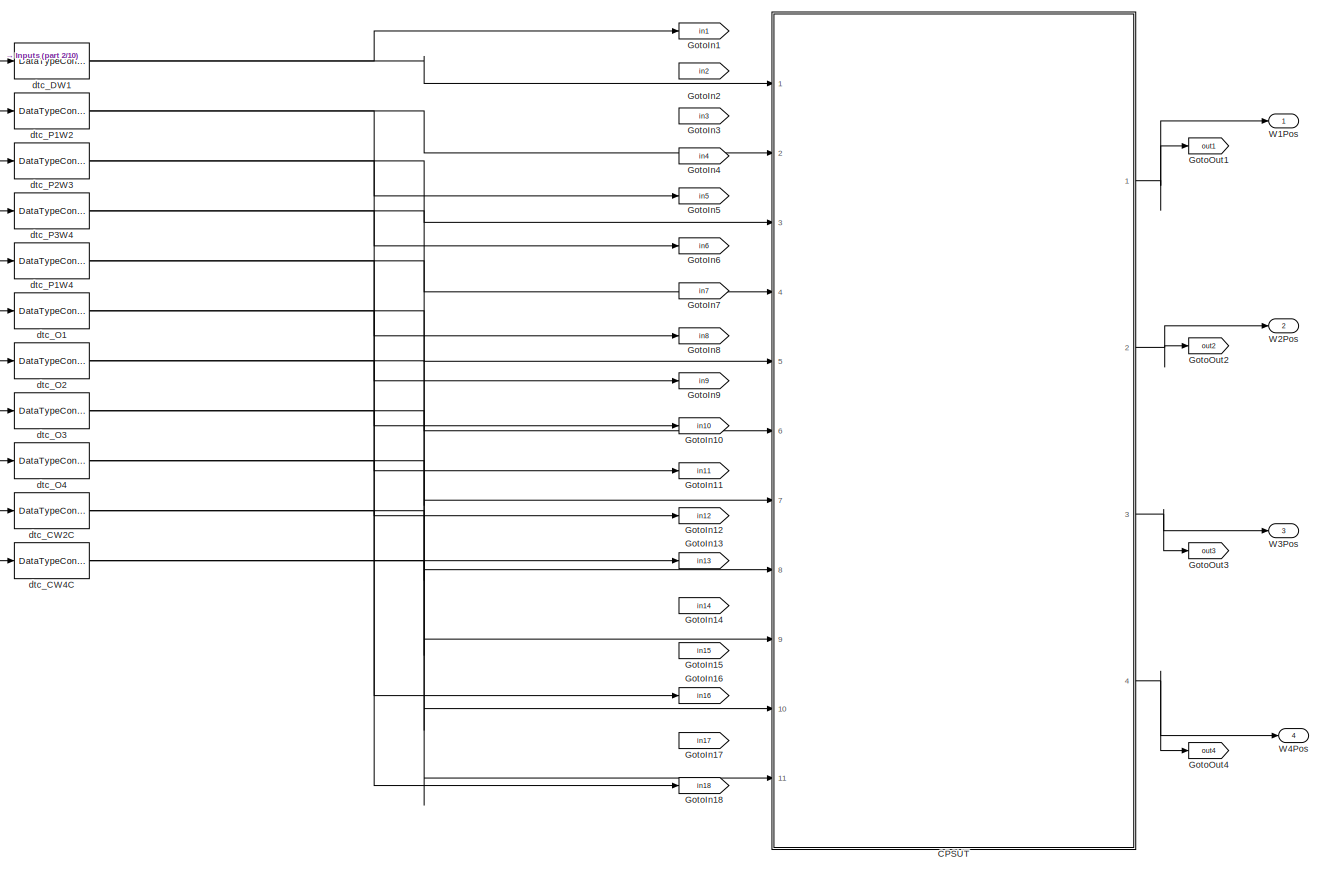
[diagram: root canvas - part 1/10, top left region]
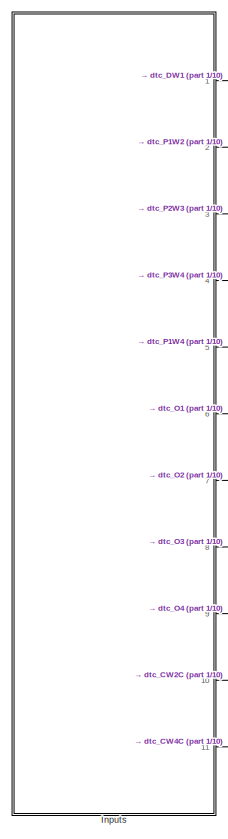
[diagram: root canvas - part 2/10, top left region]
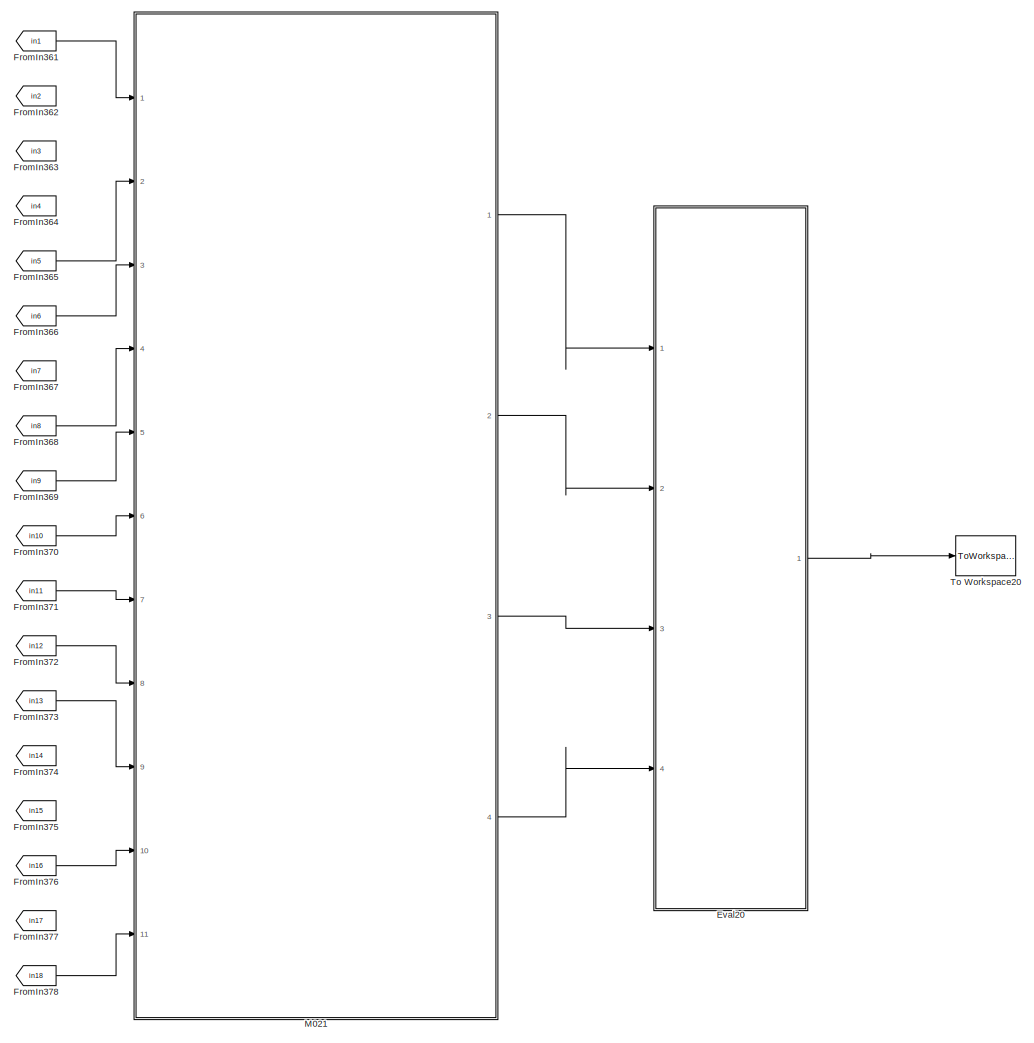
[diagram: root canvas - part 3/10, top center region]
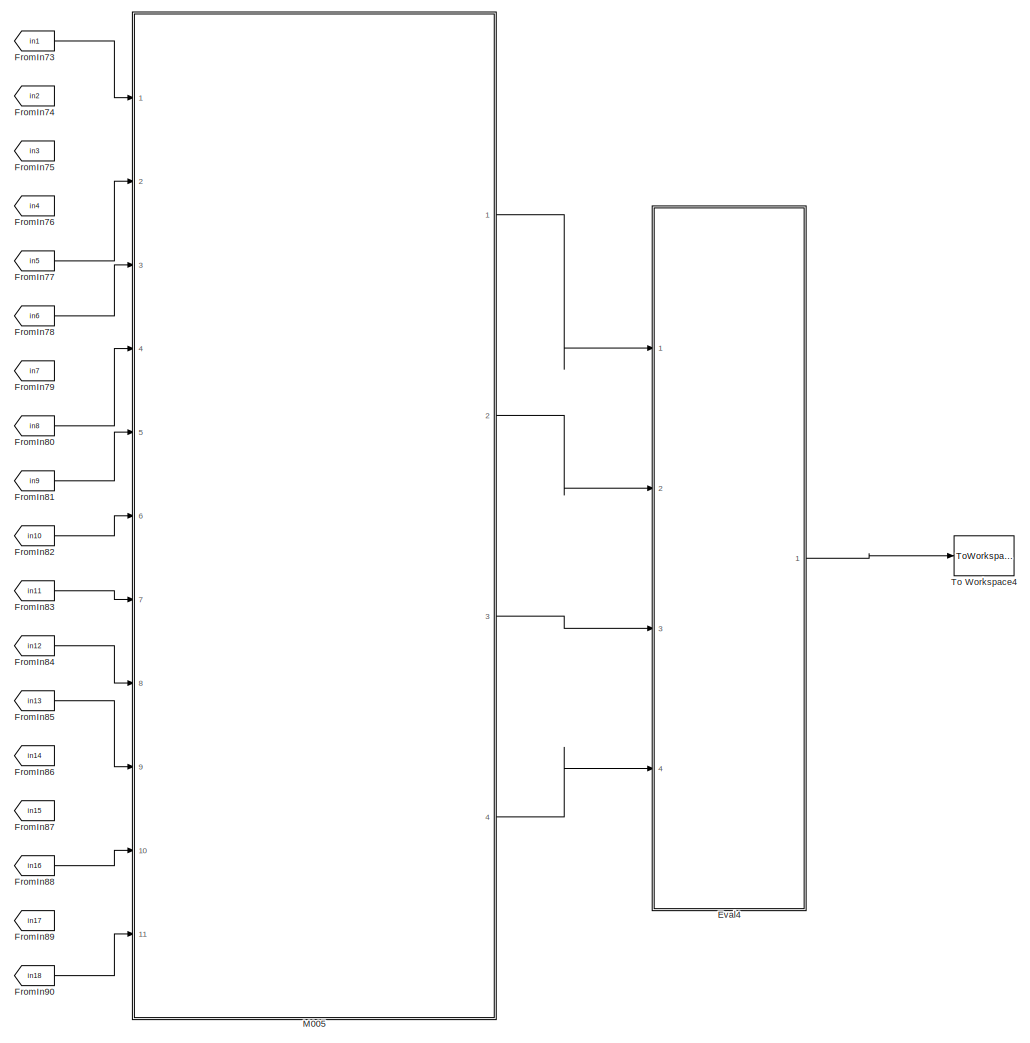
[diagram: root canvas - part 4/10, top center region]
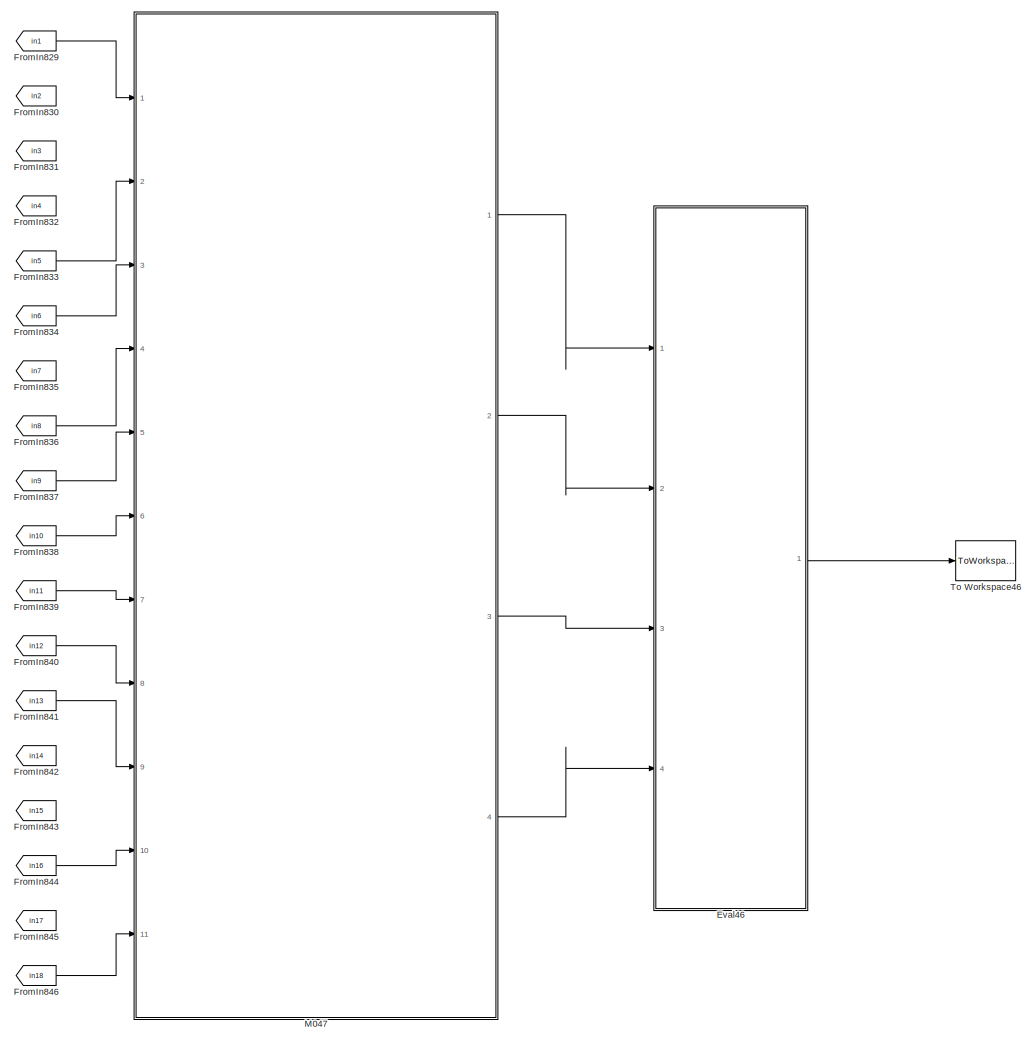
[diagram: root canvas - part 5/10, middle right region]
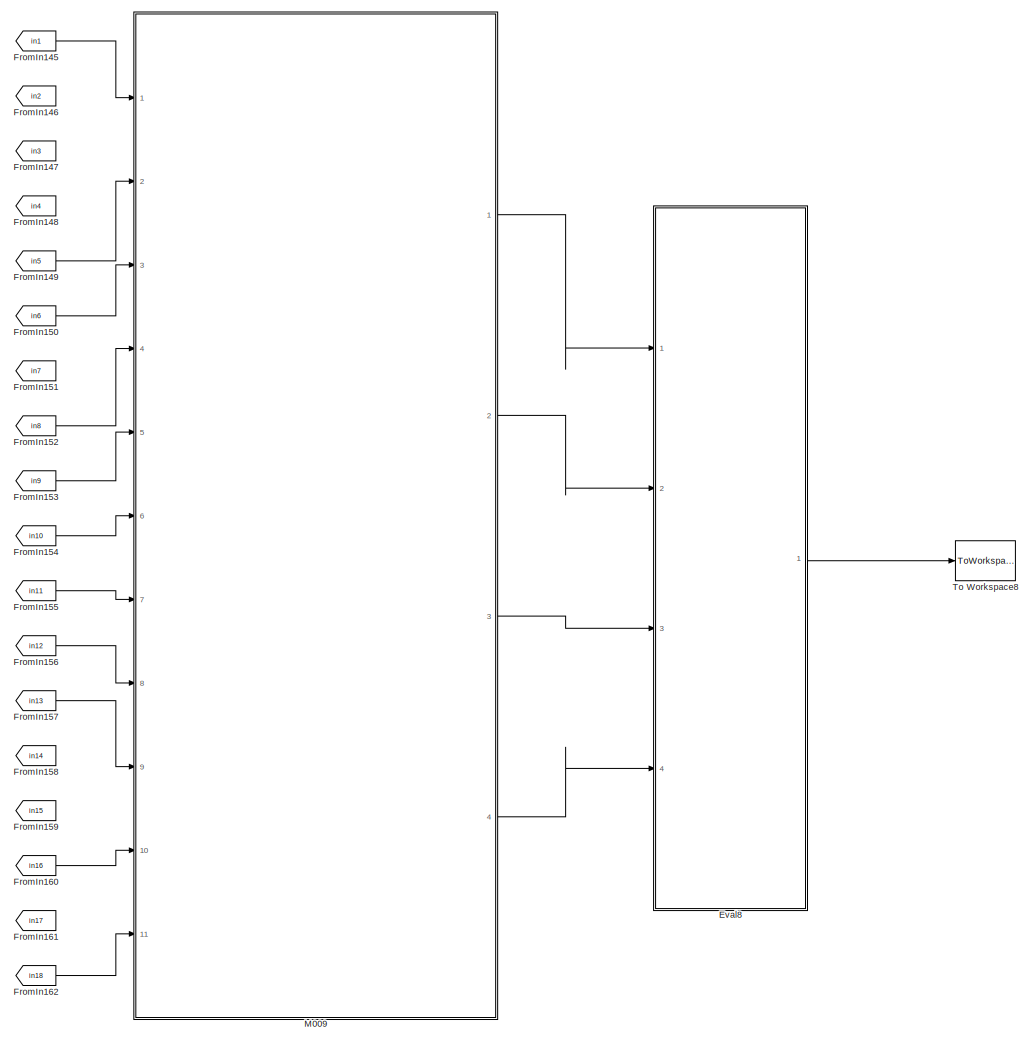
[diagram: root canvas - part 6/10, central region]
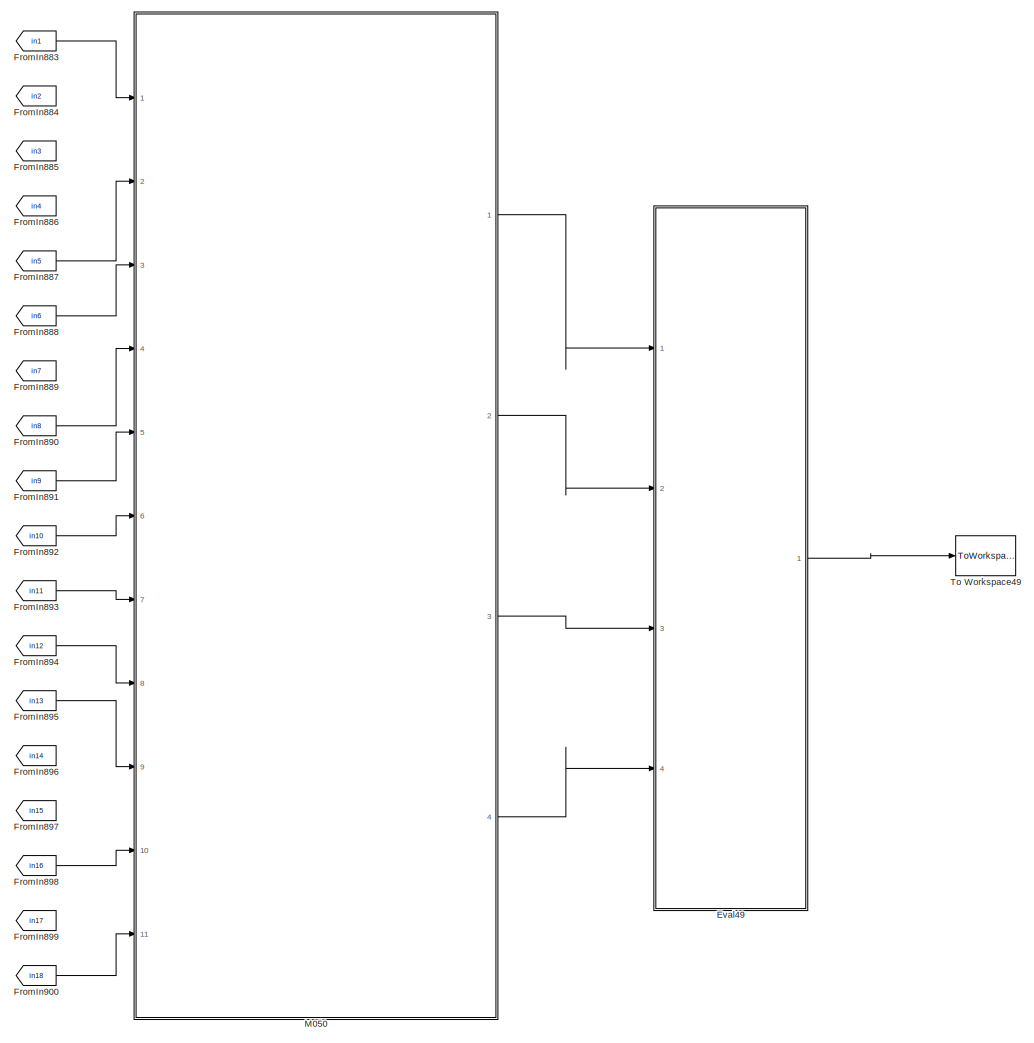
[diagram: root canvas - part 7/10, middle right region]
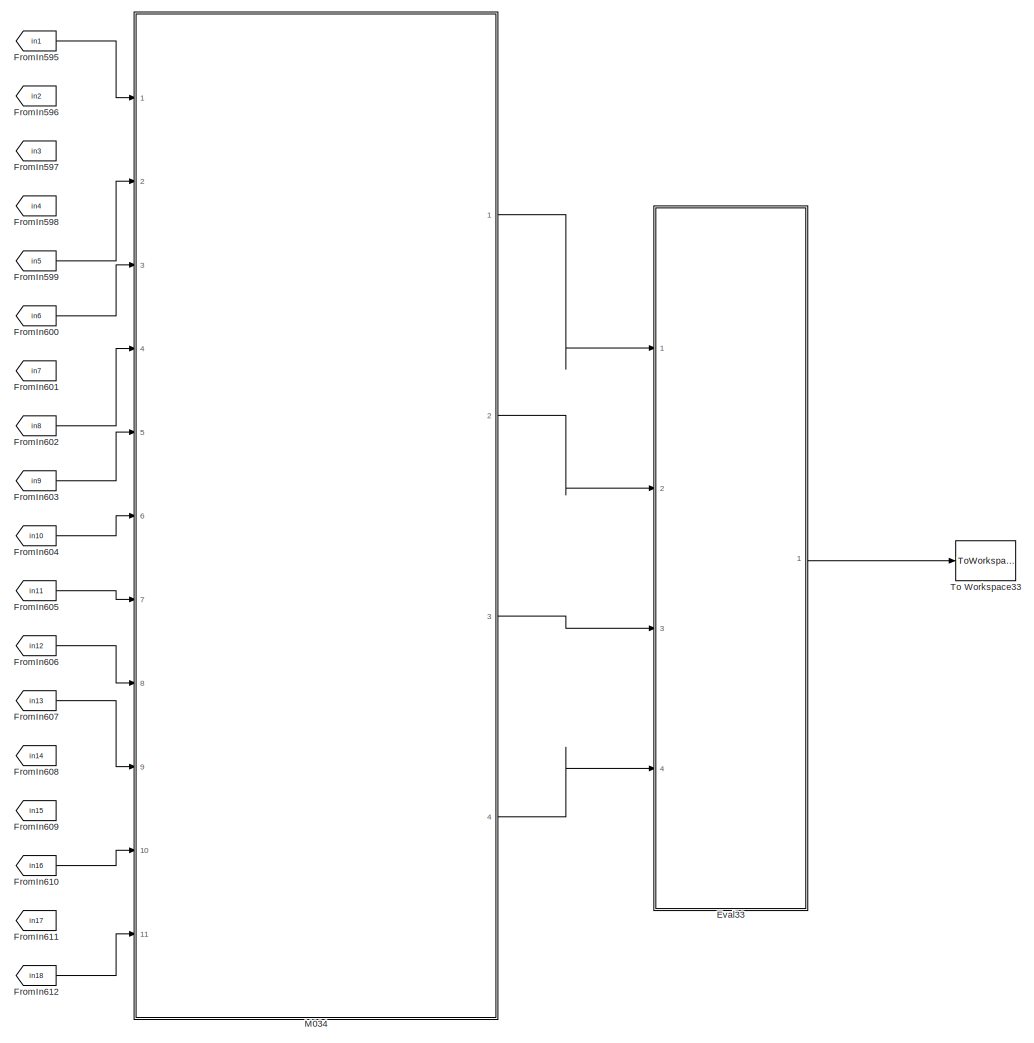
[diagram: root canvas - part 8/10, bottom center region]
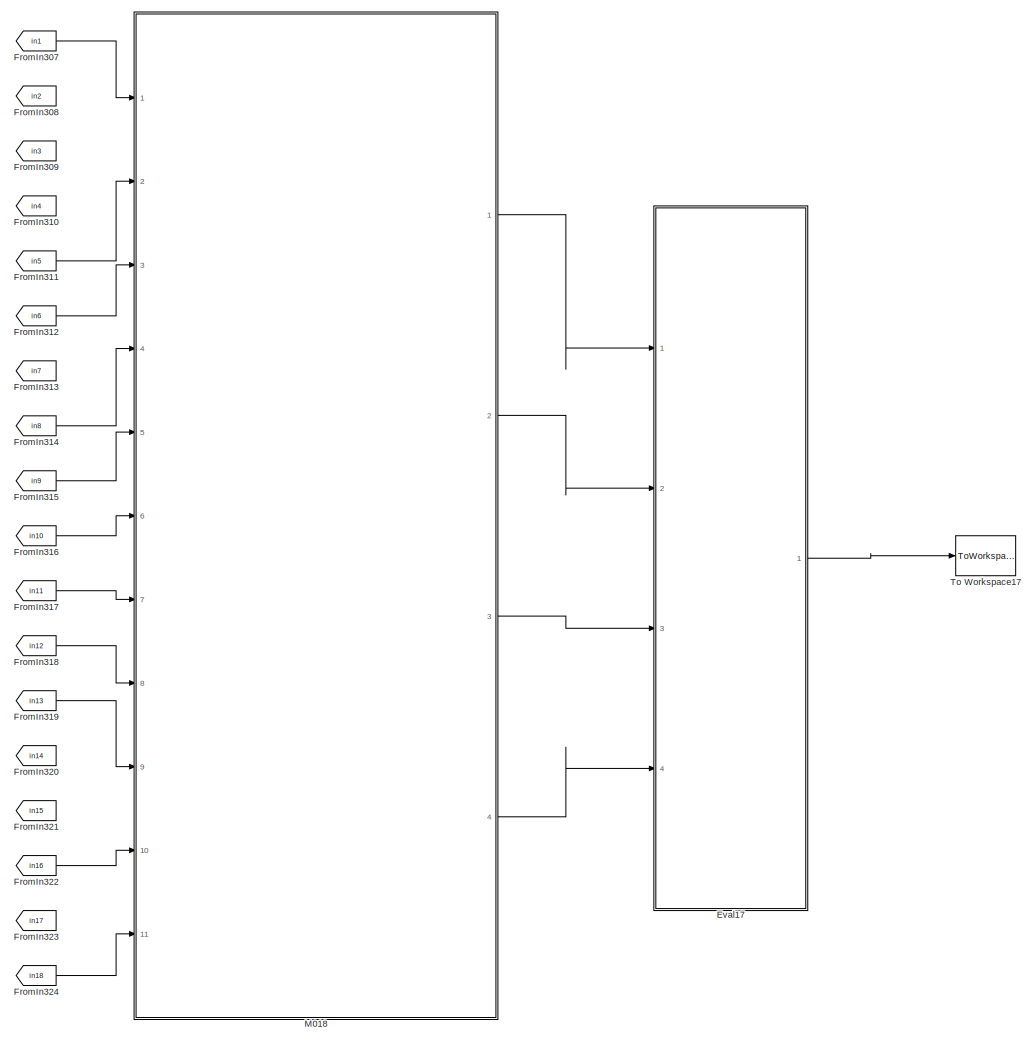
[diagram: root canvas - part 9/10, bottom center region]
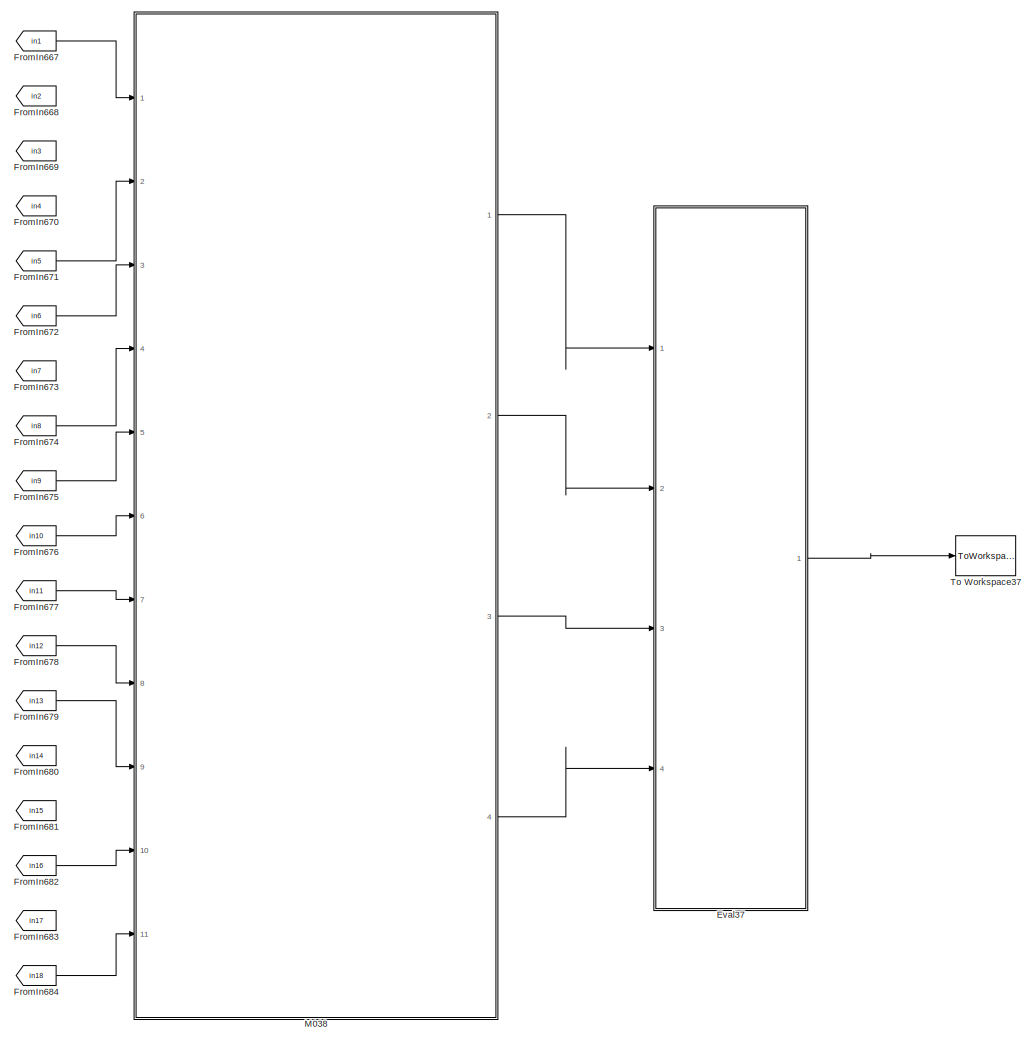
[diagram: root canvas - part 10/10, bottom center region]
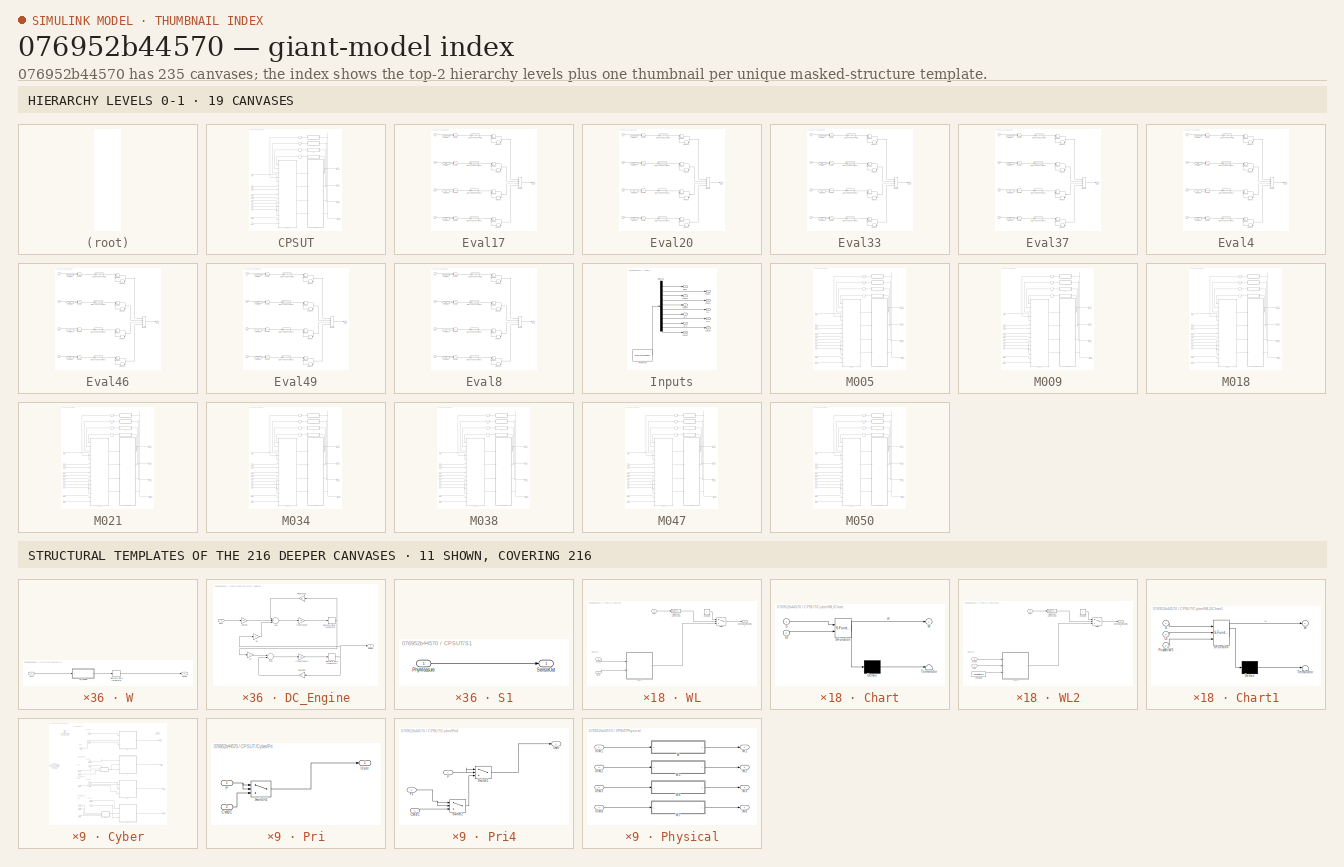
[diagram: thumbnail index - top-2 hierarchy levels (19 canvases) + 11 structural-template representatives of the remaining 216 canvases]
MODEL slx_076952b44570
KIND model
CONFIG AbsTol = auto
CONFIG EnableMultiTasking = on
CONFIG FixedStep = auto
CONFIG MaxStep = auto
CONFIG MinStep = auto
CONFIG RelTol = 1e-3
CONFIG SampleTimeConstraint = Unconstrained
CONFIG Solver = ode3
CONFIG SolverName = ode3
CONFIG StartTime = 0.0
CONFIG StopTime = 10.0
BLOCK [SubSystem] CPSUT
  Ports = [11, 4]
  RequestExecContextInheritance = off
BLOCK [Inport] CPSUT/CW2C
  IconDisplay = Port number
  OutDataTypeStr = int8
  OutMax = 4
  OutMin = 0
  Port = 10
BLOCK [Inport] CPSUT/CW4C
  IconDisplay = Port number
  OutDataTypeStr = int8
  OutMax = 4
  OutMin = 0
  Port = 11
BLOCK [SubSystem] CPSUT/Cyber
  Ports = [15, 4]
  RequestExecContextInheritance = off
BLOCK [Inport] CPSUT/Cyber/CW2C
  IconDisplay = Port number
  Port = 14
BLOCK [Inport] CPSUT/Cyber/CW4C
  IconDisplay = Port number
  Port = 15
BLOCK [Inport] CPSUT/Cyber/DW1
  IconDisplay = Port number
  Port = 5
BLOCK [Inport] CPSUT/Cyber/OW1
  IconDisplay = Port number
  Port = 10
BLOCK [Inport] CPSUT/Cyber/OW2
  IconDisplay = Port number
  Port = 11
BLOCK [Inport] CPSUT/Cyber/OW3
  IconDisplay = Port number
  Port = 12
BLOCK [Inport] CPSUT/Cyber/OW4
  IconDisplay = Port number
  Port = 13
BLOCK [Inport] CPSUT/Cyber/P1W2
  IconDisplay = Port number
  Port = 6
BLOCK [Inport] CPSUT/Cyber/P1W4
  IconDisplay = Port number
  Port = 9
BLOCK [Inport] CPSUT/Cyber/P2W3
  IconDisplay = Port number
  Port = 7
BLOCK [Inport] CPSUT/Cyber/P3W4
  IconDisplay = Port number
  Port = 8
BLOCK [Inport] CPSUT/Cyber/PosW1
  IconDisplay = Port number
BLOCK [Inport] CPSUT/Cyber/PosW2
  IconDisplay = Port number
  Port = 2
BLOCK [Inport] CPSUT/Cyber/PosW3
  IconDisplay = Port number
  Port = 3
BLOCK [Inport] CPSUT/Cyber/PosW4
  IconDisplay = Port number
  Port = 4
BLOCK [SubSystem] CPSUT/Cyber/Pri
  Ports = [2, 1]
  RequestExecContextInheritance = off
BLOCK [Inport] CPSUT/Cyber/Pri/CW2C
  IconDisplay = Port number
  Port = 2
BLOCK [Inport] CPSUT/Cyber/Pri/P
  IconDisplay = Port number
BLOCK [Switch] CPSUT/Cyber/Pri/Switch1
  Criteria = u2 ~= 0
  InputSameDT = off
  SaturateOnIntegerOverflow = off
BLOCK [Outport] CPSUT/Cyber/Pri/User
  IconDisplay = Port number
BLOCK [SubSystem] CPSUT/Cyber/Pri4
  Ports = [3, 1]
  RequestExecContextInheritance = off
BLOCK [Inport] CPSUT/Cyber/Pri4/CW4C
  IconDisplay = Port number
  Port = 3
BLOCK [Inport] CPSUT/Cyber/Pri4/P
  IconDisplay = Port number
BLOCK [Inport] CPSUT/Cyber/Pri4/P1
  IconDisplay = Port number
  Port = 2
BLOCK [Switch] CPSUT/Cyber/Pri4/Switch1
  Criteria = u2 ~= 0
  InputSameDT = off
  SaturateOnIntegerOverflow = off
BLOCK [Switch] CPSUT/Cyber/Pri4/Switch2
  Criteria = u2 ~= 0
  InputSameDT = off
  SaturateOnIntegerOverflow = off
BLOCK [Outport] CPSUT/Cyber/Pri4/User
  IconDisplay = Port number
BLOCK [Outport] CPSUT/Cyber/W1
  IconDisplay = Port number
BLOCK [Outport] CPSUT/Cyber/W2
  IconDisplay = Port number
  Port = 2
BLOCK [Outport] CPSUT/Cyber/W3
  IconDisplay = Port number
  Port = 3
BLOCK [Outport] CPSUT/Cyber/W4
  IconDisplay = Port number
  Port = 4
BLOCK [SubSystem] CPSUT/Cyber/WL
  Ports = [3, 1]
  RequestExecContextInheritance = off
BLOCK [SubSystem] CPSUT/Cyber/WL/Chart
  ErrorFcn = Stateflow.Translate.translate
  PermitHierarchicalResolution = ExplicitOnly
  Ports = [2, 1]
  RequestExecContextInheritance = off
  SFBlockType = Chart
  TreatAsAtomicUnit = on
BLOCK [Demux] CPSUT/Cyber/WL/Chart/ Demux 
  Outputs = 1
  Ports = [1, 1]
BLOCK [S-Function] CPSUT/Cyber/WL/Chart/ SFunction 
  EnableBusSupport = off
  FunctionName = sf_sfun
  PortCounts = [2 2]
  Ports = [2, 2]
  SFcnIsStateOwnerBlock = off
  SFunctionDeploymentMode = off
  Tag = Stateflow S-Function c00011M_harness 1
BLOCK [Terminator] CPSUT/Cyber/WL/Chart/ Terminator 
BLOCK [Inport] CPSUT/Cyber/WL/Chart/S
  IconDisplay = Port number
BLOCK [Inport] CPSUT/Cyber/WL/Chart/UI
  IconDisplay = Port number
  Port = 2
BLOCK [Outport] CPSUT/Cyber/WL/Chart/W
  IconDisplay = Port number
BLOCK [Constant] CPSUT/Cyber/WL/Constant
  Value = -1
BLOCK [DataTypeConversion] CPSUT/Cyber/WL/Data Type Conversion
  RndMeth = Floor
  SaturateOnIntegerOverflow = off
BLOCK [Inport] CPSUT/Cyber/WL/OW
  IconDisplay = Port number
  Port = 3
BLOCK [Switch] CPSUT/Cyber/WL/Switch
  Criteria = u2 ~= 0
  InputSameDT = off
  SaturateOnIntegerOverflow = off
  Threshold = 1
  ZeroCross = off
BLOCK [Inport] CPSUT/Cyber/WL/User
  IconDisplay = Port number
  Port = 2
BLOCK [Inport] CPSUT/Cyber/WL/WPos
  IconDisplay = Port number
BLOCK [Outport] CPSUT/Cyber/WL/WindowLogicOutput
  IconDisplay = Port number
BLOCK [SubSystem] CPSUT/Cyber/WL1
  Ports = [3, 1]
  RequestExecContextInheritance = off
BLOCK [SubSystem] CPSUT/Cyber/WL1/Chart1
  ErrorFcn = Stateflow.Translate.translate
  PermitHierarchicalResolution = ExplicitOnly
  Ports = [2, 1]
  RequestExecContextInheritance = off
  SFBlockType = Chart
  TreatAsAtomicUnit = on
BLOCK [Demux] CPSUT/Cyber/WL1/Chart1/ Demux 
  Outputs = 1
  Ports = [1, 1]
BLOCK [S-Function] CPSUT/Cyber/WL1/Chart1/ SFunction 
  EnableBusSupport = off
  FunctionName = sf_sfun
  PortCounts = [2 2]
  Ports = [2, 2]
  SFcnIsStateOwnerBlock = off
  SFunctionDeploymentMode = off
  Tag = Stateflow S-Function c00011M_harness 3
BLOCK [Terminator] CPSUT/Cyber/WL1/Chart1/ Terminator 
BLOCK [Inport] CPSUT/Cyber/WL1/Chart1/S
  IconDisplay = Port number
BLOCK [Inport] CPSUT/Cyber/WL1/Chart1/UI
  IconDisplay = Port number
  Port = 2
BLOCK [Outport] CPSUT/Cyber/WL1/Chart1/W
  IconDisplay = Port number
BLOCK [Constant] CPSUT/Cyber/WL1/Constant
  Value = -1
BLOCK [DataTypeConversion] CPSUT/Cyber/WL1/Data Type Conversion
  RndMeth = Floor
  SaturateOnIntegerOverflow = off
BLOCK [Inport] CPSUT/Cyber/WL1/OW
  IconDisplay = Port number
  Port = 3
BLOCK [Switch] CPSUT/Cyber/WL1/Switch
  Criteria = u2 ~= 0
  InputSameDT = off
  SaturateOnIntegerOverflow = off
  Threshold = 1
  ZeroCross = off
BLOCK [Inport] CPSUT/Cyber/WL1/User
  IconDisplay = Port number
  Port = 2
BLOCK [Inport] CPSUT/Cyber/WL1/WPos
  IconDisplay = Port number
BLOCK [Outport] CPSUT/Cyber/WL1/WindowLogicOutput
  IconDisplay = Port number
BLOCK [SubSystem] CPSUT/Cyber/WL2
  Ports = [3, 1]
  RequestExecContextInheritance = off
BLOCK [SubSystem] CPSUT/Cyber/WL2/Chart1
  ErrorFcn = Stateflow.Translate.translate
  PermitHierarchicalResolution = ExplicitOnly
  Ports = [3, 1]
  RequestExecContextInheritance = off
  SFBlockType = Chart
  TreatAsAtomicUnit = on
BLOCK [Demux] CPSUT/Cyber/WL2/Chart1/ Demux 
  Outputs = 1
  Ports = [1, 1]
BLOCK [S-Function] CPSUT/Cyber/WL2/Chart1/ SFunction 
  EnableBusSupport = off
  FunctionName = sf_sfun
  PortCounts = [3 2]
  Ports = [3, 2]
  SFcnIsStateOwnerBlock = off
  SFunctionDeploymentMode = off
  Tag = Stateflow S-Function c00011M_harness 2
BLOCK [Terminator] CPSUT/Cyber/WL2/Chart1/ Terminator 
BLOCK [Inport] CPSUT/Cyber/WL2/Chart1/PosMinW3
  IconDisplay = Port number
  Port = 3
BLOCK [Inport] CPSUT/Cyber/WL2/Chart1/S
  IconDisplay = Port number
BLOCK [Inport] CPSUT/Cyber/WL2/Chart1/UI
  IconDisplay = Port number
  Port = 2
BLOCK [Outport] CPSUT/Cyber/WL2/Chart1/W
  IconDisplay = Port number
BLOCK [Constant] CPSUT/Cyber/WL2/Constant
  Value = -1
BLOCK [Constant] CPSUT/Cyber/WL2/Constant2
  Value = PosMinimaW3
BLOCK [DataTypeConversion] CPSUT/Cyber/WL2/Data Type Conversion
  RndMeth = Floor
  SaturateOnIntegerOverflow = off
BLOCK [Inport] CPSUT/Cyber/WL2/OW
  IconDisplay = Port number
  Port = 3
BLOCK [Switch] CPSUT/Cyber/WL2/Switch
  Criteria = u2 ~= 0
  InputSameDT = off
  SaturateOnIntegerOverflow = off
  Threshold = 1
  ZeroCross = off
BLOCK [Inport] CPSUT/Cyber/WL2/User
  IconDisplay = Port number
  Port = 2
BLOCK [Inport] CPSUT/Cyber/WL2/WPos
  IconDisplay = Port number
BLOCK [Outport] CPSUT/Cyber/WL2/WindowLogicOutput
  IconDisplay = Port number
BLOCK [SubSystem] CPSUT/Cyber/WL3
  Ports = [3, 1]
  RequestExecContextInheritance = off
BLOCK [SubSystem] CPSUT/Cyber/WL3/Chart2
  ErrorFcn = Stateflow.Translate.translate
  PermitHierarchicalResolution = ExplicitOnly
  Ports = [3, 1]
  RequestExecContextInheritance = off
  SFBlockType = Chart
  TreatAsAtomicUnit = on
BLOCK [Demux] CPSUT/Cyber/WL3/Chart2/ Demux 
  Outputs = 1
  Ports = [1, 1]
BLOCK [S-Function] CPSUT/Cyber/WL3/Chart2/ SFunction 
  EnableBusSupport = off
  FunctionName = sf_sfun
  PortCounts = [3 2]
  Ports = [3, 2]
  SFcnIsStateOwnerBlock = off
  SFunctionDeploymentMode = off
  Tag = Stateflow S-Function c00011M_harness 4
BLOCK [Terminator] CPSUT/Cyber/WL3/Chart2/ Terminator 
BLOCK [Inport] CPSUT/Cyber/WL3/Chart2/PosMinW4
  IconDisplay = Port number
  Port = 3
BLOCK [Inport] CPSUT/Cyber/WL3/Chart2/S
  IconDisplay = Port number
BLOCK [Inport] CPSUT/Cyber/WL3/Chart2/UI
  IconDisplay = Port number
  Port = 2
BLOCK [Outport] CPSUT/Cyber/WL3/Chart2/W
  IconDisplay = Port number
BLOCK [Constant] CPSUT/Cyber/WL3/Constant
  Value = -1
BLOCK [Constant] CPSUT/Cyber/WL3/Constant2
  Value = PosMinimaW4
BLOCK [DataTypeConversion] CPSUT/Cyber/WL3/Data Type Conversion
  RndMeth = Floor
  SaturateOnIntegerOverflow = off
BLOCK [Inport] CPSUT/Cyber/WL3/OW
  IconDisplay = Port number
  Port = 3
BLOCK [Switch] CPSUT/Cyber/WL3/Switch
  Criteria = u2 ~= 0
  InputSameDT = off
  SaturateOnIntegerOverflow = off
  Threshold = 1
  ZeroCross = off
BLOCK [Inport] CPSUT/Cyber/WL3/User
  IconDisplay = Port number
  Port = 2
BLOCK [Inport] CPSUT/Cyber/WL3/WPos
  IconDisplay = Port number
BLOCK [Outport] CPSUT/Cyber/WL3/WindowLogicOutput
  IconDisplay = Port number
BLOCK [Inport] CPSUT/DW1
  IconDisplay = Port number
  OutDataTypeStr = int8
  OutMax = 4
  OutMin = 0
BLOCK [Memory] CPSUT/M
BLOCK [Memory] CPSUT/M1
BLOCK [Memory] CPSUT/M2
BLOCK [Memory] CPSUT/M3
BLOCK [Inport] CPSUT/O1
  IconDisplay = Port number
  OutDataTypeStr = boolean
  Port = 6
BLOCK [Inport] CPSUT/O2
  IconDisplay = Port number
  OutDataTypeStr = boolean
  Port = 7
BLOCK [Inport] CPSUT/O3
  IconDisplay = Port number
  OutDataTypeStr = boolean
  Port = 8
BLOCK [Inport] CPSUT/O4
  IconDisplay = Port number
  OutDataTypeStr = boolean
  Port = 9
BLOCK [Inport] CPSUT/P1W2
  IconDisplay = Port number
  OutDataTypeStr = int8
  OutMax = 4
  OutMin = 0
  Port = 2
BLOCK [Inport] CPSUT/P1W4
  IconDisplay = Port number
  OutDataTypeStr = int8
  OutMax = 4
  OutMin = 0
  Port = 5
BLOCK [Inport] CPSUT/P2W3
  IconDisplay = Port number
  OutDataTypeStr = int8
  OutMax = 4
  OutMin = 0
  Port = 3
BLOCK [Inport] CPSUT/P3W4
  IconDisplay = Port number
  OutDataTypeStr = int8
  OutMax = 4
  OutMin = 0
  Port = 4
BLOCK [SubSystem] CPSUT/Physical
  Ports = [4, 4]
  RequestExecContextInheritance = off
BLOCK [Inport] CPSUT/Physical/InW1
  IconDisplay = Port number
BLOCK [Inport] CPSUT/Physical/InW2
  IconDisplay = Port number
  Port = 2
BLOCK [Inport] CPSUT/Physical/InW3
  IconDisplay = Port number
  Port = 3
BLOCK [Inport] CPSUT/Physical/InW4
  IconDisplay = Port number
  Port = 4
BLOCK [SubSystem] CPSUT/Physical/W
  Ports = [1, 1]
  RequestExecContextInheritance = off
BLOCK [SubSystem] CPSUT/Physical/W/DC_Engine
  Ports = [1, 1]
  RequestExecContextInheritance = off
BLOCK [Gain] CPSUT/Physical/W/DC_Engine/(Inductance)
  Gain = 1/L
  OutDataTypeStr = Inherit: Inherit via internal rule
  ParamDataTypeStr = Inherit: Inherit via internal rule
  SaturateOnIntegerOverflow = off
BLOCK [Gain] CPSUT/Physical/W/DC_Engine/(Inductance)1
  Gain = 1/J
  OutDataTypeStr = Inherit: Inherit via internal rule
  ParamDataTypeStr = Inherit: Inherit via internal rule
  SaturateOnIntegerOverflow = off
BLOCK [Sum] CPSUT/Physical/W/DC_Engine/Add
  InputSameDT = off
  Inputs = -+-
  OutDataTypeStr = Inherit: Inherit via internal rule
  Ports = [3, 1]
  SaturateOnIntegerOverflow = off
BLOCK [Sum] CPSUT/Physical/W/DC_Engine/Add1
  InputSameDT = off
  Inputs = +-
  OutDataTypeStr = Inherit: Inherit via internal rule
  Ports = [2, 1]
  SaturateOnIntegerOverflow = off
BLOCK [Gain] CPSUT/Physical/W/DC_Engine/Damping
  Gain = b
  OutDataTypeStr = Inherit: Inherit via internal rule
  ParamDataTypeStr = Inherit: Inherit via internal rule
  SaturateOnIntegerOverflow = off
BLOCK [DiscreteIntegrator] CPSUT/Physical/W/DC_Engine/Discrete-Time Integrator
  ICPrevOutput = DiscIntNeverNeededParam
  ICPrevScaledInput = DiscIntNeverNeededParam
  Ports = [1, 1]
  SampleTime = -1
BLOCK [DiscreteIntegrator] CPSUT/Physical/W/DC_Engine/Discrete-Time Integrator1
  ICPrevOutput = DiscIntNeverNeededParam
  ICPrevScaledInput = DiscIntNeverNeededParam
  Ports = [1, 1]
  SampleTime = -1
BLOCK [Gain] CPSUT/Physical/W/DC_Engine/Ke
  Gain = K
  OutDataTypeStr = Inherit: Inherit via internal rule
  ParamDataTypeStr = Inherit: Inherit via internal rule
  SaturateOnIntegerOverflow = off
BLOCK [Gain] CPSUT/Physical/W/DC_Engine/Kt
  Gain = K
  OutDataTypeStr = Inherit: Inherit via internal rule
  ParamDataTypeStr = Inherit: Inherit via internal rule
  SaturateOnIntegerOverflow = off
BLOCK [Gain] CPSUT/Physical/W/DC_Engine/Resistance
  Gain = R
  OutDataTypeStr = Inherit: Inherit via internal rule
  ParamDataTypeStr = Inherit: Inherit via internal rule
  SaturateOnIntegerOverflow = off
BLOCK [Outport] CPSUT/Physical/W/DC_Engine/Speed
  IconDisplay = Port number
BLOCK [Gain] CPSUT/Physical/W/DC_Engine/Voltage
  Gain = 10
  OutDataTypeStr = Inherit: Inherit via internal rule
  ParamDataTypeStr = Inherit: Inherit via internal rule
  SaturateOnIntegerOverflow = off
BLOCK [Inport] CPSUT/Physical/W/DC_Engine/input
  IconDisplay = Port number
BLOCK [DiscreteIntegrator] CPSUT/Physical/W/Discrete-Time Integrator
  ICPrevOutput = DiscIntNeverNeededParam
  ICPrevScaledInput = DiscIntNeverNeededParam
  InitialCondition = 5
  LimitOutput = on
  LowerSaturationLimit = 0
  Ports = [1, 1]
  SampleTime = -1
  UpperSaturationLimit = 5
BLOCK [Inport] CPSUT/Physical/W/WIn
  IconDisplay = Port number
BLOCK [Outport] CPSUT/Physical/W/WPos
  IconDisplay = Port number
BLOCK [Outport] CPSUT/Physical/W1
  IconDisplay = Port number
BLOCK [Outport] CPSUT/Physical/W2
  IconDisplay = Port number
  Port = 2
BLOCK [Outport] CPSUT/Physical/W3
  IconDisplay = Port number
  Port = 3
BLOCK [Outport] CPSUT/Physical/W4
  IconDisplay = Port number
  Port = 4
BLOCK [SubSystem] CPSUT/Physical/W5
  Ports = [1, 1]
  RequestExecContextInheritance = off
BLOCK [SubSystem] CPSUT/Physical/W5/DC_Engine
  Ports = [1, 1]
  RequestExecContextInheritance = off
BLOCK [Gain] CPSUT/Physical/W5/DC_Engine/(Inductance)
  Gain = 1/L
  OutDataTypeStr = Inherit: Inherit via internal rule
  ParamDataTypeStr = Inherit: Inherit via internal rule
  SaturateOnIntegerOverflow = off
BLOCK [Gain] CPSUT/Physical/W5/DC_Engine/(Inductance)1
  Gain = 1/J
  OutDataTypeStr = Inherit: Inherit via internal rule
  ParamDataTypeStr = Inherit: Inherit via internal rule
  SaturateOnIntegerOverflow = off
BLOCK [Sum] CPSUT/Physical/W5/DC_Engine/Add
  InputSameDT = off
  Inputs = -+-
  OutDataTypeStr = Inherit: Inherit via internal rule
  Ports = [3, 1]
  SaturateOnIntegerOverflow = off
BLOCK [Sum] CPSUT/Physical/W5/DC_Engine/Add1
  InputSameDT = off
  Inputs = +-
  OutDataTypeStr = Inherit: Inherit via internal rule
  Ports = [2, 1]
  SaturateOnIntegerOverflow = off
BLOCK [Gain] CPSUT/Physical/W5/DC_Engine/Damping
  Gain = b
  OutDataTypeStr = Inherit: Inherit via internal rule
  ParamDataTypeStr = Inherit: Inherit via internal rule
  SaturateOnIntegerOverflow = off
BLOCK [DiscreteIntegrator] CPSUT/Physical/W5/DC_Engine/Discrete-Time Integrator
  ICPrevOutput = DiscIntNeverNeededParam
  ICPrevScaledInput = DiscIntNeverNeededParam
  Ports = [1, 1]
  SampleTime = -1
BLOCK [DiscreteIntegrator] CPSUT/Physical/W5/DC_Engine/Discrete-Time Integrator1
  ICPrevOutput = DiscIntNeverNeededParam
  ICPrevScaledInput = DiscIntNeverNeededParam
  Ports = [1, 1]
  SampleTime = -1
BLOCK [Gain] CPSUT/Physical/W5/DC_Engine/Ke
  Gain = K
  OutDataTypeStr = Inherit: Inherit via internal rule
  ParamDataTypeStr = Inherit: Inherit via internal rule
  SaturateOnIntegerOverflow = off
BLOCK [Gain] CPSUT/Physical/W5/DC_Engine/Kt
  Gain = K
  OutDataTypeStr = Inherit: Inherit via internal rule
  ParamDataTypeStr = Inherit: Inherit via internal rule
  SaturateOnIntegerOverflow = off
BLOCK [Gain] CPSUT/Physical/W5/DC_Engine/Resistance
  Gain = R
  OutDataTypeStr = Inherit: Inherit via internal rule
  ParamDataTypeStr = Inherit: Inherit via internal rule
  SaturateOnIntegerOverflow = off
BLOCK [Outport] CPSUT/Physical/W5/DC_Engine/Speed
  IconDisplay = Port number
BLOCK [Gain] CPSUT/Physical/W5/DC_Engine/Voltage
  Gain = 10
  OutDataTypeStr = Inherit: Inherit via internal rule
  ParamDataTypeStr = Inherit: Inherit via internal rule
  SaturateOnIntegerOverflow = off
BLOCK [Inport] CPSUT/Physical/W5/DC_Engine/input
  IconDisplay = Port number
BLOCK [DiscreteIntegrator] CPSUT/Physical/W5/Discrete-Time Integrator
  ICPrevOutput = DiscIntNeverNeededParam
  ICPrevScaledInput = DiscIntNeverNeededParam
  InitialCondition = 5
  LimitOutput = on
  LowerSaturationLimit = 0
  Ports = [1, 1]
  SampleTime = -1
  UpperSaturationLimit = 5
BLOCK [Inport] CPSUT/Physical/W5/WIn
  IconDisplay = Port number
BLOCK [Outport] CPSUT/Physical/W5/WPos
  IconDisplay = Port number
BLOCK [SubSystem] CPSUT/Physical/W6
  Ports = [1, 1]
  RequestExecContextInheritance = off
BLOCK [SubSystem] CPSUT/Physical/W6/DC_Engine
  Ports = [1, 1]
  RequestExecContextInheritance = off
BLOCK [Gain] CPSUT/Physical/W6/DC_Engine/(Inductance)
  Gain = 1/L
  OutDataTypeStr = Inherit: Inherit via internal rule
  ParamDataTypeStr = Inherit: Inherit via internal rule
  SaturateOnIntegerOverflow = off
BLOCK [Gain] CPSUT/Physical/W6/DC_Engine/(Inductance)1
  Gain = 1/J
  OutDataTypeStr = Inherit: Inherit via internal rule
  ParamDataTypeStr = Inherit: Inherit via internal rule
  SaturateOnIntegerOverflow = off
BLOCK [Sum] CPSUT/Physical/W6/DC_Engine/Add
  InputSameDT = off
  Inputs = -+-
  OutDataTypeStr = Inherit: Inherit via internal rule
  Ports = [3, 1]
  SaturateOnIntegerOverflow = off
BLOCK [Sum] CPSUT/Physical/W6/DC_Engine/Add1
  InputSameDT = off
  Inputs = +-
  OutDataTypeStr = Inherit: Inherit via internal rule
  Ports = [2, 1]
  SaturateOnIntegerOverflow = off
BLOCK [Gain] CPSUT/Physical/W6/DC_Engine/Damping
  Gain = b
  OutDataTypeStr = Inherit: Inherit via internal rule
  ParamDataTypeStr = Inherit: Inherit via internal rule
  SaturateOnIntegerOverflow = off
BLOCK [DiscreteIntegrator] CPSUT/Physical/W6/DC_Engine/Discrete-Time Integrator
  ICPrevOutput = DiscIntNeverNeededParam
  ICPrevScaledInput = DiscIntNeverNeededParam
  Ports = [1, 1]
  SampleTime = -1
BLOCK [DiscreteIntegrator] CPSUT/Physical/W6/DC_Engine/Discrete-Time Integrator1
  ICPrevOutput = DiscIntNeverNeededParam
  ICPrevScaledInput = DiscIntNeverNeededParam
  Ports = [1, 1]
  SampleTime = -1
BLOCK [Gain] CPSUT/Physical/W6/DC_Engine/Ke
  Gain = K
  OutDataTypeStr = Inherit: Inherit via internal rule
  ParamDataTypeStr = Inherit: Inherit via internal rule
  SaturateOnIntegerOverflow = off
BLOCK [Gain] CPSUT/Physical/W6/DC_Engine/Kt
  Gain = K
  OutDataTypeStr = Inherit: Inherit via internal rule
  ParamDataTypeStr = Inherit: Inherit via internal rule
  SaturateOnIntegerOverflow = off
BLOCK [Gain] CPSUT/Physical/W6/DC_Engine/Resistance
  Gain = R
  OutDataTypeStr = Inherit: Inherit via internal rule
  ParamDataTypeStr = Inherit: Inherit via internal rule
  SaturateOnIntegerOverflow = off
BLOCK [Outport] CPSUT/Physical/W6/DC_Engine/Speed
  IconDisplay = Port number
BLOCK [Gain] CPSUT/Physical/W6/DC_Engine/Voltage
  Gain = 10
  OutDataTypeStr = Inherit: Inherit via internal rule
  ParamDataTypeStr = Inherit: Inherit via internal rule
  SaturateOnIntegerOverflow = off
BLOCK [Inport] CPSUT/Physical/W6/DC_Engine/input
  IconDisplay = Port number
BLOCK [DiscreteIntegrator] CPSUT/Physical/W6/Discrete-Time Integrator
  ICPrevOutput = DiscIntNeverNeededParam
  ICPrevScaledInput = DiscIntNeverNeededParam
  InitialCondition = 5
  LimitOutput = on
  LowerSaturationLimit = PosMinimaW3
  Ports = [1, 1]
  SampleTime = -1
  UpperSaturationLimit = 5
BLOCK [Inport] CPSUT/Physical/W6/WIn
  IconDisplay = Port number
BLOCK [Outport] CPSUT/Physical/W6/WPos
  IconDisplay = Port number
BLOCK [SubSystem] CPSUT/Physical/W7
  Ports = [1, 1]
  RequestExecContextInheritance = off
BLOCK [SubSystem] CPSUT/Physical/W7/DC_Engine
  Ports = [1, 1]
  RequestExecContextInheritance = off
BLOCK [Gain] CPSUT/Physical/W7/DC_Engine/(Inductance)
  Gain = 1/L
  OutDataTypeStr = Inherit: Inherit via internal rule
  ParamDataTypeStr = Inherit: Inherit via internal rule
  SaturateOnIntegerOverflow = off
BLOCK [Gain] CPSUT/Physical/W7/DC_Engine/(Inductance)1
  Gain = 1/J
  OutDataTypeStr = Inherit: Inherit via internal rule
  ParamDataTypeStr = Inherit: Inherit via internal rule
  SaturateOnIntegerOverflow = off
BLOCK [Sum] CPSUT/Physical/W7/DC_Engine/Add
  InputSameDT = off
  Inputs = -+-
  OutDataTypeStr = Inherit: Inherit via internal rule
  Ports = [3, 1]
  SaturateOnIntegerOverflow = off
BLOCK [Sum] CPSUT/Physical/W7/DC_Engine/Add1
  InputSameDT = off
  Inputs = +-
  OutDataTypeStr = Inherit: Inherit via internal rule
  Ports = [2, 1]
  SaturateOnIntegerOverflow = off
BLOCK [Gain] CPSUT/Physical/W7/DC_Engine/Damping
  Gain = b
  OutDataTypeStr = Inherit: Inherit via internal rule
  ParamDataTypeStr = Inherit: Inherit via internal rule
  SaturateOnIntegerOverflow = off
BLOCK [DiscreteIntegrator] CPSUT/Physical/W7/DC_Engine/Discrete-Time Integrator
  ICPrevOutput = DiscIntNeverNeededParam
  ICPrevScaledInput = DiscIntNeverNeededParam
  Ports = [1, 1]
  SampleTime = -1
BLOCK [DiscreteIntegrator] CPSUT/Physical/W7/DC_Engine/Discrete-Time Integrator1
  ICPrevOutput = DiscIntNeverNeededParam
  ICPrevScaledInput = DiscIntNeverNeededParam
  Ports = [1, 1]
  SampleTime = -1
BLOCK [Gain] CPSUT/Physical/W7/DC_Engine/Ke
  Gain = K
  OutDataTypeStr = Inherit: Inherit via internal rule
  ParamDataTypeStr = Inherit: Inherit via internal rule
  SaturateOnIntegerOverflow = off
BLOCK [Gain] CPSUT/Physical/W7/DC_Engine/Kt
  Gain = K
  OutDataTypeStr = Inherit: Inherit via internal rule
  ParamDataTypeStr = Inherit: Inherit via internal rule
  SaturateOnIntegerOverflow = off
BLOCK [Gain] CPSUT/Physical/W7/DC_Engine/Resistance
  Gain = R
  OutDataTypeStr = Inherit: Inherit via internal rule
  ParamDataTypeStr = Inherit: Inherit via internal rule
  SaturateOnIntegerOverflow = off
BLOCK [Outport] CPSUT/Physical/W7/DC_Engine/Speed
  IconDisplay = Port number
BLOCK [Gain] CPSUT/Physical/W7/DC_Engine/Voltage
  Gain = 10
  OutDataTypeStr = Inherit: Inherit via internal rule
  ParamDataTypeStr = Inherit: Inherit via internal rule
  SaturateOnIntegerOverflow = off
BLOCK [Inport] CPSUT/Physical/W7/DC_Engine/input
  IconDisplay = Port number
BLOCK [DiscreteIntegrator] CPSUT/Physical/W7/Discrete-Time Integrator
  ICPrevOutput = DiscIntNeverNeededParam
  ICPrevScaledInput = DiscIntNeverNeededParam
  InitialCondition = 5
  LimitOutput = on
  LowerSaturationLimit = PosMinimaW4
  Ports = [1, 1]
  SampleTime = -1
  UpperSaturationLimit = 5
BLOCK [Inport] CPSUT/Physical/W7/WIn
  IconDisplay = Port number
BLOCK [Outport] CPSUT/Physical/W7/WPos
  IconDisplay = Port number
BLOCK [SubSystem] CPSUT/S1
  Ports = [1, 1]
  RequestExecContextInheritance = off
BLOCK [Inport] CPSUT/S1/PhyMeasure
  IconDisplay = Port number
BLOCK [Outport] CPSUT/S1/SensorOut
  IconDisplay = Port number
BLOCK [SubSystem] CPSUT/S2
  Ports = [1, 1]
  RequestExecContextInheritance = off
BLOCK [Inport] CPSUT/S2/PhyMeasure
  IconDisplay = Port number
BLOCK [Outport] CPSUT/S2/SensorOut
  IconDisplay = Port number
BLOCK [SubSystem] CPSUT/S3
  Ports = [1, 1]
  RequestExecContextInheritance = off
BLOCK [Inport] CPSUT/S3/PhyMeasure
  IconDisplay = Port number
BLOCK [Outport] CPSUT/S3/SensorOut
  IconDisplay = Port number
BLOCK [SubSystem] CPSUT/S4
  Ports = [1, 1]
  RequestExecContextInheritance = off
BLOCK [Inport] CPSUT/S4/PhyMeasure
  IconDisplay = Port number
BLOCK [Outport] CPSUT/S4/SensorOut
  IconDisplay = Port number
BLOCK [Outport] CPSUT/W1Pos
  IconDisplay = Port number
BLOCK [Outport] CPSUT/W2Pos
  IconDisplay = Port number
  Port = 2
BLOCK [Outport] CPSUT/W3Pos
  IconDisplay = Port number
  Port = 3
BLOCK [Outport] CPSUT/W4Pos
  IconDisplay = Port number
  Port = 4
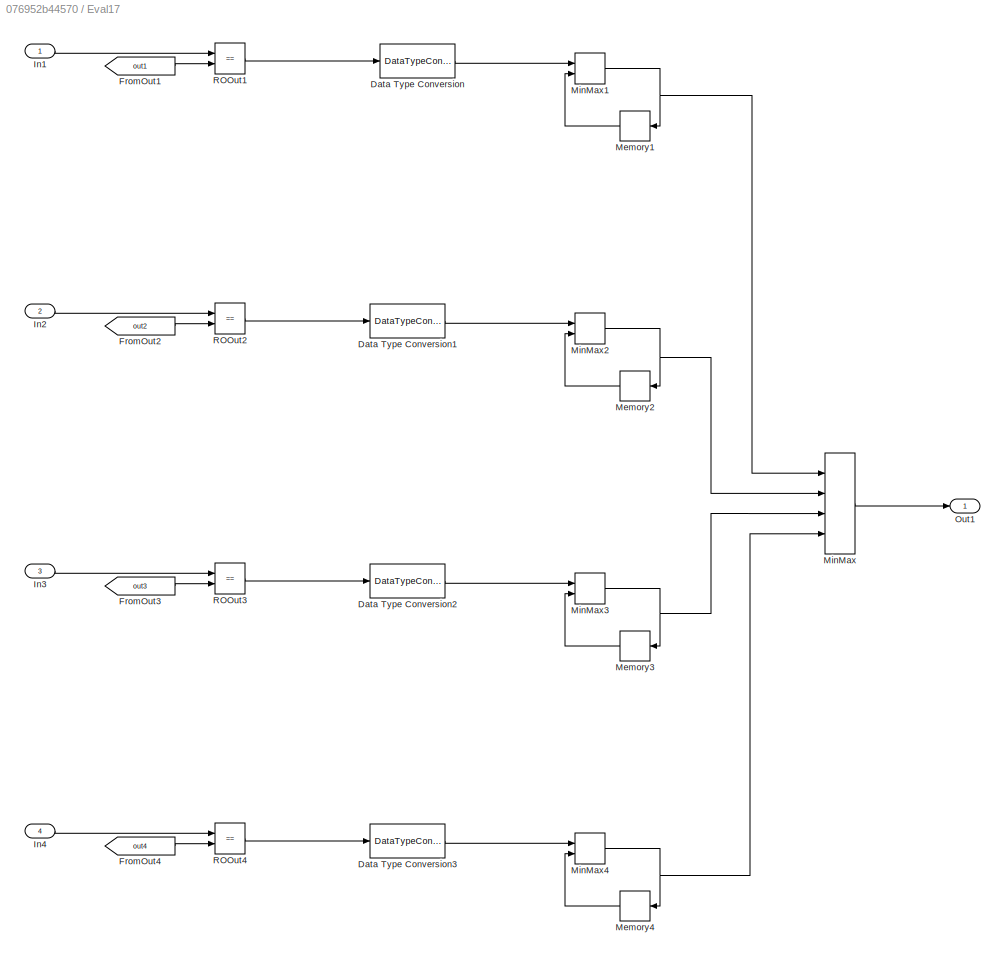
BLOCK [SubSystem] Eval17
  Ports = [4, 1]
  RequestExecContextInheritance = off
BLOCK [DataTypeConversion] Eval17/Data Type Conversion
  RndMeth = Floor
  SaturateOnIntegerOverflow = off
BLOCK [DataTypeConversion] Eval17/Data Type Conversion1
  RndMeth = Floor
  SaturateOnIntegerOverflow = off
BLOCK [DataTypeConversion] Eval17/Data Type Conversion2
  RndMeth = Floor
  SaturateOnIntegerOverflow = off
BLOCK [DataTypeConversion] Eval17/Data Type Conversion3
  RndMeth = Floor
  SaturateOnIntegerOverflow = off
BLOCK [From] Eval17/FromOut1
  GotoTag = out1
BLOCK [From] Eval17/FromOut2
  GotoTag = out2
BLOCK [From] Eval17/FromOut3
  GotoTag = out3
BLOCK [From] Eval17/FromOut4
  GotoTag = out4
BLOCK [Inport] Eval17/In1
  IconDisplay = Port number
BLOCK [Inport] Eval17/In2
  IconDisplay = Port number
  Port = 2
BLOCK [Inport] Eval17/In3
  IconDisplay = Port number
  Port = 3
BLOCK [Inport] Eval17/In4
  IconDisplay = Port number
  Port = 4
BLOCK [Memory] Eval17/Memory1
  InitialCondition = 1
BLOCK [Memory] Eval17/Memory2
  InitialCondition = 1
BLOCK [Memory] Eval17/Memory3
  InitialCondition = 1
BLOCK [Memory] Eval17/Memory4
  InitialCondition = 1
BLOCK [MinMax] Eval17/MinMax
  InputSameDT = off
  Inputs = 4
  Ports = [4, 1]
  SaturateOnIntegerOverflow = off
BLOCK [MinMax] Eval17/MinMax1
  InputSameDT = off
  Inputs = 2
  Ports = [2, 1]
  SaturateOnIntegerOverflow = off
BLOCK [MinMax] Eval17/MinMax2
  InputSameDT = off
  Inputs = 2
  Ports = [2, 1]
  SaturateOnIntegerOverflow = off
BLOCK [MinMax] Eval17/MinMax3
  InputSameDT = off
  Inputs = 2
  Ports = [2, 1]
  SaturateOnIntegerOverflow = off
BLOCK [MinMax] Eval17/MinMax4
  InputSameDT = off
  Inputs = 2
  Ports = [2, 1]
  SaturateOnIntegerOverflow = off
BLOCK [Outport] Eval17/Out1
  IconDisplay = Port number
BLOCK [RelationalOperator] Eval17/ROOut1
  InputSameDT = off
  Operator = ==
  OutDataTypeStr = boolean
  Ports = [2, 1]
  RndMeth = Simplest
BLOCK [RelationalOperator] Eval17/ROOut2
  InputSameDT = off
  Operator = ==
  OutDataTypeStr = boolean
  Ports = [2, 1]
  RndMeth = Simplest
BLOCK [RelationalOperator] Eval17/ROOut3
  InputSameDT = off
  Operator = ==
  OutDataTypeStr = boolean
  Ports = [2, 1]
  RndMeth = Simplest
BLOCK [RelationalOperator] Eval17/ROOut4
  InputSameDT = off
  Operator = ==
  OutDataTypeStr = boolean
  Ports = [2, 1]
  RndMeth = Simplest
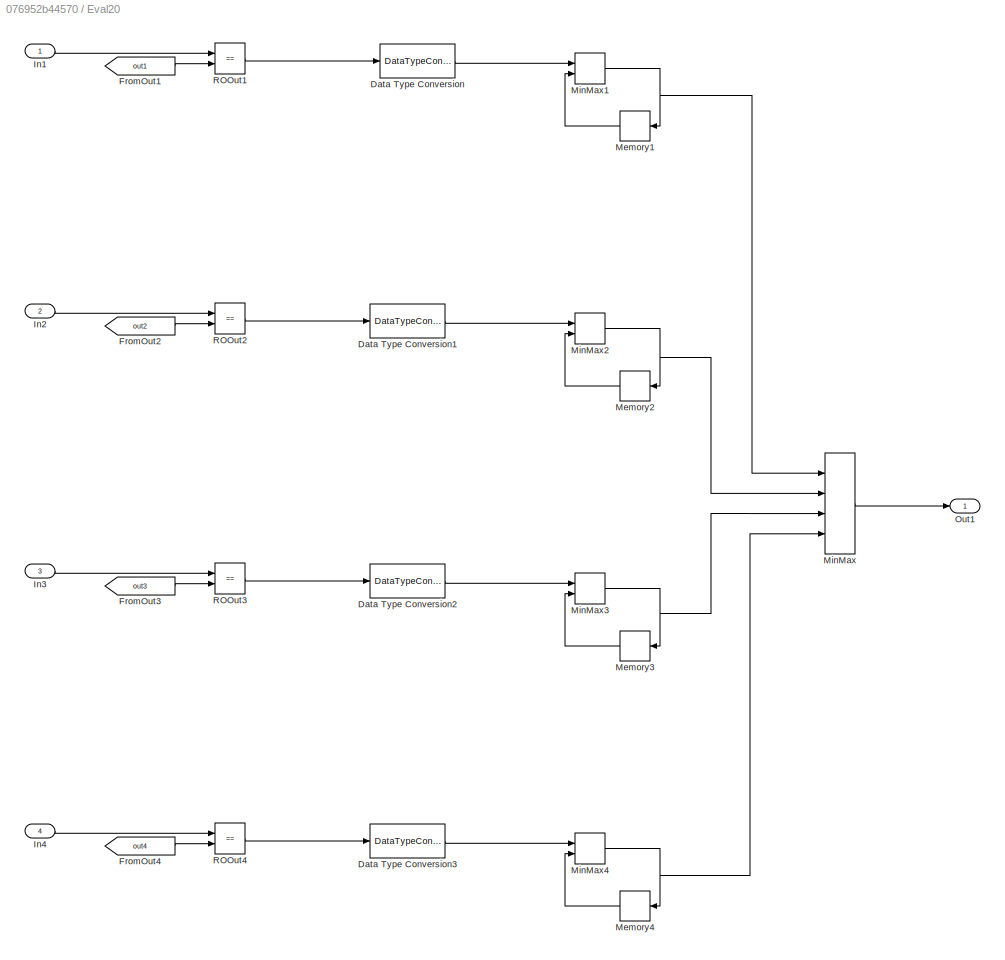
BLOCK [SubSystem] Eval20
  Ports = [4, 1]
  RequestExecContextInheritance = off
BLOCK [DataTypeConversion] Eval20/Data Type Conversion
  RndMeth = Floor
  SaturateOnIntegerOverflow = off
BLOCK [DataTypeConversion] Eval20/Data Type Conversion1
  RndMeth = Floor
  SaturateOnIntegerOverflow = off
BLOCK [DataTypeConversion] Eval20/Data Type Conversion2
  RndMeth = Floor
  SaturateOnIntegerOverflow = off
BLOCK [DataTypeConversion] Eval20/Data Type Conversion3
  RndMeth = Floor
  SaturateOnIntegerOverflow = off
BLOCK [From] Eval20/FromOut1
  GotoTag = out1
BLOCK [From] Eval20/FromOut2
  GotoTag = out2
BLOCK [From] Eval20/FromOut3
  GotoTag = out3
BLOCK [From] Eval20/FromOut4
  GotoTag = out4
BLOCK [Inport] Eval20/In1
  IconDisplay = Port number
BLOCK [Inport] Eval20/In2
  IconDisplay = Port number
  Port = 2
BLOCK [Inport] Eval20/In3
  IconDisplay = Port number
  Port = 3
BLOCK [Inport] Eval20/In4
  IconDisplay = Port number
  Port = 4
BLOCK [Memory] Eval20/Memory1
  InitialCondition = 1
BLOCK [Memory] Eval20/Memory2
  InitialCondition = 1
BLOCK [Memory] Eval20/Memory3
  InitialCondition = 1
BLOCK [Memory] Eval20/Memory4
  InitialCondition = 1
BLOCK [MinMax] Eval20/MinMax
  InputSameDT = off
  Inputs = 4
  Ports = [4, 1]
  SaturateOnIntegerOverflow = off
BLOCK [MinMax] Eval20/MinMax1
  InputSameDT = off
  Inputs = 2
  Ports = [2, 1]
  SaturateOnIntegerOverflow = off
BLOCK [MinMax] Eval20/MinMax2
  InputSameDT = off
  Inputs = 2
  Ports = [2, 1]
  SaturateOnIntegerOverflow = off
BLOCK [MinMax] Eval20/MinMax3
  InputSameDT = off
  Inputs = 2
  Ports = [2, 1]
  SaturateOnIntegerOverflow = off
BLOCK [MinMax] Eval20/MinMax4
  InputSameDT = off
  Inputs = 2
  Ports = [2, 1]
  SaturateOnIntegerOverflow = off
BLOCK [Outport] Eval20/Out1
  IconDisplay = Port number
BLOCK [RelationalOperator] Eval20/ROOut1
  InputSameDT = off
  Operator = ==
  OutDataTypeStr = boolean
  Ports = [2, 1]
  RndMeth = Simplest
BLOCK [RelationalOperator] Eval20/ROOut2
  InputSameDT = off
  Operator = ==
  OutDataTypeStr = boolean
  Ports = [2, 1]
  RndMeth = Simplest
BLOCK [RelationalOperator] Eval20/ROOut3
  InputSameDT = off
  Operator = ==
  OutDataTypeStr = boolean
  Ports = [2, 1]
  RndMeth = Simplest
BLOCK [RelationalOperator] Eval20/ROOut4
  InputSameDT = off
  Operator = ==
  OutDataTypeStr = boolean
  Ports = [2, 1]
  RndMeth = Simplest
BLOCK [SubSystem] Eval33
  Ports = [4, 1]
  RequestExecContextInheritance = off
BLOCK [DataTypeConversion] Eval33/Data Type Conversion
  RndMeth = Floor
  SaturateOnIntegerOverflow = off
BLOCK [DataTypeConversion] Eval33/Data Type Conversion1
  RndMeth = Floor
  SaturateOnIntegerOverflow = off
BLOCK [DataTypeConversion] Eval33/Data Type Conversion2
  RndMeth = Floor
  SaturateOnIntegerOverflow = off
BLOCK [DataTypeConversion] Eval33/Data Type Conversion3
  RndMeth = Floor
  SaturateOnIntegerOverflow = off
BLOCK [From] Eval33/FromOut1
  GotoTag = out1
BLOCK [From] Eval33/FromOut2
  GotoTag = out2
BLOCK [From] Eval33/FromOut3
  GotoTag = out3
BLOCK [From] Eval33/FromOut4
  GotoTag = out4
BLOCK [Inport] Eval33/In1
  IconDisplay = Port number
BLOCK [Inport] Eval33/In2
  IconDisplay = Port number
  Port = 2
BLOCK [Inport] Eval33/In3
  IconDisplay = Port number
  Port = 3
BLOCK [Inport] Eval33/In4
  IconDisplay = Port number
  Port = 4
BLOCK [Memory] Eval33/Memory1
  InitialCondition = 1
BLOCK [Memory] Eval33/Memory2
  InitialCondition = 1
BLOCK [Memory] Eval33/Memory3
  InitialCondition = 1
BLOCK [Memory] Eval33/Memory4
  InitialCondition = 1
BLOCK [MinMax] Eval33/MinMax
  InputSameDT = off
  Inputs = 4
  Ports = [4, 1]
  SaturateOnIntegerOverflow = off
BLOCK [MinMax] Eval33/MinMax1
  InputSameDT = off
  Inputs = 2
  Ports = [2, 1]
  SaturateOnIntegerOverflow = off
BLOCK [MinMax] Eval33/MinMax2
  InputSameDT = off
  Inputs = 2
  Ports = [2, 1]
  SaturateOnIntegerOverflow = off
BLOCK [MinMax] Eval33/MinMax3
  InputSameDT = off
  Inputs = 2
  Ports = [2, 1]
  SaturateOnIntegerOverflow = off
BLOCK [MinMax] Eval33/MinMax4
  InputSameDT = off
  Inputs = 2
  Ports = [2, 1]
  SaturateOnIntegerOverflow = off
BLOCK [Outport] Eval33/Out1
  IconDisplay = Port number
BLOCK [RelationalOperator] Eval33/ROOut1
  InputSameDT = off
  Operator = ==
  OutDataTypeStr = boolean
  Ports = [2, 1]
  RndMeth = Simplest
BLOCK [RelationalOperator] Eval33/ROOut2
  InputSameDT = off
  Operator = ==
  OutDataTypeStr = boolean
  Ports = [2, 1]
  RndMeth = Simplest
BLOCK [RelationalOperator] Eval33/ROOut3
  InputSameDT = off
  Operator = ==
  OutDataTypeStr = boolean
  Ports = [2, 1]
  RndMeth = Simplest
BLOCK [RelationalOperator] Eval33/ROOut4
  InputSameDT = off
  Operator = ==
  OutDataTypeStr = boolean
  Ports = [2, 1]
  RndMeth = Simplest
BLOCK [SubSystem] Eval37
  Ports = [4, 1]
  RequestExecContextInheritance = off
BLOCK [DataTypeConversion] Eval37/Data Type Conversion
  RndMeth = Floor
  SaturateOnIntegerOverflow = off
BLOCK [DataTypeConversion] Eval37/Data Type Conversion1
  RndMeth = Floor
  SaturateOnIntegerOverflow = off
BLOCK [DataTypeConversion] Eval37/Data Type Conversion2
  RndMeth = Floor
  SaturateOnIntegerOverflow = off
BLOCK [DataTypeConversion] Eval37/Data Type Conversion3
  RndMeth = Floor
  SaturateOnIntegerOverflow = off
BLOCK [From] Eval37/FromOut1
  GotoTag = out1
BLOCK [From] Eval37/FromOut2
  GotoTag = out2
BLOCK [From] Eval37/FromOut3
  GotoTag = out3
BLOCK [From] Eval37/FromOut4
  GotoTag = out4
BLOCK [Inport] Eval37/In1
  IconDisplay = Port number
BLOCK [Inport] Eval37/In2
  IconDisplay = Port number
  Port = 2
BLOCK [Inport] Eval37/In3
  IconDisplay = Port number
  Port = 3
BLOCK [Inport] Eval37/In4
  IconDisplay = Port number
  Port = 4
BLOCK [Memory] Eval37/Memory1
  InitialCondition = 1
BLOCK [Memory] Eval37/Memory2
  InitialCondition = 1
BLOCK [Memory] Eval37/Memory3
  InitialCondition = 1
BLOCK [Memory] Eval37/Memory4
  InitialCondition = 1
BLOCK [MinMax] Eval37/MinMax
  InputSameDT = off
  Inputs = 4
  Ports = [4, 1]
  SaturateOnIntegerOverflow = off
BLOCK [MinMax] Eval37/MinMax1
  InputSameDT = off
  Inputs = 2
  Ports = [2, 1]
  SaturateOnIntegerOverflow = off
BLOCK [MinMax] Eval37/MinMax2
  InputSameDT = off
  Inputs = 2
  Ports = [2, 1]
  SaturateOnIntegerOverflow = off
BLOCK [MinMax] Eval37/MinMax3
  InputSameDT = off
  Inputs = 2
  Ports = [2, 1]
  SaturateOnIntegerOverflow = off
BLOCK [MinMax] Eval37/MinMax4
  InputSameDT = off
  Inputs = 2
  Ports = [2, 1]
  SaturateOnIntegerOverflow = off
BLOCK [Outport] Eval37/Out1
  IconDisplay = Port number
BLOCK [RelationalOperator] Eval37/ROOut1
  InputSameDT = off
  Operator = ==
  OutDataTypeStr = boolean
  Ports = [2, 1]
  RndMeth = Simplest
BLOCK [RelationalOperator] Eval37/ROOut2
  InputSameDT = off
  Operator = ==
  OutDataTypeStr = boolean
  Ports = [2, 1]
  RndMeth = Simplest
BLOCK [RelationalOperator] Eval37/ROOut3
  InputSameDT = off
  Operator = ==
  OutDataTypeStr = boolean
  Ports = [2, 1]
  RndMeth = Simplest
BLOCK [RelationalOperator] Eval37/ROOut4
  InputSameDT = off
  Operator = ==
  OutDataTypeStr = boolean
  Ports = [2, 1]
  RndMeth = Simplest
BLOCK [SubSystem] Eval4
  Ports = [4, 1]
  RequestExecContextInheritance = off
BLOCK [DataTypeConversion] Eval4/Data Type Conversion
  RndMeth = Floor
  SaturateOnIntegerOverflow = off
BLOCK [DataTypeConversion] Eval4/Data Type Conversion1
  RndMeth = Floor
  SaturateOnIntegerOverflow = off
BLOCK [DataTypeConversion] Eval4/Data Type Conversion2
  RndMeth = Floor
  SaturateOnIntegerOverflow = off
BLOCK [DataTypeConversion] Eval4/Data Type Conversion3
  RndMeth = Floor
  SaturateOnIntegerOverflow = off
BLOCK [From] Eval4/FromOut1
  GotoTag = out1
BLOCK [From] Eval4/FromOut2
  GotoTag = out2
BLOCK [From] Eval4/FromOut3
  GotoTag = out3
BLOCK [From] Eval4/FromOut4
  GotoTag = out4
BLOCK [Inport] Eval4/In1
  IconDisplay = Port number
BLOCK [Inport] Eval4/In2
  IconDisplay = Port number
  Port = 2
BLOCK [Inport] Eval4/In3
  IconDisplay = Port number
  Port = 3
BLOCK [Inport] Eval4/In4
  IconDisplay = Port number
  Port = 4
BLOCK [Memory] Eval4/Memory1
  InitialCondition = 1
BLOCK [Memory] Eval4/Memory2
  InitialCondition = 1
BLOCK [Memory] Eval4/Memory3
  InitialCondition = 1
BLOCK [Memory] Eval4/Memory4
  InitialCondition = 1
BLOCK [MinMax] Eval4/MinMax
  InputSameDT = off
  Inputs = 4
  Ports = [4, 1]
  SaturateOnIntegerOverflow = off
BLOCK [MinMax] Eval4/MinMax1
  InputSameDT = off
  Inputs = 2
  Ports = [2, 1]
  SaturateOnIntegerOverflow = off
BLOCK [MinMax] Eval4/MinMax2
  InputSameDT = off
  Inputs = 2
  Ports = [2, 1]
  SaturateOnIntegerOverflow = off
BLOCK [MinMax] Eval4/MinMax3
  InputSameDT = off
  Inputs = 2
  Ports = [2, 1]
  SaturateOnIntegerOverflow = off
BLOCK [MinMax] Eval4/MinMax4
  InputSameDT = off
  Inputs = 2
  Ports = [2, 1]
  SaturateOnIntegerOverflow = off
BLOCK [Outport] Eval4/Out1
  IconDisplay = Port number
BLOCK [RelationalOperator] Eval4/ROOut1
  InputSameDT = off
  Operator = ==
  OutDataTypeStr = boolean
  Ports = [2, 1]
  RndMeth = Simplest
BLOCK [RelationalOperator] Eval4/ROOut2
  InputSameDT = off
  Operator = ==
  OutDataTypeStr = boolean
  Ports = [2, 1]
  RndMeth = Simplest
BLOCK [RelationalOperator] Eval4/ROOut3
  InputSameDT = off
  Operator = ==
  OutDataTypeStr = boolean
  Ports = [2, 1]
  RndMeth = Simplest
BLOCK [RelationalOperator] Eval4/ROOut4
  InputSameDT = off
  Operator = ==
  OutDataTypeStr = boolean
  Ports = [2, 1]
  RndMeth = Simplest
BLOCK [SubSystem] Eval46
  Ports = [4, 1]
  RequestExecContextInheritance = off
BLOCK [DataTypeConversion] Eval46/Data Type Conversion
  RndMeth = Floor
  SaturateOnIntegerOverflow = off
BLOCK [DataTypeConversion] Eval46/Data Type Conversion1
  RndMeth = Floor
  SaturateOnIntegerOverflow = off
BLOCK [DataTypeConversion] Eval46/Data Type Conversion2
  RndMeth = Floor
  SaturateOnIntegerOverflow = off
BLOCK [DataTypeConversion] Eval46/Data Type Conversion3
  RndMeth = Floor
  SaturateOnIntegerOverflow = off
BLOCK [From] Eval46/FromOut1
  GotoTag = out1
BLOCK [From] Eval46/FromOut2
  GotoTag = out2
BLOCK [From] Eval46/FromOut3
  GotoTag = out3
BLOCK [From] Eval46/FromOut4
  GotoTag = out4
BLOCK [Inport] Eval46/In1
  IconDisplay = Port number
BLOCK [Inport] Eval46/In2
  IconDisplay = Port number
  Port = 2
BLOCK [Inport] Eval46/In3
  IconDisplay = Port number
  Port = 3
BLOCK [Inport] Eval46/In4
  IconDisplay = Port number
  Port = 4
BLOCK [Memory] Eval46/Memory1
  InitialCondition = 1
BLOCK [Memory] Eval46/Memory2
  InitialCondition = 1
BLOCK [Memory] Eval46/Memory3
  InitialCondition = 1
BLOCK [Memory] Eval46/Memory4
  InitialCondition = 1
BLOCK [MinMax] Eval46/MinMax
  InputSameDT = off
  Inputs = 4
  Ports = [4, 1]
  SaturateOnIntegerOverflow = off
BLOCK [MinMax] Eval46/MinMax1
  InputSameDT = off
  Inputs = 2
  Ports = [2, 1]
  SaturateOnIntegerOverflow = off
BLOCK [MinMax] Eval46/MinMax2
  InputSameDT = off
  Inputs = 2
  Ports = [2, 1]
  SaturateOnIntegerOverflow = off
BLOCK [MinMax] Eval46/MinMax3
  InputSameDT = off
  Inputs = 2
  Ports = [2, 1]
  SaturateOnIntegerOverflow = off
BLOCK [MinMax] Eval46/MinMax4
  InputSameDT = off
  Inputs = 2
  Ports = [2, 1]
  SaturateOnIntegerOverflow = off
BLOCK [Outport] Eval46/Out1
  IconDisplay = Port number
BLOCK [RelationalOperator] Eval46/ROOut1
  InputSameDT = off
  Operator = ==
  OutDataTypeStr = boolean
  Ports = [2, 1]
  RndMeth = Simplest
BLOCK [RelationalOperator] Eval46/ROOut2
  InputSameDT = off
  Operator = ==
  OutDataTypeStr = boolean
  Ports = [2, 1]
  RndMeth = Simplest
BLOCK [RelationalOperator] Eval46/ROOut3
  InputSameDT = off
  Operator = ==
  OutDataTypeStr = boolean
  Ports = [2, 1]
  RndMeth = Simplest
BLOCK [RelationalOperator] Eval46/ROOut4
  InputSameDT = off
  Operator = ==
  OutDataTypeStr = boolean
  Ports = [2, 1]
  RndMeth = Simplest
BLOCK [SubSystem] Eval49
  Ports = [4, 1]
  RequestExecContextInheritance = off
BLOCK [DataTypeConversion] Eval49/Data Type Conversion
  RndMeth = Floor
  SaturateOnIntegerOverflow = off
BLOCK [DataTypeConversion] Eval49/Data Type Conversion1
  RndMeth = Floor
  SaturateOnIntegerOverflow = off
BLOCK [DataTypeConversion] Eval49/Data Type Conversion2
  RndMeth = Floor
  SaturateOnIntegerOverflow = off
BLOCK [DataTypeConversion] Eval49/Data Type Conversion3
  RndMeth = Floor
  SaturateOnIntegerOverflow = off
BLOCK [From] Eval49/FromOut1
  GotoTag = out1
BLOCK [From] Eval49/FromOut2
  GotoTag = out2
BLOCK [From] Eval49/FromOut3
  GotoTag = out3
BLOCK [From] Eval49/FromOut4
  GotoTag = out4
BLOCK [Inport] Eval49/In1
  IconDisplay = Port number
BLOCK [Inport] Eval49/In2
  IconDisplay = Port number
  Port = 2
BLOCK [Inport] Eval49/In3
  IconDisplay = Port number
  Port = 3
BLOCK [Inport] Eval49/In4
  IconDisplay = Port number
  Port = 4
BLOCK [Memory] Eval49/Memory1
  InitialCondition = 1
BLOCK [Memory] Eval49/Memory2
  InitialCondition = 1
BLOCK [Memory] Eval49/Memory3
  InitialCondition = 1
BLOCK [Memory] Eval49/Memory4
  InitialCondition = 1
BLOCK [MinMax] Eval49/MinMax
  InputSameDT = off
  Inputs = 4
  Ports = [4, 1]
  SaturateOnIntegerOverflow = off
BLOCK [MinMax] Eval49/MinMax1
  InputSameDT = off
  Inputs = 2
  Ports = [2, 1]
  SaturateOnIntegerOverflow = off
BLOCK [MinMax] Eval49/MinMax2
  InputSameDT = off
  Inputs = 2
  Ports = [2, 1]
  SaturateOnIntegerOverflow = off
BLOCK [MinMax] Eval49/MinMax3
  InputSameDT = off
  Inputs = 2
  Ports = [2, 1]
  SaturateOnIntegerOverflow = off
BLOCK [MinMax] Eval49/MinMax4
  InputSameDT = off
  Inputs = 2
  Ports = [2, 1]
  SaturateOnIntegerOverflow = off
BLOCK [Outport] Eval49/Out1
  IconDisplay = Port number
BLOCK [RelationalOperator] Eval49/ROOut1
  InputSameDT = off
  Operator = ==
  OutDataTypeStr = boolean
  Ports = [2, 1]
  RndMeth = Simplest
BLOCK [RelationalOperator] Eval49/ROOut2
  InputSameDT = off
  Operator = ==
  OutDataTypeStr = boolean
  Ports = [2, 1]
  RndMeth = Simplest
BLOCK [RelationalOperator] Eval49/ROOut3
  InputSameDT = off
  Operator = ==
  OutDataTypeStr = boolean
  Ports = [2, 1]
  RndMeth = Simplest
BLOCK [RelationalOperator] Eval49/ROOut4
  InputSameDT = off
  Operator = ==
  OutDataTypeStr = boolean
  Ports = [2, 1]
  RndMeth = Simplest
BLOCK [SubSystem] Eval8
  Ports = [4, 1]
  RequestExecContextInheritance = off
BLOCK [DataTypeConversion] Eval8/Data Type Conversion
  RndMeth = Floor
  SaturateOnIntegerOverflow = off
BLOCK [DataTypeConversion] Eval8/Data Type Conversion1
  RndMeth = Floor
  SaturateOnIntegerOverflow = off
BLOCK [DataTypeConversion] Eval8/Data Type Conversion2
  RndMeth = Floor
  SaturateOnIntegerOverflow = off
BLOCK [DataTypeConversion] Eval8/Data Type Conversion3
  RndMeth = Floor
  SaturateOnIntegerOverflow = off
BLOCK [From] Eval8/FromOut1
  GotoTag = out1
BLOCK [From] Eval8/FromOut2
  GotoTag = out2
BLOCK [From] Eval8/FromOut3
  GotoTag = out3
BLOCK [From] Eval8/FromOut4
  GotoTag = out4
BLOCK [Inport] Eval8/In1
  IconDisplay = Port number
BLOCK [Inport] Eval8/In2
  IconDisplay = Port number
  Port = 2
BLOCK [Inport] Eval8/In3
  IconDisplay = Port number
  Port = 3
BLOCK [Inport] Eval8/In4
  IconDisplay = Port number
  Port = 4
BLOCK [Memory] Eval8/Memory1
  InitialCondition = 1
BLOCK [Memory] Eval8/Memory2
  InitialCondition = 1
BLOCK [Memory] Eval8/Memory3
  InitialCondition = 1
BLOCK [Memory] Eval8/Memory4
  InitialCondition = 1
BLOCK [MinMax] Eval8/MinMax
  InputSameDT = off
  Inputs = 4
  Ports = [4, 1]
  SaturateOnIntegerOverflow = off
BLOCK [MinMax] Eval8/MinMax1
  InputSameDT = off
  Inputs = 2
  Ports = [2, 1]
  SaturateOnIntegerOverflow = off
BLOCK [MinMax] Eval8/MinMax2
  InputSameDT = off
  Inputs = 2
  Ports = [2, 1]
  SaturateOnIntegerOverflow = off
BLOCK [MinMax] Eval8/MinMax3
  InputSameDT = off
  Inputs = 2
  Ports = [2, 1]
  SaturateOnIntegerOverflow = off
BLOCK [MinMax] Eval8/MinMax4
  InputSameDT = off
  Inputs = 2
  Ports = [2, 1]
  SaturateOnIntegerOverflow = off
BLOCK [Outport] Eval8/Out1
  IconDisplay = Port number
BLOCK [RelationalOperator] Eval8/ROOut1
  InputSameDT = off
  Operator = ==
  OutDataTypeStr = boolean
  Ports = [2, 1]
  RndMeth = Simplest
BLOCK [RelationalOperator] Eval8/ROOut2
  InputSameDT = off
  Operator = ==
  OutDataTypeStr = boolean
  Ports = [2, 1]
  RndMeth = Simplest
BLOCK [RelationalOperator] Eval8/ROOut3
  InputSameDT = off
  Operator = ==
  OutDataTypeStr = boolean
  Ports = [2, 1]
  RndMeth = Simplest
BLOCK [RelationalOperator] Eval8/ROOut4
  InputSameDT = off
  Operator = ==
  OutDataTypeStr = boolean
  Ports = [2, 1]
  RndMeth = Simplest
BLOCK [From] FromIn145
  GotoTag = in1
BLOCK [From] FromIn146
  GotoTag = in2
BLOCK [From] FromIn147
  GotoTag = in3
BLOCK [From] FromIn148
  GotoTag = in4
BLOCK [From] FromIn149
  GotoTag = in5
BLOCK [From] FromIn150
  GotoTag = in6
BLOCK [From] FromIn151
  GotoTag = in7
BLOCK [From] FromIn152
  GotoTag = in8
BLOCK [From] FromIn153
  GotoTag = in9
BLOCK [From] FromIn154
  GotoTag = in10
BLOCK [From] FromIn155
  GotoTag = in11
BLOCK [From] FromIn156
  GotoTag = in12
BLOCK [From] FromIn157
  GotoTag = in13
BLOCK [From] FromIn158
  GotoTag = in14
BLOCK [From] FromIn159
  GotoTag = in15
BLOCK [From] FromIn160
  GotoTag = in16
BLOCK [From] FromIn161
  GotoTag = in17
BLOCK [From] FromIn162
  GotoTag = in18
BLOCK [From] FromIn307
  GotoTag = in1
BLOCK [From] FromIn308
  GotoTag = in2
BLOCK [From] FromIn309
  GotoTag = in3
BLOCK [From] FromIn310
  GotoTag = in4
BLOCK [From] FromIn311
  GotoTag = in5
BLOCK [From] FromIn312
  GotoTag = in6
BLOCK [From] FromIn313
  GotoTag = in7
BLOCK [From] FromIn314
  GotoTag = in8
BLOCK [From] FromIn315
  GotoTag = in9
BLOCK [From] FromIn316
  GotoTag = in10
BLOCK [From] FromIn317
  GotoTag = in11
BLOCK [From] FromIn318
  GotoTag = in12
BLOCK [From] FromIn319
  GotoTag = in13
BLOCK [From] FromIn320
  GotoTag = in14
BLOCK [From] FromIn321
  GotoTag = in15
BLOCK [From] FromIn322
  GotoTag = in16
BLOCK [From] FromIn323
  GotoTag = in17
BLOCK [From] FromIn324
  GotoTag = in18
BLOCK [From] FromIn361
  GotoTag = in1
BLOCK [From] FromIn362
  GotoTag = in2
BLOCK [From] FromIn363
  GotoTag = in3
BLOCK [From] FromIn364
  GotoTag = in4
BLOCK [From] FromIn365
  GotoTag = in5
BLOCK [From] FromIn366
  GotoTag = in6
BLOCK [From] FromIn367
  GotoTag = in7
BLOCK [From] FromIn368
  GotoTag = in8
BLOCK [From] FromIn369
  GotoTag = in9
BLOCK [From] FromIn370
  GotoTag = in10
BLOCK [From] FromIn371
  GotoTag = in11
BLOCK [From] FromIn372
  GotoTag = in12
BLOCK [From] FromIn373
  GotoTag = in13
BLOCK [From] FromIn374
  GotoTag = in14
BLOCK [From] FromIn375
  GotoTag = in15
BLOCK [From] FromIn376
  GotoTag = in16
BLOCK [From] FromIn377
  GotoTag = in17
BLOCK [From] FromIn378
  GotoTag = in18
BLOCK [From] FromIn595
  GotoTag = in1
BLOCK [From] FromIn596
  GotoTag = in2
BLOCK [From] FromIn597
  GotoTag = in3
BLOCK [From] FromIn598
  GotoTag = in4
BLOCK [From] FromIn599
  GotoTag = in5
BLOCK [From] FromIn600
  GotoTag = in6
BLOCK [From] FromIn601
  GotoTag = in7
BLOCK [From] FromIn602
  GotoTag = in8
BLOCK [From] FromIn603
  GotoTag = in9
BLOCK [From] FromIn604
  GotoTag = in10
BLOCK [From] FromIn605
  GotoTag = in11
BLOCK [From] FromIn606
  GotoTag = in12
BLOCK [From] FromIn607
  GotoTag = in13
BLOCK [From] FromIn608
  GotoTag = in14
BLOCK [From] FromIn609
  GotoTag = in15
BLOCK [From] FromIn610
  GotoTag = in16
BLOCK [From] FromIn611
  GotoTag = in17
BLOCK [From] FromIn612
  GotoTag = in18
BLOCK [From] FromIn667
  GotoTag = in1
BLOCK [From] FromIn668
  GotoTag = in2
BLOCK [From] FromIn669
  GotoTag = in3
BLOCK [From] FromIn670
  GotoTag = in4
BLOCK [From] FromIn671
  GotoTag = in5
BLOCK [From] FromIn672
  GotoTag = in6
BLOCK [From] FromIn673
  GotoTag = in7
BLOCK [From] FromIn674
  GotoTag = in8
BLOCK [From] FromIn675
  GotoTag = in9
BLOCK [From] FromIn676
  GotoTag = in10
BLOCK [From] FromIn677
  GotoTag = in11
BLOCK [From] FromIn678
  GotoTag = in12
BLOCK [From] FromIn679
  GotoTag = in13
BLOCK [From] FromIn680
  GotoTag = in14
BLOCK [From] FromIn681
  GotoTag = in15
BLOCK [From] FromIn682
  GotoTag = in16
BLOCK [From] FromIn683
  GotoTag = in17
BLOCK [From] FromIn684
  GotoTag = in18
BLOCK [From] FromIn73
  GotoTag = in1
BLOCK [From] FromIn74
  GotoTag = in2
BLOCK [From] FromIn75
  GotoTag = in3
BLOCK [From] FromIn76
  GotoTag = in4
BLOCK [From] FromIn77
  GotoTag = in5
BLOCK [From] FromIn78
  GotoTag = in6
BLOCK [From] FromIn79
  GotoTag = in7
BLOCK [From] FromIn80
  GotoTag = in8
BLOCK [From] FromIn81
  GotoTag = in9
BLOCK [From] FromIn82
  GotoTag = in10
BLOCK [From] FromIn829
  GotoTag = in1
BLOCK [From] FromIn83
  GotoTag = in11
BLOCK [From] FromIn830
  GotoTag = in2
BLOCK [From] FromIn831
  GotoTag = in3
BLOCK [From] FromIn832
  GotoTag = in4
BLOCK [From] FromIn833
  GotoTag = in5
BLOCK [From] FromIn834
  GotoTag = in6
BLOCK [From] FromIn835
  GotoTag = in7
BLOCK [From] FromIn836
  GotoTag = in8
BLOCK [From] FromIn837
  GotoTag = in9
BLOCK [From] FromIn838
  GotoTag = in10
BLOCK [From] FromIn839
  GotoTag = in11
BLOCK [From] FromIn84
  GotoTag = in12
BLOCK [From] FromIn840
  GotoTag = in12
BLOCK [From] FromIn841
  GotoTag = in13
BLOCK [From] FromIn842
  GotoTag = in14
BLOCK [From] FromIn843
  GotoTag = in15
BLOCK [From] FromIn844
  GotoTag = in16
BLOCK [From] FromIn845
  GotoTag = in17
BLOCK [From] FromIn846
  GotoTag = in18
BLOCK [From] FromIn85
  GotoTag = in13
BLOCK [From] FromIn86
  GotoTag = in14
BLOCK [From] FromIn87
  GotoTag = in15
BLOCK [From] FromIn88
  GotoTag = in16
BLOCK [From] FromIn883
  GotoTag = in1
BLOCK [From] FromIn884
  GotoTag = in2
BLOCK [From] FromIn885
  GotoTag = in3
BLOCK [From] FromIn886
  GotoTag = in4
BLOCK [From] FromIn887
  GotoTag = in5
BLOCK [From] FromIn888
  GotoTag = in6
BLOCK [From] FromIn889
  GotoTag = in7
BLOCK [From] FromIn89
  GotoTag = in17
BLOCK [From] FromIn890
  GotoTag = in8
BLOCK [From] FromIn891
  GotoTag = in9
BLOCK [From] FromIn892
  GotoTag = in10
BLOCK [From] FromIn893
  GotoTag = in11
BLOCK [From] FromIn894
  GotoTag = in12
BLOCK [From] FromIn895
  GotoTag = in13
BLOCK [From] FromIn896
  GotoTag = in14
BLOCK [From] FromIn897
  GotoTag = in15
BLOCK [From] FromIn898
  GotoTag = in16
BLOCK [From] FromIn899
  GotoTag = in17
BLOCK [From] FromIn90
  GotoTag = in18
BLOCK [From] FromIn900
  GotoTag = in18
BLOCK [Goto] GotoIn1
  GotoTag = in1
BLOCK [Goto] GotoIn10
  GotoTag = in10
BLOCK [Goto] GotoIn11
  GotoTag = in11
BLOCK [Goto] GotoIn12
  GotoTag = in12
BLOCK [Goto] GotoIn13
  GotoTag = in13
BLOCK [Goto] GotoIn14
  GotoTag = in14
BLOCK [Goto] GotoIn15
  GotoTag = in15
BLOCK [Goto] GotoIn16
  GotoTag = in16
BLOCK [Goto] GotoIn17
  GotoTag = in17
BLOCK [Goto] GotoIn18
  GotoTag = in18
BLOCK [Goto] GotoIn2
  GotoTag = in2
BLOCK [Goto] GotoIn3
  GotoTag = in3
BLOCK [Goto] GotoIn4
  GotoTag = in4
BLOCK [Goto] GotoIn5
  GotoTag = in5
BLOCK [Goto] GotoIn6
  GotoTag = in6
BLOCK [Goto] GotoIn7
  GotoTag = in7
BLOCK [Goto] GotoIn8
  GotoTag = in8
BLOCK [Goto] GotoIn9
  GotoTag = in9
BLOCK [Goto] GotoOut1
  GotoTag = out1
  TagVisibility = global
BLOCK [Goto] GotoOut2
  GotoTag = out2
  TagVisibility = global
BLOCK [Goto] GotoOut3
  GotoTag = out3
  TagVisibility = global
BLOCK [Goto] GotoOut4
  GotoTag = out4
  TagVisibility = global
BLOCK [SubSystem] Inputs
  ClipboardFcn = sigbuilder_block('clipboard');
  CloseFcn = sigbuilder_block('close');
  ContinueFcn = sigbuilder_block('continue');
  CopyFcn = sigbuilder_block('copy');
  DeleteFcn = sigbuilder_block('delete');
  LoadFcn = sigbuilder_block('load');
  MaskHideContents = on
  ModelCloseFcn = sigbuilder_block('modelClose');
  NameChangeFcn = sigbuilder_block('namechange');
  OpenFcn = sigbuilder_block('open');
  PauseFcn = sigbuilder_block('pause');
  Ports = [0, 11]
  PreSaveFcn = sigbuilder_block('preSave');
  RequestExecContextInheritance = off
  StartFcn = sigbuilder_block('start');
  StopFcn = sigbuilder_block('stop');
  Tag = STV Subsys
BLOCK [Outport] Inputs/CW2C
  IconDisplay = Port number
  Port = 10
  Tag = STV Outport
BLOCK [Outport] Inputs/CW4C
  IconDisplay = Port number
  Port = 11
  Tag = STV Outport
BLOCK [Outport] Inputs/DW1
  IconDisplay = Port number
  Tag = STV Outport
BLOCK [Demux] Inputs/Demux
  Outputs = 11
  Ports = [1, 11]
  Tag = STV Demux
BLOCK [FromWorkspace] Inputs/FromWs
  SampleTime = 0
  Tag = STV FromWs
  VariableName = tuvar
BLOCK [Outport] Inputs/O1
  IconDisplay = Port number
  Port = 6
  Tag = STV Outport
BLOCK [Outport] Inputs/O2
  IconDisplay = Port number
  Port = 7
  Tag = STV Outport
BLOCK [Outport] Inputs/O3
  IconDisplay = Port number
  Port = 8
  Tag = STV Outport
BLOCK [Outport] Inputs/O4
  IconDisplay = Port number
  Port = 9
  Tag = STV Outport
BLOCK [Outport] Inputs/P1W2
  IconDisplay = Port number
  Port = 2
  Tag = STV Outport
BLOCK [Outport] Inputs/P1W4
  IconDisplay = Port number
  Port = 5
  Tag = STV Outport
BLOCK [Outport] Inputs/P2W3
  IconDisplay = Port number
  Port = 3
  Tag = STV Outport
BLOCK [Outport] Inputs/P3W4
  IconDisplay = Port number
  Port = 4
  Tag = STV Outport
BLOCK [SubSystem] M005
  Ports = [11, 4]
  RequestExecContextInheritance = off
BLOCK [Inport] M005/CW2C
  IconDisplay = Port number
  OutDataTypeStr = int8
  OutMax = 4
  OutMin = 0
  Port = 10
BLOCK [Inport] M005/CW4C
  IconDisplay = Port number
  OutDataTypeStr = int8
  OutMax = 4
  OutMin = 0
  Port = 11
BLOCK [SubSystem] M005/Cyber
  Ports = [15, 4]
  RequestExecContextInheritance = off
BLOCK [Inport] M005/Cyber/CW2C
  IconDisplay = Port number
  Port = 14
BLOCK [Inport] M005/Cyber/CW4C
  IconDisplay = Port number
  Port = 15
BLOCK [Inport] M005/Cyber/DW1
  IconDisplay = Port number
  Port = 5
BLOCK [Inport] M005/Cyber/OW1
  IconDisplay = Port number
  Port = 10
BLOCK [Inport] M005/Cyber/OW2
  IconDisplay = Port number
  Port = 11
BLOCK [Inport] M005/Cyber/OW3
  IconDisplay = Port number
  Port = 12
BLOCK [Inport] M005/Cyber/OW4
  IconDisplay = Port number
  Port = 13
BLOCK [Inport] M005/Cyber/P1W2
  IconDisplay = Port number
  Port = 6
BLOCK [Inport] M005/Cyber/P1W4
  IconDisplay = Port number
  Port = 9
BLOCK [Inport] M005/Cyber/P2W3
  IconDisplay = Port number
  Port = 7
BLOCK [Inport] M005/Cyber/P3W4
  IconDisplay = Port number
  Port = 8
BLOCK [Inport] M005/Cyber/PosW1
  IconDisplay = Port number
BLOCK [Inport] M005/Cyber/PosW2
  IconDisplay = Port number
  Port = 2
BLOCK [Inport] M005/Cyber/PosW3
  IconDisplay = Port number
  Port = 3
BLOCK [Inport] M005/Cyber/PosW4
  IconDisplay = Port number
  Port = 4
BLOCK [SubSystem] M005/Cyber/Pri
  Ports = [2, 1]
  RequestExecContextInheritance = off
BLOCK [Inport] M005/Cyber/Pri/CW2C
  IconDisplay = Port number
  Port = 2
BLOCK [Inport] M005/Cyber/Pri/P
  IconDisplay = Port number
BLOCK [Switch] M005/Cyber/Pri/Switch1
  Criteria = u2 > Threshold
  InputSameDT = off
  SaturateOnIntegerOverflow = off
  Threshold = 4
BLOCK [Outport] M005/Cyber/Pri/User
  IconDisplay = Port number
BLOCK [SubSystem] M005/Cyber/Pri4
  Ports = [3, 1]
  RequestExecContextInheritance = off
BLOCK [Inport] M005/Cyber/Pri4/CW4C
  IconDisplay = Port number
  Port = 3
BLOCK [Inport] M005/Cyber/Pri4/P
  IconDisplay = Port number
BLOCK [Inport] M005/Cyber/Pri4/P1
  IconDisplay = Port number
  Port = 2
BLOCK [Switch] M005/Cyber/Pri4/Switch1
  Criteria = u2 ~= 0
  InputSameDT = off
  SaturateOnIntegerOverflow = off
BLOCK [Switch] M005/Cyber/Pri4/Switch2
  Criteria = u2 ~= 0
  InputSameDT = off
  SaturateOnIntegerOverflow = off
BLOCK [Outport] M005/Cyber/Pri4/User
  IconDisplay = Port number
BLOCK [Outport] M005/Cyber/W1
  IconDisplay = Port number
BLOCK [Outport] M005/Cyber/W2
  IconDisplay = Port number
  Port = 2
BLOCK [Outport] M005/Cyber/W3
  IconDisplay = Port number
  Port = 3
BLOCK [Outport] M005/Cyber/W4
  IconDisplay = Port number
  Port = 4
BLOCK [SubSystem] M005/Cyber/WL
  Ports = [3, 1]
  RequestExecContextInheritance = off
BLOCK [SubSystem] M005/Cyber/WL/Chart
  ErrorFcn = Stateflow.Translate.translate
  PermitHierarchicalResolution = ExplicitOnly
  Ports = [2, 1]
  RequestExecContextInheritance = off
  SFBlockType = Chart
  TreatAsAtomicUnit = on
BLOCK [Demux] M005/Cyber/WL/Chart/ Demux 
  Outputs = 1
  Ports = [1, 1]
BLOCK [S-Function] M005/Cyber/WL/Chart/ SFunction 
  EnableBusSupport = off
  FunctionName = sf_sfun
  PortCounts = [2 2]
  Ports = [2, 2]
  SFcnIsStateOwnerBlock = off
  SFunctionDeploymentMode = off
  Tag = Stateflow S-Function c00011M_harness 21
BLOCK [Terminator] M005/Cyber/WL/Chart/ Terminator 
BLOCK [Inport] M005/Cyber/WL/Chart/S
  IconDisplay = Port number
BLOCK [Inport] M005/Cyber/WL/Chart/UI
  IconDisplay = Port number
  Port = 2
BLOCK [Outport] M005/Cyber/WL/Chart/W
  IconDisplay = Port number
BLOCK [Constant] M005/Cyber/WL/Constant
  Value = -1
BLOCK [DataTypeConversion] M005/Cyber/WL/Data Type Conversion
  RndMeth = Floor
  SaturateOnIntegerOverflow = off
BLOCK [Inport] M005/Cyber/WL/OW
  IconDisplay = Port number
  Port = 3
BLOCK [Switch] M005/Cyber/WL/Switch
  Criteria = u2 ~= 0
  InputSameDT = off
  SaturateOnIntegerOverflow = off
  Threshold = 1
  ZeroCross = off
BLOCK [Inport] M005/Cyber/WL/User
  IconDisplay = Port number
  Port = 2
BLOCK [Inport] M005/Cyber/WL/WPos
  IconDisplay = Port number
BLOCK [Outport] M005/Cyber/WL/WindowLogicOutput
  IconDisplay = Port number
BLOCK [SubSystem] M005/Cyber/WL1
  Ports = [3, 1]
  RequestExecContextInheritance = off
BLOCK [SubSystem] M005/Cyber/WL1/Chart1
  ErrorFcn = Stateflow.Translate.translate
  PermitHierarchicalResolution = ExplicitOnly
  Ports = [2, 1]
  RequestExecContextInheritance = off
  SFBlockType = Chart
  TreatAsAtomicUnit = on
BLOCK [Demux] M005/Cyber/WL1/Chart1/ Demux 
  Outputs = 1
  Ports = [1, 1]
BLOCK [S-Function] M005/Cyber/WL1/Chart1/ SFunction 
  EnableBusSupport = off
  FunctionName = sf_sfun
  PortCounts = [2 2]
  Ports = [2, 2]
  SFcnIsStateOwnerBlock = off
  SFunctionDeploymentMode = off
  Tag = Stateflow S-Function c00011M_harness 22
BLOCK [Terminator] M005/Cyber/WL1/Chart1/ Terminator 
BLOCK [Inport] M005/Cyber/WL1/Chart1/S
  IconDisplay = Port number
BLOCK [Inport] M005/Cyber/WL1/Chart1/UI
  IconDisplay = Port number
  Port = 2
BLOCK [Outport] M005/Cyber/WL1/Chart1/W
  IconDisplay = Port number
BLOCK [Constant] M005/Cyber/WL1/Constant
  Value = -1
BLOCK [DataTypeConversion] M005/Cyber/WL1/Data Type Conversion
  RndMeth = Floor
  SaturateOnIntegerOverflow = off
BLOCK [Inport] M005/Cyber/WL1/OW
  IconDisplay = Port number
  Port = 3
BLOCK [Switch] M005/Cyber/WL1/Switch
  Criteria = u2 ~= 0
  InputSameDT = off
  SaturateOnIntegerOverflow = off
  Threshold = 1
  ZeroCross = off
BLOCK [Inport] M005/Cyber/WL1/User
  IconDisplay = Port number
  Port = 2
BLOCK [Inport] M005/Cyber/WL1/WPos
  IconDisplay = Port number
BLOCK [Outport] M005/Cyber/WL1/WindowLogicOutput
  IconDisplay = Port number
BLOCK [SubSystem] M005/Cyber/WL2
  Ports = [3, 1]
  RequestExecContextInheritance = off
BLOCK [SubSystem] M005/Cyber/WL2/Chart1
  ErrorFcn = Stateflow.Translate.translate
  PermitHierarchicalResolution = ExplicitOnly
  Ports = [3, 1]
  RequestExecContextInheritance = off
  SFBlockType = Chart
  TreatAsAtomicUnit = on
BLOCK [Demux] M005/Cyber/WL2/Chart1/ Demux 
  Outputs = 1
  Ports = [1, 1]
BLOCK [S-Function] M005/Cyber/WL2/Chart1/ SFunction 
  EnableBusSupport = off
  FunctionName = sf_sfun
  PortCounts = [3 2]
  Ports = [3, 2]
  SFcnIsStateOwnerBlock = off
  SFunctionDeploymentMode = off
  Tag = Stateflow S-Function c00011M_harness 23
BLOCK [Terminator] M005/Cyber/WL2/Chart1/ Terminator 
BLOCK [Inport] M005/Cyber/WL2/Chart1/PosMinW3
  IconDisplay = Port number
  Port = 3
BLOCK [Inport] M005/Cyber/WL2/Chart1/S
  IconDisplay = Port number
BLOCK [Inport] M005/Cyber/WL2/Chart1/UI
  IconDisplay = Port number
  Port = 2
BLOCK [Outport] M005/Cyber/WL2/Chart1/W
  IconDisplay = Port number
BLOCK [Constant] M005/Cyber/WL2/Constant
  Value = -1
BLOCK [Constant] M005/Cyber/WL2/Constant2
  Value = PosMinimaW3
BLOCK [DataTypeConversion] M005/Cyber/WL2/Data Type Conversion
  RndMeth = Floor
  SaturateOnIntegerOverflow = off
BLOCK [Inport] M005/Cyber/WL2/OW
  IconDisplay = Port number
  Port = 3
BLOCK [Switch] M005/Cyber/WL2/Switch
  Criteria = u2 ~= 0
  InputSameDT = off
  SaturateOnIntegerOverflow = off
  Threshold = 1
  ZeroCross = off
BLOCK [Inport] M005/Cyber/WL2/User
  IconDisplay = Port number
  Port = 2
BLOCK [Inport] M005/Cyber/WL2/WPos
  IconDisplay = Port number
BLOCK [Outport] M005/Cyber/WL2/WindowLogicOutput
  IconDisplay = Port number
BLOCK [SubSystem] M005/Cyber/WL3
  Ports = [3, 1]
  RequestExecContextInheritance = off
BLOCK [SubSystem] M005/Cyber/WL3/Chart2
  ErrorFcn = Stateflow.Translate.translate
  PermitHierarchicalResolution = ExplicitOnly
  Ports = [3, 1]
  RequestExecContextInheritance = off
  SFBlockType = Chart
  TreatAsAtomicUnit = on
BLOCK [Demux] M005/Cyber/WL3/Chart2/ Demux 
  Outputs = 1
  Ports = [1, 1]
BLOCK [S-Function] M005/Cyber/WL3/Chart2/ SFunction 
  EnableBusSupport = off
  FunctionName = sf_sfun
  PortCounts = [3 2]
  Ports = [3, 2]
  SFcnIsStateOwnerBlock = off
  SFunctionDeploymentMode = off
  Tag = Stateflow S-Function c00011M_harness 24
BLOCK [Terminator] M005/Cyber/WL3/Chart2/ Terminator 
BLOCK [Inport] M005/Cyber/WL3/Chart2/PosMinW4
  IconDisplay = Port number
  Port = 3
BLOCK [Inport] M005/Cyber/WL3/Chart2/S
  IconDisplay = Port number
BLOCK [Inport] M005/Cyber/WL3/Chart2/UI
  IconDisplay = Port number
  Port = 2
BLOCK [Outport] M005/Cyber/WL3/Chart2/W
  IconDisplay = Port number
BLOCK [Constant] M005/Cyber/WL3/Constant
  Value = -1
BLOCK [Constant] M005/Cyber/WL3/Constant2
  Value = PosMinimaW4
BLOCK [DataTypeConversion] M005/Cyber/WL3/Data Type Conversion
  RndMeth = Floor
  SaturateOnIntegerOverflow = off
BLOCK [Inport] M005/Cyber/WL3/OW
  IconDisplay = Port number
  Port = 3
BLOCK [Switch] M005/Cyber/WL3/Switch
  Criteria = u2 ~= 0
  InputSameDT = off
  SaturateOnIntegerOverflow = off
  Threshold = 1
  ZeroCross = off
BLOCK [Inport] M005/Cyber/WL3/User
  IconDisplay = Port number
  Port = 2
BLOCK [Inport] M005/Cyber/WL3/WPos
  IconDisplay = Port number
BLOCK [Outport] M005/Cyber/WL3/WindowLogicOutput
  IconDisplay = Port number
BLOCK [Inport] M005/DW1
  IconDisplay = Port number
  OutDataTypeStr = int8
  OutMax = 4
  OutMin = 0
BLOCK [Memory] M005/M
BLOCK [Memory] M005/M1
BLOCK [Memory] M005/M2
BLOCK [Memory] M005/M3
BLOCK [Inport] M005/O1
  IconDisplay = Port number
  OutDataTypeStr = boolean
  Port = 6
BLOCK [Inport] M005/O2
  IconDisplay = Port number
  OutDataTypeStr = boolean
  Port = 7
BLOCK [Inport] M005/O3
  IconDisplay = Port number
  OutDataTypeStr = boolean
  Port = 8
BLOCK [Inport] M005/O4
  IconDisplay = Port number
  OutDataTypeStr = boolean
  Port = 9
BLOCK [Inport] M005/P1W2
  IconDisplay = Port number
  OutDataTypeStr = int8
  OutMax = 4
  OutMin = 0
  Port = 2
BLOCK [Inport] M005/P1W4
  IconDisplay = Port number
  OutDataTypeStr = int8
  OutMax = 4
  OutMin = 0
  Port = 5
BLOCK [Inport] M005/P2W3
  IconDisplay = Port number
  OutDataTypeStr = int8
  OutMax = 4
  OutMin = 0
  Port = 3
BLOCK [Inport] M005/P3W4
  IconDisplay = Port number
  OutDataTypeStr = int8
  OutMax = 4
  OutMin = 0
  Port = 4
BLOCK [SubSystem] M005/Physical
  Ports = [4, 4]
  RequestExecContextInheritance = off
BLOCK [Inport] M005/Physical/InW1
  IconDisplay = Port number
BLOCK [Inport] M005/Physical/InW2
  IconDisplay = Port number
  Port = 2
BLOCK [Inport] M005/Physical/InW3
  IconDisplay = Port number
  Port = 3
BLOCK [Inport] M005/Physical/InW4
  IconDisplay = Port number
  Port = 4
BLOCK [SubSystem] M005/Physical/W
  Ports = [1, 1]
  RequestExecContextInheritance = off
BLOCK [SubSystem] M005/Physical/W/DC_Engine
  Ports = [1, 1]
  RequestExecContextInheritance = off
BLOCK [Gain] M005/Physical/W/DC_Engine/(Inductance)
  Gain = 1/L
  OutDataTypeStr = Inherit: Inherit via internal rule
  ParamDataTypeStr = Inherit: Inherit via internal rule
  SaturateOnIntegerOverflow = off
BLOCK [Gain] M005/Physical/W/DC_Engine/(Inductance)1
  Gain = 1/J
  OutDataTypeStr = Inherit: Inherit via internal rule
  ParamDataTypeStr = Inherit: Inherit via internal rule
  SaturateOnIntegerOverflow = off
BLOCK [Sum] M005/Physical/W/DC_Engine/Add
  InputSameDT = off
  Inputs = -+-
  OutDataTypeStr = Inherit: Inherit via internal rule
  Ports = [3, 1]
  SaturateOnIntegerOverflow = off
BLOCK [Sum] M005/Physical/W/DC_Engine/Add1
  InputSameDT = off
  Inputs = +-
  OutDataTypeStr = Inherit: Inherit via internal rule
  Ports = [2, 1]
  SaturateOnIntegerOverflow = off
BLOCK [Gain] M005/Physical/W/DC_Engine/Damping
  Gain = b
  OutDataTypeStr = Inherit: Inherit via internal rule
  ParamDataTypeStr = Inherit: Inherit via internal rule
  SaturateOnIntegerOverflow = off
BLOCK [DiscreteIntegrator] M005/Physical/W/DC_Engine/Discrete-Time Integrator
  ICPrevOutput = DiscIntNeverNeededParam
  ICPrevScaledInput = DiscIntNeverNeededParam
  Ports = [1, 1]
  SampleTime = -1
BLOCK [DiscreteIntegrator] M005/Physical/W/DC_Engine/Discrete-Time Integrator1
  ICPrevOutput = DiscIntNeverNeededParam
  ICPrevScaledInput = DiscIntNeverNeededParam
  Ports = [1, 1]
  SampleTime = -1
BLOCK [Gain] M005/Physical/W/DC_Engine/Ke
  Gain = K
  OutDataTypeStr = Inherit: Inherit via internal rule
  ParamDataTypeStr = Inherit: Inherit via internal rule
  SaturateOnIntegerOverflow = off
BLOCK [Gain] M005/Physical/W/DC_Engine/Kt
  Gain = K
  OutDataTypeStr = Inherit: Inherit via internal rule
  ParamDataTypeStr = Inherit: Inherit via internal rule
  SaturateOnIntegerOverflow = off
BLOCK [Gain] M005/Physical/W/DC_Engine/Resistance
  Gain = R
  OutDataTypeStr = Inherit: Inherit via internal rule
  ParamDataTypeStr = Inherit: Inherit via internal rule
  SaturateOnIntegerOverflow = off
BLOCK [Outport] M005/Physical/W/DC_Engine/Speed
  IconDisplay = Port number
BLOCK [Gain] M005/Physical/W/DC_Engine/Voltage
  Gain = 10
  OutDataTypeStr = Inherit: Inherit via internal rule
  ParamDataTypeStr = Inherit: Inherit via internal rule
  SaturateOnIntegerOverflow = off
BLOCK [Inport] M005/Physical/W/DC_Engine/input
  IconDisplay = Port number
BLOCK [DiscreteIntegrator] M005/Physical/W/Discrete-Time Integrator
  ICPrevOutput = DiscIntNeverNeededParam
  ICPrevScaledInput = DiscIntNeverNeededParam
  InitialCondition = 5
  LimitOutput = on
  LowerSaturationLimit = 0
  Ports = [1, 1]
  SampleTime = -1
  UpperSaturationLimit = 5
BLOCK [Inport] M005/Physical/W/WIn
  IconDisplay = Port number
BLOCK [Outport] M005/Physical/W/WPos
  IconDisplay = Port number
BLOCK [Outport] M005/Physical/W1
  IconDisplay = Port number
BLOCK [Outport] M005/Physical/W2
  IconDisplay = Port number
  Port = 2
BLOCK [Outport] M005/Physical/W3
  IconDisplay = Port number
  Port = 3
BLOCK [Outport] M005/Physical/W4
  IconDisplay = Port number
  Port = 4
BLOCK [SubSystem] M005/Physical/W5
  Ports = [1, 1]
  RequestExecContextInheritance = off
BLOCK [SubSystem] M005/Physical/W5/DC_Engine
  Ports = [1, 1]
  RequestExecContextInheritance = off
BLOCK [Gain] M005/Physical/W5/DC_Engine/(Inductance)
  Gain = 1/L
  OutDataTypeStr = Inherit: Inherit via internal rule
  ParamDataTypeStr = Inherit: Inherit via internal rule
  SaturateOnIntegerOverflow = off
BLOCK [Gain] M005/Physical/W5/DC_Engine/(Inductance)1
  Gain = 1/J
  OutDataTypeStr = Inherit: Inherit via internal rule
  ParamDataTypeStr = Inherit: Inherit via internal rule
  SaturateOnIntegerOverflow = off
BLOCK [Sum] M005/Physical/W5/DC_Engine/Add
  InputSameDT = off
  Inputs = -+-
  OutDataTypeStr = Inherit: Inherit via internal rule
  Ports = [3, 1]
  SaturateOnIntegerOverflow = off
BLOCK [Sum] M005/Physical/W5/DC_Engine/Add1
  InputSameDT = off
  Inputs = +-
  OutDataTypeStr = Inherit: Inherit via internal rule
  Ports = [2, 1]
  SaturateOnIntegerOverflow = off
BLOCK [Gain] M005/Physical/W5/DC_Engine/Damping
  Gain = b
  OutDataTypeStr = Inherit: Inherit via internal rule
  ParamDataTypeStr = Inherit: Inherit via internal rule
  SaturateOnIntegerOverflow = off
BLOCK [DiscreteIntegrator] M005/Physical/W5/DC_Engine/Discrete-Time Integrator
  ICPrevOutput = DiscIntNeverNeededParam
  ICPrevScaledInput = DiscIntNeverNeededParam
  Ports = [1, 1]
  SampleTime = -1
BLOCK [DiscreteIntegrator] M005/Physical/W5/DC_Engine/Discrete-Time Integrator1
  ICPrevOutput = DiscIntNeverNeededParam
  ICPrevScaledInput = DiscIntNeverNeededParam
  Ports = [1, 1]
  SampleTime = -1
BLOCK [Gain] M005/Physical/W5/DC_Engine/Ke
  Gain = K
  OutDataTypeStr = Inherit: Inherit via internal rule
  ParamDataTypeStr = Inherit: Inherit via internal rule
  SaturateOnIntegerOverflow = off
BLOCK [Gain] M005/Physical/W5/DC_Engine/Kt
  Gain = K
  OutDataTypeStr = Inherit: Inherit via internal rule
  ParamDataTypeStr = Inherit: Inherit via internal rule
  SaturateOnIntegerOverflow = off
BLOCK [Gain] M005/Physical/W5/DC_Engine/Resistance
  Gain = R
  OutDataTypeStr = Inherit: Inherit via internal rule
  ParamDataTypeStr = Inherit: Inherit via internal rule
  SaturateOnIntegerOverflow = off
BLOCK [Outport] M005/Physical/W5/DC_Engine/Speed
  IconDisplay = Port number
BLOCK [Gain] M005/Physical/W5/DC_Engine/Voltage
  Gain = 10
  OutDataTypeStr = Inherit: Inherit via internal rule
  ParamDataTypeStr = Inherit: Inherit via internal rule
  SaturateOnIntegerOverflow = off
BLOCK [Inport] M005/Physical/W5/DC_Engine/input
  IconDisplay = Port number
BLOCK [DiscreteIntegrator] M005/Physical/W5/Discrete-Time Integrator
  ICPrevOutput = DiscIntNeverNeededParam
  ICPrevScaledInput = DiscIntNeverNeededParam
  InitialCondition = 5
  LimitOutput = on
  LowerSaturationLimit = 0
  Ports = [1, 1]
  SampleTime = -1
  UpperSaturationLimit = 5
BLOCK [Inport] M005/Physical/W5/WIn
  IconDisplay = Port number
BLOCK [Outport] M005/Physical/W5/WPos
  IconDisplay = Port number
BLOCK [SubSystem] M005/Physical/W6
  Ports = [1, 1]
  RequestExecContextInheritance = off
BLOCK [SubSystem] M005/Physical/W6/DC_Engine
  Ports = [1, 1]
  RequestExecContextInheritance = off
BLOCK [Gain] M005/Physical/W6/DC_Engine/(Inductance)
  Gain = 1/L
  OutDataTypeStr = Inherit: Inherit via internal rule
  ParamDataTypeStr = Inherit: Inherit via internal rule
  SaturateOnIntegerOverflow = off
BLOCK [Gain] M005/Physical/W6/DC_Engine/(Inductance)1
  Gain = 1/J
  OutDataTypeStr = Inherit: Inherit via internal rule
  ParamDataTypeStr = Inherit: Inherit via internal rule
  SaturateOnIntegerOverflow = off
BLOCK [Sum] M005/Physical/W6/DC_Engine/Add
  InputSameDT = off
  Inputs = -+-
  OutDataTypeStr = Inherit: Inherit via internal rule
  Ports = [3, 1]
  SaturateOnIntegerOverflow = off
BLOCK [Sum] M005/Physical/W6/DC_Engine/Add1
  InputSameDT = off
  Inputs = +-
  OutDataTypeStr = Inherit: Inherit via internal rule
  Ports = [2, 1]
  SaturateOnIntegerOverflow = off
BLOCK [Gain] M005/Physical/W6/DC_Engine/Damping
  Gain = b
  OutDataTypeStr = Inherit: Inherit via internal rule
  ParamDataTypeStr = Inherit: Inherit via internal rule
  SaturateOnIntegerOverflow = off
BLOCK [DiscreteIntegrator] M005/Physical/W6/DC_Engine/Discrete-Time Integrator
  ICPrevOutput = DiscIntNeverNeededParam
  ICPrevScaledInput = DiscIntNeverNeededParam
  Ports = [1, 1]
  SampleTime = -1
BLOCK [DiscreteIntegrator] M005/Physical/W6/DC_Engine/Discrete-Time Integrator1
  ICPrevOutput = DiscIntNeverNeededParam
  ICPrevScaledInput = DiscIntNeverNeededParam
  Ports = [1, 1]
  SampleTime = -1
BLOCK [Gain] M005/Physical/W6/DC_Engine/Ke
  Gain = K
  OutDataTypeStr = Inherit: Inherit via internal rule
  ParamDataTypeStr = Inherit: Inherit via internal rule
  SaturateOnIntegerOverflow = off
BLOCK [Gain] M005/Physical/W6/DC_Engine/Kt
  Gain = K
  OutDataTypeStr = Inherit: Inherit via internal rule
  ParamDataTypeStr = Inherit: Inherit via internal rule
  SaturateOnIntegerOverflow = off
BLOCK [Gain] M005/Physical/W6/DC_Engine/Resistance
  Gain = R
  OutDataTypeStr = Inherit: Inherit via internal rule
  ParamDataTypeStr = Inherit: Inherit via internal rule
  SaturateOnIntegerOverflow = off
BLOCK [Outport] M005/Physical/W6/DC_Engine/Speed
  IconDisplay = Port number
BLOCK [Gain] M005/Physical/W6/DC_Engine/Voltage
  Gain = 10
  OutDataTypeStr = Inherit: Inherit via internal rule
  ParamDataTypeStr = Inherit: Inherit via internal rule
  SaturateOnIntegerOverflow = off
BLOCK [Inport] M005/Physical/W6/DC_Engine/input
  IconDisplay = Port number
BLOCK [DiscreteIntegrator] M005/Physical/W6/Discrete-Time Integrator
  ICPrevOutput = DiscIntNeverNeededParam
  ICPrevScaledInput = DiscIntNeverNeededParam
  InitialCondition = 5
  LimitOutput = on
  LowerSaturationLimit = PosMinimaW3
  Ports = [1, 1]
  SampleTime = -1
  UpperSaturationLimit = 5
BLOCK [Inport] M005/Physical/W6/WIn
  IconDisplay = Port number
BLOCK [Outport] M005/Physical/W6/WPos
  IconDisplay = Port number
BLOCK [SubSystem] M005/Physical/W7
  Ports = [1, 1]
  RequestExecContextInheritance = off
BLOCK [SubSystem] M005/Physical/W7/DC_Engine
  Ports = [1, 1]
  RequestExecContextInheritance = off
BLOCK [Gain] M005/Physical/W7/DC_Engine/(Inductance)
  Gain = 1/L
  OutDataTypeStr = Inherit: Inherit via internal rule
  ParamDataTypeStr = Inherit: Inherit via internal rule
  SaturateOnIntegerOverflow = off
BLOCK [Gain] M005/Physical/W7/DC_Engine/(Inductance)1
  Gain = 1/J
  OutDataTypeStr = Inherit: Inherit via internal rule
  ParamDataTypeStr = Inherit: Inherit via internal rule
  SaturateOnIntegerOverflow = off
BLOCK [Sum] M005/Physical/W7/DC_Engine/Add
  InputSameDT = off
  Inputs = -+-
  OutDataTypeStr = Inherit: Inherit via internal rule
  Ports = [3, 1]
  SaturateOnIntegerOverflow = off
BLOCK [Sum] M005/Physical/W7/DC_Engine/Add1
  InputSameDT = off
  Inputs = +-
  OutDataTypeStr = Inherit: Inherit via internal rule
  Ports = [2, 1]
  SaturateOnIntegerOverflow = off
BLOCK [Gain] M005/Physical/W7/DC_Engine/Damping
  Gain = b
  OutDataTypeStr = Inherit: Inherit via internal rule
  ParamDataTypeStr = Inherit: Inherit via internal rule
  SaturateOnIntegerOverflow = off
BLOCK [DiscreteIntegrator] M005/Physical/W7/DC_Engine/Discrete-Time Integrator
  ICPrevOutput = DiscIntNeverNeededParam
  ICPrevScaledInput = DiscIntNeverNeededParam
  Ports = [1, 1]
  SampleTime = -1
BLOCK [DiscreteIntegrator] M005/Physical/W7/DC_Engine/Discrete-Time Integrator1
  ICPrevOutput = DiscIntNeverNeededParam
  ICPrevScaledInput = DiscIntNeverNeededParam
  Ports = [1, 1]
  SampleTime = -1
BLOCK [Gain] M005/Physical/W7/DC_Engine/Ke
  Gain = K
  OutDataTypeStr = Inherit: Inherit via internal rule
  ParamDataTypeStr = Inherit: Inherit via internal rule
  SaturateOnIntegerOverflow = off
BLOCK [Gain] M005/Physical/W7/DC_Engine/Kt
  Gain = K
  OutDataTypeStr = Inherit: Inherit via internal rule
  ParamDataTypeStr = Inherit: Inherit via internal rule
  SaturateOnIntegerOverflow = off
BLOCK [Gain] M005/Physical/W7/DC_Engine/Resistance
  Gain = R
  OutDataTypeStr = Inherit: Inherit via internal rule
  ParamDataTypeStr = Inherit: Inherit via internal rule
  SaturateOnIntegerOverflow = off
BLOCK [Outport] M005/Physical/W7/DC_Engine/Speed
  IconDisplay = Port number
BLOCK [Gain] M005/Physical/W7/DC_Engine/Voltage
  Gain = 10
  OutDataTypeStr = Inherit: Inherit via internal rule
  ParamDataTypeStr = Inherit: Inherit via internal rule
  SaturateOnIntegerOverflow = off
BLOCK [Inport] M005/Physical/W7/DC_Engine/input
  IconDisplay = Port number
BLOCK [DiscreteIntegrator] M005/Physical/W7/Discrete-Time Integrator
  ICPrevOutput = DiscIntNeverNeededParam
  ICPrevScaledInput = DiscIntNeverNeededParam
  InitialCondition = 5
  LimitOutput = on
  LowerSaturationLimit = PosMinimaW4
  Ports = [1, 1]
  SampleTime = -1
  UpperSaturationLimit = 5
BLOCK [Inport] M005/Physical/W7/WIn
  IconDisplay = Port number
BLOCK [Outport] M005/Physical/W7/WPos
  IconDisplay = Port number
BLOCK [SubSystem] M005/S1
  Ports = [1, 1]
  RequestExecContextInheritance = off
BLOCK [Inport] M005/S1/PhyMeasure
  IconDisplay = Port number
BLOCK [Outport] M005/S1/SensorOut
  IconDisplay = Port number
BLOCK [SubSystem] M005/S2
  Ports = [1, 1]
  RequestExecContextInheritance = off
BLOCK [Inport] M005/S2/PhyMeasure
  IconDisplay = Port number
BLOCK [Outport] M005/S2/SensorOut
  IconDisplay = Port number
BLOCK [SubSystem] M005/S3
  Ports = [1, 1]
  RequestExecContextInheritance = off
BLOCK [Inport] M005/S3/PhyMeasure
  IconDisplay = Port number
BLOCK [Outport] M005/S3/SensorOut
  IconDisplay = Port number
BLOCK [SubSystem] M005/S4
  Ports = [1, 1]
  RequestExecContextInheritance = off
BLOCK [Inport] M005/S4/PhyMeasure
  IconDisplay = Port number
BLOCK [Outport] M005/S4/SensorOut
  IconDisplay = Port number
BLOCK [Outport] M005/W1Pos
  IconDisplay = Port number
BLOCK [Outport] M005/W2Pos
  IconDisplay = Port number
  Port = 2
BLOCK [Outport] M005/W3Pos
  IconDisplay = Port number
  Port = 3
BLOCK [Outport] M005/W4Pos
  IconDisplay = Port number
  Port = 4
BLOCK [SubSystem] M009
  Ports = [11, 4]
  RequestExecContextInheritance = off
BLOCK [Inport] M009/CW2C
  IconDisplay = Port number
  OutDataTypeStr = int8
  OutMax = 4
  OutMin = 0
  Port = 10
BLOCK [Inport] M009/CW4C
  IconDisplay = Port number
  OutDataTypeStr = int8
  OutMax = 4
  OutMin = 0
  Port = 11
BLOCK [SubSystem] M009/Cyber
  Ports = [15, 4]
  RequestExecContextInheritance = off
BLOCK [Inport] M009/Cyber/CW2C
  IconDisplay = Port number
  Port = 14
BLOCK [Inport] M009/Cyber/CW4C
  IconDisplay = Port number
  Port = 15
BLOCK [Inport] M009/Cyber/DW1
  IconDisplay = Port number
  Port = 5
BLOCK [Inport] M009/Cyber/OW1
  IconDisplay = Port number
  Port = 10
BLOCK [Inport] M009/Cyber/OW2
  IconDisplay = Port number
  Port = 11
BLOCK [Inport] M009/Cyber/OW3
  IconDisplay = Port number
  Port = 12
BLOCK [Inport] M009/Cyber/OW4
  IconDisplay = Port number
  Port = 13
BLOCK [Inport] M009/Cyber/P1W2
  IconDisplay = Port number
  Port = 6
BLOCK [Inport] M009/Cyber/P1W4
  IconDisplay = Port number
  Port = 9
BLOCK [Inport] M009/Cyber/P2W3
  IconDisplay = Port number
  Port = 7
BLOCK [Inport] M009/Cyber/P3W4
  IconDisplay = Port number
  Port = 8
BLOCK [Inport] M009/Cyber/PosW1
  IconDisplay = Port number
BLOCK [Inport] M009/Cyber/PosW2
  IconDisplay = Port number
  Port = 2
BLOCK [Inport] M009/Cyber/PosW3
  IconDisplay = Port number
  Port = 3
BLOCK [Inport] M009/Cyber/PosW4
  IconDisplay = Port number
  Port = 4
BLOCK [SubSystem] M009/Cyber/Pri
  Ports = [2, 1]
  RequestExecContextInheritance = off
BLOCK [Inport] M009/Cyber/Pri/CW2C
  IconDisplay = Port number
  Port = 2
BLOCK [Inport] M009/Cyber/Pri/P
  IconDisplay = Port number
BLOCK [Switch] M009/Cyber/Pri/Switch1
  Criteria = u2 ~= 0
  InputSameDT = off
  SaturateOnIntegerOverflow = off
BLOCK [Outport] M009/Cyber/Pri/User
  IconDisplay = Port number
BLOCK [SubSystem] M009/Cyber/Pri4
  Ports = [3, 1]
  RequestExecContextInheritance = off
BLOCK [Inport] M009/Cyber/Pri4/CW4C
  IconDisplay = Port number
  Port = 3
BLOCK [Inport] M009/Cyber/Pri4/P
  IconDisplay = Port number
BLOCK [Inport] M009/Cyber/Pri4/P1
  IconDisplay = Port number
  Port = 2
BLOCK [Switch] M009/Cyber/Pri4/Switch1
  Criteria = u2 ~= 0
  InputSameDT = off
  SaturateOnIntegerOverflow = off
BLOCK [Switch] M009/Cyber/Pri4/Switch2
  Criteria = u2 ~= 0
  InputSameDT = off
  SaturateOnIntegerOverflow = off
BLOCK [Outport] M009/Cyber/Pri4/User
  IconDisplay = Port number
BLOCK [Outport] M009/Cyber/W1
  IconDisplay = Port number
BLOCK [Outport] M009/Cyber/W2
  IconDisplay = Port number
  Port = 2
BLOCK [Outport] M009/Cyber/W3
  IconDisplay = Port number
  Port = 3
BLOCK [Outport] M009/Cyber/W4
  IconDisplay = Port number
  Port = 4
BLOCK [SubSystem] M009/Cyber/WL
  Ports = [3, 1]
  RequestExecContextInheritance = off
BLOCK [SubSystem] M009/Cyber/WL/Chart
  ErrorFcn = Stateflow.Translate.translate
  PermitHierarchicalResolution = ExplicitOnly
  Ports = [2, 1]
  RequestExecContextInheritance = off
  SFBlockType = Chart
  TreatAsAtomicUnit = on
BLOCK [Demux] M009/Cyber/WL/Chart/ Demux 
  Outputs = 1
  Ports = [1, 1]
BLOCK [S-Function] M009/Cyber/WL/Chart/ SFunction 
  EnableBusSupport = off
  FunctionName = sf_sfun
  PortCounts = [2 2]
  Ports = [2, 2]
  SFcnIsStateOwnerBlock = off
  SFunctionDeploymentMode = off
  Tag = Stateflow S-Function c00011M_harness 37
BLOCK [Terminator] M009/Cyber/WL/Chart/ Terminator 
BLOCK [Inport] M009/Cyber/WL/Chart/S
  IconDisplay = Port number
BLOCK [Inport] M009/Cyber/WL/Chart/UI
  IconDisplay = Port number
  Port = 2
BLOCK [Outport] M009/Cyber/WL/Chart/W
  IconDisplay = Port number
BLOCK [Constant] M009/Cyber/WL/Constant
  Value = -1
BLOCK [DataTypeConversion] M009/Cyber/WL/Data Type Conversion
  RndMeth = Floor
  SaturateOnIntegerOverflow = off
BLOCK [Inport] M009/Cyber/WL/OW
  IconDisplay = Port number
  Port = 3
BLOCK [Switch] M009/Cyber/WL/Switch
  Criteria = u2 ~= 0
  InputSameDT = off
  SaturateOnIntegerOverflow = off
  Threshold = 1
  ZeroCross = off
BLOCK [Inport] M009/Cyber/WL/User
  IconDisplay = Port number
  Port = 2
BLOCK [Inport] M009/Cyber/WL/WPos
  IconDisplay = Port number
BLOCK [Outport] M009/Cyber/WL/WindowLogicOutput
  IconDisplay = Port number
BLOCK [SubSystem] M009/Cyber/WL1
  Ports = [3, 1]
  RequestExecContextInheritance = off
BLOCK [SubSystem] M009/Cyber/WL1/Chart1
  ErrorFcn = Stateflow.Translate.translate
  PermitHierarchicalResolution = ExplicitOnly
  Ports = [2, 1]
  RequestExecContextInheritance = off
  SFBlockType = Chart
  TreatAsAtomicUnit = on
BLOCK [Demux] M009/Cyber/WL1/Chart1/ Demux 
  Outputs = 1
  Ports = [1, 1]
BLOCK [S-Function] M009/Cyber/WL1/Chart1/ SFunction 
  EnableBusSupport = off
  FunctionName = sf_sfun
  PortCounts = [2 2]
  Ports = [2, 2]
  SFcnIsStateOwnerBlock = off
  SFunctionDeploymentMode = off
  Tag = Stateflow S-Function c00011M_harness 38
BLOCK [Terminator] M009/Cyber/WL1/Chart1/ Terminator 
BLOCK [Inport] M009/Cyber/WL1/Chart1/S
  IconDisplay = Port number
BLOCK [Inport] M009/Cyber/WL1/Chart1/UI
  IconDisplay = Port number
  Port = 2
BLOCK [Outport] M009/Cyber/WL1/Chart1/W
  IconDisplay = Port number
BLOCK [Constant] M009/Cyber/WL1/Constant
  Value = -1
BLOCK [DataTypeConversion] M009/Cyber/WL1/Data Type Conversion
  RndMeth = Floor
  SaturateOnIntegerOverflow = off
BLOCK [Inport] M009/Cyber/WL1/OW
  IconDisplay = Port number
  Port = 3
BLOCK [Switch] M009/Cyber/WL1/Switch
  Criteria = u2 ~= 0
  InputSameDT = off
  SaturateOnIntegerOverflow = off
  Threshold = 1
  ZeroCross = off
BLOCK [Inport] M009/Cyber/WL1/User
  IconDisplay = Port number
  Port = 2
BLOCK [Inport] M009/Cyber/WL1/WPos
  IconDisplay = Port number
BLOCK [Outport] M009/Cyber/WL1/WindowLogicOutput
  IconDisplay = Port number
BLOCK [SubSystem] M009/Cyber/WL2
  Ports = [3, 1]
  RequestExecContextInheritance = off
BLOCK [SubSystem] M009/Cyber/WL2/Chart1
  ErrorFcn = Stateflow.Translate.translate
  PermitHierarchicalResolution = ExplicitOnly
  Ports = [3, 1]
  RequestExecContextInheritance = off
  SFBlockType = Chart
  TreatAsAtomicUnit = on
BLOCK [Demux] M009/Cyber/WL2/Chart1/ Demux 
  Outputs = 1
  Ports = [1, 1]
BLOCK [S-Function] M009/Cyber/WL2/Chart1/ SFunction 
  EnableBusSupport = off
  FunctionName = sf_sfun
  PortCounts = [3 2]
  Ports = [3, 2]
  SFcnIsStateOwnerBlock = off
  SFunctionDeploymentMode = off
  Tag = Stateflow S-Function c00011M_harness 39
BLOCK [Terminator] M009/Cyber/WL2/Chart1/ Terminator 
BLOCK [Inport] M009/Cyber/WL2/Chart1/PosMinW3
  IconDisplay = Port number
  Port = 3
BLOCK [Inport] M009/Cyber/WL2/Chart1/S
  IconDisplay = Port number
BLOCK [Inport] M009/Cyber/WL2/Chart1/UI
  IconDisplay = Port number
  Port = 2
BLOCK [Outport] M009/Cyber/WL2/Chart1/W
  IconDisplay = Port number
BLOCK [Constant] M009/Cyber/WL2/Constant
  Value = -1
BLOCK [Constant] M009/Cyber/WL2/Constant2
  Value = PosMinimaW3
BLOCK [DataTypeConversion] M009/Cyber/WL2/Data Type Conversion
  RndMeth = Floor
  SaturateOnIntegerOverflow = off
BLOCK [Inport] M009/Cyber/WL2/OW
  IconDisplay = Port number
  Port = 3
BLOCK [Switch] M009/Cyber/WL2/Switch
  Criteria = u2 ~= 0
  InputSameDT = off
  SaturateOnIntegerOverflow = off
  Threshold = 1
  ZeroCross = off
BLOCK [Inport] M009/Cyber/WL2/User
  IconDisplay = Port number
  Port = 2
BLOCK [Inport] M009/Cyber/WL2/WPos
  IconDisplay = Port number
BLOCK [Outport] M009/Cyber/WL2/WindowLogicOutput
  IconDisplay = Port number
BLOCK [SubSystem] M009/Cyber/WL3
  Ports = [3, 1]
  RequestExecContextInheritance = off
BLOCK [SubSystem] M009/Cyber/WL3/Chart2
  ErrorFcn = Stateflow.Translate.translate
  PermitHierarchicalResolution = ExplicitOnly
  Ports = [3, 1]
  RequestExecContextInheritance = off
  SFBlockType = Chart
  TreatAsAtomicUnit = on
BLOCK [Demux] M009/Cyber/WL3/Chart2/ Demux 
  Outputs = 1
  Ports = [1, 1]
BLOCK [S-Function] M009/Cyber/WL3/Chart2/ SFunction 
  EnableBusSupport = off
  FunctionName = sf_sfun
  PortCounts = [3 2]
  Ports = [3, 2]
  SFcnIsStateOwnerBlock = off
  SFunctionDeploymentMode = off
  Tag = Stateflow S-Function c00011M_harness 40
BLOCK [Terminator] M009/Cyber/WL3/Chart2/ Terminator 
BLOCK [Inport] M009/Cyber/WL3/Chart2/PosMinW4
  IconDisplay = Port number
  Port = 3
BLOCK [Inport] M009/Cyber/WL3/Chart2/S
  IconDisplay = Port number
BLOCK [Inport] M009/Cyber/WL3/Chart2/UI
  IconDisplay = Port number
  Port = 2
BLOCK [Outport] M009/Cyber/WL3/Chart2/W
  IconDisplay = Port number
BLOCK [Constant] M009/Cyber/WL3/Constant
  Value = -1
BLOCK [Constant] M009/Cyber/WL3/Constant2
  Value = PosMinimaW4
BLOCK [DataTypeConversion] M009/Cyber/WL3/Data Type Conversion
  RndMeth = Floor
  SaturateOnIntegerOverflow = off
BLOCK [Inport] M009/Cyber/WL3/OW
  IconDisplay = Port number
  Port = 3
BLOCK [Switch] M009/Cyber/WL3/Switch
  Criteria = u2 ~= 0
  InputSameDT = off
  SaturateOnIntegerOverflow = off
  Threshold = 1
  ZeroCross = off
BLOCK [Inport] M009/Cyber/WL3/User
  IconDisplay = Port number
  Port = 2
BLOCK [Inport] M009/Cyber/WL3/WPos
  IconDisplay = Port number
BLOCK [Outport] M009/Cyber/WL3/WindowLogicOutput
  IconDisplay = Port number
BLOCK [Inport] M009/DW1
  IconDisplay = Port number
  OutDataTypeStr = int8
  OutMax = 4
  OutMin = 0
BLOCK [Memory] M009/M
BLOCK [Memory] M009/M1
BLOCK [Memory] M009/M2
BLOCK [Memory] M009/M3
BLOCK [Inport] M009/O1
  IconDisplay = Port number
  OutDataTypeStr = boolean
  Port = 6
BLOCK [Inport] M009/O2
  IconDisplay = Port number
  OutDataTypeStr = boolean
  Port = 7
BLOCK [Inport] M009/O3
  IconDisplay = Port number
  OutDataTypeStr = boolean
  Port = 8
BLOCK [Inport] M009/O4
  IconDisplay = Port number
  OutDataTypeStr = boolean
  Port = 9
BLOCK [Inport] M009/P1W2
  IconDisplay = Port number
  OutDataTypeStr = int8
  OutMax = 4
  OutMin = 0
  Port = 2
BLOCK [Inport] M009/P1W4
  IconDisplay = Port number
  OutDataTypeStr = int8
  OutMax = 4
  OutMin = 0
  Port = 5
BLOCK [Inport] M009/P2W3
  IconDisplay = Port number
  OutDataTypeStr = int8
  OutMax = 4
  OutMin = 0
  Port = 3
BLOCK [Inport] M009/P3W4
  IconDisplay = Port number
  OutDataTypeStr = int8
  OutMax = 4
  OutMin = 0
  Port = 4
BLOCK [SubSystem] M009/Physical
  Ports = [4, 4]
  RequestExecContextInheritance = off
BLOCK [Inport] M009/Physical/InW1
  IconDisplay = Port number
BLOCK [Inport] M009/Physical/InW2
  IconDisplay = Port number
  Port = 2
BLOCK [Inport] M009/Physical/InW3
  IconDisplay = Port number
  Port = 3
BLOCK [Inport] M009/Physical/InW4
  IconDisplay = Port number
  Port = 4
BLOCK [SubSystem] M009/Physical/W
  Ports = [1, 1]
  RequestExecContextInheritance = off
BLOCK [SubSystem] M009/Physical/W/DC_Engine
  Ports = [1, 1]
  RequestExecContextInheritance = off
BLOCK [Gain] M009/Physical/W/DC_Engine/(Inductance)
  Gain = 1/L
  OutDataTypeStr = Inherit: Inherit via internal rule
  ParamDataTypeStr = Inherit: Inherit via internal rule
  SaturateOnIntegerOverflow = off
BLOCK [Gain] M009/Physical/W/DC_Engine/(Inductance)1
  Gain = 1/J
  OutDataTypeStr = Inherit: Inherit via internal rule
  ParamDataTypeStr = Inherit: Inherit via internal rule
  SaturateOnIntegerOverflow = off
BLOCK [Sum] M009/Physical/W/DC_Engine/Add
  InputSameDT = off
  Inputs = -+-
  OutDataTypeStr = Inherit: Inherit via internal rule
  Ports = [3, 1]
  SaturateOnIntegerOverflow = off
BLOCK [Sum] M009/Physical/W/DC_Engine/Add1
  InputSameDT = off
  Inputs = +-
  OutDataTypeStr = Inherit: Inherit via internal rule
  Ports = [2, 1]
  SaturateOnIntegerOverflow = off
BLOCK [Gain] M009/Physical/W/DC_Engine/Damping
  Gain = b
  OutDataTypeStr = Inherit: Inherit via internal rule
  ParamDataTypeStr = Inherit: Inherit via internal rule
  SaturateOnIntegerOverflow = off
BLOCK [DiscreteIntegrator] M009/Physical/W/DC_Engine/Discrete-Time Integrator
  ICPrevOutput = DiscIntNeverNeededParam
  ICPrevScaledInput = DiscIntNeverNeededParam
  Ports = [1, 1]
  SampleTime = -1
BLOCK [DiscreteIntegrator] M009/Physical/W/DC_Engine/Discrete-Time Integrator1
  ICPrevOutput = DiscIntNeverNeededParam
  ICPrevScaledInput = DiscIntNeverNeededParam
  Ports = [1, 1]
  SampleTime = -1
BLOCK [Gain] M009/Physical/W/DC_Engine/Ke
  Gain = K
  OutDataTypeStr = Inherit: Inherit via internal rule
  ParamDataTypeStr = Inherit: Inherit via internal rule
  SaturateOnIntegerOverflow = off
BLOCK [Gain] M009/Physical/W/DC_Engine/Kt
  Gain = K
  OutDataTypeStr = Inherit: Inherit via internal rule
  ParamDataTypeStr = Inherit: Inherit via internal rule
  SaturateOnIntegerOverflow = off
BLOCK [Gain] M009/Physical/W/DC_Engine/Resistance
  Gain = R
  OutDataTypeStr = Inherit: Inherit via internal rule
  ParamDataTypeStr = Inherit: Inherit via internal rule
  SaturateOnIntegerOverflow = off
BLOCK [Outport] M009/Physical/W/DC_Engine/Speed
  IconDisplay = Port number
BLOCK [Gain] M009/Physical/W/DC_Engine/Voltage
  Gain = 10
  OutDataTypeStr = Inherit: Inherit via internal rule
  ParamDataTypeStr = Inherit: Inherit via internal rule
  SaturateOnIntegerOverflow = off
BLOCK [Inport] M009/Physical/W/DC_Engine/input
  IconDisplay = Port number
BLOCK [DiscreteIntegrator] M009/Physical/W/Discrete-Time Integrator
  ICPrevOutput = DiscIntNeverNeededParam
  ICPrevScaledInput = DiscIntNeverNeededParam
  InitialCondition = 5
  LimitOutput = on
  LowerSaturationLimit = 0
  Ports = [1, 1]
  SampleTime = -1
  UpperSaturationLimit = 5
BLOCK [Inport] M009/Physical/W/WIn
  IconDisplay = Port number
BLOCK [Outport] M009/Physical/W/WPos
  IconDisplay = Port number
BLOCK [Outport] M009/Physical/W1
  IconDisplay = Port number
BLOCK [Outport] M009/Physical/W2
  IconDisplay = Port number
  Port = 2
BLOCK [Outport] M009/Physical/W3
  IconDisplay = Port number
  Port = 3
BLOCK [Outport] M009/Physical/W4
  IconDisplay = Port number
  Port = 4
BLOCK [SubSystem] M009/Physical/W5
  Ports = [1, 1]
  RequestExecContextInheritance = off
BLOCK [SubSystem] M009/Physical/W5/DC_Engine
  Ports = [1, 1]
  RequestExecContextInheritance = off
BLOCK [Gain] M009/Physical/W5/DC_Engine/(Inductance)
  Gain = 1/L
  OutDataTypeStr = Inherit: Inherit via internal rule
  ParamDataTypeStr = Inherit: Inherit via internal rule
  SaturateOnIntegerOverflow = off
BLOCK [Gain] M009/Physical/W5/DC_Engine/(Inductance)1
  Gain = 1/J
  OutDataTypeStr = Inherit: Inherit via internal rule
  ParamDataTypeStr = Inherit: Inherit via internal rule
  SaturateOnIntegerOverflow = off
BLOCK [Sum] M009/Physical/W5/DC_Engine/Add
  InputSameDT = off
  Inputs = -+-
  OutDataTypeStr = Inherit: Inherit via internal rule
  Ports = [3, 1]
  SaturateOnIntegerOverflow = off
BLOCK [Sum] M009/Physical/W5/DC_Engine/Add1
  InputSameDT = off
  Inputs = +-
  OutDataTypeStr = Inherit: Inherit via internal rule
  Ports = [2, 1]
  SaturateOnIntegerOverflow = off
BLOCK [Gain] M009/Physical/W5/DC_Engine/Damping
  Gain = b
  OutDataTypeStr = Inherit: Inherit via internal rule
  ParamDataTypeStr = Inherit: Inherit via internal rule
  SaturateOnIntegerOverflow = off
BLOCK [DiscreteIntegrator] M009/Physical/W5/DC_Engine/Discrete-Time Integrator
  ICPrevOutput = DiscIntNeverNeededParam
  ICPrevScaledInput = DiscIntNeverNeededParam
  Ports = [1, 1]
  SampleTime = -1
BLOCK [DiscreteIntegrator] M009/Physical/W5/DC_Engine/Discrete-Time Integrator1
  ICPrevOutput = DiscIntNeverNeededParam
  ICPrevScaledInput = DiscIntNeverNeededParam
  Ports = [1, 1]
  SampleTime = -1
BLOCK [Gain] M009/Physical/W5/DC_Engine/Ke
  Gain = K
  OutDataTypeStr = Inherit: Inherit via internal rule
  ParamDataTypeStr = Inherit: Inherit via internal rule
  SaturateOnIntegerOverflow = off
BLOCK [Gain] M009/Physical/W5/DC_Engine/Kt
  Gain = K
  OutDataTypeStr = Inherit: Inherit via internal rule
  ParamDataTypeStr = Inherit: Inherit via internal rule
  SaturateOnIntegerOverflow = off
BLOCK [Gain] M009/Physical/W5/DC_Engine/Resistance
  Gain = R
  OutDataTypeStr = Inherit: Inherit via internal rule
  ParamDataTypeStr = Inherit: Inherit via internal rule
  SaturateOnIntegerOverflow = off
BLOCK [Outport] M009/Physical/W5/DC_Engine/Speed
  IconDisplay = Port number
BLOCK [Gain] M009/Physical/W5/DC_Engine/Voltage
  Gain = 10
  OutDataTypeStr = Inherit: Inherit via internal rule
  ParamDataTypeStr = Inherit: Inherit via internal rule
  SaturateOnIntegerOverflow = off
BLOCK [Inport] M009/Physical/W5/DC_Engine/input
  IconDisplay = Port number
BLOCK [DiscreteIntegrator] M009/Physical/W5/Discrete-Time Integrator
  ICPrevOutput = DiscIntNeverNeededParam
  ICPrevScaledInput = DiscIntNeverNeededParam
  InitialCondition = 5
  LimitOutput = on
  LowerSaturationLimit = 0
  Ports = [1, 1]
  SampleTime = -1
  UpperSaturationLimit = 5
BLOCK [Inport] M009/Physical/W5/WIn
  IconDisplay = Port number
BLOCK [Outport] M009/Physical/W5/WPos
  IconDisplay = Port number
BLOCK [SubSystem] M009/Physical/W6
  Ports = [1, 1]
  RequestExecContextInheritance = off
BLOCK [SubSystem] M009/Physical/W6/DC_Engine
  Ports = [1, 1]
  RequestExecContextInheritance = off
BLOCK [Gain] M009/Physical/W6/DC_Engine/(Inductance)
  Gain = 1/L
  OutDataTypeStr = Inherit: Inherit via internal rule
  ParamDataTypeStr = Inherit: Inherit via internal rule
  SaturateOnIntegerOverflow = off
BLOCK [Gain] M009/Physical/W6/DC_Engine/(Inductance)1
  Gain = 1/J
  OutDataTypeStr = Inherit: Inherit via internal rule
  ParamDataTypeStr = Inherit: Inherit via internal rule
  SaturateOnIntegerOverflow = off
BLOCK [Sum] M009/Physical/W6/DC_Engine/Add
  InputSameDT = off
  Inputs = -+-
  OutDataTypeStr = Inherit: Inherit via internal rule
  Ports = [3, 1]
  SaturateOnIntegerOverflow = off
BLOCK [Sum] M009/Physical/W6/DC_Engine/Add1
  InputSameDT = off
  Inputs = +-
  OutDataTypeStr = Inherit: Inherit via internal rule
  Ports = [2, 1]
  SaturateOnIntegerOverflow = off
BLOCK [Gain] M009/Physical/W6/DC_Engine/Damping
  Gain = b
  OutDataTypeStr = Inherit: Inherit via internal rule
  ParamDataTypeStr = Inherit: Inherit via internal rule
  SaturateOnIntegerOverflow = off
BLOCK [DiscreteIntegrator] M009/Physical/W6/DC_Engine/Discrete-Time Integrator
  ICPrevOutput = DiscIntNeverNeededParam
  ICPrevScaledInput = DiscIntNeverNeededParam
  Ports = [1, 1]
  SampleTime = -1
BLOCK [DiscreteIntegrator] M009/Physical/W6/DC_Engine/Discrete-Time Integrator1
  ICPrevOutput = DiscIntNeverNeededParam
  ICPrevScaledInput = DiscIntNeverNeededParam
  Ports = [1, 1]
  SampleTime = -1
BLOCK [Gain] M009/Physical/W6/DC_Engine/Ke
  Gain = K
  OutDataTypeStr = Inherit: Inherit via internal rule
  ParamDataTypeStr = Inherit: Inherit via internal rule
  SaturateOnIntegerOverflow = off
BLOCK [Gain] M009/Physical/W6/DC_Engine/Kt
  Gain = K
  OutDataTypeStr = Inherit: Inherit via internal rule
  ParamDataTypeStr = Inherit: Inherit via internal rule
  SaturateOnIntegerOverflow = off
BLOCK [Gain] M009/Physical/W6/DC_Engine/Resistance
  Gain = R
  OutDataTypeStr = Inherit: Inherit via internal rule
  ParamDataTypeStr = Inherit: Inherit via internal rule
  SaturateOnIntegerOverflow = off
BLOCK [Outport] M009/Physical/W6/DC_Engine/Speed
  IconDisplay = Port number
BLOCK [Gain] M009/Physical/W6/DC_Engine/Voltage
  Gain = 10
  OutDataTypeStr = Inherit: Inherit via internal rule
  ParamDataTypeStr = Inherit: Inherit via internal rule
  SaturateOnIntegerOverflow = off
BLOCK [Inport] M009/Physical/W6/DC_Engine/input
  IconDisplay = Port number
BLOCK [DiscreteIntegrator] M009/Physical/W6/Discrete-Time Integrator
  ICPrevOutput = DiscIntNeverNeededParam
  ICPrevScaledInput = DiscIntNeverNeededParam
  InitialCondition = 5
  LimitOutput = on
  LowerSaturationLimit = PosMinimaW3
  Ports = [1, 1]
  SampleTime = -1
  UpperSaturationLimit = 5
BLOCK [Inport] M009/Physical/W6/WIn
  IconDisplay = Port number
BLOCK [Outport] M009/Physical/W6/WPos
  IconDisplay = Port number
BLOCK [SubSystem] M009/Physical/W7
  Ports = [1, 1]
  RequestExecContextInheritance = off
BLOCK [SubSystem] M009/Physical/W7/DC_Engine
  Ports = [1, 1]
  RequestExecContextInheritance = off
BLOCK [Gain] M009/Physical/W7/DC_Engine/(Inductance)
  Gain = 1/L
  OutDataTypeStr = Inherit: Inherit via internal rule
  ParamDataTypeStr = Inherit: Inherit via internal rule
  SaturateOnIntegerOverflow = off
BLOCK [Gain] M009/Physical/W7/DC_Engine/(Inductance)1
  Gain = 1/J
  OutDataTypeStr = Inherit: Inherit via internal rule
  ParamDataTypeStr = Inherit: Inherit via internal rule
  SaturateOnIntegerOverflow = off
BLOCK [Sum] M009/Physical/W7/DC_Engine/Add
  InputSameDT = off
  Inputs = -+-
  OutDataTypeStr = Inherit: Inherit via internal rule
  Ports = [3, 1]
  SaturateOnIntegerOverflow = off
BLOCK [Sum] M009/Physical/W7/DC_Engine/Add1
  InputSameDT = off
  Inputs = +-
  OutDataTypeStr = Inherit: Inherit via internal rule
  Ports = [2, 1]
  SaturateOnIntegerOverflow = off
BLOCK [Gain] M009/Physical/W7/DC_Engine/Damping
  Gain = b
  OutDataTypeStr = Inherit: Inherit via internal rule
  ParamDataTypeStr = Inherit: Inherit via internal rule
  SaturateOnIntegerOverflow = off
BLOCK [DiscreteIntegrator] M009/Physical/W7/DC_Engine/Discrete-Time Integrator
  ICPrevOutput = DiscIntNeverNeededParam
  ICPrevScaledInput = DiscIntNeverNeededParam
  Ports = [1, 1]
  SampleTime = -1
BLOCK [DiscreteIntegrator] M009/Physical/W7/DC_Engine/Discrete-Time Integrator1
  ICPrevOutput = DiscIntNeverNeededParam
  ICPrevScaledInput = DiscIntNeverNeededParam
  Ports = [1, 1]
  SampleTime = -1
BLOCK [Gain] M009/Physical/W7/DC_Engine/Ke
  Gain = K
  OutDataTypeStr = Inherit: Inherit via internal rule
  ParamDataTypeStr = Inherit: Inherit via internal rule
  SaturateOnIntegerOverflow = off
BLOCK [Gain] M009/Physical/W7/DC_Engine/Kt
  Gain = K
  OutDataTypeStr = Inherit: Inherit via internal rule
  ParamDataTypeStr = Inherit: Inherit via internal rule
  SaturateOnIntegerOverflow = off
BLOCK [Gain] M009/Physical/W7/DC_Engine/Resistance
  Gain = R
  OutDataTypeStr = Inherit: Inherit via internal rule
  ParamDataTypeStr = Inherit: Inherit via internal rule
  SaturateOnIntegerOverflow = off
BLOCK [Outport] M009/Physical/W7/DC_Engine/Speed
  IconDisplay = Port number
BLOCK [Gain] M009/Physical/W7/DC_Engine/Voltage
  Gain = 10
  OutDataTypeStr = Inherit: Inherit via internal rule
  ParamDataTypeStr = Inherit: Inherit via internal rule
  SaturateOnIntegerOverflow = off
BLOCK [Inport] M009/Physical/W7/DC_Engine/input
  IconDisplay = Port number
BLOCK [DiscreteIntegrator] M009/Physical/W7/Discrete-Time Integrator
  ICPrevOutput = DiscIntNeverNeededParam
  ICPrevScaledInput = DiscIntNeverNeededParam
  InitialCondition = 5
  LimitOutput = on
  LowerSaturationLimit = PosMinimaW4
  Ports = [1, 1]
  SampleTime = -1
  UpperSaturationLimit = 5
BLOCK [Inport] M009/Physical/W7/WIn
  IconDisplay = Port number
BLOCK [Outport] M009/Physical/W7/WPos
  IconDisplay = Port number
BLOCK [SubSystem] M009/S1
  Ports = [1, 1]
  RequestExecContextInheritance = off
BLOCK [Inport] M009/S1/PhyMeasure
  IconDisplay = Port number
BLOCK [Outport] M009/S1/SensorOut
  IconDisplay = Port number
BLOCK [SubSystem] M009/S2
  Ports = [1, 1]
  RequestExecContextInheritance = off
BLOCK [Inport] M009/S2/PhyMeasure
  IconDisplay = Port number
BLOCK [Outport] M009/S2/SensorOut
  IconDisplay = Port number
BLOCK [SubSystem] M009/S3
  Ports = [1, 1]
  RequestExecContextInheritance = off
BLOCK [Inport] M009/S3/PhyMeasure
  IconDisplay = Port number
BLOCK [Outport] M009/S3/SensorOut
  IconDisplay = Port number
BLOCK [SubSystem] M009/S4
  Ports = [1, 1]
  RequestExecContextInheritance = off
BLOCK [Inport] M009/S4/PhyMeasure
  IconDisplay = Port number
BLOCK [Outport] M009/S4/SensorOut
  IconDisplay = Port number
BLOCK [Outport] M009/W1Pos
  IconDisplay = Port number
BLOCK [Outport] M009/W2Pos
  IconDisplay = Port number
  Port = 2
BLOCK [Outport] M009/W3Pos
  IconDisplay = Port number
  Port = 3
BLOCK [Outport] M009/W4Pos
  IconDisplay = Port number
  Port = 4
BLOCK [SubSystem] M018
  Ports = [11, 4]
  RequestExecContextInheritance = off
BLOCK [Inport] M018/CW2C
  IconDisplay = Port number
  OutDataTypeStr = int8
  OutMax = 4
  OutMin = 0
  Port = 10
BLOCK [Inport] M018/CW4C
  IconDisplay = Port number
  OutDataTypeStr = int8
  OutMax = 4
  OutMin = 0
  Port = 11
BLOCK [SubSystem] M018/Cyber
  Ports = [15, 4]
  RequestExecContextInheritance = off
BLOCK [Inport] M018/Cyber/CW2C
  IconDisplay = Port number
  Port = 14
BLOCK [Inport] M018/Cyber/CW4C
  IconDisplay = Port number
  Port = 15
BLOCK [Inport] M018/Cyber/DW1
  IconDisplay = Port number
  Port = 5
BLOCK [Inport] M018/Cyber/OW1
  IconDisplay = Port number
  Port = 10
BLOCK [Inport] M018/Cyber/OW2
  IconDisplay = Port number
  Port = 11
BLOCK [Inport] M018/Cyber/OW3
  IconDisplay = Port number
  Port = 12
BLOCK [Inport] M018/Cyber/OW4
  IconDisplay = Port number
  Port = 13
BLOCK [Inport] M018/Cyber/P1W2
  IconDisplay = Port number
  Port = 6
BLOCK [Inport] M018/Cyber/P1W4
  IconDisplay = Port number
  Port = 9
BLOCK [Inport] M018/Cyber/P2W3
  IconDisplay = Port number
  Port = 7
BLOCK [Inport] M018/Cyber/P3W4
  IconDisplay = Port number
  Port = 8
BLOCK [Inport] M018/Cyber/PosW1
  IconDisplay = Port number
BLOCK [Inport] M018/Cyber/PosW2
  IconDisplay = Port number
  Port = 2
BLOCK [Inport] M018/Cyber/PosW3
  IconDisplay = Port number
  Port = 3
BLOCK [Inport] M018/Cyber/PosW4
  IconDisplay = Port number
  Port = 4
BLOCK [SubSystem] M018/Cyber/Pri
  Ports = [2, 1]
  RequestExecContextInheritance = off
BLOCK [Inport] M018/Cyber/Pri/CW2C
  IconDisplay = Port number
  Port = 2
BLOCK [Inport] M018/Cyber/Pri/P
  IconDisplay = Port number
BLOCK [Switch] M018/Cyber/Pri/Switch1
  Criteria = u2 ~= 0
  InputSameDT = off
  SaturateOnIntegerOverflow = off
BLOCK [Outport] M018/Cyber/Pri/User
  IconDisplay = Port number
BLOCK [SubSystem] M018/Cyber/Pri4
  Ports = [3, 1]
  RequestExecContextInheritance = off
BLOCK [Inport] M018/Cyber/Pri4/CW4C
  IconDisplay = Port number
  Port = 3
BLOCK [Inport] M018/Cyber/Pri4/P
  IconDisplay = Port number
BLOCK [Inport] M018/Cyber/Pri4/P1
  IconDisplay = Port number
  Port = 2
BLOCK [Switch] M018/Cyber/Pri4/Switch1
  Criteria = u2 > Threshold
  InputSameDT = off
  SaturateOnIntegerOverflow = off
  Threshold = 4
BLOCK [Switch] M018/Cyber/Pri4/Switch2
  Criteria = u2 ~= 0
  InputSameDT = off
  SaturateOnIntegerOverflow = off
BLOCK [Outport] M018/Cyber/Pri4/User
  IconDisplay = Port number
BLOCK [Outport] M018/Cyber/W1
  IconDisplay = Port number
BLOCK [Outport] M018/Cyber/W2
  IconDisplay = Port number
  Port = 2
BLOCK [Outport] M018/Cyber/W3
  IconDisplay = Port number
  Port = 3
BLOCK [Outport] M018/Cyber/W4
  IconDisplay = Port number
  Port = 4
BLOCK [SubSystem] M018/Cyber/WL
  Ports = [3, 1]
  RequestExecContextInheritance = off
BLOCK [SubSystem] M018/Cyber/WL/Chart
  ErrorFcn = Stateflow.Translate.translate
  PermitHierarchicalResolution = ExplicitOnly
  Ports = [2, 1]
  RequestExecContextInheritance = off
  SFBlockType = Chart
  TreatAsAtomicUnit = on
BLOCK [Demux] M018/Cyber/WL/Chart/ Demux 
  Outputs = 1
  Ports = [1, 1]
BLOCK [S-Function] M018/Cyber/WL/Chart/ SFunction 
  EnableBusSupport = off
  FunctionName = sf_sfun
  PortCounts = [2 2]
  Ports = [2, 2]
  SFcnIsStateOwnerBlock = off
  SFunctionDeploymentMode = off
  Tag = Stateflow S-Function c00011M_harness 73
BLOCK [Terminator] M018/Cyber/WL/Chart/ Terminator 
BLOCK [Inport] M018/Cyber/WL/Chart/S
  IconDisplay = Port number
BLOCK [Inport] M018/Cyber/WL/Chart/UI
  IconDisplay = Port number
  Port = 2
BLOCK [Outport] M018/Cyber/WL/Chart/W
  IconDisplay = Port number
BLOCK [Constant] M018/Cyber/WL/Constant
  Value = -1
BLOCK [DataTypeConversion] M018/Cyber/WL/Data Type Conversion
  RndMeth = Floor
  SaturateOnIntegerOverflow = off
BLOCK [Inport] M018/Cyber/WL/OW
  IconDisplay = Port number
  Port = 3
BLOCK [Switch] M018/Cyber/WL/Switch
  Criteria = u2 ~= 0
  InputSameDT = off
  SaturateOnIntegerOverflow = off
  Threshold = 1
  ZeroCross = off
BLOCK [Inport] M018/Cyber/WL/User
  IconDisplay = Port number
  Port = 2
BLOCK [Inport] M018/Cyber/WL/WPos
  IconDisplay = Port number
BLOCK [Outport] M018/Cyber/WL/WindowLogicOutput
  IconDisplay = Port number
BLOCK [SubSystem] M018/Cyber/WL1
  Ports = [3, 1]
  RequestExecContextInheritance = off
BLOCK [SubSystem] M018/Cyber/WL1/Chart1
  ErrorFcn = Stateflow.Translate.translate
  PermitHierarchicalResolution = ExplicitOnly
  Ports = [2, 1]
  RequestExecContextInheritance = off
  SFBlockType = Chart
  TreatAsAtomicUnit = on
BLOCK [Demux] M018/Cyber/WL1/Chart1/ Demux 
  Outputs = 1
  Ports = [1, 1]
BLOCK [S-Function] M018/Cyber/WL1/Chart1/ SFunction 
  EnableBusSupport = off
  FunctionName = sf_sfun
  PortCounts = [2 2]
  Ports = [2, 2]
  SFcnIsStateOwnerBlock = off
  SFunctionDeploymentMode = off
  Tag = Stateflow S-Function c00011M_harness 74
BLOCK [Terminator] M018/Cyber/WL1/Chart1/ Terminator 
BLOCK [Inport] M018/Cyber/WL1/Chart1/S
  IconDisplay = Port number
BLOCK [Inport] M018/Cyber/WL1/Chart1/UI
  IconDisplay = Port number
  Port = 2
BLOCK [Outport] M018/Cyber/WL1/Chart1/W
  IconDisplay = Port number
BLOCK [Constant] M018/Cyber/WL1/Constant
  Value = -1
BLOCK [DataTypeConversion] M018/Cyber/WL1/Data Type Conversion
  RndMeth = Floor
  SaturateOnIntegerOverflow = off
BLOCK [Inport] M018/Cyber/WL1/OW
  IconDisplay = Port number
  Port = 3
BLOCK [Switch] M018/Cyber/WL1/Switch
  Criteria = u2 ~= 0
  InputSameDT = off
  SaturateOnIntegerOverflow = off
  Threshold = 1
  ZeroCross = off
BLOCK [Inport] M018/Cyber/WL1/User
  IconDisplay = Port number
  Port = 2
BLOCK [Inport] M018/Cyber/WL1/WPos
  IconDisplay = Port number
BLOCK [Outport] M018/Cyber/WL1/WindowLogicOutput
  IconDisplay = Port number
BLOCK [SubSystem] M018/Cyber/WL2
  Ports = [3, 1]
  RequestExecContextInheritance = off
BLOCK [SubSystem] M018/Cyber/WL2/Chart1
  ErrorFcn = Stateflow.Translate.translate
  PermitHierarchicalResolution = ExplicitOnly
  Ports = [3, 1]
  RequestExecContextInheritance = off
  SFBlockType = Chart
  TreatAsAtomicUnit = on
BLOCK [Demux] M018/Cyber/WL2/Chart1/ Demux 
  Outputs = 1
  Ports = [1, 1]
BLOCK [S-Function] M018/Cyber/WL2/Chart1/ SFunction 
  EnableBusSupport = off
  FunctionName = sf_sfun
  PortCounts = [3 2]
  Ports = [3, 2]
  SFcnIsStateOwnerBlock = off
  SFunctionDeploymentMode = off
  Tag = Stateflow S-Function c00011M_harness 75
BLOCK [Terminator] M018/Cyber/WL2/Chart1/ Terminator 
BLOCK [Inport] M018/Cyber/WL2/Chart1/PosMinW3
  IconDisplay = Port number
  Port = 3
BLOCK [Inport] M018/Cyber/WL2/Chart1/S
  IconDisplay = Port number
BLOCK [Inport] M018/Cyber/WL2/Chart1/UI
  IconDisplay = Port number
  Port = 2
BLOCK [Outport] M018/Cyber/WL2/Chart1/W
  IconDisplay = Port number
BLOCK [Constant] M018/Cyber/WL2/Constant
  Value = -1
BLOCK [Constant] M018/Cyber/WL2/Constant2
  Value = PosMinimaW3
BLOCK [DataTypeConversion] M018/Cyber/WL2/Data Type Conversion
  RndMeth = Floor
  SaturateOnIntegerOverflow = off
BLOCK [Inport] M018/Cyber/WL2/OW
  IconDisplay = Port number
  Port = 3
BLOCK [Switch] M018/Cyber/WL2/Switch
  Criteria = u2 ~= 0
  InputSameDT = off
  SaturateOnIntegerOverflow = off
  Threshold = 1
  ZeroCross = off
BLOCK [Inport] M018/Cyber/WL2/User
  IconDisplay = Port number
  Port = 2
BLOCK [Inport] M018/Cyber/WL2/WPos
  IconDisplay = Port number
BLOCK [Outport] M018/Cyber/WL2/WindowLogicOutput
  IconDisplay = Port number
BLOCK [SubSystem] M018/Cyber/WL3
  Ports = [3, 1]
  RequestExecContextInheritance = off
BLOCK [SubSystem] M018/Cyber/WL3/Chart2
  ErrorFcn = Stateflow.Translate.translate
  PermitHierarchicalResolution = ExplicitOnly
  Ports = [3, 1]
  RequestExecContextInheritance = off
  SFBlockType = Chart
  TreatAsAtomicUnit = on
BLOCK [Demux] M018/Cyber/WL3/Chart2/ Demux 
  Outputs = 1
  Ports = [1, 1]
BLOCK [S-Function] M018/Cyber/WL3/Chart2/ SFunction 
  EnableBusSupport = off
  FunctionName = sf_sfun
  PortCounts = [3 2]
  Ports = [3, 2]
  SFcnIsStateOwnerBlock = off
  SFunctionDeploymentMode = off
  Tag = Stateflow S-Function c00011M_harness 76
BLOCK [Terminator] M018/Cyber/WL3/Chart2/ Terminator 
BLOCK [Inport] M018/Cyber/WL3/Chart2/PosMinW4
  IconDisplay = Port number
  Port = 3
BLOCK [Inport] M018/Cyber/WL3/Chart2/S
  IconDisplay = Port number
BLOCK [Inport] M018/Cyber/WL3/Chart2/UI
  IconDisplay = Port number
  Port = 2
BLOCK [Outport] M018/Cyber/WL3/Chart2/W
  IconDisplay = Port number
BLOCK [Constant] M018/Cyber/WL3/Constant
  Value = -1
BLOCK [Constant] M018/Cyber/WL3/Constant2
  Value = PosMinimaW4
BLOCK [DataTypeConversion] M018/Cyber/WL3/Data Type Conversion
  RndMeth = Floor
  SaturateOnIntegerOverflow = off
BLOCK [Inport] M018/Cyber/WL3/OW
  IconDisplay = Port number
  Port = 3
BLOCK [Switch] M018/Cyber/WL3/Switch
  Criteria = u2 ~= 0
  InputSameDT = off
  SaturateOnIntegerOverflow = off
  Threshold = 1
  ZeroCross = off
BLOCK [Inport] M018/Cyber/WL3/User
  IconDisplay = Port number
  Port = 2
BLOCK [Inport] M018/Cyber/WL3/WPos
  IconDisplay = Port number
BLOCK [Outport] M018/Cyber/WL3/WindowLogicOutput
  IconDisplay = Port number
BLOCK [Inport] M018/DW1
  IconDisplay = Port number
  OutDataTypeStr = int8
  OutMax = 4
  OutMin = 0
BLOCK [Memory] M018/M
BLOCK [Memory] M018/M1
BLOCK [Memory] M018/M2
BLOCK [Memory] M018/M3
BLOCK [Inport] M018/O1
  IconDisplay = Port number
  OutDataTypeStr = boolean
  Port = 6
BLOCK [Inport] M018/O2
  IconDisplay = Port number
  OutDataTypeStr = boolean
  Port = 7
BLOCK [Inport] M018/O3
  IconDisplay = Port number
  OutDataTypeStr = boolean
  Port = 8
BLOCK [Inport] M018/O4
  IconDisplay = Port number
  OutDataTypeStr = boolean
  Port = 9
BLOCK [Inport] M018/P1W2
  IconDisplay = Port number
  OutDataTypeStr = int8
  OutMax = 4
  OutMin = 0
  Port = 2
BLOCK [Inport] M018/P1W4
  IconDisplay = Port number
  OutDataTypeStr = int8
  OutMax = 4
  OutMin = 0
  Port = 5
BLOCK [Inport] M018/P2W3
  IconDisplay = Port number
  OutDataTypeStr = int8
  OutMax = 4
  OutMin = 0
  Port = 3
BLOCK [Inport] M018/P3W4
  IconDisplay = Port number
  OutDataTypeStr = int8
  OutMax = 4
  OutMin = 0
  Port = 4
BLOCK [SubSystem] M018/Physical
  Ports = [4, 4]
  RequestExecContextInheritance = off
BLOCK [Inport] M018/Physical/InW1
  IconDisplay = Port number
BLOCK [Inport] M018/Physical/InW2
  IconDisplay = Port number
  Port = 2
BLOCK [Inport] M018/Physical/InW3
  IconDisplay = Port number
  Port = 3
BLOCK [Inport] M018/Physical/InW4
  IconDisplay = Port number
  Port = 4
BLOCK [SubSystem] M018/Physical/W
  Ports = [1, 1]
  RequestExecContextInheritance = off
BLOCK [SubSystem] M018/Physical/W/DC_Engine
  Ports = [1, 1]
  RequestExecContextInheritance = off
BLOCK [Gain] M018/Physical/W/DC_Engine/(Inductance)
  Gain = 1/L
  OutDataTypeStr = Inherit: Inherit via internal rule
  ParamDataTypeStr = Inherit: Inherit via internal rule
  SaturateOnIntegerOverflow = off
BLOCK [Gain] M018/Physical/W/DC_Engine/(Inductance)1
  Gain = 1/J
  OutDataTypeStr = Inherit: Inherit via internal rule
  ParamDataTypeStr = Inherit: Inherit via internal rule
  SaturateOnIntegerOverflow = off
BLOCK [Sum] M018/Physical/W/DC_Engine/Add
  InputSameDT = off
  Inputs = -+-
  OutDataTypeStr = Inherit: Inherit via internal rule
  Ports = [3, 1]
  SaturateOnIntegerOverflow = off
BLOCK [Sum] M018/Physical/W/DC_Engine/Add1
  InputSameDT = off
  Inputs = +-
  OutDataTypeStr = Inherit: Inherit via internal rule
  Ports = [2, 1]
  SaturateOnIntegerOverflow = off
BLOCK [Gain] M018/Physical/W/DC_Engine/Damping
  Gain = b
  OutDataTypeStr = Inherit: Inherit via internal rule
  ParamDataTypeStr = Inherit: Inherit via internal rule
  SaturateOnIntegerOverflow = off
BLOCK [DiscreteIntegrator] M018/Physical/W/DC_Engine/Discrete-Time Integrator
  ICPrevOutput = DiscIntNeverNeededParam
  ICPrevScaledInput = DiscIntNeverNeededParam
  Ports = [1, 1]
  SampleTime = -1
BLOCK [DiscreteIntegrator] M018/Physical/W/DC_Engine/Discrete-Time Integrator1
  ICPrevOutput = DiscIntNeverNeededParam
  ICPrevScaledInput = DiscIntNeverNeededParam
  Ports = [1, 1]
  SampleTime = -1
BLOCK [Gain] M018/Physical/W/DC_Engine/Ke
  Gain = K
  OutDataTypeStr = Inherit: Inherit via internal rule
  ParamDataTypeStr = Inherit: Inherit via internal rule
  SaturateOnIntegerOverflow = off
BLOCK [Gain] M018/Physical/W/DC_Engine/Kt
  Gain = K
  OutDataTypeStr = Inherit: Inherit via internal rule
  ParamDataTypeStr = Inherit: Inherit via internal rule
  SaturateOnIntegerOverflow = off
BLOCK [Gain] M018/Physical/W/DC_Engine/Resistance
  Gain = R
  OutDataTypeStr = Inherit: Inherit via internal rule
  ParamDataTypeStr = Inherit: Inherit via internal rule
  SaturateOnIntegerOverflow = off
BLOCK [Outport] M018/Physical/W/DC_Engine/Speed
  IconDisplay = Port number
BLOCK [Gain] M018/Physical/W/DC_Engine/Voltage
  Gain = 10
  OutDataTypeStr = Inherit: Inherit via internal rule
  ParamDataTypeStr = Inherit: Inherit via internal rule
  SaturateOnIntegerOverflow = off
BLOCK [Inport] M018/Physical/W/DC_Engine/input
  IconDisplay = Port number
BLOCK [DiscreteIntegrator] M018/Physical/W/Discrete-Time Integrator
  ICPrevOutput = DiscIntNeverNeededParam
  ICPrevScaledInput = DiscIntNeverNeededParam
  InitialCondition = 5
  LimitOutput = on
  LowerSaturationLimit = 0
  Ports = [1, 1]
  SampleTime = -1
  UpperSaturationLimit = 5
BLOCK [Inport] M018/Physical/W/WIn
  IconDisplay = Port number
BLOCK [Outport] M018/Physical/W/WPos
  IconDisplay = Port number
BLOCK [Outport] M018/Physical/W1
  IconDisplay = Port number
BLOCK [Outport] M018/Physical/W2
  IconDisplay = Port number
  Port = 2
BLOCK [Outport] M018/Physical/W3
  IconDisplay = Port number
  Port = 3
BLOCK [Outport] M018/Physical/W4
  IconDisplay = Port number
  Port = 4
BLOCK [SubSystem] M018/Physical/W5
  Ports = [1, 1]
  RequestExecContextInheritance = off
BLOCK [SubSystem] M018/Physical/W5/DC_Engine
  Ports = [1, 1]
  RequestExecContextInheritance = off
BLOCK [Gain] M018/Physical/W5/DC_Engine/(Inductance)
  Gain = 1/L
  OutDataTypeStr = Inherit: Inherit via internal rule
  ParamDataTypeStr = Inherit: Inherit via internal rule
  SaturateOnIntegerOverflow = off
BLOCK [Gain] M018/Physical/W5/DC_Engine/(Inductance)1
  Gain = 1/J
  OutDataTypeStr = Inherit: Inherit via internal rule
  ParamDataTypeStr = Inherit: Inherit via internal rule
  SaturateOnIntegerOverflow = off
BLOCK [Sum] M018/Physical/W5/DC_Engine/Add
  InputSameDT = off
  Inputs = -+-
  OutDataTypeStr = Inherit: Inherit via internal rule
  Ports = [3, 1]
  SaturateOnIntegerOverflow = off
BLOCK [Sum] M018/Physical/W5/DC_Engine/Add1
  InputSameDT = off
  Inputs = +-
  OutDataTypeStr = Inherit: Inherit via internal rule
  Ports = [2, 1]
  SaturateOnIntegerOverflow = off
BLOCK [Gain] M018/Physical/W5/DC_Engine/Damping
  Gain = b
  OutDataTypeStr = Inherit: Inherit via internal rule
  ParamDataTypeStr = Inherit: Inherit via internal rule
  SaturateOnIntegerOverflow = off
BLOCK [DiscreteIntegrator] M018/Physical/W5/DC_Engine/Discrete-Time Integrator
  ICPrevOutput = DiscIntNeverNeededParam
  ICPrevScaledInput = DiscIntNeverNeededParam
  Ports = [1, 1]
  SampleTime = -1
BLOCK [DiscreteIntegrator] M018/Physical/W5/DC_Engine/Discrete-Time Integrator1
  ICPrevOutput = DiscIntNeverNeededParam
  ICPrevScaledInput = DiscIntNeverNeededParam
  Ports = [1, 1]
  SampleTime = -1
BLOCK [Gain] M018/Physical/W5/DC_Engine/Ke
  Gain = K
  OutDataTypeStr = Inherit: Inherit via internal rule
  ParamDataTypeStr = Inherit: Inherit via internal rule
  SaturateOnIntegerOverflow = off
BLOCK [Gain] M018/Physical/W5/DC_Engine/Kt
  Gain = K
  OutDataTypeStr = Inherit: Inherit via internal rule
  ParamDataTypeStr = Inherit: Inherit via internal rule
  SaturateOnIntegerOverflow = off
BLOCK [Gain] M018/Physical/W5/DC_Engine/Resistance
  Gain = R
  OutDataTypeStr = Inherit: Inherit via internal rule
  ParamDataTypeStr = Inherit: Inherit via internal rule
  SaturateOnIntegerOverflow = off
BLOCK [Outport] M018/Physical/W5/DC_Engine/Speed
  IconDisplay = Port number
BLOCK [Gain] M018/Physical/W5/DC_Engine/Voltage
  Gain = 10
  OutDataTypeStr = Inherit: Inherit via internal rule
  ParamDataTypeStr = Inherit: Inherit via internal rule
  SaturateOnIntegerOverflow = off
BLOCK [Inport] M018/Physical/W5/DC_Engine/input
  IconDisplay = Port number
BLOCK [DiscreteIntegrator] M018/Physical/W5/Discrete-Time Integrator
  ICPrevOutput = DiscIntNeverNeededParam
  ICPrevScaledInput = DiscIntNeverNeededParam
  InitialCondition = 5
  LimitOutput = on
  LowerSaturationLimit = 0
  Ports = [1, 1]
  SampleTime = -1
  UpperSaturationLimit = 5
BLOCK [Inport] M018/Physical/W5/WIn
  IconDisplay = Port number
BLOCK [Outport] M018/Physical/W5/WPos
  IconDisplay = Port number
BLOCK [SubSystem] M018/Physical/W6
  Ports = [1, 1]
  RequestExecContextInheritance = off
BLOCK [SubSystem] M018/Physical/W6/DC_Engine
  Ports = [1, 1]
  RequestExecContextInheritance = off
BLOCK [Gain] M018/Physical/W6/DC_Engine/(Inductance)
  Gain = 1/L
  OutDataTypeStr = Inherit: Inherit via internal rule
  ParamDataTypeStr = Inherit: Inherit via internal rule
  SaturateOnIntegerOverflow = off
BLOCK [Gain] M018/Physical/W6/DC_Engine/(Inductance)1
  Gain = 1/J
  OutDataTypeStr = Inherit: Inherit via internal rule
  ParamDataTypeStr = Inherit: Inherit via internal rule
  SaturateOnIntegerOverflow = off
BLOCK [Sum] M018/Physical/W6/DC_Engine/Add
  InputSameDT = off
  Inputs = -+-
  OutDataTypeStr = Inherit: Inherit via internal rule
  Ports = [3, 1]
  SaturateOnIntegerOverflow = off
BLOCK [Sum] M018/Physical/W6/DC_Engine/Add1
  InputSameDT = off
  Inputs = +-
  OutDataTypeStr = Inherit: Inherit via internal rule
  Ports = [2, 1]
  SaturateOnIntegerOverflow = off
BLOCK [Gain] M018/Physical/W6/DC_Engine/Damping
  Gain = b
  OutDataTypeStr = Inherit: Inherit via internal rule
  ParamDataTypeStr = Inherit: Inherit via internal rule
  SaturateOnIntegerOverflow = off
BLOCK [DiscreteIntegrator] M018/Physical/W6/DC_Engine/Discrete-Time Integrator
  ICPrevOutput = DiscIntNeverNeededParam
  ICPrevScaledInput = DiscIntNeverNeededParam
  Ports = [1, 1]
  SampleTime = -1
BLOCK [DiscreteIntegrator] M018/Physical/W6/DC_Engine/Discrete-Time Integrator1
  ICPrevOutput = DiscIntNeverNeededParam
  ICPrevScaledInput = DiscIntNeverNeededParam
  Ports = [1, 1]
  SampleTime = -1
BLOCK [Gain] M018/Physical/W6/DC_Engine/Ke
  Gain = K
  OutDataTypeStr = Inherit: Inherit via internal rule
  ParamDataTypeStr = Inherit: Inherit via internal rule
  SaturateOnIntegerOverflow = off
BLOCK [Gain] M018/Physical/W6/DC_Engine/Kt
  Gain = K
  OutDataTypeStr = Inherit: Inherit via internal rule
  ParamDataTypeStr = Inherit: Inherit via internal rule
  SaturateOnIntegerOverflow = off
BLOCK [Gain] M018/Physical/W6/DC_Engine/Resistance
  Gain = R
  OutDataTypeStr = Inherit: Inherit via internal rule
  ParamDataTypeStr = Inherit: Inherit via internal rule
  SaturateOnIntegerOverflow = off
BLOCK [Outport] M018/Physical/W6/DC_Engine/Speed
  IconDisplay = Port number
BLOCK [Gain] M018/Physical/W6/DC_Engine/Voltage
  Gain = 10
  OutDataTypeStr = Inherit: Inherit via internal rule
  ParamDataTypeStr = Inherit: Inherit via internal rule
  SaturateOnIntegerOverflow = off
BLOCK [Inport] M018/Physical/W6/DC_Engine/input
  IconDisplay = Port number
BLOCK [DiscreteIntegrator] M018/Physical/W6/Discrete-Time Integrator
  ICPrevOutput = DiscIntNeverNeededParam
  ICPrevScaledInput = DiscIntNeverNeededParam
  InitialCondition = 5
  LimitOutput = on
  LowerSaturationLimit = PosMinimaW3
  Ports = [1, 1]
  SampleTime = -1
  UpperSaturationLimit = 5
BLOCK [Inport] M018/Physical/W6/WIn
  IconDisplay = Port number
BLOCK [Outport] M018/Physical/W6/WPos
  IconDisplay = Port number
BLOCK [SubSystem] M018/Physical/W7
  Ports = [1, 1]
  RequestExecContextInheritance = off
BLOCK [SubSystem] M018/Physical/W7/DC_Engine
  Ports = [1, 1]
  RequestExecContextInheritance = off
BLOCK [Gain] M018/Physical/W7/DC_Engine/(Inductance)
  Gain = 1/L
  OutDataTypeStr = Inherit: Inherit via internal rule
  ParamDataTypeStr = Inherit: Inherit via internal rule
  SaturateOnIntegerOverflow = off
BLOCK [Gain] M018/Physical/W7/DC_Engine/(Inductance)1
  Gain = 1/J
  OutDataTypeStr = Inherit: Inherit via internal rule
  ParamDataTypeStr = Inherit: Inherit via internal rule
  SaturateOnIntegerOverflow = off
BLOCK [Sum] M018/Physical/W7/DC_Engine/Add
  InputSameDT = off
  Inputs = -+-
  OutDataTypeStr = Inherit: Inherit via internal rule
  Ports = [3, 1]
  SaturateOnIntegerOverflow = off
BLOCK [Sum] M018/Physical/W7/DC_Engine/Add1
  InputSameDT = off
  Inputs = +-
  OutDataTypeStr = Inherit: Inherit via internal rule
  Ports = [2, 1]
  SaturateOnIntegerOverflow = off
BLOCK [Gain] M018/Physical/W7/DC_Engine/Damping
  Gain = b
  OutDataTypeStr = Inherit: Inherit via internal rule
  ParamDataTypeStr = Inherit: Inherit via internal rule
  SaturateOnIntegerOverflow = off
BLOCK [DiscreteIntegrator] M018/Physical/W7/DC_Engine/Discrete-Time Integrator
  ICPrevOutput = DiscIntNeverNeededParam
  ICPrevScaledInput = DiscIntNeverNeededParam
  Ports = [1, 1]
  SampleTime = -1
BLOCK [DiscreteIntegrator] M018/Physical/W7/DC_Engine/Discrete-Time Integrator1
  ICPrevOutput = DiscIntNeverNeededParam
  ICPrevScaledInput = DiscIntNeverNeededParam
  Ports = [1, 1]
  SampleTime = -1
BLOCK [Gain] M018/Physical/W7/DC_Engine/Ke
  Gain = K
  OutDataTypeStr = Inherit: Inherit via internal rule
  ParamDataTypeStr = Inherit: Inherit via internal rule
  SaturateOnIntegerOverflow = off
BLOCK [Gain] M018/Physical/W7/DC_Engine/Kt
  Gain = K
  OutDataTypeStr = Inherit: Inherit via internal rule
  ParamDataTypeStr = Inherit: Inherit via internal rule
  SaturateOnIntegerOverflow = off
BLOCK [Gain] M018/Physical/W7/DC_Engine/Resistance
  Gain = R
  OutDataTypeStr = Inherit: Inherit via internal rule
  ParamDataTypeStr = Inherit: Inherit via internal rule
  SaturateOnIntegerOverflow = off
BLOCK [Outport] M018/Physical/W7/DC_Engine/Speed
  IconDisplay = Port number
BLOCK [Gain] M018/Physical/W7/DC_Engine/Voltage
  Gain = 10
  OutDataTypeStr = Inherit: Inherit via internal rule
  ParamDataTypeStr = Inherit: Inherit via internal rule
  SaturateOnIntegerOverflow = off
BLOCK [Inport] M018/Physical/W7/DC_Engine/input
  IconDisplay = Port number
BLOCK [DiscreteIntegrator] M018/Physical/W7/Discrete-Time Integrator
  ICPrevOutput = DiscIntNeverNeededParam
  ICPrevScaledInput = DiscIntNeverNeededParam
  InitialCondition = 5
  LimitOutput = on
  LowerSaturationLimit = PosMinimaW4
  Ports = [1, 1]
  SampleTime = -1
  UpperSaturationLimit = 5
BLOCK [Inport] M018/Physical/W7/WIn
  IconDisplay = Port number
BLOCK [Outport] M018/Physical/W7/WPos
  IconDisplay = Port number
BLOCK [SubSystem] M018/S1
  Ports = [1, 1]
  RequestExecContextInheritance = off
BLOCK [Inport] M018/S1/PhyMeasure
  IconDisplay = Port number
BLOCK [Outport] M018/S1/SensorOut
  IconDisplay = Port number
BLOCK [SubSystem] M018/S2
  Ports = [1, 1]
  RequestExecContextInheritance = off
BLOCK [Inport] M018/S2/PhyMeasure
  IconDisplay = Port number
BLOCK [Outport] M018/S2/SensorOut
  IconDisplay = Port number
BLOCK [SubSystem] M018/S3
  Ports = [1, 1]
  RequestExecContextInheritance = off
BLOCK [Inport] M018/S3/PhyMeasure
  IconDisplay = Port number
BLOCK [Outport] M018/S3/SensorOut
  IconDisplay = Port number
BLOCK [SubSystem] M018/S4
  Ports = [1, 1]
  RequestExecContextInheritance = off
BLOCK [Inport] M018/S4/PhyMeasure
  IconDisplay = Port number
BLOCK [Outport] M018/S4/SensorOut
  IconDisplay = Port number
BLOCK [Outport] M018/W1Pos
  IconDisplay = Port number
BLOCK [Outport] M018/W2Pos
  IconDisplay = Port number
  Port = 2
BLOCK [Outport] M018/W3Pos
  IconDisplay = Port number
  Port = 3
BLOCK [Outport] M018/W4Pos
  IconDisplay = Port number
  Port = 4
BLOCK [SubSystem] M021
  Ports = [11, 4]
  RequestExecContextInheritance = off
BLOCK [Inport] M021/CW2C
  IconDisplay = Port number
  OutDataTypeStr = int8
  OutMax = 4
  OutMin = 0
  Port = 10
BLOCK [Inport] M021/CW4C
  IconDisplay = Port number
  OutDataTypeStr = int8
  OutMax = 4
  OutMin = 0
  Port = 11
BLOCK [SubSystem] M021/Cyber
  Ports = [15, 4]
  RequestExecContextInheritance = off
BLOCK [Inport] M021/Cyber/CW2C
  IconDisplay = Port number
  Port = 14
BLOCK [Inport] M021/Cyber/CW4C
  IconDisplay = Port number
  Port = 15
BLOCK [Inport] M021/Cyber/DW1
  IconDisplay = Port number
  Port = 5
BLOCK [Inport] M021/Cyber/OW1
  IconDisplay = Port number
  Port = 10
BLOCK [Inport] M021/Cyber/OW2
  IconDisplay = Port number
  Port = 11
BLOCK [Inport] M021/Cyber/OW3
  IconDisplay = Port number
  Port = 12
BLOCK [Inport] M021/Cyber/OW4
  IconDisplay = Port number
  Port = 13
BLOCK [Inport] M021/Cyber/P1W2
  IconDisplay = Port number
  Port = 6
BLOCK [Inport] M021/Cyber/P1W4
  IconDisplay = Port number
  Port = 9
BLOCK [Inport] M021/Cyber/P2W3
  IconDisplay = Port number
  Port = 7
BLOCK [Inport] M021/Cyber/P3W4
  IconDisplay = Port number
  Port = 8
BLOCK [Inport] M021/Cyber/PosW1
  IconDisplay = Port number
BLOCK [Inport] M021/Cyber/PosW2
  IconDisplay = Port number
  Port = 2
BLOCK [Inport] M021/Cyber/PosW3
  IconDisplay = Port number
  Port = 3
BLOCK [Inport] M021/Cyber/PosW4
  IconDisplay = Port number
  Port = 4
BLOCK [SubSystem] M021/Cyber/Pri
  Ports = [2, 1]
  RequestExecContextInheritance = off
BLOCK [Inport] M021/Cyber/Pri/CW2C
  IconDisplay = Port number
  Port = 2
BLOCK [Inport] M021/Cyber/Pri/P
  IconDisplay = Port number
BLOCK [Switch] M021/Cyber/Pri/Switch1
  Criteria = u2 ~= 0
  InputSameDT = off
  SaturateOnIntegerOverflow = off
BLOCK [Outport] M021/Cyber/Pri/User
  IconDisplay = Port number
BLOCK [SubSystem] M021/Cyber/Pri4
  Ports = [3, 1]
  RequestExecContextInheritance = off
BLOCK [Inport] M021/Cyber/Pri4/CW4C
  IconDisplay = Port number
  Port = 3
BLOCK [Inport] M021/Cyber/Pri4/P
  IconDisplay = Port number
BLOCK [Inport] M021/Cyber/Pri4/P1
  IconDisplay = Port number
  Port = 2
BLOCK [Switch] M021/Cyber/Pri4/Switch1
  Criteria = u2 ~= 0
  InputSameDT = off
  SaturateOnIntegerOverflow = off
BLOCK [Switch] M021/Cyber/Pri4/Switch2
  Criteria = u2 > Threshold
  InputSameDT = off
  SaturateOnIntegerOverflow = off
  Threshold = 4
BLOCK [Outport] M021/Cyber/Pri4/User
  IconDisplay = Port number
BLOCK [Outport] M021/Cyber/W1
  IconDisplay = Port number
BLOCK [Outport] M021/Cyber/W2
  IconDisplay = Port number
  Port = 2
BLOCK [Outport] M021/Cyber/W3
  IconDisplay = Port number
  Port = 3
BLOCK [Outport] M021/Cyber/W4
  IconDisplay = Port number
  Port = 4
BLOCK [SubSystem] M021/Cyber/WL
  Ports = [3, 1]
  RequestExecContextInheritance = off
BLOCK [SubSystem] M021/Cyber/WL/Chart
  ErrorFcn = Stateflow.Translate.translate
  PermitHierarchicalResolution = ExplicitOnly
  Ports = [2, 1]
  RequestExecContextInheritance = off
  SFBlockType = Chart
  TreatAsAtomicUnit = on
BLOCK [Demux] M021/Cyber/WL/Chart/ Demux 
  Outputs = 1
  Ports = [1, 1]
BLOCK [S-Function] M021/Cyber/WL/Chart/ SFunction 
  EnableBusSupport = off
  FunctionName = sf_sfun
  PortCounts = [2 2]
  Ports = [2, 2]
  SFcnIsStateOwnerBlock = off
  SFunctionDeploymentMode = off
  Tag = Stateflow S-Function c00011M_harness 85
BLOCK [Terminator] M021/Cyber/WL/Chart/ Terminator 
BLOCK [Inport] M021/Cyber/WL/Chart/S
  IconDisplay = Port number
BLOCK [Inport] M021/Cyber/WL/Chart/UI
  IconDisplay = Port number
  Port = 2
BLOCK [Outport] M021/Cyber/WL/Chart/W
  IconDisplay = Port number
BLOCK [Constant] M021/Cyber/WL/Constant
  Value = -1
BLOCK [DataTypeConversion] M021/Cyber/WL/Data Type Conversion
  RndMeth = Floor
  SaturateOnIntegerOverflow = off
BLOCK [Inport] M021/Cyber/WL/OW
  IconDisplay = Port number
  Port = 3
BLOCK [Switch] M021/Cyber/WL/Switch
  Criteria = u2 ~= 0
  InputSameDT = off
  SaturateOnIntegerOverflow = off
  Threshold = 1
  ZeroCross = off
BLOCK [Inport] M021/Cyber/WL/User
  IconDisplay = Port number
  Port = 2
BLOCK [Inport] M021/Cyber/WL/WPos
  IconDisplay = Port number
BLOCK [Outport] M021/Cyber/WL/WindowLogicOutput
  IconDisplay = Port number
BLOCK [SubSystem] M021/Cyber/WL1
  Ports = [3, 1]
  RequestExecContextInheritance = off
BLOCK [SubSystem] M021/Cyber/WL1/Chart1
  ErrorFcn = Stateflow.Translate.translate
  PermitHierarchicalResolution = ExplicitOnly
  Ports = [2, 1]
  RequestExecContextInheritance = off
  SFBlockType = Chart
  TreatAsAtomicUnit = on
BLOCK [Demux] M021/Cyber/WL1/Chart1/ Demux 
  Outputs = 1
  Ports = [1, 1]
BLOCK [S-Function] M021/Cyber/WL1/Chart1/ SFunction 
  EnableBusSupport = off
  FunctionName = sf_sfun
  PortCounts = [2 2]
  Ports = [2, 2]
  SFcnIsStateOwnerBlock = off
  SFunctionDeploymentMode = off
  Tag = Stateflow S-Function c00011M_harness 86
BLOCK [Terminator] M021/Cyber/WL1/Chart1/ Terminator 
BLOCK [Inport] M021/Cyber/WL1/Chart1/S
  IconDisplay = Port number
BLOCK [Inport] M021/Cyber/WL1/Chart1/UI
  IconDisplay = Port number
  Port = 2
BLOCK [Outport] M021/Cyber/WL1/Chart1/W
  IconDisplay = Port number
BLOCK [Constant] M021/Cyber/WL1/Constant
  Value = -1
BLOCK [DataTypeConversion] M021/Cyber/WL1/Data Type Conversion
  RndMeth = Floor
  SaturateOnIntegerOverflow = off
BLOCK [Inport] M021/Cyber/WL1/OW
  IconDisplay = Port number
  Port = 3
BLOCK [Switch] M021/Cyber/WL1/Switch
  Criteria = u2 ~= 0
  InputSameDT = off
  SaturateOnIntegerOverflow = off
  Threshold = 1
  ZeroCross = off
BLOCK [Inport] M021/Cyber/WL1/User
  IconDisplay = Port number
  Port = 2
BLOCK [Inport] M021/Cyber/WL1/WPos
  IconDisplay = Port number
BLOCK [Outport] M021/Cyber/WL1/WindowLogicOutput
  IconDisplay = Port number
BLOCK [SubSystem] M021/Cyber/WL2
  Ports = [3, 1]
  RequestExecContextInheritance = off
BLOCK [SubSystem] M021/Cyber/WL2/Chart1
  ErrorFcn = Stateflow.Translate.translate
  PermitHierarchicalResolution = ExplicitOnly
  Ports = [3, 1]
  RequestExecContextInheritance = off
  SFBlockType = Chart
  TreatAsAtomicUnit = on
BLOCK [Demux] M021/Cyber/WL2/Chart1/ Demux 
  Outputs = 1
  Ports = [1, 1]
BLOCK [S-Function] M021/Cyber/WL2/Chart1/ SFunction 
  EnableBusSupport = off
  FunctionName = sf_sfun
  PortCounts = [3 2]
  Ports = [3, 2]
  SFcnIsStateOwnerBlock = off
  SFunctionDeploymentMode = off
  Tag = Stateflow S-Function c00011M_harness 87
BLOCK [Terminator] M021/Cyber/WL2/Chart1/ Terminator 
BLOCK [Inport] M021/Cyber/WL2/Chart1/PosMinW3
  IconDisplay = Port number
  Port = 3
BLOCK [Inport] M021/Cyber/WL2/Chart1/S
  IconDisplay = Port number
BLOCK [Inport] M021/Cyber/WL2/Chart1/UI
  IconDisplay = Port number
  Port = 2
BLOCK [Outport] M021/Cyber/WL2/Chart1/W
  IconDisplay = Port number
BLOCK [Constant] M021/Cyber/WL2/Constant
  Value = -1
BLOCK [Constant] M021/Cyber/WL2/Constant2
  Value = PosMinimaW3
BLOCK [DataTypeConversion] M021/Cyber/WL2/Data Type Conversion
  RndMeth = Floor
  SaturateOnIntegerOverflow = off
BLOCK [Inport] M021/Cyber/WL2/OW
  IconDisplay = Port number
  Port = 3
BLOCK [Switch] M021/Cyber/WL2/Switch
  Criteria = u2 ~= 0
  InputSameDT = off
  SaturateOnIntegerOverflow = off
  Threshold = 1
  ZeroCross = off
BLOCK [Inport] M021/Cyber/WL2/User
  IconDisplay = Port number
  Port = 2
BLOCK [Inport] M021/Cyber/WL2/WPos
  IconDisplay = Port number
BLOCK [Outport] M021/Cyber/WL2/WindowLogicOutput
  IconDisplay = Port number
BLOCK [SubSystem] M021/Cyber/WL3
  Ports = [3, 1]
  RequestExecContextInheritance = off
BLOCK [SubSystem] M021/Cyber/WL3/Chart2
  ErrorFcn = Stateflow.Translate.translate
  PermitHierarchicalResolution = ExplicitOnly
  Ports = [3, 1]
  RequestExecContextInheritance = off
  SFBlockType = Chart
  TreatAsAtomicUnit = on
BLOCK [Demux] M021/Cyber/WL3/Chart2/ Demux 
  Outputs = 1
  Ports = [1, 1]
BLOCK [S-Function] M021/Cyber/WL3/Chart2/ SFunction 
  EnableBusSupport = off
  FunctionName = sf_sfun
  PortCounts = [3 2]
  Ports = [3, 2]
  SFcnIsStateOwnerBlock = off
  SFunctionDeploymentMode = off
  Tag = Stateflow S-Function c00011M_harness 88
BLOCK [Terminator] M021/Cyber/WL3/Chart2/ Terminator 
BLOCK [Inport] M021/Cyber/WL3/Chart2/PosMinW4
  IconDisplay = Port number
  Port = 3
BLOCK [Inport] M021/Cyber/WL3/Chart2/S
  IconDisplay = Port number
BLOCK [Inport] M021/Cyber/WL3/Chart2/UI
  IconDisplay = Port number
  Port = 2
BLOCK [Outport] M021/Cyber/WL3/Chart2/W
  IconDisplay = Port number
BLOCK [Constant] M021/Cyber/WL3/Constant
  Value = -1
BLOCK [Constant] M021/Cyber/WL3/Constant2
  Value = PosMinimaW4
BLOCK [DataTypeConversion] M021/Cyber/WL3/Data Type Conversion
  RndMeth = Floor
  SaturateOnIntegerOverflow = off
BLOCK [Inport] M021/Cyber/WL3/OW
  IconDisplay = Port number
  Port = 3
BLOCK [Switch] M021/Cyber/WL3/Switch
  Criteria = u2 ~= 0
  InputSameDT = off
  SaturateOnIntegerOverflow = off
  Threshold = 1
  ZeroCross = off
BLOCK [Inport] M021/Cyber/WL3/User
  IconDisplay = Port number
  Port = 2
BLOCK [Inport] M021/Cyber/WL3/WPos
  IconDisplay = Port number
BLOCK [Outport] M021/Cyber/WL3/WindowLogicOutput
  IconDisplay = Port number
BLOCK [Inport] M021/DW1
  IconDisplay = Port number
  OutDataTypeStr = int8
  OutMax = 4
  OutMin = 0
BLOCK [Memory] M021/M
BLOCK [Memory] M021/M1
BLOCK [Memory] M021/M2
BLOCK [Memory] M021/M3
BLOCK [Inport] M021/O1
  IconDisplay = Port number
  OutDataTypeStr = boolean
  Port = 6
BLOCK [Inport] M021/O2
  IconDisplay = Port number
  OutDataTypeStr = boolean
  Port = 7
BLOCK [Inport] M021/O3
  IconDisplay = Port number
  OutDataTypeStr = boolean
  Port = 8
BLOCK [Inport] M021/O4
  IconDisplay = Port number
  OutDataTypeStr = boolean
  Port = 9
BLOCK [Inport] M021/P1W2
  IconDisplay = Port number
  OutDataTypeStr = int8
  OutMax = 4
  OutMin = 0
  Port = 2
BLOCK [Inport] M021/P1W4
  IconDisplay = Port number
  OutDataTypeStr = int8
  OutMax = 4
  OutMin = 0
  Port = 5
BLOCK [Inport] M021/P2W3
  IconDisplay = Port number
  OutDataTypeStr = int8
  OutMax = 4
  OutMin = 0
  Port = 3
BLOCK [Inport] M021/P3W4
  IconDisplay = Port number
  OutDataTypeStr = int8
  OutMax = 4
  OutMin = 0
  Port = 4
BLOCK [SubSystem] M021/Physical
  Ports = [4, 4]
  RequestExecContextInheritance = off
BLOCK [Inport] M021/Physical/InW1
  IconDisplay = Port number
BLOCK [Inport] M021/Physical/InW2
  IconDisplay = Port number
  Port = 2
BLOCK [Inport] M021/Physical/InW3
  IconDisplay = Port number
  Port = 3
BLOCK [Inport] M021/Physical/InW4
  IconDisplay = Port number
  Port = 4
BLOCK [SubSystem] M021/Physical/W
  Ports = [1, 1]
  RequestExecContextInheritance = off
BLOCK [SubSystem] M021/Physical/W/DC_Engine
  Ports = [1, 1]
  RequestExecContextInheritance = off
BLOCK [Gain] M021/Physical/W/DC_Engine/(Inductance)
  Gain = 1/L
  OutDataTypeStr = Inherit: Inherit via internal rule
  ParamDataTypeStr = Inherit: Inherit via internal rule
  SaturateOnIntegerOverflow = off
BLOCK [Gain] M021/Physical/W/DC_Engine/(Inductance)1
  Gain = 1/J
  OutDataTypeStr = Inherit: Inherit via internal rule
  ParamDataTypeStr = Inherit: Inherit via internal rule
  SaturateOnIntegerOverflow = off
BLOCK [Sum] M021/Physical/W/DC_Engine/Add
  InputSameDT = off
  Inputs = -+-
  OutDataTypeStr = Inherit: Inherit via internal rule
  Ports = [3, 1]
  SaturateOnIntegerOverflow = off
BLOCK [Sum] M021/Physical/W/DC_Engine/Add1
  InputSameDT = off
  Inputs = +-
  OutDataTypeStr = Inherit: Inherit via internal rule
  Ports = [2, 1]
  SaturateOnIntegerOverflow = off
BLOCK [Gain] M021/Physical/W/DC_Engine/Damping
  Gain = b
  OutDataTypeStr = Inherit: Inherit via internal rule
  ParamDataTypeStr = Inherit: Inherit via internal rule
  SaturateOnIntegerOverflow = off
BLOCK [DiscreteIntegrator] M021/Physical/W/DC_Engine/Discrete-Time Integrator
  ICPrevOutput = DiscIntNeverNeededParam
  ICPrevScaledInput = DiscIntNeverNeededParam
  Ports = [1, 1]
  SampleTime = -1
BLOCK [DiscreteIntegrator] M021/Physical/W/DC_Engine/Discrete-Time Integrator1
  ICPrevOutput = DiscIntNeverNeededParam
  ICPrevScaledInput = DiscIntNeverNeededParam
  Ports = [1, 1]
  SampleTime = -1
BLOCK [Gain] M021/Physical/W/DC_Engine/Ke
  Gain = K
  OutDataTypeStr = Inherit: Inherit via internal rule
  ParamDataTypeStr = Inherit: Inherit via internal rule
  SaturateOnIntegerOverflow = off
BLOCK [Gain] M021/Physical/W/DC_Engine/Kt
  Gain = K
  OutDataTypeStr = Inherit: Inherit via internal rule
  ParamDataTypeStr = Inherit: Inherit via internal rule
  SaturateOnIntegerOverflow = off
BLOCK [Gain] M021/Physical/W/DC_Engine/Resistance
  Gain = R
  OutDataTypeStr = Inherit: Inherit via internal rule
  ParamDataTypeStr = Inherit: Inherit via internal rule
  SaturateOnIntegerOverflow = off
BLOCK [Outport] M021/Physical/W/DC_Engine/Speed
  IconDisplay = Port number
BLOCK [Gain] M021/Physical/W/DC_Engine/Voltage
  Gain = 10
  OutDataTypeStr = Inherit: Inherit via internal rule
  ParamDataTypeStr = Inherit: Inherit via internal rule
  SaturateOnIntegerOverflow = off
BLOCK [Inport] M021/Physical/W/DC_Engine/input
  IconDisplay = Port number
BLOCK [DiscreteIntegrator] M021/Physical/W/Discrete-Time Integrator
  ICPrevOutput = DiscIntNeverNeededParam
  ICPrevScaledInput = DiscIntNeverNeededParam
  InitialCondition = 5
  LimitOutput = on
  LowerSaturationLimit = 0
  Ports = [1, 1]
  SampleTime = -1
  UpperSaturationLimit = 5
BLOCK [Inport] M021/Physical/W/WIn
  IconDisplay = Port number
BLOCK [Outport] M021/Physical/W/WPos
  IconDisplay = Port number
BLOCK [Outport] M021/Physical/W1
  IconDisplay = Port number
BLOCK [Outport] M021/Physical/W2
  IconDisplay = Port number
  Port = 2
BLOCK [Outport] M021/Physical/W3
  IconDisplay = Port number
  Port = 3
BLOCK [Outport] M021/Physical/W4
  IconDisplay = Port number
  Port = 4
BLOCK [SubSystem] M021/Physical/W5
  Ports = [1, 1]
  RequestExecContextInheritance = off
BLOCK [SubSystem] M021/Physical/W5/DC_Engine
  Ports = [1, 1]
  RequestExecContextInheritance = off
BLOCK [Gain] M021/Physical/W5/DC_Engine/(Inductance)
  Gain = 1/L
  OutDataTypeStr = Inherit: Inherit via internal rule
  ParamDataTypeStr = Inherit: Inherit via internal rule
  SaturateOnIntegerOverflow = off
BLOCK [Gain] M021/Physical/W5/DC_Engine/(Inductance)1
  Gain = 1/J
  OutDataTypeStr = Inherit: Inherit via internal rule
  ParamDataTypeStr = Inherit: Inherit via internal rule
  SaturateOnIntegerOverflow = off
BLOCK [Sum] M021/Physical/W5/DC_Engine/Add
  InputSameDT = off
  Inputs = -+-
  OutDataTypeStr = Inherit: Inherit via internal rule
  Ports = [3, 1]
  SaturateOnIntegerOverflow = off
BLOCK [Sum] M021/Physical/W5/DC_Engine/Add1
  InputSameDT = off
  Inputs = +-
  OutDataTypeStr = Inherit: Inherit via internal rule
  Ports = [2, 1]
  SaturateOnIntegerOverflow = off
BLOCK [Gain] M021/Physical/W5/DC_Engine/Damping
  Gain = b
  OutDataTypeStr = Inherit: Inherit via internal rule
  ParamDataTypeStr = Inherit: Inherit via internal rule
  SaturateOnIntegerOverflow = off
BLOCK [DiscreteIntegrator] M021/Physical/W5/DC_Engine/Discrete-Time Integrator
  ICPrevOutput = DiscIntNeverNeededParam
  ICPrevScaledInput = DiscIntNeverNeededParam
  Ports = [1, 1]
  SampleTime = -1
BLOCK [DiscreteIntegrator] M021/Physical/W5/DC_Engine/Discrete-Time Integrator1
  ICPrevOutput = DiscIntNeverNeededParam
  ICPrevScaledInput = DiscIntNeverNeededParam
  Ports = [1, 1]
  SampleTime = -1
BLOCK [Gain] M021/Physical/W5/DC_Engine/Ke
  Gain = K
  OutDataTypeStr = Inherit: Inherit via internal rule
  ParamDataTypeStr = Inherit: Inherit via internal rule
  SaturateOnIntegerOverflow = off
BLOCK [Gain] M021/Physical/W5/DC_Engine/Kt
  Gain = K
  OutDataTypeStr = Inherit: Inherit via internal rule
  ParamDataTypeStr = Inherit: Inherit via internal rule
  SaturateOnIntegerOverflow = off
BLOCK [Gain] M021/Physical/W5/DC_Engine/Resistance
  Gain = R
  OutDataTypeStr = Inherit: Inherit via internal rule
  ParamDataTypeStr = Inherit: Inherit via internal rule
  SaturateOnIntegerOverflow = off
BLOCK [Outport] M021/Physical/W5/DC_Engine/Speed
  IconDisplay = Port number
BLOCK [Gain] M021/Physical/W5/DC_Engine/Voltage
  Gain = 10
  OutDataTypeStr = Inherit: Inherit via internal rule
  ParamDataTypeStr = Inherit: Inherit via internal rule
  SaturateOnIntegerOverflow = off
BLOCK [Inport] M021/Physical/W5/DC_Engine/input
  IconDisplay = Port number
BLOCK [DiscreteIntegrator] M021/Physical/W5/Discrete-Time Integrator
  ICPrevOutput = DiscIntNeverNeededParam
  ICPrevScaledInput = DiscIntNeverNeededParam
  InitialCondition = 5
  LimitOutput = on
  LowerSaturationLimit = 0
  Ports = [1, 1]
  SampleTime = -1
  UpperSaturationLimit = 5
BLOCK [Inport] M021/Physical/W5/WIn
  IconDisplay = Port number
BLOCK [Outport] M021/Physical/W5/WPos
  IconDisplay = Port number
BLOCK [SubSystem] M021/Physical/W6
  Ports = [1, 1]
  RequestExecContextInheritance = off
BLOCK [SubSystem] M021/Physical/W6/DC_Engine
  Ports = [1, 1]
  RequestExecContextInheritance = off
BLOCK [Gain] M021/Physical/W6/DC_Engine/(Inductance)
  Gain = 1/L
  OutDataTypeStr = Inherit: Inherit via internal rule
  ParamDataTypeStr = Inherit: Inherit via internal rule
  SaturateOnIntegerOverflow = off
BLOCK [Gain] M021/Physical/W6/DC_Engine/(Inductance)1
  Gain = 1/J
  OutDataTypeStr = Inherit: Inherit via internal rule
  ParamDataTypeStr = Inherit: Inherit via internal rule
  SaturateOnIntegerOverflow = off
BLOCK [Sum] M021/Physical/W6/DC_Engine/Add
  InputSameDT = off
  Inputs = -+-
  OutDataTypeStr = Inherit: Inherit via internal rule
  Ports = [3, 1]
  SaturateOnIntegerOverflow = off
BLOCK [Sum] M021/Physical/W6/DC_Engine/Add1
  InputSameDT = off
  Inputs = +-
  OutDataTypeStr = Inherit: Inherit via internal rule
  Ports = [2, 1]
  SaturateOnIntegerOverflow = off
BLOCK [Gain] M021/Physical/W6/DC_Engine/Damping
  Gain = b
  OutDataTypeStr = Inherit: Inherit via internal rule
  ParamDataTypeStr = Inherit: Inherit via internal rule
  SaturateOnIntegerOverflow = off
BLOCK [DiscreteIntegrator] M021/Physical/W6/DC_Engine/Discrete-Time Integrator
  ICPrevOutput = DiscIntNeverNeededParam
  ICPrevScaledInput = DiscIntNeverNeededParam
  Ports = [1, 1]
  SampleTime = -1
BLOCK [DiscreteIntegrator] M021/Physical/W6/DC_Engine/Discrete-Time Integrator1
  ICPrevOutput = DiscIntNeverNeededParam
  ICPrevScaledInput = DiscIntNeverNeededParam
  Ports = [1, 1]
  SampleTime = -1
BLOCK [Gain] M021/Physical/W6/DC_Engine/Ke
  Gain = K
  OutDataTypeStr = Inherit: Inherit via internal rule
  ParamDataTypeStr = Inherit: Inherit via internal rule
  SaturateOnIntegerOverflow = off
BLOCK [Gain] M021/Physical/W6/DC_Engine/Kt
  Gain = K
  OutDataTypeStr = Inherit: Inherit via internal rule
  ParamDataTypeStr = Inherit: Inherit via internal rule
  SaturateOnIntegerOverflow = off
BLOCK [Gain] M021/Physical/W6/DC_Engine/Resistance
  Gain = R
  OutDataTypeStr = Inherit: Inherit via internal rule
  ParamDataTypeStr = Inherit: Inherit via internal rule
  SaturateOnIntegerOverflow = off
BLOCK [Outport] M021/Physical/W6/DC_Engine/Speed
  IconDisplay = Port number
BLOCK [Gain] M021/Physical/W6/DC_Engine/Voltage
  Gain = 10
  OutDataTypeStr = Inherit: Inherit via internal rule
  ParamDataTypeStr = Inherit: Inherit via internal rule
  SaturateOnIntegerOverflow = off
BLOCK [Inport] M021/Physical/W6/DC_Engine/input
  IconDisplay = Port number
BLOCK [DiscreteIntegrator] M021/Physical/W6/Discrete-Time Integrator
  ICPrevOutput = DiscIntNeverNeededParam
  ICPrevScaledInput = DiscIntNeverNeededParam
  InitialCondition = 5
  LimitOutput = on
  LowerSaturationLimit = PosMinimaW3
  Ports = [1, 1]
  SampleTime = -1
  UpperSaturationLimit = 5
BLOCK [Inport] M021/Physical/W6/WIn
  IconDisplay = Port number
BLOCK [Outport] M021/Physical/W6/WPos
  IconDisplay = Port number
BLOCK [SubSystem] M021/Physical/W7
  Ports = [1, 1]
  RequestExecContextInheritance = off
BLOCK [SubSystem] M021/Physical/W7/DC_Engine
  Ports = [1, 1]
  RequestExecContextInheritance = off
BLOCK [Gain] M021/Physical/W7/DC_Engine/(Inductance)
  Gain = 1/L
  OutDataTypeStr = Inherit: Inherit via internal rule
  ParamDataTypeStr = Inherit: Inherit via internal rule
  SaturateOnIntegerOverflow = off
BLOCK [Gain] M021/Physical/W7/DC_Engine/(Inductance)1
  Gain = 1/J
  OutDataTypeStr = Inherit: Inherit via internal rule
  ParamDataTypeStr = Inherit: Inherit via internal rule
  SaturateOnIntegerOverflow = off
BLOCK [Sum] M021/Physical/W7/DC_Engine/Add
  InputSameDT = off
  Inputs = -+-
  OutDataTypeStr = Inherit: Inherit via internal rule
  Ports = [3, 1]
  SaturateOnIntegerOverflow = off
BLOCK [Sum] M021/Physical/W7/DC_Engine/Add1
  InputSameDT = off
  Inputs = +-
  OutDataTypeStr = Inherit: Inherit via internal rule
  Ports = [2, 1]
  SaturateOnIntegerOverflow = off
BLOCK [Gain] M021/Physical/W7/DC_Engine/Damping
  Gain = b
  OutDataTypeStr = Inherit: Inherit via internal rule
  ParamDataTypeStr = Inherit: Inherit via internal rule
  SaturateOnIntegerOverflow = off
BLOCK [DiscreteIntegrator] M021/Physical/W7/DC_Engine/Discrete-Time Integrator
  ICPrevOutput = DiscIntNeverNeededParam
  ICPrevScaledInput = DiscIntNeverNeededParam
  Ports = [1, 1]
  SampleTime = -1
BLOCK [DiscreteIntegrator] M021/Physical/W7/DC_Engine/Discrete-Time Integrator1
  ICPrevOutput = DiscIntNeverNeededParam
  ICPrevScaledInput = DiscIntNeverNeededParam
  Ports = [1, 1]
  SampleTime = -1
BLOCK [Gain] M021/Physical/W7/DC_Engine/Ke
  Gain = K
  OutDataTypeStr = Inherit: Inherit via internal rule
  ParamDataTypeStr = Inherit: Inherit via internal rule
  SaturateOnIntegerOverflow = off
BLOCK [Gain] M021/Physical/W7/DC_Engine/Kt
  Gain = K
  OutDataTypeStr = Inherit: Inherit via internal rule
  ParamDataTypeStr = Inherit: Inherit via internal rule
  SaturateOnIntegerOverflow = off
BLOCK [Gain] M021/Physical/W7/DC_Engine/Resistance
  Gain = R
  OutDataTypeStr = Inherit: Inherit via internal rule
  ParamDataTypeStr = Inherit: Inherit via internal rule
  SaturateOnIntegerOverflow = off
BLOCK [Outport] M021/Physical/W7/DC_Engine/Speed
  IconDisplay = Port number
BLOCK [Gain] M021/Physical/W7/DC_Engine/Voltage
  Gain = 10
  OutDataTypeStr = Inherit: Inherit via internal rule
  ParamDataTypeStr = Inherit: Inherit via internal rule
  SaturateOnIntegerOverflow = off
BLOCK [Inport] M021/Physical/W7/DC_Engine/input
  IconDisplay = Port number
BLOCK [DiscreteIntegrator] M021/Physical/W7/Discrete-Time Integrator
  ICPrevOutput = DiscIntNeverNeededParam
  ICPrevScaledInput = DiscIntNeverNeededParam
  InitialCondition = 5
  LimitOutput = on
  LowerSaturationLimit = PosMinimaW4
  Ports = [1, 1]
  SampleTime = -1
  UpperSaturationLimit = 5
BLOCK [Inport] M021/Physical/W7/WIn
  IconDisplay = Port number
BLOCK [Outport] M021/Physical/W7/WPos
  IconDisplay = Port number
BLOCK [SubSystem] M021/S1
  Ports = [1, 1]
  RequestExecContextInheritance = off
BLOCK [Inport] M021/S1/PhyMeasure
  IconDisplay = Port number
BLOCK [Outport] M021/S1/SensorOut
  IconDisplay = Port number
BLOCK [SubSystem] M021/S2
  Ports = [1, 1]
  RequestExecContextInheritance = off
BLOCK [Inport] M021/S2/PhyMeasure
  IconDisplay = Port number
BLOCK [Outport] M021/S2/SensorOut
  IconDisplay = Port number
BLOCK [SubSystem] M021/S3
  Ports = [1, 1]
  RequestExecContextInheritance = off
BLOCK [Inport] M021/S3/PhyMeasure
  IconDisplay = Port number
BLOCK [Outport] M021/S3/SensorOut
  IconDisplay = Port number
BLOCK [SubSystem] M021/S4
  Ports = [1, 1]
  RequestExecContextInheritance = off
BLOCK [Inport] M021/S4/PhyMeasure
  IconDisplay = Port number
BLOCK [Outport] M021/S4/SensorOut
  IconDisplay = Port number
BLOCK [Outport] M021/W1Pos
  IconDisplay = Port number
BLOCK [Outport] M021/W2Pos
  IconDisplay = Port number
  Port = 2
BLOCK [Outport] M021/W3Pos
  IconDisplay = Port number
  Port = 3
BLOCK [Outport] M021/W4Pos
  IconDisplay = Port number
  Port = 4
BLOCK [SubSystem] M034
  Ports = [11, 4]
  RequestExecContextInheritance = off
BLOCK [Inport] M034/CW2C
  IconDisplay = Port number
  OutDataTypeStr = int8
  OutMax = 4
  OutMin = 0
  Port = 10
BLOCK [Inport] M034/CW4C
  IconDisplay = Port number
  OutDataTypeStr = int8
  OutMax = 4
  OutMin = 0
  Port = 11
BLOCK [SubSystem] M034/Cyber
  Ports = [15, 4]
  RequestExecContextInheritance = off
BLOCK [Inport] M034/Cyber/CW2C
  IconDisplay = Port number
  Port = 14
BLOCK [Inport] M034/Cyber/CW4C
  IconDisplay = Port number
  Port = 15
BLOCK [Inport] M034/Cyber/DW1
  IconDisplay = Port number
  Port = 5
BLOCK [Inport] M034/Cyber/OW1
  IconDisplay = Port number
  Port = 10
BLOCK [Inport] M034/Cyber/OW2
  IconDisplay = Port number
  Port = 11
BLOCK [Inport] M034/Cyber/OW3
  IconDisplay = Port number
  Port = 12
BLOCK [Inport] M034/Cyber/OW4
  IconDisplay = Port number
  Port = 13
BLOCK [Inport] M034/Cyber/P1W2
  IconDisplay = Port number
  Port = 6
BLOCK [Inport] M034/Cyber/P1W4
  IconDisplay = Port number
  Port = 9
BLOCK [Inport] M034/Cyber/P2W3
  IconDisplay = Port number
  Port = 7
BLOCK [Inport] M034/Cyber/P3W4
  IconDisplay = Port number
  Port = 8
BLOCK [Inport] M034/Cyber/PosW1
  IconDisplay = Port number
BLOCK [Inport] M034/Cyber/PosW2
  IconDisplay = Port number
  Port = 2
BLOCK [Inport] M034/Cyber/PosW3
  IconDisplay = Port number
  Port = 3
BLOCK [Inport] M034/Cyber/PosW4
  IconDisplay = Port number
  Port = 4
BLOCK [SubSystem] M034/Cyber/Pri
  Ports = [2, 1]
  RequestExecContextInheritance = off
BLOCK [Inport] M034/Cyber/Pri/CW2C
  IconDisplay = Port number
  Port = 2
BLOCK [Inport] M034/Cyber/Pri/P
  IconDisplay = Port number
BLOCK [Switch] M034/Cyber/Pri/Switch1
  Criteria = u2 ~= 0
  InputSameDT = off
  SaturateOnIntegerOverflow = off
BLOCK [Outport] M034/Cyber/Pri/User
  IconDisplay = Port number
BLOCK [SubSystem] M034/Cyber/Pri4
  Ports = [3, 1]
  RequestExecContextInheritance = off
BLOCK [Inport] M034/Cyber/Pri4/CW4C
  IconDisplay = Port number
  Port = 3
BLOCK [Inport] M034/Cyber/Pri4/P
  IconDisplay = Port number
BLOCK [Inport] M034/Cyber/Pri4/P1
  IconDisplay = Port number
  Port = 2
BLOCK [Switch] M034/Cyber/Pri4/Switch1
  Criteria = u2 ~= 0
  InputSameDT = off
  SaturateOnIntegerOverflow = off
BLOCK [Switch] M034/Cyber/Pri4/Switch2
  Criteria = u2 ~= 0
  InputSameDT = off
  SaturateOnIntegerOverflow = off
BLOCK [Outport] M034/Cyber/Pri4/User
  IconDisplay = Port number
BLOCK [Outport] M034/Cyber/W1
  IconDisplay = Port number
BLOCK [Outport] M034/Cyber/W2
  IconDisplay = Port number
  Port = 2
BLOCK [Outport] M034/Cyber/W3
  IconDisplay = Port number
  Port = 3
BLOCK [Outport] M034/Cyber/W4
  IconDisplay = Port number
  Port = 4
BLOCK [SubSystem] M034/Cyber/WL
  Ports = [3, 1]
  RequestExecContextInheritance = off
BLOCK [SubSystem] M034/Cyber/WL/Chart
  ErrorFcn = Stateflow.Translate.translate
  PermitHierarchicalResolution = ExplicitOnly
  Ports = [2, 1]
  RequestExecContextInheritance = off
  SFBlockType = Chart
  TreatAsAtomicUnit = on
BLOCK [Demux] M034/Cyber/WL/Chart/ Demux 
  Outputs = 1
  Ports = [1, 1]
BLOCK [S-Function] M034/Cyber/WL/Chart/ SFunction 
  EnableBusSupport = off
  FunctionName = sf_sfun
  PortCounts = [2 2]
  Ports = [2, 2]
  SFcnIsStateOwnerBlock = off
  SFunctionDeploymentMode = off
  Tag = Stateflow S-Function c00011M_harness 137
BLOCK [Terminator] M034/Cyber/WL/Chart/ Terminator 
BLOCK [Inport] M034/Cyber/WL/Chart/S
  IconDisplay = Port number
BLOCK [Inport] M034/Cyber/WL/Chart/UI
  IconDisplay = Port number
  Port = 2
BLOCK [Outport] M034/Cyber/WL/Chart/W
  IconDisplay = Port number
BLOCK [Constant] M034/Cyber/WL/Constant
  Value = -1
BLOCK [DataTypeConversion] M034/Cyber/WL/Data Type Conversion
  RndMeth = Floor
  SaturateOnIntegerOverflow = off
BLOCK [Inport] M034/Cyber/WL/OW
  IconDisplay = Port number
  Port = 3
BLOCK [Switch] M034/Cyber/WL/Switch
  Criteria = u2 ~= 0
  InputSameDT = off
  SaturateOnIntegerOverflow = off
  Threshold = 1
  ZeroCross = off
BLOCK [Inport] M034/Cyber/WL/User
  IconDisplay = Port number
  Port = 2
BLOCK [Inport] M034/Cyber/WL/WPos
  IconDisplay = Port number
BLOCK [Outport] M034/Cyber/WL/WindowLogicOutput
  IconDisplay = Port number
BLOCK [SubSystem] M034/Cyber/WL1
  Ports = [3, 1]
  RequestExecContextInheritance = off
BLOCK [SubSystem] M034/Cyber/WL1/Chart1
  ErrorFcn = Stateflow.Translate.translate
  PermitHierarchicalResolution = ExplicitOnly
  Ports = [2, 1]
  RequestExecContextInheritance = off
  SFBlockType = Chart
  TreatAsAtomicUnit = on
BLOCK [Demux] M034/Cyber/WL1/Chart1/ Demux 
  Outputs = 1
  Ports = [1, 1]
BLOCK [S-Function] M034/Cyber/WL1/Chart1/ SFunction 
  EnableBusSupport = off
  FunctionName = sf_sfun
  PortCounts = [2 2]
  Ports = [2, 2]
  SFcnIsStateOwnerBlock = off
  SFunctionDeploymentMode = off
  Tag = Stateflow S-Function c00011M_harness 138
BLOCK [Terminator] M034/Cyber/WL1/Chart1/ Terminator 
BLOCK [Inport] M034/Cyber/WL1/Chart1/S
  IconDisplay = Port number
BLOCK [Inport] M034/Cyber/WL1/Chart1/UI
  IconDisplay = Port number
  Port = 2
BLOCK [Outport] M034/Cyber/WL1/Chart1/W
  IconDisplay = Port number
BLOCK [Constant] M034/Cyber/WL1/Constant
  Value = -1
BLOCK [DataTypeConversion] M034/Cyber/WL1/Data Type Conversion
  RndMeth = Floor
  SaturateOnIntegerOverflow = off
BLOCK [Inport] M034/Cyber/WL1/OW
  IconDisplay = Port number
  Port = 3
BLOCK [Switch] M034/Cyber/WL1/Switch
  Criteria = u2 ~= 0
  InputSameDT = off
  SaturateOnIntegerOverflow = off
  Threshold = 1
  ZeroCross = off
BLOCK [Inport] M034/Cyber/WL1/User
  IconDisplay = Port number
  Port = 2
BLOCK [Inport] M034/Cyber/WL1/WPos
  IconDisplay = Port number
BLOCK [Outport] M034/Cyber/WL1/WindowLogicOutput
  IconDisplay = Port number
BLOCK [SubSystem] M034/Cyber/WL2
  Ports = [3, 1]
  RequestExecContextInheritance = off
BLOCK [SubSystem] M034/Cyber/WL2/Chart1
  ErrorFcn = Stateflow.Translate.translate
  PermitHierarchicalResolution = ExplicitOnly
  Ports = [3, 1]
  RequestExecContextInheritance = off
  SFBlockType = Chart
  TreatAsAtomicUnit = on
BLOCK [Demux] M034/Cyber/WL2/Chart1/ Demux 
  Outputs = 1
  Ports = [1, 1]
BLOCK [S-Function] M034/Cyber/WL2/Chart1/ SFunction 
  EnableBusSupport = off
  FunctionName = sf_sfun
  PortCounts = [3 2]
  Ports = [3, 2]
  SFcnIsStateOwnerBlock = off
  SFunctionDeploymentMode = off
  Tag = Stateflow S-Function c00011M_harness 139
BLOCK [Terminator] M034/Cyber/WL2/Chart1/ Terminator 
BLOCK [Inport] M034/Cyber/WL2/Chart1/PosMinW3
  IconDisplay = Port number
  Port = 3
BLOCK [Inport] M034/Cyber/WL2/Chart1/S
  IconDisplay = Port number
BLOCK [Inport] M034/Cyber/WL2/Chart1/UI
  IconDisplay = Port number
  Port = 2
BLOCK [Outport] M034/Cyber/WL2/Chart1/W
  IconDisplay = Port number
BLOCK [Constant] M034/Cyber/WL2/Constant
  Value = -1
BLOCK [Constant] M034/Cyber/WL2/Constant2
  Value = PosMinimaW3
BLOCK [DataTypeConversion] M034/Cyber/WL2/Data Type Conversion
  RndMeth = Floor
  SaturateOnIntegerOverflow = off
BLOCK [Inport] M034/Cyber/WL2/OW
  IconDisplay = Port number
  Port = 3
BLOCK [Switch] M034/Cyber/WL2/Switch
  Criteria = u2 ~= 0
  InputSameDT = off
  SaturateOnIntegerOverflow = off
  Threshold = 1
  ZeroCross = off
BLOCK [Inport] M034/Cyber/WL2/User
  IconDisplay = Port number
  Port = 2
BLOCK [Inport] M034/Cyber/WL2/WPos
  IconDisplay = Port number
BLOCK [Outport] M034/Cyber/WL2/WindowLogicOutput
  IconDisplay = Port number
BLOCK [SubSystem] M034/Cyber/WL3
  Ports = [3, 1]
  RequestExecContextInheritance = off
BLOCK [SubSystem] M034/Cyber/WL3/Chart2
  ErrorFcn = Stateflow.Translate.translate
  PermitHierarchicalResolution = ExplicitOnly
  Ports = [3, 1]
  RequestExecContextInheritance = off
  SFBlockType = Chart
  TreatAsAtomicUnit = on
BLOCK [Demux] M034/Cyber/WL3/Chart2/ Demux 
  Outputs = 1
  Ports = [1, 1]
BLOCK [S-Function] M034/Cyber/WL3/Chart2/ SFunction 
  EnableBusSupport = off
  FunctionName = sf_sfun
  PortCounts = [3 2]
  Ports = [3, 2]
  SFcnIsStateOwnerBlock = off
  SFunctionDeploymentMode = off
  Tag = Stateflow S-Function c00011M_harness 140
BLOCK [Terminator] M034/Cyber/WL3/Chart2/ Terminator 
BLOCK [Inport] M034/Cyber/WL3/Chart2/PosMinW4
  IconDisplay = Port number
  Port = 3
BLOCK [Inport] M034/Cyber/WL3/Chart2/S
  IconDisplay = Port number
BLOCK [Inport] M034/Cyber/WL3/Chart2/UI
  IconDisplay = Port number
  Port = 2
BLOCK [Outport] M034/Cyber/WL3/Chart2/W
  IconDisplay = Port number
BLOCK [Constant] M034/Cyber/WL3/Constant
  Value = -1
BLOCK [Constant] M034/Cyber/WL3/Constant2
  Value = PosMinimaW4
BLOCK [DataTypeConversion] M034/Cyber/WL3/Data Type Conversion
  RndMeth = Floor
  SaturateOnIntegerOverflow = off
BLOCK [Inport] M034/Cyber/WL3/OW
  IconDisplay = Port number
  Port = 3
BLOCK [Switch] M034/Cyber/WL3/Switch
  Criteria = u2 ~= 0
  InputSameDT = off
  SaturateOnIntegerOverflow = off
  Threshold = 1
  ZeroCross = off
BLOCK [Inport] M034/Cyber/WL3/User
  IconDisplay = Port number
  Port = 2
BLOCK [Inport] M034/Cyber/WL3/WPos
  IconDisplay = Port number
BLOCK [Outport] M034/Cyber/WL3/WindowLogicOutput
  IconDisplay = Port number
BLOCK [Inport] M034/DW1
  IconDisplay = Port number
  OutDataTypeStr = int8
  OutMax = 4
  OutMin = 0
BLOCK [Memory] M034/M
BLOCK [Memory] M034/M1
BLOCK [Memory] M034/M2
BLOCK [Memory] M034/M3
BLOCK [Inport] M034/O1
  IconDisplay = Port number
  OutDataTypeStr = boolean
  Port = 6
BLOCK [Inport] M034/O2
  IconDisplay = Port number
  OutDataTypeStr = boolean
  Port = 7
BLOCK [Inport] M034/O3
  IconDisplay = Port number
  OutDataTypeStr = boolean
  Port = 8
BLOCK [Inport] M034/O4
  IconDisplay = Port number
  OutDataTypeStr = boolean
  Port = 9
BLOCK [Inport] M034/P1W2
  IconDisplay = Port number
  OutDataTypeStr = int8
  OutMax = 4
  OutMin = 0
  Port = 2
BLOCK [Inport] M034/P1W4
  IconDisplay = Port number
  OutDataTypeStr = int8
  OutMax = 4
  OutMin = 0
  Port = 5
BLOCK [Inport] M034/P2W3
  IconDisplay = Port number
  OutDataTypeStr = int8
  OutMax = 4
  OutMin = 0
  Port = 3
BLOCK [Inport] M034/P3W4
  IconDisplay = Port number
  OutDataTypeStr = int8
  OutMax = 4
  OutMin = 0
  Port = 4
BLOCK [SubSystem] M034/Physical
  Ports = [4, 4]
  RequestExecContextInheritance = off
BLOCK [Inport] M034/Physical/InW1
  IconDisplay = Port number
BLOCK [Inport] M034/Physical/InW2
  IconDisplay = Port number
  Port = 2
BLOCK [Inport] M034/Physical/InW3
  IconDisplay = Port number
  Port = 3
BLOCK [Inport] M034/Physical/InW4
  IconDisplay = Port number
  Port = 4
BLOCK [SubSystem] M034/Physical/W
  Ports = [1, 1]
  RequestExecContextInheritance = off
BLOCK [SubSystem] M034/Physical/W/DC_Engine
  Ports = [1, 1]
  RequestExecContextInheritance = off
BLOCK [Gain] M034/Physical/W/DC_Engine/(Inductance)
  Gain = 1/L
  OutDataTypeStr = Inherit: Inherit via internal rule
  ParamDataTypeStr = Inherit: Inherit via internal rule
  SaturateOnIntegerOverflow = off
BLOCK [Gain] M034/Physical/W/DC_Engine/(Inductance)1
  Gain = 1/J
  OutDataTypeStr = Inherit: Inherit via internal rule
  ParamDataTypeStr = Inherit: Inherit via internal rule
  SaturateOnIntegerOverflow = off
BLOCK [Sum] M034/Physical/W/DC_Engine/Add
  InputSameDT = off
  Inputs = -+-
  OutDataTypeStr = Inherit: Inherit via internal rule
  Ports = [3, 1]
  SaturateOnIntegerOverflow = off
BLOCK [Sum] M034/Physical/W/DC_Engine/Add1
  InputSameDT = off
  Inputs = +-
  OutDataTypeStr = Inherit: Inherit via internal rule
  Ports = [2, 1]
  SaturateOnIntegerOverflow = off
BLOCK [Gain] M034/Physical/W/DC_Engine/Damping
  Gain = b
  OutDataTypeStr = Inherit: Inherit via internal rule
  ParamDataTypeStr = Inherit: Inherit via internal rule
  SaturateOnIntegerOverflow = off
BLOCK [DiscreteIntegrator] M034/Physical/W/DC_Engine/Discrete-Time Integrator
  ICPrevOutput = DiscIntNeverNeededParam
  ICPrevScaledInput = DiscIntNeverNeededParam
  Ports = [1, 1]
  SampleTime = -1
BLOCK [DiscreteIntegrator] M034/Physical/W/DC_Engine/Discrete-Time Integrator1
  ICPrevOutput = DiscIntNeverNeededParam
  ICPrevScaledInput = DiscIntNeverNeededParam
  Ports = [1, 1]
  SampleTime = -1
BLOCK [Gain] M034/Physical/W/DC_Engine/Ke
  Gain = K
  OutDataTypeStr = Inherit: Inherit via internal rule
  ParamDataTypeStr = Inherit: Inherit via internal rule
  SaturateOnIntegerOverflow = off
BLOCK [Gain] M034/Physical/W/DC_Engine/Kt
  Gain = K
  OutDataTypeStr = Inherit: Inherit via internal rule
  ParamDataTypeStr = Inherit: Inherit via internal rule
  SaturateOnIntegerOverflow = off
BLOCK [Gain] M034/Physical/W/DC_Engine/Resistance
  Gain = R
  OutDataTypeStr = Inherit: Inherit via internal rule
  ParamDataTypeStr = Inherit: Inherit via internal rule
  SaturateOnIntegerOverflow = off
BLOCK [Outport] M034/Physical/W/DC_Engine/Speed
  IconDisplay = Port number
BLOCK [Gain] M034/Physical/W/DC_Engine/Voltage
  Gain = 10
  OutDataTypeStr = Inherit: Inherit via internal rule
  ParamDataTypeStr = Inherit: Inherit via internal rule
  SaturateOnIntegerOverflow = off
BLOCK [Inport] M034/Physical/W/DC_Engine/input
  IconDisplay = Port number
BLOCK [DiscreteIntegrator] M034/Physical/W/Discrete-Time Integrator
  ICPrevOutput = DiscIntNeverNeededParam
  ICPrevScaledInput = DiscIntNeverNeededParam
  InitialCondition = 5
  LimitOutput = on
  LowerSaturationLimit = 0
  Ports = [1, 1]
  SampleTime = -1
  UpperSaturationLimit = 5
BLOCK [Inport] M034/Physical/W/WIn
  IconDisplay = Port number
BLOCK [Outport] M034/Physical/W/WPos
  IconDisplay = Port number
BLOCK [Outport] M034/Physical/W1
  IconDisplay = Port number
BLOCK [Outport] M034/Physical/W2
  IconDisplay = Port number
  Port = 2
BLOCK [Outport] M034/Physical/W3
  IconDisplay = Port number
  Port = 3
BLOCK [Outport] M034/Physical/W4
  IconDisplay = Port number
  Port = 4
BLOCK [SubSystem] M034/Physical/W5
  Ports = [1, 1]
  RequestExecContextInheritance = off
BLOCK [SubSystem] M034/Physical/W5/DC_Engine
  Ports = [1, 1]
  RequestExecContextInheritance = off
BLOCK [Gain] M034/Physical/W5/DC_Engine/(Inductance)
  Gain = 1/L
  OutDataTypeStr = Inherit: Inherit via internal rule
  ParamDataTypeStr = Inherit: Inherit via internal rule
  SaturateOnIntegerOverflow = off
BLOCK [Gain] M034/Physical/W5/DC_Engine/(Inductance)1
  Gain = 1/J
  OutDataTypeStr = Inherit: Inherit via internal rule
  ParamDataTypeStr = Inherit: Inherit via internal rule
  SaturateOnIntegerOverflow = off
BLOCK [Sum] M034/Physical/W5/DC_Engine/Add
  InputSameDT = off
  Inputs = -+-
  OutDataTypeStr = Inherit: Inherit via internal rule
  Ports = [3, 1]
  SaturateOnIntegerOverflow = off
BLOCK [Sum] M034/Physical/W5/DC_Engine/Add1
  InputSameDT = off
  Inputs = +-
  OutDataTypeStr = Inherit: Inherit via internal rule
  Ports = [2, 1]
  SaturateOnIntegerOverflow = off
BLOCK [Gain] M034/Physical/W5/DC_Engine/Damping
  Gain = b
  OutDataTypeStr = Inherit: Inherit via internal rule
  ParamDataTypeStr = Inherit: Inherit via internal rule
  SaturateOnIntegerOverflow = off
BLOCK [DiscreteIntegrator] M034/Physical/W5/DC_Engine/Discrete-Time Integrator
  ICPrevOutput = DiscIntNeverNeededParam
  ICPrevScaledInput = DiscIntNeverNeededParam
  Ports = [1, 1]
  SampleTime = -1
BLOCK [DiscreteIntegrator] M034/Physical/W5/DC_Engine/Discrete-Time Integrator1
  ICPrevOutput = DiscIntNeverNeededParam
  ICPrevScaledInput = DiscIntNeverNeededParam
  Ports = [1, 1]
  SampleTime = -1
BLOCK [Gain] M034/Physical/W5/DC_Engine/Ke
  Gain = K
  OutDataTypeStr = Inherit: Inherit via internal rule
  ParamDataTypeStr = Inherit: Inherit via internal rule
  SaturateOnIntegerOverflow = off
BLOCK [Gain] M034/Physical/W5/DC_Engine/Kt
  Gain = K
  OutDataTypeStr = Inherit: Inherit via internal rule
  ParamDataTypeStr = Inherit: Inherit via internal rule
  SaturateOnIntegerOverflow = off
BLOCK [Gain] M034/Physical/W5/DC_Engine/Resistance
  Gain = R
  OutDataTypeStr = Inherit: Inherit via internal rule
  ParamDataTypeStr = Inherit: Inherit via internal rule
  SaturateOnIntegerOverflow = off
BLOCK [Outport] M034/Physical/W5/DC_Engine/Speed
  IconDisplay = Port number
BLOCK [Gain] M034/Physical/W5/DC_Engine/Voltage
  Gain = 10
  OutDataTypeStr = Inherit: Inherit via internal rule
  ParamDataTypeStr = Inherit: Inherit via internal rule
  SaturateOnIntegerOverflow = off
BLOCK [Inport] M034/Physical/W5/DC_Engine/input
  IconDisplay = Port number
BLOCK [DiscreteIntegrator] M034/Physical/W5/Discrete-Time Integrator
  ICPrevOutput = DiscIntNeverNeededParam
  ICPrevScaledInput = DiscIntNeverNeededParam
  InitialCondition = 5
  LimitOutput = on
  LowerSaturationLimit = 0
  Ports = [1, 1]
  SampleTime = -1
  UpperSaturationLimit = 5
BLOCK [Inport] M034/Physical/W5/WIn
  IconDisplay = Port number
BLOCK [Outport] M034/Physical/W5/WPos
  IconDisplay = Port number
BLOCK [SubSystem] M034/Physical/W6
  Ports = [1, 1]
  RequestExecContextInheritance = off
BLOCK [SubSystem] M034/Physical/W6/DC_Engine
  Ports = [1, 1]
  RequestExecContextInheritance = off
BLOCK [Gain] M034/Physical/W6/DC_Engine/(Inductance)
  Gain = 1/L
  OutDataTypeStr = Inherit: Inherit via internal rule
  ParamDataTypeStr = Inherit: Inherit via internal rule
  SaturateOnIntegerOverflow = off
BLOCK [Gain] M034/Physical/W6/DC_Engine/(Inductance)1
  Gain = 1/J
  OutDataTypeStr = Inherit: Inherit via internal rule
  ParamDataTypeStr = Inherit: Inherit via internal rule
  SaturateOnIntegerOverflow = off
BLOCK [Sum] M034/Physical/W6/DC_Engine/Add
  InputSameDT = off
  Inputs = -+-
  OutDataTypeStr = Inherit: Inherit via internal rule
  Ports = [3, 1]
  SaturateOnIntegerOverflow = off
BLOCK [Sum] M034/Physical/W6/DC_Engine/Add1
  InputSameDT = off
  Inputs = +-
  OutDataTypeStr = Inherit: Inherit via internal rule
  Ports = [2, 1]
  SaturateOnIntegerOverflow = off
BLOCK [Gain] M034/Physical/W6/DC_Engine/Damping
  Gain = b
  OutDataTypeStr = Inherit: Inherit via internal rule
  ParamDataTypeStr = Inherit: Inherit via internal rule
  SaturateOnIntegerOverflow = off
BLOCK [DiscreteIntegrator] M034/Physical/W6/DC_Engine/Discrete-Time Integrator
  ICPrevOutput = DiscIntNeverNeededParam
  ICPrevScaledInput = DiscIntNeverNeededParam
  Ports = [1, 1]
  SampleTime = -1
BLOCK [DiscreteIntegrator] M034/Physical/W6/DC_Engine/Discrete-Time Integrator1
  ICPrevOutput = DiscIntNeverNeededParam
  ICPrevScaledInput = DiscIntNeverNeededParam
  Ports = [1, 1]
  SampleTime = -1
BLOCK [Gain] M034/Physical/W6/DC_Engine/Ke
  Gain = K
  OutDataTypeStr = Inherit: Inherit via internal rule
  ParamDataTypeStr = Inherit: Inherit via internal rule
  SaturateOnIntegerOverflow = off
BLOCK [Gain] M034/Physical/W6/DC_Engine/Kt
  Gain = K
  OutDataTypeStr = Inherit: Inherit via internal rule
  ParamDataTypeStr = Inherit: Inherit via internal rule
  SaturateOnIntegerOverflow = off
BLOCK [Gain] M034/Physical/W6/DC_Engine/Resistance
  Gain = R
  OutDataTypeStr = Inherit: Inherit via internal rule
  ParamDataTypeStr = Inherit: Inherit via internal rule
  SaturateOnIntegerOverflow = off
BLOCK [Outport] M034/Physical/W6/DC_Engine/Speed
  IconDisplay = Port number
BLOCK [Gain] M034/Physical/W6/DC_Engine/Voltage
  Gain = 10
  OutDataTypeStr = Inherit: Inherit via internal rule
  ParamDataTypeStr = Inherit: Inherit via internal rule
  SaturateOnIntegerOverflow = off
BLOCK [Inport] M034/Physical/W6/DC_Engine/input
  IconDisplay = Port number
BLOCK [DiscreteIntegrator] M034/Physical/W6/Discrete-Time Integrator
  ICPrevOutput = DiscIntNeverNeededParam
  ICPrevScaledInput = DiscIntNeverNeededParam
  InitialCondition = 5
  LimitOutput = on
  LowerSaturationLimit = PosMinimaW3
  Ports = [1, 1]
  SampleTime = -1
  UpperSaturationLimit = 5
BLOCK [Inport] M034/Physical/W6/WIn
  IconDisplay = Port number
BLOCK [Outport] M034/Physical/W6/WPos
  IconDisplay = Port number
BLOCK [SubSystem] M034/Physical/W7
  Ports = [1, 1]
  RequestExecContextInheritance = off
BLOCK [SubSystem] M034/Physical/W7/DC_Engine
  Ports = [1, 1]
  RequestExecContextInheritance = off
BLOCK [Gain] M034/Physical/W7/DC_Engine/(Inductance)
  Gain = 1/L
  OutDataTypeStr = Inherit: Inherit via internal rule
  ParamDataTypeStr = Inherit: Inherit via internal rule
  SaturateOnIntegerOverflow = off
BLOCK [Gain] M034/Physical/W7/DC_Engine/(Inductance)1
  Gain = 1/J
  OutDataTypeStr = Inherit: Inherit via internal rule
  ParamDataTypeStr = Inherit: Inherit via internal rule
  SaturateOnIntegerOverflow = off
BLOCK [Sum] M034/Physical/W7/DC_Engine/Add
  InputSameDT = off
  Inputs = -+-
  OutDataTypeStr = Inherit: Inherit via internal rule
  Ports = [3, 1]
  SaturateOnIntegerOverflow = off
BLOCK [Sum] M034/Physical/W7/DC_Engine/Add1
  InputSameDT = off
  Inputs = +-
  OutDataTypeStr = Inherit: Inherit via internal rule
  Ports = [2, 1]
  SaturateOnIntegerOverflow = off
BLOCK [Gain] M034/Physical/W7/DC_Engine/Damping
  Gain = b
  OutDataTypeStr = Inherit: Inherit via internal rule
  ParamDataTypeStr = Inherit: Inherit via internal rule
  SaturateOnIntegerOverflow = off
BLOCK [DiscreteIntegrator] M034/Physical/W7/DC_Engine/Discrete-Time Integrator
  ICPrevOutput = DiscIntNeverNeededParam
  ICPrevScaledInput = DiscIntNeverNeededParam
  Ports = [1, 1]
  SampleTime = -1
BLOCK [DiscreteIntegrator] M034/Physical/W7/DC_Engine/Discrete-Time Integrator1
  ICPrevOutput = DiscIntNeverNeededParam
  ICPrevScaledInput = DiscIntNeverNeededParam
  Ports = [1, 1]
  SampleTime = -1
BLOCK [Gain] M034/Physical/W7/DC_Engine/Ke
  Gain = K
  OutDataTypeStr = Inherit: Inherit via internal rule
  ParamDataTypeStr = Inherit: Inherit via internal rule
  SaturateOnIntegerOverflow = off
BLOCK [Gain] M034/Physical/W7/DC_Engine/Kt
  Gain = K
  OutDataTypeStr = Inherit: Inherit via internal rule
  ParamDataTypeStr = Inherit: Inherit via internal rule
  SaturateOnIntegerOverflow = off
BLOCK [Gain] M034/Physical/W7/DC_Engine/Resistance
  Gain = R
  OutDataTypeStr = Inherit: Inherit via internal rule
  ParamDataTypeStr = Inherit: Inherit via internal rule
  SaturateOnIntegerOverflow = off
BLOCK [Outport] M034/Physical/W7/DC_Engine/Speed
  IconDisplay = Port number
BLOCK [Gain] M034/Physical/W7/DC_Engine/Voltage
  Gain = 10
  OutDataTypeStr = Inherit: Inherit via internal rule
  ParamDataTypeStr = Inherit: Inherit via internal rule
  SaturateOnIntegerOverflow = off
BLOCK [Inport] M034/Physical/W7/DC_Engine/input
  IconDisplay = Port number
BLOCK [DiscreteIntegrator] M034/Physical/W7/Discrete-Time Integrator
  ICPrevOutput = DiscIntNeverNeededParam
  ICPrevScaledInput = DiscIntNeverNeededParam
  InitialCondition = 5
  LimitOutput = on
  LowerSaturationLimit = PosMinimaW4
  Ports = [1, 1]
  SampleTime = -1
  UpperSaturationLimit = 5
BLOCK [Inport] M034/Physical/W7/WIn
  IconDisplay = Port number
BLOCK [Outport] M034/Physical/W7/WPos
  IconDisplay = Port number
BLOCK [SubSystem] M034/S1
  Ports = [1, 1]
  RequestExecContextInheritance = off
BLOCK [Inport] M034/S1/PhyMeasure
  IconDisplay = Port number
BLOCK [Outport] M034/S1/SensorOut
  IconDisplay = Port number
BLOCK [SubSystem] M034/S2
  Ports = [1, 1]
  RequestExecContextInheritance = off
BLOCK [Inport] M034/S2/PhyMeasure
  IconDisplay = Port number
BLOCK [Outport] M034/S2/SensorOut
  IconDisplay = Port number
BLOCK [SubSystem] M034/S3
  Ports = [1, 1]
  RequestExecContextInheritance = off
BLOCK [Inport] M034/S3/PhyMeasure
  IconDisplay = Port number
BLOCK [Outport] M034/S3/SensorOut
  IconDisplay = Port number
BLOCK [SubSystem] M034/S4
  Ports = [1, 1]
  RequestExecContextInheritance = off
BLOCK [Inport] M034/S4/PhyMeasure
  IconDisplay = Port number
BLOCK [Outport] M034/S4/SensorOut
  IconDisplay = Port number
BLOCK [Outport] M034/W1Pos
  IconDisplay = Port number
BLOCK [Outport] M034/W2Pos
  IconDisplay = Port number
  Port = 2
BLOCK [Outport] M034/W3Pos
  IconDisplay = Port number
  Port = 3
BLOCK [Outport] M034/W4Pos
  IconDisplay = Port number
  Port = 4
BLOCK [SubSystem] M038
  Ports = [11, 4]
  RequestExecContextInheritance = off
BLOCK [Inport] M038/CW2C
  IconDisplay = Port number
  OutDataTypeStr = int8
  OutMax = 4
  OutMin = 0
  Port = 10
BLOCK [Inport] M038/CW4C
  IconDisplay = Port number
  OutDataTypeStr = int8
  OutMax = 4
  OutMin = 0
  Port = 11
BLOCK [SubSystem] M038/Cyber
  Ports = [15, 4]
  RequestExecContextInheritance = off
BLOCK [Inport] M038/Cyber/CW2C
  IconDisplay = Port number
  Port = 14
BLOCK [Inport] M038/Cyber/CW4C
  IconDisplay = Port number
  Port = 15
BLOCK [Inport] M038/Cyber/DW1
  IconDisplay = Port number
  Port = 5
BLOCK [Inport] M038/Cyber/OW1
  IconDisplay = Port number
  Port = 10
BLOCK [Inport] M038/Cyber/OW2
  IconDisplay = Port number
  Port = 11
BLOCK [Inport] M038/Cyber/OW3
  IconDisplay = Port number
  Port = 12
BLOCK [Inport] M038/Cyber/OW4
  IconDisplay = Port number
  Port = 13
BLOCK [Inport] M038/Cyber/P1W2
  IconDisplay = Port number
  Port = 6
BLOCK [Inport] M038/Cyber/P1W4
  IconDisplay = Port number
  Port = 9
BLOCK [Inport] M038/Cyber/P2W3
  IconDisplay = Port number
  Port = 7
BLOCK [Inport] M038/Cyber/P3W4
  IconDisplay = Port number
  Port = 8
BLOCK [Inport] M038/Cyber/PosW1
  IconDisplay = Port number
BLOCK [Inport] M038/Cyber/PosW2
  IconDisplay = Port number
  Port = 2
BLOCK [Inport] M038/Cyber/PosW3
  IconDisplay = Port number
  Port = 3
BLOCK [Inport] M038/Cyber/PosW4
  IconDisplay = Port number
  Port = 4
BLOCK [SubSystem] M038/Cyber/Pri
  Ports = [2, 1]
  RequestExecContextInheritance = off
BLOCK [Inport] M038/Cyber/Pri/CW2C
  IconDisplay = Port number
  Port = 2
BLOCK [Inport] M038/Cyber/Pri/P
  IconDisplay = Port number
BLOCK [Switch] M038/Cyber/Pri/Switch1
  Criteria = u2 ~= 0
  InputSameDT = off
  SaturateOnIntegerOverflow = off
BLOCK [Outport] M038/Cyber/Pri/User
  IconDisplay = Port number
BLOCK [SubSystem] M038/Cyber/Pri4
  Ports = [3, 1]
  RequestExecContextInheritance = off
BLOCK [Inport] M038/Cyber/Pri4/CW4C
  IconDisplay = Port number
  Port = 3
BLOCK [Inport] M038/Cyber/Pri4/P
  IconDisplay = Port number
BLOCK [Inport] M038/Cyber/Pri4/P1
  IconDisplay = Port number
  Port = 2
BLOCK [Switch] M038/Cyber/Pri4/Switch1
  Criteria = u2 ~= 0
  InputSameDT = off
  SaturateOnIntegerOverflow = off
BLOCK [Switch] M038/Cyber/Pri4/Switch2
  Criteria = u2 ~= 0
  InputSameDT = off
  SaturateOnIntegerOverflow = off
BLOCK [Outport] M038/Cyber/Pri4/User
  IconDisplay = Port number
BLOCK [Outport] M038/Cyber/W1
  IconDisplay = Port number
BLOCK [Outport] M038/Cyber/W2
  IconDisplay = Port number
  Port = 2
BLOCK [Outport] M038/Cyber/W3
  IconDisplay = Port number
  Port = 3
BLOCK [Outport] M038/Cyber/W4
  IconDisplay = Port number
  Port = 4
BLOCK [SubSystem] M038/Cyber/WL
  Ports = [3, 1]
  RequestExecContextInheritance = off
BLOCK [SubSystem] M038/Cyber/WL/Chart
  ErrorFcn = Stateflow.Translate.translate
  PermitHierarchicalResolution = ExplicitOnly
  Ports = [2, 1]
  RequestExecContextInheritance = off
  SFBlockType = Chart
  TreatAsAtomicUnit = on
BLOCK [Demux] M038/Cyber/WL/Chart/ Demux 
  Outputs = 1
  Ports = [1, 1]
BLOCK [S-Function] M038/Cyber/WL/Chart/ SFunction 
  EnableBusSupport = off
  FunctionName = sf_sfun
  PortCounts = [2 2]
  Ports = [2, 2]
  SFcnIsStateOwnerBlock = off
  SFunctionDeploymentMode = off
  Tag = Stateflow S-Function c00011M_harness 153
BLOCK [Terminator] M038/Cyber/WL/Chart/ Terminator 
BLOCK [Inport] M038/Cyber/WL/Chart/S
  IconDisplay = Port number
BLOCK [Inport] M038/Cyber/WL/Chart/UI
  IconDisplay = Port number
  Port = 2
BLOCK [Outport] M038/Cyber/WL/Chart/W
  IconDisplay = Port number
BLOCK [Constant] M038/Cyber/WL/Constant
  Value = -1
BLOCK [DataTypeConversion] M038/Cyber/WL/Data Type Conversion
  RndMeth = Floor
  SaturateOnIntegerOverflow = off
BLOCK [Inport] M038/Cyber/WL/OW
  IconDisplay = Port number
  Port = 3
BLOCK [Switch] M038/Cyber/WL/Switch
  Criteria = u2 ~= 0
  InputSameDT = off
  SaturateOnIntegerOverflow = off
  Threshold = 1
  ZeroCross = off
BLOCK [Inport] M038/Cyber/WL/User
  IconDisplay = Port number
  Port = 2
BLOCK [Inport] M038/Cyber/WL/WPos
  IconDisplay = Port number
BLOCK [Outport] M038/Cyber/WL/WindowLogicOutput
  IconDisplay = Port number
BLOCK [SubSystem] M038/Cyber/WL1
  Ports = [3, 1]
  RequestExecContextInheritance = off
BLOCK [SubSystem] M038/Cyber/WL1/Chart1
  ErrorFcn = Stateflow.Translate.translate
  PermitHierarchicalResolution = ExplicitOnly
  Ports = [2, 1]
  RequestExecContextInheritance = off
  SFBlockType = Chart
  TreatAsAtomicUnit = on
BLOCK [Demux] M038/Cyber/WL1/Chart1/ Demux 
  Outputs = 1
  Ports = [1, 1]
BLOCK [S-Function] M038/Cyber/WL1/Chart1/ SFunction 
  EnableBusSupport = off
  FunctionName = sf_sfun
  PortCounts = [2 2]
  Ports = [2, 2]
  SFcnIsStateOwnerBlock = off
  SFunctionDeploymentMode = off
  Tag = Stateflow S-Function c00011M_harness 154
BLOCK [Terminator] M038/Cyber/WL1/Chart1/ Terminator 
BLOCK [Inport] M038/Cyber/WL1/Chart1/S
  IconDisplay = Port number
BLOCK [Inport] M038/Cyber/WL1/Chart1/UI
  IconDisplay = Port number
  Port = 2
BLOCK [Outport] M038/Cyber/WL1/Chart1/W
  IconDisplay = Port number
BLOCK [Constant] M038/Cyber/WL1/Constant
  Value = -1
BLOCK [DataTypeConversion] M038/Cyber/WL1/Data Type Conversion
  RndMeth = Floor
  SaturateOnIntegerOverflow = off
BLOCK [Inport] M038/Cyber/WL1/OW
  IconDisplay = Port number
  Port = 3
BLOCK [Switch] M038/Cyber/WL1/Switch
  Criteria = u2 ~= 0
  InputSameDT = off
  SaturateOnIntegerOverflow = off
  Threshold = 1
  ZeroCross = off
BLOCK [Inport] M038/Cyber/WL1/User
  IconDisplay = Port number
  Port = 2
BLOCK [Inport] M038/Cyber/WL1/WPos
  IconDisplay = Port number
BLOCK [Outport] M038/Cyber/WL1/WindowLogicOutput
  IconDisplay = Port number
BLOCK [SubSystem] M038/Cyber/WL2
  Ports = [3, 1]
  RequestExecContextInheritance = off
BLOCK [SubSystem] M038/Cyber/WL2/Chart1
  ErrorFcn = Stateflow.Translate.translate
  PermitHierarchicalResolution = ExplicitOnly
  Ports = [3, 1]
  RequestExecContextInheritance = off
  SFBlockType = Chart
  TreatAsAtomicUnit = on
BLOCK [Demux] M038/Cyber/WL2/Chart1/ Demux 
  Outputs = 1
  Ports = [1, 1]
BLOCK [S-Function] M038/Cyber/WL2/Chart1/ SFunction 
  EnableBusSupport = off
  FunctionName = sf_sfun
  PortCounts = [3 2]
  Ports = [3, 2]
  SFcnIsStateOwnerBlock = off
  SFunctionDeploymentMode = off
  Tag = Stateflow S-Function c00011M_harness 155
BLOCK [Terminator] M038/Cyber/WL2/Chart1/ Terminator 
BLOCK [Inport] M038/Cyber/WL2/Chart1/PosMinW3
  IconDisplay = Port number
  Port = 3
BLOCK [Inport] M038/Cyber/WL2/Chart1/S
  IconDisplay = Port number
BLOCK [Inport] M038/Cyber/WL2/Chart1/UI
  IconDisplay = Port number
  Port = 2
BLOCK [Outport] M038/Cyber/WL2/Chart1/W
  IconDisplay = Port number
BLOCK [Constant] M038/Cyber/WL2/Constant
  Value = -1
BLOCK [Constant] M038/Cyber/WL2/Constant2
  Value = PosMinimaW3
BLOCK [DataTypeConversion] M038/Cyber/WL2/Data Type Conversion
  RndMeth = Floor
  SaturateOnIntegerOverflow = off
BLOCK [Inport] M038/Cyber/WL2/OW
  IconDisplay = Port number
  Port = 3
BLOCK [Switch] M038/Cyber/WL2/Switch
  Criteria = u2 ~= 0
  InputSameDT = off
  SaturateOnIntegerOverflow = off
  Threshold = 1
  ZeroCross = off
BLOCK [Inport] M038/Cyber/WL2/User
  IconDisplay = Port number
  Port = 2
BLOCK [Inport] M038/Cyber/WL2/WPos
  IconDisplay = Port number
BLOCK [Outport] M038/Cyber/WL2/WindowLogicOutput
  IconDisplay = Port number
BLOCK [SubSystem] M038/Cyber/WL3
  Ports = [3, 1]
  RequestExecContextInheritance = off
BLOCK [SubSystem] M038/Cyber/WL3/Chart2
  ErrorFcn = Stateflow.Translate.translate
  PermitHierarchicalResolution = ExplicitOnly
  Ports = [3, 1]
  RequestExecContextInheritance = off
  SFBlockType = Chart
  TreatAsAtomicUnit = on
BLOCK [Demux] M038/Cyber/WL3/Chart2/ Demux 
  Outputs = 1
  Ports = [1, 1]
BLOCK [S-Function] M038/Cyber/WL3/Chart2/ SFunction 
  EnableBusSupport = off
  FunctionName = sf_sfun
  PortCounts = [3 2]
  Ports = [3, 2]
  SFcnIsStateOwnerBlock = off
  SFunctionDeploymentMode = off
  Tag = Stateflow S-Function c00011M_harness 156
BLOCK [Terminator] M038/Cyber/WL3/Chart2/ Terminator 
BLOCK [Inport] M038/Cyber/WL3/Chart2/PosMinW4
  IconDisplay = Port number
  Port = 3
BLOCK [Inport] M038/Cyber/WL3/Chart2/S
  IconDisplay = Port number
BLOCK [Inport] M038/Cyber/WL3/Chart2/UI
  IconDisplay = Port number
  Port = 2
BLOCK [Outport] M038/Cyber/WL3/Chart2/W
  IconDisplay = Port number
BLOCK [Constant] M038/Cyber/WL3/Constant
  Value = -1
BLOCK [Constant] M038/Cyber/WL3/Constant2
  Value = PosMinimaW4
BLOCK [DataTypeConversion] M038/Cyber/WL3/Data Type Conversion
  RndMeth = Floor
  SaturateOnIntegerOverflow = off
BLOCK [Inport] M038/Cyber/WL3/OW
  IconDisplay = Port number
  Port = 3
BLOCK [Switch] M038/Cyber/WL3/Switch
  Criteria = u2 ~= 0
  InputSameDT = off
  SaturateOnIntegerOverflow = off
  Threshold = 1
  ZeroCross = off
BLOCK [Inport] M038/Cyber/WL3/User
  IconDisplay = Port number
  Port = 2
BLOCK [Inport] M038/Cyber/WL3/WPos
  IconDisplay = Port number
BLOCK [Outport] M038/Cyber/WL3/WindowLogicOutput
  IconDisplay = Port number
BLOCK [Inport] M038/DW1
  IconDisplay = Port number
  OutDataTypeStr = int8
  OutMax = 4
  OutMin = 0
BLOCK [Memory] M038/M
BLOCK [Memory] M038/M1
BLOCK [Memory] M038/M2
BLOCK [Memory] M038/M3
BLOCK [Inport] M038/O1
  IconDisplay = Port number
  OutDataTypeStr = boolean
  Port = 6
BLOCK [Inport] M038/O2
  IconDisplay = Port number
  OutDataTypeStr = boolean
  Port = 7
BLOCK [Inport] M038/O3
  IconDisplay = Port number
  OutDataTypeStr = boolean
  Port = 8
BLOCK [Inport] M038/O4
  IconDisplay = Port number
  OutDataTypeStr = boolean
  Port = 9
BLOCK [Inport] M038/P1W2
  IconDisplay = Port number
  OutDataTypeStr = int8
  OutMax = 4
  OutMin = 0
  Port = 2
BLOCK [Inport] M038/P1W4
  IconDisplay = Port number
  OutDataTypeStr = int8
  OutMax = 4
  OutMin = 0
  Port = 5
BLOCK [Inport] M038/P2W3
  IconDisplay = Port number
  OutDataTypeStr = int8
  OutMax = 4
  OutMin = 0
  Port = 3
BLOCK [Inport] M038/P3W4
  IconDisplay = Port number
  OutDataTypeStr = int8
  OutMax = 4
  OutMin = 0
  Port = 4
BLOCK [SubSystem] M038/Physical
  Ports = [4, 4]
  RequestExecContextInheritance = off
BLOCK [Inport] M038/Physical/InW1
  IconDisplay = Port number
BLOCK [Inport] M038/Physical/InW2
  IconDisplay = Port number
  Port = 2
BLOCK [Inport] M038/Physical/InW3
  IconDisplay = Port number
  Port = 3
BLOCK [Inport] M038/Physical/InW4
  IconDisplay = Port number
  Port = 4
BLOCK [SubSystem] M038/Physical/W
  Ports = [1, 1]
  RequestExecContextInheritance = off
BLOCK [SubSystem] M038/Physical/W/DC_Engine
  Ports = [1, 1]
  RequestExecContextInheritance = off
BLOCK [Gain] M038/Physical/W/DC_Engine/(Inductance)
  Gain = 1/L
  OutDataTypeStr = Inherit: Inherit via internal rule
  ParamDataTypeStr = Inherit: Inherit via internal rule
  SaturateOnIntegerOverflow = off
BLOCK [Gain] M038/Physical/W/DC_Engine/(Inductance)1
  Gain = 1/J
  OutDataTypeStr = Inherit: Inherit via internal rule
  ParamDataTypeStr = Inherit: Inherit via internal rule
  SaturateOnIntegerOverflow = off
BLOCK [Sum] M038/Physical/W/DC_Engine/Add
  InputSameDT = off
  Inputs = -+-
  OutDataTypeStr = Inherit: Inherit via internal rule
  Ports = [3, 1]
  SaturateOnIntegerOverflow = off
BLOCK [Sum] M038/Physical/W/DC_Engine/Add1
  InputSameDT = off
  Inputs = +-
  OutDataTypeStr = Inherit: Inherit via internal rule
  Ports = [2, 1]
  SaturateOnIntegerOverflow = off
BLOCK [Gain] M038/Physical/W/DC_Engine/Damping
  Gain = b
  OutDataTypeStr = Inherit: Inherit via internal rule
  ParamDataTypeStr = Inherit: Inherit via internal rule
  SaturateOnIntegerOverflow = off
BLOCK [DiscreteIntegrator] M038/Physical/W/DC_Engine/Discrete-Time Integrator
  ICPrevOutput = DiscIntNeverNeededParam
  ICPrevScaledInput = DiscIntNeverNeededParam
  Ports = [1, 1]
  SampleTime = -1
BLOCK [DiscreteIntegrator] M038/Physical/W/DC_Engine/Discrete-Time Integrator1
  ICPrevOutput = DiscIntNeverNeededParam
  ICPrevScaledInput = DiscIntNeverNeededParam
  Ports = [1, 1]
  SampleTime = -1
BLOCK [Gain] M038/Physical/W/DC_Engine/Ke
  Gain = K
  OutDataTypeStr = Inherit: Inherit via internal rule
  ParamDataTypeStr = Inherit: Inherit via internal rule
  SaturateOnIntegerOverflow = off
BLOCK [Gain] M038/Physical/W/DC_Engine/Kt
  Gain = K
  OutDataTypeStr = Inherit: Inherit via internal rule
  ParamDataTypeStr = Inherit: Inherit via internal rule
  SaturateOnIntegerOverflow = off
BLOCK [Gain] M038/Physical/W/DC_Engine/Resistance
  Gain = R
  OutDataTypeStr = Inherit: Inherit via internal rule
  ParamDataTypeStr = Inherit: Inherit via internal rule
  SaturateOnIntegerOverflow = off
BLOCK [Outport] M038/Physical/W/DC_Engine/Speed
  IconDisplay = Port number
BLOCK [Gain] M038/Physical/W/DC_Engine/Voltage
  Gain = 10
  OutDataTypeStr = Inherit: Inherit via internal rule
  ParamDataTypeStr = Inherit: Inherit via internal rule
  SaturateOnIntegerOverflow = off
BLOCK [Inport] M038/Physical/W/DC_Engine/input
  IconDisplay = Port number
BLOCK [DiscreteIntegrator] M038/Physical/W/Discrete-Time Integrator
  ICPrevOutput = DiscIntNeverNeededParam
  ICPrevScaledInput = DiscIntNeverNeededParam
  InitialCondition = 5
  LimitOutput = on
  LowerSaturationLimit = 0
  Ports = [1, 1]
  SampleTime = -1
  UpperSaturationLimit = 5
BLOCK [Inport] M038/Physical/W/WIn
  IconDisplay = Port number
BLOCK [Outport] M038/Physical/W/WPos
  IconDisplay = Port number
BLOCK [Outport] M038/Physical/W1
  IconDisplay = Port number
BLOCK [Outport] M038/Physical/W2
  IconDisplay = Port number
  Port = 2
BLOCK [Outport] M038/Physical/W3
  IconDisplay = Port number
  Port = 3
BLOCK [Outport] M038/Physical/W4
  IconDisplay = Port number
  Port = 4
BLOCK [SubSystem] M038/Physical/W5
  Ports = [1, 1]
  RequestExecContextInheritance = off
BLOCK [SubSystem] M038/Physical/W5/DC_Engine
  Ports = [1, 1]
  RequestExecContextInheritance = off
BLOCK [Gain] M038/Physical/W5/DC_Engine/(Inductance)
  Gain = 1/L
  OutDataTypeStr = Inherit: Inherit via internal rule
  ParamDataTypeStr = Inherit: Inherit via internal rule
  SaturateOnIntegerOverflow = off
BLOCK [Gain] M038/Physical/W5/DC_Engine/(Inductance)1
  Gain = 1/J
  OutDataTypeStr = Inherit: Inherit via internal rule
  ParamDataTypeStr = Inherit: Inherit via internal rule
  SaturateOnIntegerOverflow = off
BLOCK [Sum] M038/Physical/W5/DC_Engine/Add
  InputSameDT = off
  Inputs = -+-
  OutDataTypeStr = Inherit: Inherit via internal rule
  Ports = [3, 1]
  SaturateOnIntegerOverflow = off
BLOCK [Sum] M038/Physical/W5/DC_Engine/Add1
  InputSameDT = off
  Inputs = +-
  OutDataTypeStr = Inherit: Inherit via internal rule
  Ports = [2, 1]
  SaturateOnIntegerOverflow = off
BLOCK [Gain] M038/Physical/W5/DC_Engine/Damping
  Gain = b
  OutDataTypeStr = Inherit: Inherit via internal rule
  ParamDataTypeStr = Inherit: Inherit via internal rule
  SaturateOnIntegerOverflow = off
BLOCK [DiscreteIntegrator] M038/Physical/W5/DC_Engine/Discrete-Time Integrator
  ICPrevOutput = DiscIntNeverNeededParam
  ICPrevScaledInput = DiscIntNeverNeededParam
  Ports = [1, 1]
  SampleTime = -1
BLOCK [DiscreteIntegrator] M038/Physical/W5/DC_Engine/Discrete-Time Integrator1
  ICPrevOutput = DiscIntNeverNeededParam
  ICPrevScaledInput = DiscIntNeverNeededParam
  Ports = [1, 1]
  SampleTime = -1
BLOCK [Gain] M038/Physical/W5/DC_Engine/Ke
  Gain = K
  OutDataTypeStr = Inherit: Inherit via internal rule
  ParamDataTypeStr = Inherit: Inherit via internal rule
  SaturateOnIntegerOverflow = off
BLOCK [Gain] M038/Physical/W5/DC_Engine/Kt
  Gain = K
  OutDataTypeStr = Inherit: Inherit via internal rule
  ParamDataTypeStr = Inherit: Inherit via internal rule
  SaturateOnIntegerOverflow = off
BLOCK [Gain] M038/Physical/W5/DC_Engine/Resistance
  Gain = R
  OutDataTypeStr = Inherit: Inherit via internal rule
  ParamDataTypeStr = Inherit: Inherit via internal rule
  SaturateOnIntegerOverflow = off
BLOCK [Outport] M038/Physical/W5/DC_Engine/Speed
  IconDisplay = Port number
BLOCK [Gain] M038/Physical/W5/DC_Engine/Voltage
  Gain = 10
  OutDataTypeStr = Inherit: Inherit via internal rule
  ParamDataTypeStr = Inherit: Inherit via internal rule
  SaturateOnIntegerOverflow = off
BLOCK [Inport] M038/Physical/W5/DC_Engine/input
  IconDisplay = Port number
BLOCK [DiscreteIntegrator] M038/Physical/W5/Discrete-Time Integrator
  ICPrevOutput = DiscIntNeverNeededParam
  ICPrevScaledInput = DiscIntNeverNeededParam
  InitialCondition = 5
  LimitOutput = on
  LowerSaturationLimit = 0
  Ports = [1, 1]
  SampleTime = -1
  UpperSaturationLimit = 5
BLOCK [Inport] M038/Physical/W5/WIn
  IconDisplay = Port number
BLOCK [Outport] M038/Physical/W5/WPos
  IconDisplay = Port number
BLOCK [SubSystem] M038/Physical/W6
  Ports = [1, 1]
  RequestExecContextInheritance = off
BLOCK [SubSystem] M038/Physical/W6/DC_Engine
  Ports = [1, 1]
  RequestExecContextInheritance = off
BLOCK [Gain] M038/Physical/W6/DC_Engine/(Inductance)
  Gain = 1/L
  OutDataTypeStr = Inherit: Inherit via internal rule
  ParamDataTypeStr = Inherit: Inherit via internal rule
  SaturateOnIntegerOverflow = off
BLOCK [Gain] M038/Physical/W6/DC_Engine/(Inductance)1
  Gain = 1/J
  OutDataTypeStr = Inherit: Inherit via internal rule
  ParamDataTypeStr = Inherit: Inherit via internal rule
  SaturateOnIntegerOverflow = off
BLOCK [Sum] M038/Physical/W6/DC_Engine/Add
  InputSameDT = off
  Inputs = -+-
  OutDataTypeStr = Inherit: Inherit via internal rule
  Ports = [3, 1]
  SaturateOnIntegerOverflow = off
BLOCK [Sum] M038/Physical/W6/DC_Engine/Add1
  InputSameDT = off
  Inputs = +-
  OutDataTypeStr = Inherit: Inherit via internal rule
  Ports = [2, 1]
  SaturateOnIntegerOverflow = off
BLOCK [Gain] M038/Physical/W6/DC_Engine/Damping
  Gain = b
  OutDataTypeStr = Inherit: Inherit via internal rule
  ParamDataTypeStr = Inherit: Inherit via internal rule
  SaturateOnIntegerOverflow = off
BLOCK [DiscreteIntegrator] M038/Physical/W6/DC_Engine/Discrete-Time Integrator
  ICPrevOutput = DiscIntNeverNeededParam
  ICPrevScaledInput = DiscIntNeverNeededParam
  Ports = [1, 1]
  SampleTime = -1
BLOCK [DiscreteIntegrator] M038/Physical/W6/DC_Engine/Discrete-Time Integrator1
  ICPrevOutput = DiscIntNeverNeededParam
  ICPrevScaledInput = DiscIntNeverNeededParam
  Ports = [1, 1]
  SampleTime = -1
BLOCK [Gain] M038/Physical/W6/DC_Engine/Ke
  Gain = K
  OutDataTypeStr = Inherit: Inherit via internal rule
  ParamDataTypeStr = Inherit: Inherit via internal rule
  SaturateOnIntegerOverflow = off
BLOCK [Gain] M038/Physical/W6/DC_Engine/Kt
  Gain = K
  OutDataTypeStr = Inherit: Inherit via internal rule
  ParamDataTypeStr = Inherit: Inherit via internal rule
  SaturateOnIntegerOverflow = off
BLOCK [Gain] M038/Physical/W6/DC_Engine/Resistance
  Gain = R
  OutDataTypeStr = Inherit: Inherit via internal rule
  ParamDataTypeStr = Inherit: Inherit via internal rule
  SaturateOnIntegerOverflow = off
BLOCK [Outport] M038/Physical/W6/DC_Engine/Speed
  IconDisplay = Port number
BLOCK [Gain] M038/Physical/W6/DC_Engine/Voltage
  Gain = 10
  OutDataTypeStr = Inherit: Inherit via internal rule
  ParamDataTypeStr = Inherit: Inherit via internal rule
  SaturateOnIntegerOverflow = off
BLOCK [Inport] M038/Physical/W6/DC_Engine/input
  IconDisplay = Port number
BLOCK [DiscreteIntegrator] M038/Physical/W6/Discrete-Time Integrator
  ICPrevOutput = DiscIntNeverNeededParam
  ICPrevScaledInput = DiscIntNeverNeededParam
  InitialCondition = 5
  LimitOutput = on
  LowerSaturationLimit = PosMinimaW3
  Ports = [1, 1]
  SampleTime = -1
  UpperSaturationLimit = 5
BLOCK [Inport] M038/Physical/W6/WIn
  IconDisplay = Port number
BLOCK [Outport] M038/Physical/W6/WPos
  IconDisplay = Port number
BLOCK [SubSystem] M038/Physical/W7
  Ports = [1, 1]
  RequestExecContextInheritance = off
BLOCK [SubSystem] M038/Physical/W7/DC_Engine
  Ports = [1, 1]
  RequestExecContextInheritance = off
BLOCK [Gain] M038/Physical/W7/DC_Engine/(Inductance)
  Gain = 1/L
  OutDataTypeStr = Inherit: Inherit via internal rule
  ParamDataTypeStr = Inherit: Inherit via internal rule
  SaturateOnIntegerOverflow = off
BLOCK [Gain] M038/Physical/W7/DC_Engine/(Inductance)1
  Gain = 1/J
  OutDataTypeStr = Inherit: Inherit via internal rule
  ParamDataTypeStr = Inherit: Inherit via internal rule
  SaturateOnIntegerOverflow = off
BLOCK [Sum] M038/Physical/W7/DC_Engine/Add
  InputSameDT = off
  Inputs = -+-
  OutDataTypeStr = Inherit: Inherit via internal rule
  Ports = [3, 1]
  SaturateOnIntegerOverflow = off
BLOCK [Sum] M038/Physical/W7/DC_Engine/Add1
  InputSameDT = off
  Inputs = +-
  OutDataTypeStr = Inherit: Inherit via internal rule
  Ports = [2, 1]
  SaturateOnIntegerOverflow = off
BLOCK [Gain] M038/Physical/W7/DC_Engine/Damping
  Gain = b
  OutDataTypeStr = Inherit: Inherit via internal rule
  ParamDataTypeStr = Inherit: Inherit via internal rule
  SaturateOnIntegerOverflow = off
BLOCK [DiscreteIntegrator] M038/Physical/W7/DC_Engine/Discrete-Time Integrator
  ICPrevOutput = DiscIntNeverNeededParam
  ICPrevScaledInput = DiscIntNeverNeededParam
  Ports = [1, 1]
  SampleTime = -1
BLOCK [DiscreteIntegrator] M038/Physical/W7/DC_Engine/Discrete-Time Integrator1
  ICPrevOutput = DiscIntNeverNeededParam
  ICPrevScaledInput = DiscIntNeverNeededParam
  Ports = [1, 1]
  SampleTime = -1
BLOCK [Gain] M038/Physical/W7/DC_Engine/Ke
  Gain = K
  OutDataTypeStr = Inherit: Inherit via internal rule
  ParamDataTypeStr = Inherit: Inherit via internal rule
  SaturateOnIntegerOverflow = off
BLOCK [Gain] M038/Physical/W7/DC_Engine/Kt
  Gain = K
  OutDataTypeStr = Inherit: Inherit via internal rule
  ParamDataTypeStr = Inherit: Inherit via internal rule
  SaturateOnIntegerOverflow = off
BLOCK [Gain] M038/Physical/W7/DC_Engine/Resistance
  Gain = R
  OutDataTypeStr = Inherit: Inherit via internal rule
  ParamDataTypeStr = Inherit: Inherit via internal rule
  SaturateOnIntegerOverflow = off
BLOCK [Outport] M038/Physical/W7/DC_Engine/Speed
  IconDisplay = Port number
BLOCK [Gain] M038/Physical/W7/DC_Engine/Voltage
  Gain = 10
  OutDataTypeStr = Inherit: Inherit via internal rule
  ParamDataTypeStr = Inherit: Inherit via internal rule
  SaturateOnIntegerOverflow = off
BLOCK [Inport] M038/Physical/W7/DC_Engine/input
  IconDisplay = Port number
BLOCK [DiscreteIntegrator] M038/Physical/W7/Discrete-Time Integrator
  ICPrevOutput = DiscIntNeverNeededParam
  ICPrevScaledInput = DiscIntNeverNeededParam
  InitialCondition = 5
  LimitOutput = on
  LowerSaturationLimit = PosMinimaW4
  Ports = [1, 1]
  SampleTime = -1
  UpperSaturationLimit = 5
BLOCK [Inport] M038/Physical/W7/WIn
  IconDisplay = Port number
BLOCK [Outport] M038/Physical/W7/WPos
  IconDisplay = Port number
BLOCK [SubSystem] M038/S1
  Ports = [1, 1]
  RequestExecContextInheritance = off
BLOCK [Inport] M038/S1/PhyMeasure
  IconDisplay = Port number
BLOCK [Outport] M038/S1/SensorOut
  IconDisplay = Port number
BLOCK [SubSystem] M038/S2
  Ports = [1, 1]
  RequestExecContextInheritance = off
BLOCK [Inport] M038/S2/PhyMeasure
  IconDisplay = Port number
BLOCK [Outport] M038/S2/SensorOut
  IconDisplay = Port number
BLOCK [SubSystem] M038/S3
  Ports = [1, 1]
  RequestExecContextInheritance = off
BLOCK [Inport] M038/S3/PhyMeasure
  IconDisplay = Port number
BLOCK [Outport] M038/S3/SensorOut
  IconDisplay = Port number
BLOCK [SubSystem] M038/S4
  Ports = [1, 1]
  RequestExecContextInheritance = off
BLOCK [Inport] M038/S4/PhyMeasure
  IconDisplay = Port number
BLOCK [Outport] M038/S4/SensorOut
  IconDisplay = Port number
BLOCK [Outport] M038/W1Pos
  IconDisplay = Port number
BLOCK [Outport] M038/W2Pos
  IconDisplay = Port number
  Port = 2
BLOCK [Outport] M038/W3Pos
  IconDisplay = Port number
  Port = 3
BLOCK [Outport] M038/W4Pos
  IconDisplay = Port number
  Port = 4
BLOCK [SubSystem] M047
  Ports = [11, 4]
  RequestExecContextInheritance = off
BLOCK [Inport] M047/CW2C
  IconDisplay = Port number
  OutDataTypeStr = int8
  OutMax = 4
  OutMin = 0
  Port = 10
BLOCK [Inport] M047/CW4C
  IconDisplay = Port number
  OutDataTypeStr = int8
  OutMax = 4
  OutMin = 0
  Port = 11
BLOCK [SubSystem] M047/Cyber
  Ports = [15, 4]
  RequestExecContextInheritance = off
BLOCK [Inport] M047/Cyber/CW2C
  IconDisplay = Port number
  Port = 14
BLOCK [Inport] M047/Cyber/CW4C
  IconDisplay = Port number
  Port = 15
BLOCK [Inport] M047/Cyber/DW1
  IconDisplay = Port number
  Port = 5
BLOCK [Inport] M047/Cyber/OW1
  IconDisplay = Port number
  Port = 10
BLOCK [Inport] M047/Cyber/OW2
  IconDisplay = Port number
  Port = 11
BLOCK [Inport] M047/Cyber/OW3
  IconDisplay = Port number
  Port = 12
BLOCK [Inport] M047/Cyber/OW4
  IconDisplay = Port number
  Port = 13
BLOCK [Inport] M047/Cyber/P1W2
  IconDisplay = Port number
  Port = 6
BLOCK [Inport] M047/Cyber/P1W4
  IconDisplay = Port number
  Port = 9
BLOCK [Inport] M047/Cyber/P2W3
  IconDisplay = Port number
  Port = 7
BLOCK [Inport] M047/Cyber/P3W4
  IconDisplay = Port number
  Port = 8
BLOCK [Inport] M047/Cyber/PosW1
  IconDisplay = Port number
BLOCK [Inport] M047/Cyber/PosW2
  IconDisplay = Port number
  Port = 2
BLOCK [Inport] M047/Cyber/PosW3
  IconDisplay = Port number
  Port = 3
BLOCK [Inport] M047/Cyber/PosW4
  IconDisplay = Port number
  Port = 4
BLOCK [SubSystem] M047/Cyber/Pri
  Ports = [2, 1]
  RequestExecContextInheritance = off
BLOCK [Inport] M047/Cyber/Pri/CW2C
  IconDisplay = Port number
  Port = 2
BLOCK [Inport] M047/Cyber/Pri/P
  IconDisplay = Port number
BLOCK [Switch] M047/Cyber/Pri/Switch1
  Criteria = u2 ~= 0
  InputSameDT = off
  SaturateOnIntegerOverflow = off
BLOCK [Outport] M047/Cyber/Pri/User
  IconDisplay = Port number
BLOCK [SubSystem] M047/Cyber/Pri4
  Ports = [3, 1]
  RequestExecContextInheritance = off
BLOCK [Inport] M047/Cyber/Pri4/CW4C
  IconDisplay = Port number
  Port = 3
BLOCK [Inport] M047/Cyber/Pri4/P
  IconDisplay = Port number
BLOCK [Inport] M047/Cyber/Pri4/P1
  IconDisplay = Port number
  Port = 2
BLOCK [Switch] M047/Cyber/Pri4/Switch1
  Criteria = u2 ~= 0
  InputSameDT = off
  SaturateOnIntegerOverflow = off
BLOCK [Switch] M047/Cyber/Pri4/Switch2
  Criteria = u2 ~= 0
  InputSameDT = off
  SaturateOnIntegerOverflow = off
BLOCK [Outport] M047/Cyber/Pri4/User
  IconDisplay = Port number
BLOCK [Outport] M047/Cyber/W1
  IconDisplay = Port number
BLOCK [Outport] M047/Cyber/W2
  IconDisplay = Port number
  Port = 2
BLOCK [Outport] M047/Cyber/W3
  IconDisplay = Port number
  Port = 3
BLOCK [Outport] M047/Cyber/W4
  IconDisplay = Port number
  Port = 4
BLOCK [SubSystem] M047/Cyber/WL
  Ports = [3, 1]
  RequestExecContextInheritance = off
BLOCK [SubSystem] M047/Cyber/WL/Chart
  ErrorFcn = Stateflow.Translate.translate
  PermitHierarchicalResolution = ExplicitOnly
  Ports = [2, 1]
  RequestExecContextInheritance = off
  SFBlockType = Chart
  TreatAsAtomicUnit = on
BLOCK [Demux] M047/Cyber/WL/Chart/ Demux 
  Outputs = 1
  Ports = [1, 1]
BLOCK [S-Function] M047/Cyber/WL/Chart/ SFunction 
  EnableBusSupport = off
  FunctionName = sf_sfun
  PortCounts = [2 2]
  Ports = [2, 2]
  SFcnIsStateOwnerBlock = off
  SFunctionDeploymentMode = off
  Tag = Stateflow S-Function c00011M_harness 189
BLOCK [Terminator] M047/Cyber/WL/Chart/ Terminator 
BLOCK [Inport] M047/Cyber/WL/Chart/S
  IconDisplay = Port number
BLOCK [Inport] M047/Cyber/WL/Chart/UI
  IconDisplay = Port number
  Port = 2
BLOCK [Outport] M047/Cyber/WL/Chart/W
  IconDisplay = Port number
BLOCK [Constant] M047/Cyber/WL/Constant
  Value = -1
BLOCK [DataTypeConversion] M047/Cyber/WL/Data Type Conversion
  RndMeth = Floor
  SaturateOnIntegerOverflow = off
BLOCK [Inport] M047/Cyber/WL/OW
  IconDisplay = Port number
  Port = 3
BLOCK [Switch] M047/Cyber/WL/Switch
  Criteria = u2 ~= 0
  InputSameDT = off
  SaturateOnIntegerOverflow = off
  Threshold = 1
  ZeroCross = off
BLOCK [Inport] M047/Cyber/WL/User
  IconDisplay = Port number
  Port = 2
BLOCK [Inport] M047/Cyber/WL/WPos
  IconDisplay = Port number
BLOCK [Outport] M047/Cyber/WL/WindowLogicOutput
  IconDisplay = Port number
BLOCK [SubSystem] M047/Cyber/WL1
  Ports = [3, 1]
  RequestExecContextInheritance = off
BLOCK [SubSystem] M047/Cyber/WL1/Chart1
  ErrorFcn = Stateflow.Translate.translate
  PermitHierarchicalResolution = ExplicitOnly
  Ports = [2, 1]
  RequestExecContextInheritance = off
  SFBlockType = Chart
  TreatAsAtomicUnit = on
BLOCK [Demux] M047/Cyber/WL1/Chart1/ Demux 
  Outputs = 1
  Ports = [1, 1]
BLOCK [S-Function] M047/Cyber/WL1/Chart1/ SFunction 
  EnableBusSupport = off
  FunctionName = sf_sfun
  PortCounts = [2 2]
  Ports = [2, 2]
  SFcnIsStateOwnerBlock = off
  SFunctionDeploymentMode = off
  Tag = Stateflow S-Function c00011M_harness 190
BLOCK [Terminator] M047/Cyber/WL1/Chart1/ Terminator 
BLOCK [Inport] M047/Cyber/WL1/Chart1/S
  IconDisplay = Port number
BLOCK [Inport] M047/Cyber/WL1/Chart1/UI
  IconDisplay = Port number
  Port = 2
BLOCK [Outport] M047/Cyber/WL1/Chart1/W
  IconDisplay = Port number
BLOCK [Constant] M047/Cyber/WL1/Constant
  Value = -1
BLOCK [DataTypeConversion] M047/Cyber/WL1/Data Type Conversion
  RndMeth = Floor
  SaturateOnIntegerOverflow = off
BLOCK [Inport] M047/Cyber/WL1/OW
  IconDisplay = Port number
  Port = 3
BLOCK [Switch] M047/Cyber/WL1/Switch
  Criteria = u2 ~= 0
  InputSameDT = off
  SaturateOnIntegerOverflow = off
  Threshold = 1
  ZeroCross = off
BLOCK [Inport] M047/Cyber/WL1/User
  IconDisplay = Port number
  Port = 2
BLOCK [Inport] M047/Cyber/WL1/WPos
  IconDisplay = Port number
BLOCK [Outport] M047/Cyber/WL1/WindowLogicOutput
  IconDisplay = Port number
BLOCK [SubSystem] M047/Cyber/WL2
  Ports = [3, 1]
  RequestExecContextInheritance = off
BLOCK [SubSystem] M047/Cyber/WL2/Chart1
  ErrorFcn = Stateflow.Translate.translate
  PermitHierarchicalResolution = ExplicitOnly
  Ports = [3, 1]
  RequestExecContextInheritance = off
  SFBlockType = Chart
  TreatAsAtomicUnit = on
BLOCK [Demux] M047/Cyber/WL2/Chart1/ Demux 
  Outputs = 1
  Ports = [1, 1]
BLOCK [S-Function] M047/Cyber/WL2/Chart1/ SFunction 
  EnableBusSupport = off
  FunctionName = sf_sfun
  PortCounts = [3 2]
  Ports = [3, 2]
  SFcnIsStateOwnerBlock = off
  SFunctionDeploymentMode = off
  Tag = Stateflow S-Function c00011M_harness 191
BLOCK [Terminator] M047/Cyber/WL2/Chart1/ Terminator 
BLOCK [Inport] M047/Cyber/WL2/Chart1/PosMinW3
  IconDisplay = Port number
  Port = 3
BLOCK [Inport] M047/Cyber/WL2/Chart1/S
  IconDisplay = Port number
BLOCK [Inport] M047/Cyber/WL2/Chart1/UI
  IconDisplay = Port number
  Port = 2
BLOCK [Outport] M047/Cyber/WL2/Chart1/W
  IconDisplay = Port number
BLOCK [Constant] M047/Cyber/WL2/Constant
  Value = -1
BLOCK [Constant] M047/Cyber/WL2/Constant2
  Value = PosMinimaW3
BLOCK [DataTypeConversion] M047/Cyber/WL2/Data Type Conversion
  RndMeth = Floor
  SaturateOnIntegerOverflow = off
BLOCK [Inport] M047/Cyber/WL2/OW
  IconDisplay = Port number
  Port = 3
BLOCK [Switch] M047/Cyber/WL2/Switch
  Criteria = u2 ~= 0
  InputSameDT = off
  SaturateOnIntegerOverflow = off
  Threshold = 1
  ZeroCross = off
BLOCK [Inport] M047/Cyber/WL2/User
  IconDisplay = Port number
  Port = 2
BLOCK [Inport] M047/Cyber/WL2/WPos
  IconDisplay = Port number
BLOCK [Outport] M047/Cyber/WL2/WindowLogicOutput
  IconDisplay = Port number
BLOCK [SubSystem] M047/Cyber/WL3
  Ports = [3, 1]
  RequestExecContextInheritance = off
BLOCK [SubSystem] M047/Cyber/WL3/Chart2
  ErrorFcn = Stateflow.Translate.translate
  PermitHierarchicalResolution = ExplicitOnly
  Ports = [3, 1]
  RequestExecContextInheritance = off
  SFBlockType = Chart
  TreatAsAtomicUnit = on
BLOCK [Demux] M047/Cyber/WL3/Chart2/ Demux 
  Outputs = 1
  Ports = [1, 1]
BLOCK [S-Function] M047/Cyber/WL3/Chart2/ SFunction 
  EnableBusSupport = off
  FunctionName = sf_sfun
  PortCounts = [3 2]
  Ports = [3, 2]
  SFcnIsStateOwnerBlock = off
  SFunctionDeploymentMode = off
  Tag = Stateflow S-Function c00011M_harness 192
BLOCK [Terminator] M047/Cyber/WL3/Chart2/ Terminator 
BLOCK [Inport] M047/Cyber/WL3/Chart2/PosMinW4
  IconDisplay = Port number
  Port = 3
BLOCK [Inport] M047/Cyber/WL3/Chart2/S
  IconDisplay = Port number
BLOCK [Inport] M047/Cyber/WL3/Chart2/UI
  IconDisplay = Port number
  Port = 2
BLOCK [Outport] M047/Cyber/WL3/Chart2/W
  IconDisplay = Port number
BLOCK [Constant] M047/Cyber/WL3/Constant
  Value = -1
BLOCK [Constant] M047/Cyber/WL3/Constant2
  Value = PosMinimaW4
BLOCK [DataTypeConversion] M047/Cyber/WL3/Data Type Conversion
  RndMeth = Floor
  SaturateOnIntegerOverflow = off
BLOCK [Inport] M047/Cyber/WL3/OW
  IconDisplay = Port number
  Port = 3
BLOCK [Switch] M047/Cyber/WL3/Switch
  Criteria = u2 ~= 0
  InputSameDT = off
  SaturateOnIntegerOverflow = off
  Threshold = 1
  ZeroCross = off
BLOCK [Inport] M047/Cyber/WL3/User
  IconDisplay = Port number
  Port = 2
BLOCK [Inport] M047/Cyber/WL3/WPos
  IconDisplay = Port number
BLOCK [Outport] M047/Cyber/WL3/WindowLogicOutput
  IconDisplay = Port number
BLOCK [Inport] M047/DW1
  IconDisplay = Port number
  OutDataTypeStr = int8
  OutMax = 4
  OutMin = 0
BLOCK [Memory] M047/M
BLOCK [Memory] M047/M1
BLOCK [Memory] M047/M2
BLOCK [Memory] M047/M3
BLOCK [Inport] M047/O1
  IconDisplay = Port number
  OutDataTypeStr = boolean
  Port = 6
BLOCK [Inport] M047/O2
  IconDisplay = Port number
  OutDataTypeStr = boolean
  Port = 7
BLOCK [Inport] M047/O3
  IconDisplay = Port number
  OutDataTypeStr = boolean
  Port = 8
BLOCK [Inport] M047/O4
  IconDisplay = Port number
  OutDataTypeStr = boolean
  Port = 9
BLOCK [Inport] M047/P1W2
  IconDisplay = Port number
  OutDataTypeStr = int8
  OutMax = 4
  OutMin = 0
  Port = 2
BLOCK [Inport] M047/P1W4
  IconDisplay = Port number
  OutDataTypeStr = int8
  OutMax = 4
  OutMin = 0
  Port = 5
BLOCK [Inport] M047/P2W3
  IconDisplay = Port number
  OutDataTypeStr = int8
  OutMax = 4
  OutMin = 0
  Port = 3
BLOCK [Inport] M047/P3W4
  IconDisplay = Port number
  OutDataTypeStr = int8
  OutMax = 4
  OutMin = 0
  Port = 4
BLOCK [SubSystem] M047/Physical
  Ports = [4, 4]
  RequestExecContextInheritance = off
BLOCK [Inport] M047/Physical/InW1
  IconDisplay = Port number
BLOCK [Inport] M047/Physical/InW2
  IconDisplay = Port number
  Port = 2
BLOCK [Inport] M047/Physical/InW3
  IconDisplay = Port number
  Port = 3
BLOCK [Inport] M047/Physical/InW4
  IconDisplay = Port number
  Port = 4
BLOCK [SubSystem] M047/Physical/W
  Ports = [1, 1]
  RequestExecContextInheritance = off
BLOCK [SubSystem] M047/Physical/W/DC_Engine
  Ports = [1, 1]
  RequestExecContextInheritance = off
BLOCK [Gain] M047/Physical/W/DC_Engine/(Inductance)
  Gain = 1/L
  OutDataTypeStr = Inherit: Inherit via internal rule
  ParamDataTypeStr = Inherit: Inherit via internal rule
  SaturateOnIntegerOverflow = off
BLOCK [Gain] M047/Physical/W/DC_Engine/(Inductance)1
  Gain = 1/J
  OutDataTypeStr = Inherit: Inherit via internal rule
  ParamDataTypeStr = Inherit: Inherit via internal rule
  SaturateOnIntegerOverflow = off
BLOCK [Sum] M047/Physical/W/DC_Engine/Add
  InputSameDT = off
  Inputs = -+-
  OutDataTypeStr = Inherit: Inherit via internal rule
  Ports = [3, 1]
  SaturateOnIntegerOverflow = off
BLOCK [Sum] M047/Physical/W/DC_Engine/Add1
  InputSameDT = off
  Inputs = +-
  OutDataTypeStr = Inherit: Inherit via internal rule
  Ports = [2, 1]
  SaturateOnIntegerOverflow = off
BLOCK [Gain] M047/Physical/W/DC_Engine/Damping
  Gain = b
  OutDataTypeStr = Inherit: Inherit via internal rule
  ParamDataTypeStr = Inherit: Inherit via internal rule
  SaturateOnIntegerOverflow = off
BLOCK [DiscreteIntegrator] M047/Physical/W/DC_Engine/Discrete-Time Integrator
  ICPrevOutput = DiscIntNeverNeededParam
  ICPrevScaledInput = DiscIntNeverNeededParam
  Ports = [1, 1]
  SampleTime = -1
BLOCK [DiscreteIntegrator] M047/Physical/W/DC_Engine/Discrete-Time Integrator1
  ICPrevOutput = DiscIntNeverNeededParam
  ICPrevScaledInput = DiscIntNeverNeededParam
  Ports = [1, 1]
  SampleTime = -1
BLOCK [Gain] M047/Physical/W/DC_Engine/Ke
  Gain = K
  OutDataTypeStr = Inherit: Inherit via internal rule
  ParamDataTypeStr = Inherit: Inherit via internal rule
  SaturateOnIntegerOverflow = off
BLOCK [Gain] M047/Physical/W/DC_Engine/Kt
  Gain = K
  OutDataTypeStr = Inherit: Inherit via internal rule
  ParamDataTypeStr = Inherit: Inherit via internal rule
  SaturateOnIntegerOverflow = off
BLOCK [Gain] M047/Physical/W/DC_Engine/Resistance
  Gain = R
  OutDataTypeStr = Inherit: Inherit via internal rule
  ParamDataTypeStr = Inherit: Inherit via internal rule
  SaturateOnIntegerOverflow = off
BLOCK [Outport] M047/Physical/W/DC_Engine/Speed
  IconDisplay = Port number
BLOCK [Gain] M047/Physical/W/DC_Engine/Voltage
  Gain = 10
  OutDataTypeStr = Inherit: Inherit via internal rule
  ParamDataTypeStr = Inherit: Inherit via internal rule
  SaturateOnIntegerOverflow = off
BLOCK [Inport] M047/Physical/W/DC_Engine/input
  IconDisplay = Port number
BLOCK [DiscreteIntegrator] M047/Physical/W/Discrete-Time Integrator
  ICPrevOutput = DiscIntNeverNeededParam
  ICPrevScaledInput = DiscIntNeverNeededParam
  InitialCondition = 5
  LimitOutput = on
  LowerSaturationLimit = 0
  Ports = [1, 1]
  SampleTime = -1
  UpperSaturationLimit = 5
BLOCK [Inport] M047/Physical/W/WIn
  IconDisplay = Port number
BLOCK [Outport] M047/Physical/W/WPos
  IconDisplay = Port number
BLOCK [Outport] M047/Physical/W1
  IconDisplay = Port number
BLOCK [Outport] M047/Physical/W2
  IconDisplay = Port number
  Port = 2
BLOCK [Outport] M047/Physical/W3
  IconDisplay = Port number
  Port = 3
BLOCK [Outport] M047/Physical/W4
  IconDisplay = Port number
  Port = 4
BLOCK [SubSystem] M047/Physical/W5
  Ports = [1, 1]
  RequestExecContextInheritance = off
BLOCK [SubSystem] M047/Physical/W5/DC_Engine
  Ports = [1, 1]
  RequestExecContextInheritance = off
BLOCK [Gain] M047/Physical/W5/DC_Engine/(Inductance)
  Gain = 1/L
  OutDataTypeStr = Inherit: Inherit via internal rule
  ParamDataTypeStr = Inherit: Inherit via internal rule
  SaturateOnIntegerOverflow = off
BLOCK [Gain] M047/Physical/W5/DC_Engine/(Inductance)1
  Gain = 1/J
  OutDataTypeStr = Inherit: Inherit via internal rule
  ParamDataTypeStr = Inherit: Inherit via internal rule
  SaturateOnIntegerOverflow = off
BLOCK [Sum] M047/Physical/W5/DC_Engine/Add
  InputSameDT = off
  Inputs = -+-
  OutDataTypeStr = Inherit: Inherit via internal rule
  Ports = [3, 1]
  SaturateOnIntegerOverflow = off
BLOCK [Sum] M047/Physical/W5/DC_Engine/Add1
  InputSameDT = off
  Inputs = +-
  OutDataTypeStr = Inherit: Inherit via internal rule
  Ports = [2, 1]
  SaturateOnIntegerOverflow = off
BLOCK [Gain] M047/Physical/W5/DC_Engine/Damping
  Gain = b
  OutDataTypeStr = Inherit: Inherit via internal rule
  ParamDataTypeStr = Inherit: Inherit via internal rule
  SaturateOnIntegerOverflow = off
BLOCK [DiscreteIntegrator] M047/Physical/W5/DC_Engine/Discrete-Time Integrator
  ICPrevOutput = DiscIntNeverNeededParam
  ICPrevScaledInput = DiscIntNeverNeededParam
  Ports = [1, 1]
  SampleTime = -1
BLOCK [DiscreteIntegrator] M047/Physical/W5/DC_Engine/Discrete-Time Integrator1
  ICPrevOutput = DiscIntNeverNeededParam
  ICPrevScaledInput = DiscIntNeverNeededParam
  Ports = [1, 1]
  SampleTime = -1
BLOCK [Gain] M047/Physical/W5/DC_Engine/Ke
  Gain = K
  OutDataTypeStr = Inherit: Inherit via internal rule
  ParamDataTypeStr = Inherit: Inherit via internal rule
  SaturateOnIntegerOverflow = off
BLOCK [Gain] M047/Physical/W5/DC_Engine/Kt
  Gain = K
  OutDataTypeStr = Inherit: Inherit via internal rule
  ParamDataTypeStr = Inherit: Inherit via internal rule
  SaturateOnIntegerOverflow = off
BLOCK [Gain] M047/Physical/W5/DC_Engine/Resistance
  Gain = R
  OutDataTypeStr = Inherit: Inherit via internal rule
  ParamDataTypeStr = Inherit: Inherit via internal rule
  SaturateOnIntegerOverflow = off
BLOCK [Outport] M047/Physical/W5/DC_Engine/Speed
  IconDisplay = Port number
BLOCK [Gain] M047/Physical/W5/DC_Engine/Voltage
  Gain = 10
  OutDataTypeStr = Inherit: Inherit via internal rule
  ParamDataTypeStr = Inherit: Inherit via internal rule
  SaturateOnIntegerOverflow = off
BLOCK [Inport] M047/Physical/W5/DC_Engine/input
  IconDisplay = Port number
BLOCK [DiscreteIntegrator] M047/Physical/W5/Discrete-Time Integrator
  ICPrevOutput = DiscIntNeverNeededParam
  ICPrevScaledInput = DiscIntNeverNeededParam
  InitialCondition = 5
  LimitOutput = on
  LowerSaturationLimit = 0
  Ports = [1, 1]
  SampleTime = -1
  UpperSaturationLimit = 5
BLOCK [Inport] M047/Physical/W5/WIn
  IconDisplay = Port number
BLOCK [Outport] M047/Physical/W5/WPos
  IconDisplay = Port number
BLOCK [SubSystem] M047/Physical/W6
  Ports = [1, 1]
  RequestExecContextInheritance = off
BLOCK [SubSystem] M047/Physical/W6/DC_Engine
  Ports = [1, 1]
  RequestExecContextInheritance = off
BLOCK [Gain] M047/Physical/W6/DC_Engine/(Inductance)
  Gain = 1/L
  OutDataTypeStr = Inherit: Inherit via internal rule
  ParamDataTypeStr = Inherit: Inherit via internal rule
  SaturateOnIntegerOverflow = off
BLOCK [Gain] M047/Physical/W6/DC_Engine/(Inductance)1
  Gain = 1/J
  OutDataTypeStr = Inherit: Inherit via internal rule
  ParamDataTypeStr = Inherit: Inherit via internal rule
  SaturateOnIntegerOverflow = off
BLOCK [Sum] M047/Physical/W6/DC_Engine/Add
  InputSameDT = off
  Inputs = -+-
  OutDataTypeStr = Inherit: Inherit via internal rule
  Ports = [3, 1]
  SaturateOnIntegerOverflow = off
BLOCK [Sum] M047/Physical/W6/DC_Engine/Add1
  InputSameDT = off
  Inputs = +-
  OutDataTypeStr = Inherit: Inherit via internal rule
  Ports = [2, 1]
  SaturateOnIntegerOverflow = off
BLOCK [Gain] M047/Physical/W6/DC_Engine/Damping
  Gain = b
  OutDataTypeStr = Inherit: Inherit via internal rule
  ParamDataTypeStr = Inherit: Inherit via internal rule
  SaturateOnIntegerOverflow = off
BLOCK [DiscreteIntegrator] M047/Physical/W6/DC_Engine/Discrete-Time Integrator
  ICPrevOutput = DiscIntNeverNeededParam
  ICPrevScaledInput = DiscIntNeverNeededParam
  Ports = [1, 1]
  SampleTime = -1
BLOCK [DiscreteIntegrator] M047/Physical/W6/DC_Engine/Discrete-Time Integrator1
  ICPrevOutput = DiscIntNeverNeededParam
  ICPrevScaledInput = DiscIntNeverNeededParam
  Ports = [1, 1]
  SampleTime = -1
BLOCK [Gain] M047/Physical/W6/DC_Engine/Ke
  Gain = K
  OutDataTypeStr = Inherit: Inherit via internal rule
  ParamDataTypeStr = Inherit: Inherit via internal rule
  SaturateOnIntegerOverflow = off
BLOCK [Gain] M047/Physical/W6/DC_Engine/Kt
  Gain = K
  OutDataTypeStr = Inherit: Inherit via internal rule
  ParamDataTypeStr = Inherit: Inherit via internal rule
  SaturateOnIntegerOverflow = off
BLOCK [Gain] M047/Physical/W6/DC_Engine/Resistance
  Gain = R
  OutDataTypeStr = Inherit: Inherit via internal rule
  ParamDataTypeStr = Inherit: Inherit via internal rule
  SaturateOnIntegerOverflow = off
BLOCK [Outport] M047/Physical/W6/DC_Engine/Speed
  IconDisplay = Port number
BLOCK [Gain] M047/Physical/W6/DC_Engine/Voltage
  Gain = 10
  OutDataTypeStr = Inherit: Inherit via internal rule
  ParamDataTypeStr = Inherit: Inherit via internal rule
  SaturateOnIntegerOverflow = off
BLOCK [Inport] M047/Physical/W6/DC_Engine/input
  IconDisplay = Port number
BLOCK [DiscreteIntegrator] M047/Physical/W6/Discrete-Time Integrator
  ICPrevOutput = DiscIntNeverNeededParam
  ICPrevScaledInput = DiscIntNeverNeededParam
  InitialCondition = 5
  LimitOutput = on
  LowerSaturationLimit = PosMinimaW3
  Ports = [1, 1]
  SampleTime = -1
  UpperSaturationLimit = 5
BLOCK [Inport] M047/Physical/W6/WIn
  IconDisplay = Port number
BLOCK [Outport] M047/Physical/W6/WPos
  IconDisplay = Port number
BLOCK [SubSystem] M047/Physical/W7
  Ports = [1, 1]
  RequestExecContextInheritance = off
BLOCK [SubSystem] M047/Physical/W7/DC_Engine
  Ports = [1, 1]
  RequestExecContextInheritance = off
BLOCK [Gain] M047/Physical/W7/DC_Engine/(Inductance)
  Gain = 1/L
  OutDataTypeStr = Inherit: Inherit via internal rule
  ParamDataTypeStr = Inherit: Inherit via internal rule
  SaturateOnIntegerOverflow = off
BLOCK [Gain] M047/Physical/W7/DC_Engine/(Inductance)1
  Gain = 1/J
  OutDataTypeStr = Inherit: Inherit via internal rule
  ParamDataTypeStr = Inherit: Inherit via internal rule
  SaturateOnIntegerOverflow = off
BLOCK [Sum] M047/Physical/W7/DC_Engine/Add
  InputSameDT = off
  Inputs = -+-
  OutDataTypeStr = Inherit: Inherit via internal rule
  Ports = [3, 1]
  SaturateOnIntegerOverflow = off
BLOCK [Sum] M047/Physical/W7/DC_Engine/Add1
  InputSameDT = off
  Inputs = +-
  OutDataTypeStr = Inherit: Inherit via internal rule
  Ports = [2, 1]
  SaturateOnIntegerOverflow = off
BLOCK [Gain] M047/Physical/W7/DC_Engine/Damping
  Gain = b
  OutDataTypeStr = Inherit: Inherit via internal rule
  ParamDataTypeStr = Inherit: Inherit via internal rule
  SaturateOnIntegerOverflow = off
BLOCK [DiscreteIntegrator] M047/Physical/W7/DC_Engine/Discrete-Time Integrator
  ICPrevOutput = DiscIntNeverNeededParam
  ICPrevScaledInput = DiscIntNeverNeededParam
  Ports = [1, 1]
  SampleTime = -1
BLOCK [DiscreteIntegrator] M047/Physical/W7/DC_Engine/Discrete-Time Integrator1
  ICPrevOutput = DiscIntNeverNeededParam
  ICPrevScaledInput = DiscIntNeverNeededParam
  Ports = [1, 1]
  SampleTime = -1
BLOCK [Gain] M047/Physical/W7/DC_Engine/Ke
  Gain = K
  OutDataTypeStr = Inherit: Inherit via internal rule
  ParamDataTypeStr = Inherit: Inherit via internal rule
  SaturateOnIntegerOverflow = off
BLOCK [Gain] M047/Physical/W7/DC_Engine/Kt
  Gain = K
  OutDataTypeStr = Inherit: Inherit via internal rule
  ParamDataTypeStr = Inherit: Inherit via internal rule
  SaturateOnIntegerOverflow = off
BLOCK [Gain] M047/Physical/W7/DC_Engine/Resistance
  Gain = R
  OutDataTypeStr = Inherit: Inherit via internal rule
  ParamDataTypeStr = Inherit: Inherit via internal rule
  SaturateOnIntegerOverflow = off
BLOCK [Outport] M047/Physical/W7/DC_Engine/Speed
  IconDisplay = Port number
BLOCK [Gain] M047/Physical/W7/DC_Engine/Voltage
  Gain = 10
  OutDataTypeStr = Inherit: Inherit via internal rule
  ParamDataTypeStr = Inherit: Inherit via internal rule
  SaturateOnIntegerOverflow = off
BLOCK [Inport] M047/Physical/W7/DC_Engine/input
  IconDisplay = Port number
BLOCK [DiscreteIntegrator] M047/Physical/W7/Discrete-Time Integrator
  ICPrevOutput = DiscIntNeverNeededParam
  ICPrevScaledInput = DiscIntNeverNeededParam
  InitialCondition = 5
  LimitOutput = on
  LowerSaturationLimit = PosMinimaW4
  Ports = [1, 1]
  SampleTime = -1
  UpperSaturationLimit = 5
BLOCK [Inport] M047/Physical/W7/WIn
  IconDisplay = Port number
BLOCK [Outport] M047/Physical/W7/WPos
  IconDisplay = Port number
BLOCK [SubSystem] M047/S1
  Ports = [1, 1]
  RequestExecContextInheritance = off
BLOCK [Inport] M047/S1/PhyMeasure
  IconDisplay = Port number
BLOCK [Outport] M047/S1/SensorOut
  IconDisplay = Port number
BLOCK [SubSystem] M047/S2
  Ports = [1, 1]
  RequestExecContextInheritance = off
BLOCK [Inport] M047/S2/PhyMeasure
  IconDisplay = Port number
BLOCK [Outport] M047/S2/SensorOut
  IconDisplay = Port number
BLOCK [SubSystem] M047/S3
  Ports = [1, 1]
  RequestExecContextInheritance = off
BLOCK [Inport] M047/S3/PhyMeasure
  IconDisplay = Port number
BLOCK [Outport] M047/S3/SensorOut
  IconDisplay = Port number
BLOCK [SubSystem] M047/S4
  Ports = [1, 1]
  RequestExecContextInheritance = off
BLOCK [Inport] M047/S4/PhyMeasure
  IconDisplay = Port number
BLOCK [Outport] M047/S4/SensorOut
  IconDisplay = Port number
BLOCK [Outport] M047/W1Pos
  IconDisplay = Port number
BLOCK [Outport] M047/W2Pos
  IconDisplay = Port number
  Port = 2
BLOCK [Outport] M047/W3Pos
  IconDisplay = Port number
  Port = 3
BLOCK [Outport] M047/W4Pos
  IconDisplay = Port number
  Port = 4
BLOCK [SubSystem] M050
  Ports = [11, 4]
  RequestExecContextInheritance = off
BLOCK [Inport] M050/CW2C
  IconDisplay = Port number
  OutDataTypeStr = int8
  OutMax = 4
  OutMin = 0
  Port = 10
BLOCK [Inport] M050/CW4C
  IconDisplay = Port number
  OutDataTypeStr = int8
  OutMax = 4
  OutMin = 0
  Port = 11
BLOCK [SubSystem] M050/Cyber
  Ports = [15, 4]
  RequestExecContextInheritance = off
BLOCK [Inport] M050/Cyber/CW2C
  IconDisplay = Port number
  Port = 14
BLOCK [Inport] M050/Cyber/CW4C
  IconDisplay = Port number
  Port = 15
BLOCK [Inport] M050/Cyber/DW1
  IconDisplay = Port number
  Port = 5
BLOCK [Inport] M050/Cyber/OW1
  IconDisplay = Port number
  Port = 10
BLOCK [Inport] M050/Cyber/OW2
  IconDisplay = Port number
  Port = 11
BLOCK [Inport] M050/Cyber/OW3
  IconDisplay = Port number
  Port = 12
BLOCK [Inport] M050/Cyber/OW4
  IconDisplay = Port number
  Port = 13
BLOCK [Inport] M050/Cyber/P1W2
  IconDisplay = Port number
  Port = 6
BLOCK [Inport] M050/Cyber/P1W4
  IconDisplay = Port number
  Port = 9
BLOCK [Inport] M050/Cyber/P2W3
  IconDisplay = Port number
  Port = 7
BLOCK [Inport] M050/Cyber/P3W4
  IconDisplay = Port number
  Port = 8
BLOCK [Inport] M050/Cyber/PosW1
  IconDisplay = Port number
BLOCK [Inport] M050/Cyber/PosW2
  IconDisplay = Port number
  Port = 2
BLOCK [Inport] M050/Cyber/PosW3
  IconDisplay = Port number
  Port = 3
BLOCK [Inport] M050/Cyber/PosW4
  IconDisplay = Port number
  Port = 4
BLOCK [SubSystem] M050/Cyber/Pri
  Ports = [2, 1]
  RequestExecContextInheritance = off
BLOCK [Inport] M050/Cyber/Pri/CW2C
  IconDisplay = Port number
  Port = 2
BLOCK [Inport] M050/Cyber/Pri/P
  IconDisplay = Port number
BLOCK [Switch] M050/Cyber/Pri/Switch1
  Criteria = u2 ~= 0
  InputSameDT = off
  SaturateOnIntegerOverflow = off
BLOCK [Outport] M050/Cyber/Pri/User
  IconDisplay = Port number
BLOCK [SubSystem] M050/Cyber/Pri4
  Ports = [3, 1]
  RequestExecContextInheritance = off
BLOCK [Inport] M050/Cyber/Pri4/CW4C
  IconDisplay = Port number
  Port = 3
BLOCK [Inport] M050/Cyber/Pri4/P
  IconDisplay = Port number
BLOCK [Inport] M050/Cyber/Pri4/P1
  IconDisplay = Port number
  Port = 2
BLOCK [Switch] M050/Cyber/Pri4/Switch1
  Criteria = u2 ~= 0
  InputSameDT = off
  SaturateOnIntegerOverflow = off
BLOCK [Switch] M050/Cyber/Pri4/Switch2
  Criteria = u2 ~= 0
  InputSameDT = off
  SaturateOnIntegerOverflow = off
BLOCK [Outport] M050/Cyber/Pri4/User
  IconDisplay = Port number
BLOCK [Outport] M050/Cyber/W1
  IconDisplay = Port number
BLOCK [Outport] M050/Cyber/W2
  IconDisplay = Port number
  Port = 2
BLOCK [Outport] M050/Cyber/W3
  IconDisplay = Port number
  Port = 3
BLOCK [Outport] M050/Cyber/W4
  IconDisplay = Port number
  Port = 4
BLOCK [SubSystem] M050/Cyber/WL
  Ports = [3, 1]
  RequestExecContextInheritance = off
BLOCK [SubSystem] M050/Cyber/WL/Chart
  ErrorFcn = Stateflow.Translate.translate
  PermitHierarchicalResolution = ExplicitOnly
  Ports = [2, 1]
  RequestExecContextInheritance = off
  SFBlockType = Chart
  TreatAsAtomicUnit = on
BLOCK [Demux] M050/Cyber/WL/Chart/ Demux 
  Outputs = 1
  Ports = [1, 1]
BLOCK [S-Function] M050/Cyber/WL/Chart/ SFunction 
  EnableBusSupport = off
  FunctionName = sf_sfun
  PortCounts = [2 2]
  Ports = [2, 2]
  SFcnIsStateOwnerBlock = off
  SFunctionDeploymentMode = off
  Tag = Stateflow S-Function c00011M_harness 201
BLOCK [Terminator] M050/Cyber/WL/Chart/ Terminator 
BLOCK [Inport] M050/Cyber/WL/Chart/S
  IconDisplay = Port number
BLOCK [Inport] M050/Cyber/WL/Chart/UI
  IconDisplay = Port number
  Port = 2
BLOCK [Outport] M050/Cyber/WL/Chart/W
  IconDisplay = Port number
BLOCK [Constant] M050/Cyber/WL/Constant
  Value = -1
BLOCK [DataTypeConversion] M050/Cyber/WL/Data Type Conversion
  RndMeth = Floor
  SaturateOnIntegerOverflow = off
BLOCK [Inport] M050/Cyber/WL/OW
  IconDisplay = Port number
  Port = 3
BLOCK [Switch] M050/Cyber/WL/Switch
  Criteria = u2 ~= 0
  InputSameDT = off
  SaturateOnIntegerOverflow = off
  Threshold = 1
  ZeroCross = off
BLOCK [Inport] M050/Cyber/WL/User
  IconDisplay = Port number
  Port = 2
BLOCK [Inport] M050/Cyber/WL/WPos
  IconDisplay = Port number
BLOCK [Outport] M050/Cyber/WL/WindowLogicOutput
  IconDisplay = Port number
BLOCK [SubSystem] M050/Cyber/WL1
  Ports = [3, 1]
  RequestExecContextInheritance = off
BLOCK [SubSystem] M050/Cyber/WL1/Chart1
  ErrorFcn = Stateflow.Translate.translate
  PermitHierarchicalResolution = ExplicitOnly
  Ports = [2, 1]
  RequestExecContextInheritance = off
  SFBlockType = Chart
  TreatAsAtomicUnit = on
BLOCK [Demux] M050/Cyber/WL1/Chart1/ Demux 
  Outputs = 1
  Ports = [1, 1]
BLOCK [S-Function] M050/Cyber/WL1/Chart1/ SFunction 
  EnableBusSupport = off
  FunctionName = sf_sfun
  PortCounts = [2 2]
  Ports = [2, 2]
  SFcnIsStateOwnerBlock = off
  SFunctionDeploymentMode = off
  Tag = Stateflow S-Function c00011M_harness 202
BLOCK [Terminator] M050/Cyber/WL1/Chart1/ Terminator 
BLOCK [Inport] M050/Cyber/WL1/Chart1/S
  IconDisplay = Port number
BLOCK [Inport] M050/Cyber/WL1/Chart1/UI
  IconDisplay = Port number
  Port = 2
BLOCK [Outport] M050/Cyber/WL1/Chart1/W
  IconDisplay = Port number
BLOCK [Constant] M050/Cyber/WL1/Constant
  Value = -1
BLOCK [DataTypeConversion] M050/Cyber/WL1/Data Type Conversion
  RndMeth = Floor
  SaturateOnIntegerOverflow = off
BLOCK [Inport] M050/Cyber/WL1/OW
  IconDisplay = Port number
  Port = 3
BLOCK [Switch] M050/Cyber/WL1/Switch
  Criteria = u2 ~= 0
  InputSameDT = off
  SaturateOnIntegerOverflow = off
  Threshold = 1
  ZeroCross = off
BLOCK [Inport] M050/Cyber/WL1/User
  IconDisplay = Port number
  Port = 2
BLOCK [Inport] M050/Cyber/WL1/WPos
  IconDisplay = Port number
BLOCK [Outport] M050/Cyber/WL1/WindowLogicOutput
  IconDisplay = Port number
BLOCK [SubSystem] M050/Cyber/WL2
  Ports = [3, 1]
  RequestExecContextInheritance = off
BLOCK [SubSystem] M050/Cyber/WL2/Chart1
  ErrorFcn = Stateflow.Translate.translate
  PermitHierarchicalResolution = ExplicitOnly
  Ports = [3, 1]
  RequestExecContextInheritance = off
  SFBlockType = Chart
  TreatAsAtomicUnit = on
BLOCK [Demux] M050/Cyber/WL2/Chart1/ Demux 
  Outputs = 1
  Ports = [1, 1]
BLOCK [S-Function] M050/Cyber/WL2/Chart1/ SFunction 
  EnableBusSupport = off
  FunctionName = sf_sfun
  PortCounts = [3 2]
  Ports = [3, 2]
  SFcnIsStateOwnerBlock = off
  SFunctionDeploymentMode = off
  Tag = Stateflow S-Function c00011M_harness 203
BLOCK [Terminator] M050/Cyber/WL2/Chart1/ Terminator 
BLOCK [Inport] M050/Cyber/WL2/Chart1/PosMinW3
  IconDisplay = Port number
  Port = 3
BLOCK [Inport] M050/Cyber/WL2/Chart1/S
  IconDisplay = Port number
BLOCK [Inport] M050/Cyber/WL2/Chart1/UI
  IconDisplay = Port number
  Port = 2
BLOCK [Outport] M050/Cyber/WL2/Chart1/W
  IconDisplay = Port number
BLOCK [Constant] M050/Cyber/WL2/Constant
  Value = -1
BLOCK [Constant] M050/Cyber/WL2/Constant2
  Value = PosMinimaW3
BLOCK [DataTypeConversion] M050/Cyber/WL2/Data Type Conversion
  RndMeth = Floor
  SaturateOnIntegerOverflow = off
BLOCK [Inport] M050/Cyber/WL2/OW
  IconDisplay = Port number
  Port = 3
BLOCK [Switch] M050/Cyber/WL2/Switch
  Criteria = u2 ~= 0
  InputSameDT = off
  SaturateOnIntegerOverflow = off
  Threshold = 1
  ZeroCross = off
BLOCK [Inport] M050/Cyber/WL2/User
  IconDisplay = Port number
  Port = 2
BLOCK [Inport] M050/Cyber/WL2/WPos
  IconDisplay = Port number
BLOCK [Outport] M050/Cyber/WL2/WindowLogicOutput
  IconDisplay = Port number
BLOCK [SubSystem] M050/Cyber/WL3
  Ports = [3, 1]
  RequestExecContextInheritance = off
BLOCK [SubSystem] M050/Cyber/WL3/Chart2
  ErrorFcn = Stateflow.Translate.translate
  PermitHierarchicalResolution = ExplicitOnly
  Ports = [3, 1]
  RequestExecContextInheritance = off
  SFBlockType = Chart
  TreatAsAtomicUnit = on
BLOCK [Demux] M050/Cyber/WL3/Chart2/ Demux 
  Outputs = 1
  Ports = [1, 1]
BLOCK [S-Function] M050/Cyber/WL3/Chart2/ SFunction 
  EnableBusSupport = off
  FunctionName = sf_sfun
  PortCounts = [3 2]
  Ports = [3, 2]
  SFcnIsStateOwnerBlock = off
  SFunctionDeploymentMode = off
  Tag = Stateflow S-Function c00011M_harness 204
BLOCK [Terminator] M050/Cyber/WL3/Chart2/ Terminator 
BLOCK [Inport] M050/Cyber/WL3/Chart2/PosMinW4
  IconDisplay = Port number
  Port = 3
BLOCK [Inport] M050/Cyber/WL3/Chart2/S
  IconDisplay = Port number
BLOCK [Inport] M050/Cyber/WL3/Chart2/UI
  IconDisplay = Port number
  Port = 2
BLOCK [Outport] M050/Cyber/WL3/Chart2/W
  IconDisplay = Port number
BLOCK [Constant] M050/Cyber/WL3/Constant
  Value = -1
BLOCK [Constant] M050/Cyber/WL3/Constant2
  Value = PosMinimaW4
BLOCK [DataTypeConversion] M050/Cyber/WL3/Data Type Conversion
  RndMeth = Floor
  SaturateOnIntegerOverflow = off
BLOCK [Inport] M050/Cyber/WL3/OW
  IconDisplay = Port number
  Port = 3
BLOCK [Switch] M050/Cyber/WL3/Switch
  Criteria = u2 ~= 0
  InputSameDT = off
  SaturateOnIntegerOverflow = off
  Threshold = 1
  ZeroCross = off
BLOCK [Inport] M050/Cyber/WL3/User
  IconDisplay = Port number
  Port = 2
BLOCK [Inport] M050/Cyber/WL3/WPos
  IconDisplay = Port number
BLOCK [Outport] M050/Cyber/WL3/WindowLogicOutput
  IconDisplay = Port number
BLOCK [Inport] M050/DW1
  IconDisplay = Port number
  OutDataTypeStr = int8
  OutMax = 4
  OutMin = 0
BLOCK [Memory] M050/M
BLOCK [Memory] M050/M1
BLOCK [Memory] M050/M2
BLOCK [Memory] M050/M3
BLOCK [Inport] M050/O1
  IconDisplay = Port number
  OutDataTypeStr = boolean
  Port = 6
BLOCK [Inport] M050/O2
  IconDisplay = Port number
  OutDataTypeStr = boolean
  Port = 7
BLOCK [Inport] M050/O3
  IconDisplay = Port number
  OutDataTypeStr = boolean
  Port = 8
BLOCK [Inport] M050/O4
  IconDisplay = Port number
  OutDataTypeStr = boolean
  Port = 9
BLOCK [Inport] M050/P1W2
  IconDisplay = Port number
  OutDataTypeStr = int8
  OutMax = 4
  OutMin = 0
  Port = 2
BLOCK [Inport] M050/P1W4
  IconDisplay = Port number
  OutDataTypeStr = int8
  OutMax = 4
  OutMin = 0
  Port = 5
BLOCK [Inport] M050/P2W3
  IconDisplay = Port number
  OutDataTypeStr = int8
  OutMax = 4
  OutMin = 0
  Port = 3
BLOCK [Inport] M050/P3W4
  IconDisplay = Port number
  OutDataTypeStr = int8
  OutMax = 4
  OutMin = 0
  Port = 4
BLOCK [SubSystem] M050/Physical
  Ports = [4, 4]
  RequestExecContextInheritance = off
BLOCK [Inport] M050/Physical/InW1
  IconDisplay = Port number
BLOCK [Inport] M050/Physical/InW2
  IconDisplay = Port number
  Port = 2
BLOCK [Inport] M050/Physical/InW3
  IconDisplay = Port number
  Port = 3
BLOCK [Inport] M050/Physical/InW4
  IconDisplay = Port number
  Port = 4
BLOCK [SubSystem] M050/Physical/W
  Ports = [1, 1]
  RequestExecContextInheritance = off
BLOCK [SubSystem] M050/Physical/W/DC_Engine
  Ports = [1, 1]
  RequestExecContextInheritance = off
BLOCK [Gain] M050/Physical/W/DC_Engine/(Inductance)
  Gain = 1/L
  OutDataTypeStr = Inherit: Inherit via internal rule
  ParamDataTypeStr = Inherit: Inherit via internal rule
  SaturateOnIntegerOverflow = off
BLOCK [Gain] M050/Physical/W/DC_Engine/(Inductance)1
  Gain = 1/J
  OutDataTypeStr = Inherit: Inherit via internal rule
  ParamDataTypeStr = Inherit: Inherit via internal rule
  SaturateOnIntegerOverflow = off
BLOCK [Sum] M050/Physical/W/DC_Engine/Add
  InputSameDT = off
  Inputs = -+-
  OutDataTypeStr = Inherit: Inherit via internal rule
  Ports = [3, 1]
  SaturateOnIntegerOverflow = off
BLOCK [Sum] M050/Physical/W/DC_Engine/Add1
  InputSameDT = off
  Inputs = +-
  OutDataTypeStr = Inherit: Inherit via internal rule
  Ports = [2, 1]
  SaturateOnIntegerOverflow = off
BLOCK [Gain] M050/Physical/W/DC_Engine/Damping
  Gain = b
  OutDataTypeStr = Inherit: Inherit via internal rule
  ParamDataTypeStr = Inherit: Inherit via internal rule
  SaturateOnIntegerOverflow = off
BLOCK [DiscreteIntegrator] M050/Physical/W/DC_Engine/Discrete-Time Integrator
  ICPrevOutput = DiscIntNeverNeededParam
  ICPrevScaledInput = DiscIntNeverNeededParam
  Ports = [1, 1]
  SampleTime = -1
BLOCK [DiscreteIntegrator] M050/Physical/W/DC_Engine/Discrete-Time Integrator1
  ICPrevOutput = DiscIntNeverNeededParam
  ICPrevScaledInput = DiscIntNeverNeededParam
  Ports = [1, 1]
  SampleTime = -1
BLOCK [Gain] M050/Physical/W/DC_Engine/Ke
  Gain = K
  OutDataTypeStr = Inherit: Inherit via internal rule
  ParamDataTypeStr = Inherit: Inherit via internal rule
  SaturateOnIntegerOverflow = off
BLOCK [Gain] M050/Physical/W/DC_Engine/Kt
  Gain = K
  OutDataTypeStr = Inherit: Inherit via internal rule
  ParamDataTypeStr = Inherit: Inherit via internal rule
  SaturateOnIntegerOverflow = off
BLOCK [Gain] M050/Physical/W/DC_Engine/Resistance
  Gain = R
  OutDataTypeStr = Inherit: Inherit via internal rule
  ParamDataTypeStr = Inherit: Inherit via internal rule
  SaturateOnIntegerOverflow = off
BLOCK [Outport] M050/Physical/W/DC_Engine/Speed
  IconDisplay = Port number
BLOCK [Gain] M050/Physical/W/DC_Engine/Voltage
  Gain = 10
  OutDataTypeStr = Inherit: Inherit via internal rule
  ParamDataTypeStr = Inherit: Inherit via internal rule
  SaturateOnIntegerOverflow = off
BLOCK [Inport] M050/Physical/W/DC_Engine/input
  IconDisplay = Port number
BLOCK [DiscreteIntegrator] M050/Physical/W/Discrete-Time Integrator
  ICPrevOutput = DiscIntNeverNeededParam
  ICPrevScaledInput = DiscIntNeverNeededParam
  InitialCondition = 5
  LimitOutput = on
  LowerSaturationLimit = 0
  Ports = [1, 1]
  SampleTime = -1
  UpperSaturationLimit = 5
BLOCK [Inport] M050/Physical/W/WIn
  IconDisplay = Port number
BLOCK [Outport] M050/Physical/W/WPos
  IconDisplay = Port number
BLOCK [Outport] M050/Physical/W1
  IconDisplay = Port number
BLOCK [Outport] M050/Physical/W2
  IconDisplay = Port number
  Port = 2
BLOCK [Outport] M050/Physical/W3
  IconDisplay = Port number
  Port = 3
BLOCK [Outport] M050/Physical/W4
  IconDisplay = Port number
  Port = 4
BLOCK [SubSystem] M050/Physical/W5
  Ports = [1, 1]
  RequestExecContextInheritance = off
BLOCK [SubSystem] M050/Physical/W5/DC_Engine
  Ports = [1, 1]
  RequestExecContextInheritance = off
BLOCK [Gain] M050/Physical/W5/DC_Engine/(Inductance)
  Gain = 1/L
  OutDataTypeStr = Inherit: Inherit via internal rule
  ParamDataTypeStr = Inherit: Inherit via internal rule
  SaturateOnIntegerOverflow = off
BLOCK [Gain] M050/Physical/W5/DC_Engine/(Inductance)1
  Gain = 1/J
  OutDataTypeStr = Inherit: Inherit via internal rule
  ParamDataTypeStr = Inherit: Inherit via internal rule
  SaturateOnIntegerOverflow = off
BLOCK [Sum] M050/Physical/W5/DC_Engine/Add
  InputSameDT = off
  Inputs = -+-
  OutDataTypeStr = Inherit: Inherit via internal rule
  Ports = [3, 1]
  SaturateOnIntegerOverflow = off
BLOCK [Sum] M050/Physical/W5/DC_Engine/Add1
  InputSameDT = off
  Inputs = +-
  OutDataTypeStr = Inherit: Inherit via internal rule
  Ports = [2, 1]
  SaturateOnIntegerOverflow = off
BLOCK [Gain] M050/Physical/W5/DC_Engine/Damping
  Gain = b
  OutDataTypeStr = Inherit: Inherit via internal rule
  ParamDataTypeStr = Inherit: Inherit via internal rule
  SaturateOnIntegerOverflow = off
BLOCK [DiscreteIntegrator] M050/Physical/W5/DC_Engine/Discrete-Time Integrator
  ICPrevOutput = DiscIntNeverNeededParam
  ICPrevScaledInput = DiscIntNeverNeededParam
  Ports = [1, 1]
  SampleTime = -1
BLOCK [DiscreteIntegrator] M050/Physical/W5/DC_Engine/Discrete-Time Integrator1
  ICPrevOutput = DiscIntNeverNeededParam
  ICPrevScaledInput = DiscIntNeverNeededParam
  Ports = [1, 1]
  SampleTime = -1
BLOCK [Gain] M050/Physical/W5/DC_Engine/Ke
  Gain = K
  OutDataTypeStr = Inherit: Inherit via internal rule
  ParamDataTypeStr = Inherit: Inherit via internal rule
  SaturateOnIntegerOverflow = off
BLOCK [Gain] M050/Physical/W5/DC_Engine/Kt
  Gain = K
  OutDataTypeStr = Inherit: Inherit via internal rule
  ParamDataTypeStr = Inherit: Inherit via internal rule
  SaturateOnIntegerOverflow = off
BLOCK [Gain] M050/Physical/W5/DC_Engine/Resistance
  Gain = R
  OutDataTypeStr = Inherit: Inherit via internal rule
  ParamDataTypeStr = Inherit: Inherit via internal rule
  SaturateOnIntegerOverflow = off
BLOCK [Outport] M050/Physical/W5/DC_Engine/Speed
  IconDisplay = Port number
BLOCK [Gain] M050/Physical/W5/DC_Engine/Voltage
  Gain = 10
  OutDataTypeStr = Inherit: Inherit via internal rule
  ParamDataTypeStr = Inherit: Inherit via internal rule
  SaturateOnIntegerOverflow = off
BLOCK [Inport] M050/Physical/W5/DC_Engine/input
  IconDisplay = Port number
BLOCK [DiscreteIntegrator] M050/Physical/W5/Discrete-Time Integrator
  ICPrevOutput = DiscIntNeverNeededParam
  ICPrevScaledInput = DiscIntNeverNeededParam
  InitialCondition = 5
  LimitOutput = on
  LowerSaturationLimit = 0
  Ports = [1, 1]
  SampleTime = -1
  UpperSaturationLimit = 5
BLOCK [Inport] M050/Physical/W5/WIn
  IconDisplay = Port number
BLOCK [Outport] M050/Physical/W5/WPos
  IconDisplay = Port number
BLOCK [SubSystem] M050/Physical/W6
  Ports = [1, 1]
  RequestExecContextInheritance = off
BLOCK [SubSystem] M050/Physical/W6/DC_Engine
  Ports = [1, 1]
  RequestExecContextInheritance = off
BLOCK [Gain] M050/Physical/W6/DC_Engine/(Inductance)
  Gain = 1/L
  OutDataTypeStr = Inherit: Inherit via internal rule
  ParamDataTypeStr = Inherit: Inherit via internal rule
  SaturateOnIntegerOverflow = off
BLOCK [Gain] M050/Physical/W6/DC_Engine/(Inductance)1
  Gain = 1/J
  OutDataTypeStr = Inherit: Inherit via internal rule
  ParamDataTypeStr = Inherit: Inherit via internal rule
  SaturateOnIntegerOverflow = off
BLOCK [Sum] M050/Physical/W6/DC_Engine/Add
  InputSameDT = off
  Inputs = -+-
  OutDataTypeStr = Inherit: Inherit via internal rule
  Ports = [3, 1]
  SaturateOnIntegerOverflow = off
BLOCK [Sum] M050/Physical/W6/DC_Engine/Add1
  InputSameDT = off
  Inputs = +-
  OutDataTypeStr = Inherit: Inherit via internal rule
  Ports = [2, 1]
  SaturateOnIntegerOverflow = off
BLOCK [Gain] M050/Physical/W6/DC_Engine/Damping
  Gain = b
  OutDataTypeStr = Inherit: Inherit via internal rule
  ParamDataTypeStr = Inherit: Inherit via internal rule
  SaturateOnIntegerOverflow = off
BLOCK [DiscreteIntegrator] M050/Physical/W6/DC_Engine/Discrete-Time Integrator
  ICPrevOutput = DiscIntNeverNeededParam
  ICPrevScaledInput = DiscIntNeverNeededParam
  Ports = [1, 1]
  SampleTime = -1
BLOCK [DiscreteIntegrator] M050/Physical/W6/DC_Engine/Discrete-Time Integrator1
  ICPrevOutput = DiscIntNeverNeededParam
  ICPrevScaledInput = DiscIntNeverNeededParam
  Ports = [1, 1]
  SampleTime = -1
BLOCK [Gain] M050/Physical/W6/DC_Engine/Ke
  Gain = K
  OutDataTypeStr = Inherit: Inherit via internal rule
  ParamDataTypeStr = Inherit: Inherit via internal rule
  SaturateOnIntegerOverflow = off
BLOCK [Gain] M050/Physical/W6/DC_Engine/Kt
  Gain = K
  OutDataTypeStr = Inherit: Inherit via internal rule
  ParamDataTypeStr = Inherit: Inherit via internal rule
  SaturateOnIntegerOverflow = off
BLOCK [Gain] M050/Physical/W6/DC_Engine/Resistance
  Gain = R
  OutDataTypeStr = Inherit: Inherit via internal rule
  ParamDataTypeStr = Inherit: Inherit via internal rule
  SaturateOnIntegerOverflow = off
BLOCK [Outport] M050/Physical/W6/DC_Engine/Speed
  IconDisplay = Port number
BLOCK [Gain] M050/Physical/W6/DC_Engine/Voltage
  Gain = 10
  OutDataTypeStr = Inherit: Inherit via internal rule
  ParamDataTypeStr = Inherit: Inherit via internal rule
  SaturateOnIntegerOverflow = off
BLOCK [Inport] M050/Physical/W6/DC_Engine/input
  IconDisplay = Port number
BLOCK [DiscreteIntegrator] M050/Physical/W6/Discrete-Time Integrator
  ICPrevOutput = DiscIntNeverNeededParam
  ICPrevScaledInput = DiscIntNeverNeededParam
  InitialCondition = 5
  LimitOutput = on
  LowerSaturationLimit = PosMinimaW3
  Ports = [1, 1]
  SampleTime = -1
  UpperSaturationLimit = 5
BLOCK [Inport] M050/Physical/W6/WIn
  IconDisplay = Port number
BLOCK [Outport] M050/Physical/W6/WPos
  IconDisplay = Port number
BLOCK [SubSystem] M050/Physical/W7
  Ports = [1, 1]
  RequestExecContextInheritance = off
BLOCK [SubSystem] M050/Physical/W7/DC_Engine
  Ports = [1, 1]
  RequestExecContextInheritance = off
BLOCK [Gain] M050/Physical/W7/DC_Engine/(Inductance)
  Gain = 1/L
  OutDataTypeStr = Inherit: Inherit via internal rule
  ParamDataTypeStr = Inherit: Inherit via internal rule
  SaturateOnIntegerOverflow = off
BLOCK [Gain] M050/Physical/W7/DC_Engine/(Inductance)1
  Gain = 1/J
  OutDataTypeStr = Inherit: Inherit via internal rule
  ParamDataTypeStr = Inherit: Inherit via internal rule
  SaturateOnIntegerOverflow = off
BLOCK [Sum] M050/Physical/W7/DC_Engine/Add
  InputSameDT = off
  Inputs = -+-
  OutDataTypeStr = Inherit: Inherit via internal rule
  Ports = [3, 1]
  SaturateOnIntegerOverflow = off
BLOCK [Sum] M050/Physical/W7/DC_Engine/Add1
  InputSameDT = off
  Inputs = +-
  OutDataTypeStr = Inherit: Inherit via internal rule
  Ports = [2, 1]
  SaturateOnIntegerOverflow = off
BLOCK [Gain] M050/Physical/W7/DC_Engine/Damping
  Gain = b
  OutDataTypeStr = Inherit: Inherit via internal rule
  ParamDataTypeStr = Inherit: Inherit via internal rule
  SaturateOnIntegerOverflow = off
BLOCK [DiscreteIntegrator] M050/Physical/W7/DC_Engine/Discrete-Time Integrator
  ICPrevOutput = DiscIntNeverNeededParam
  ICPrevScaledInput = DiscIntNeverNeededParam
  Ports = [1, 1]
  SampleTime = -1
BLOCK [DiscreteIntegrator] M050/Physical/W7/DC_Engine/Discrete-Time Integrator1
  ICPrevOutput = DiscIntNeverNeededParam
  ICPrevScaledInput = DiscIntNeverNeededParam
  Ports = [1, 1]
  SampleTime = -1
BLOCK [Gain] M050/Physical/W7/DC_Engine/Ke
  Gain = K
  OutDataTypeStr = Inherit: Inherit via internal rule
  ParamDataTypeStr = Inherit: Inherit via internal rule
  SaturateOnIntegerOverflow = off
BLOCK [Gain] M050/Physical/W7/DC_Engine/Kt
  Gain = K
  OutDataTypeStr = Inherit: Inherit via internal rule
  ParamDataTypeStr = Inherit: Inherit via internal rule
  SaturateOnIntegerOverflow = off
BLOCK [Gain] M050/Physical/W7/DC_Engine/Resistance
  Gain = R
  OutDataTypeStr = Inherit: Inherit via internal rule
  ParamDataTypeStr = Inherit: Inherit via internal rule
  SaturateOnIntegerOverflow = off
BLOCK [Outport] M050/Physical/W7/DC_Engine/Speed
  IconDisplay = Port number
BLOCK [Gain] M050/Physical/W7/DC_Engine/Voltage
  Gain = 10
  OutDataTypeStr = Inherit: Inherit via internal rule
  ParamDataTypeStr = Inherit: Inherit via internal rule
  SaturateOnIntegerOverflow = off
BLOCK [Inport] M050/Physical/W7/DC_Engine/input
  IconDisplay = Port number
BLOCK [DiscreteIntegrator] M050/Physical/W7/Discrete-Time Integrator
  ICPrevOutput = DiscIntNeverNeededParam
  ICPrevScaledInput = DiscIntNeverNeededParam
  InitialCondition = 5
  LimitOutput = on
  LowerSaturationLimit = PosMinimaW4
  Ports = [1, 1]
  SampleTime = -1
  UpperSaturationLimit = 5
BLOCK [Inport] M050/Physical/W7/WIn
  IconDisplay = Port number
BLOCK [Outport] M050/Physical/W7/WPos
  IconDisplay = Port number
BLOCK [SubSystem] M050/S1
  Ports = [1, 1]
  RequestExecContextInheritance = off
BLOCK [Inport] M050/S1/PhyMeasure
  IconDisplay = Port number
BLOCK [Outport] M050/S1/SensorOut
  IconDisplay = Port number
BLOCK [SubSystem] M050/S2
  Ports = [1, 1]
  RequestExecContextInheritance = off
BLOCK [Inport] M050/S2/PhyMeasure
  IconDisplay = Port number
BLOCK [Outport] M050/S2/SensorOut
  IconDisplay = Port number
BLOCK [SubSystem] M050/S3
  Ports = [1, 1]
  RequestExecContextInheritance = off
BLOCK [Inport] M050/S3/PhyMeasure
  IconDisplay = Port number
BLOCK [Outport] M050/S3/SensorOut
  IconDisplay = Port number
BLOCK [SubSystem] M050/S4
  Ports = [1, 1]
  RequestExecContextInheritance = off
BLOCK [Inport] M050/S4/PhyMeasure
  IconDisplay = Port number
BLOCK [Outport] M050/S4/SensorOut
  IconDisplay = Port number
BLOCK [Outport] M050/W1Pos
  IconDisplay = Port number
BLOCK [Outport] M050/W2Pos
  IconDisplay = Port number
  Port = 2
BLOCK [Outport] M050/W3Pos
  IconDisplay = Port number
  Port = 3
BLOCK [Outport] M050/W4Pos
  IconDisplay = Port number
  Port = 4
BLOCK [ToWorkspace] To Workspace17
  FixptAsFi = on
  MaxDataPoints = inf
  Ports = [1]
  SampleTime = -1
  Save2DSignal = 3-D array (concatenate along third dimension)
  VariableName = mutant018
BLOCK [ToWorkspace] To Workspace20
  FixptAsFi = on
  MaxDataPoints = inf
  Ports = [1]
  SampleTime = -1
  Save2DSignal = 3-D array (concatenate along third dimension)
  VariableName = mutant021
BLOCK [ToWorkspace] To Workspace33
  FixptAsFi = on
  MaxDataPoints = inf
  Ports = [1]
  SampleTime = -1
  Save2DSignal = 3-D array (concatenate along third dimension)
  VariableName = mutant034
BLOCK [ToWorkspace] To Workspace37
  FixptAsFi = on
  MaxDataPoints = inf
  Ports = [1]
  SampleTime = -1
  Save2DSignal = 3-D array (concatenate along third dimension)
  VariableName = mutant038
BLOCK [ToWorkspace] To Workspace4
  FixptAsFi = on
  MaxDataPoints = inf
  Ports = [1]
  SampleTime = -1
  Save2DSignal = 3-D array (concatenate along third dimension)
  VariableName = mutant005
BLOCK [ToWorkspace] To Workspace46
  FixptAsFi = on
  MaxDataPoints = inf
  Ports = [1]
  SampleTime = -1
  Save2DSignal = 3-D array (concatenate along third dimension)
  VariableName = mutant047
BLOCK [ToWorkspace] To Workspace49
  FixptAsFi = on
  MaxDataPoints = inf
  Ports = [1]
  SampleTime = -1
  Save2DSignal = 3-D array (concatenate along third dimension)
  VariableName = mutant050
BLOCK [ToWorkspace] To Workspace8
  FixptAsFi = on
  MaxDataPoints = inf
  Ports = [1]
  SampleTime = -1
  Save2DSignal = 3-D array (concatenate along third dimension)
  VariableName = mutant009
BLOCK [Outport] W1Pos
  IconDisplay = Port number
BLOCK [Outport] W2Pos
  IconDisplay = Port number
  Port = 2
BLOCK [Outport] W3Pos
  IconDisplay = Port number
  Port = 3
BLOCK [Outport] W4Pos
  IconDisplay = Port number
  Port = 4
BLOCK [DataTypeConversion] dtc_CW2C
  RndMeth = Floor
  SaturateOnIntegerOverflow = off
BLOCK [DataTypeConversion] dtc_CW4C
  RndMeth = Floor
  SaturateOnIntegerOverflow = off
BLOCK [DataTypeConversion] dtc_DW1
  RndMeth = Floor
  SaturateOnIntegerOverflow = off
BLOCK [DataTypeConversion] dtc_O1
  RndMeth = Floor
  SaturateOnIntegerOverflow = off
BLOCK [DataTypeConversion] dtc_O2
  RndMeth = Floor
  SaturateOnIntegerOverflow = off
BLOCK [DataTypeConversion] dtc_O3
  RndMeth = Floor
  SaturateOnIntegerOverflow = off
BLOCK [DataTypeConversion] dtc_O4
  RndMeth = Floor
  SaturateOnIntegerOverflow = off
BLOCK [DataTypeConversion] dtc_P1W2
  RndMeth = Floor
  SaturateOnIntegerOverflow = off
BLOCK [DataTypeConversion] dtc_P1W4
  RndMeth = Floor
  SaturateOnIntegerOverflow = off
BLOCK [DataTypeConversion] dtc_P2W3
  RndMeth = Floor
  SaturateOnIntegerOverflow = off
BLOCK [DataTypeConversion] dtc_P3W4
  RndMeth = Floor
  SaturateOnIntegerOverflow = off
ANNOTATION CPSUT/Cyber: 1: SUBE 0: PARADO -1 BAJA
ANNOTATION CPSUT/Cyber: Inputs For Window1
ANNOTATION CPSUT/Cyber: Inputs for Window 2
ANNOTATION CPSUT/Cyber: Inputs for window 3
ANNOTATION CPSUT/Cyber: Inputs for window 4
ANNOTATION CPSUT/Cyber: Sensors
ANNOTATION CPSUT/Cyber: USERS --------------------------------- 0: None 1: Ventana Arriba 2: Ventana hasta arriba 3: Ventana abajo 4: Ventana hasta abajo
ANNOTATION CPSUT/Cyber: Users
ANNOTATION CPSUT/Cyber: D = Driver (W1) P1 = Passenger 1 (W2) P2 = Passenger 2 (W3) P3 = Passenger 3 (W4) O = Obstacle C = Control Pri = Prioritizer LD = LockDriver PosW = PositionWindow WL = WindowLogic OW = ObstacleWindow CWXC = ControlWindowXCentralized S = Sensor L = Lock WPos = WindowPosition M = Memory InW = InputWindow WIn = WindowInput
ANNOTATION CPSUT/Cyber/WL: Sensors
ANNOTATION CPSUT/Cyber/WL1: Sensors
ANNOTATION CPSUT/Cyber/WL2: Sensors
ANNOTATION CPSUT/Cyber/WL3: Sensors
ANNOTATION M005/Cyber: 1: SUBE 0: PARADO -1 BAJA
ANNOTATION M005/Cyber: Inputs For Window1
ANNOTATION M005/Cyber: Inputs for Window 2
ANNOTATION M005/Cyber: Inputs for window 3
ANNOTATION M005/Cyber: Inputs for window 4
ANNOTATION M005/Cyber: Sensors
ANNOTATION M005/Cyber: USERS --------------------------------- 0: None 1: Ventana Arriba 2: Ventana hasta arriba 3: Ventana abajo 4: Ventana hasta abajo
ANNOTATION M005/Cyber: Users
ANNOTATION M005/Cyber: D = Driver (W1) P1 = Passenger 1 (W2) P2 = Passenger 2 (W3) P3 = Passenger 3 (W4) O = Obstacle C = Control Pri = Prioritizer LD = LockDriver PosW = PositionWindow WL = WindowLogic OW = ObstacleWindow CWXC = ControlWindowXCentralized S = Sensor L = Lock WPos = WindowPosition M = Memory InW = InputWindow WIn = WindowInput
ANNOTATION M005/Cyber/WL: Sensors
ANNOTATION M005/Cyber/WL1: Sensors
ANNOTATION M005/Cyber/WL2: Sensors
ANNOTATION M005/Cyber/WL3: Sensors
ANNOTATION M009/Cyber: 1: SUBE 0: PARADO -1 BAJA
ANNOTATION M009/Cyber: Inputs For Window1
ANNOTATION M009/Cyber: Inputs for Window 2
ANNOTATION M009/Cyber: Inputs for window 3
ANNOTATION M009/Cyber: Inputs for window 4
ANNOTATION M009/Cyber: Sensors
ANNOTATION M009/Cyber: USERS --------------------------------- 0: None 1: Ventana Arriba 2: Ventana hasta arriba 3: Ventana abajo 4: Ventana hasta abajo
ANNOTATION M009/Cyber: Users
ANNOTATION M009/Cyber: D = Driver (W1) P1 = Passenger 1 (W2) P2 = Passenger 2 (W3) P3 = Passenger 3 (W4) O = Obstacle C = Control Pri = Prioritizer LD = LockDriver PosW = PositionWindow WL = WindowLogic OW = ObstacleWindow CWXC = ControlWindowXCentralized S = Sensor L = Lock WPos = WindowPosition M = Memory InW = InputWindow WIn = WindowInput
ANNOTATION M009/Cyber/WL: Sensors
ANNOTATION M009/Cyber/WL1: Sensors
ANNOTATION M009/Cyber/WL2: Sensors
ANNOTATION M009/Cyber/WL3: Sensors
ANNOTATION M018/Cyber: 1: SUBE 0: PARADO -1 BAJA
ANNOTATION M018/Cyber: Inputs For Window1
ANNOTATION M018/Cyber: Inputs for Window 2
ANNOTATION M018/Cyber: Inputs for window 3
ANNOTATION M018/Cyber: Inputs for window 4
ANNOTATION M018/Cyber: Sensors
ANNOTATION M018/Cyber: USERS --------------------------------- 0: None 1: Ventana Arriba 2: Ventana hasta arriba 3: Ventana abajo 4: Ventana hasta abajo
ANNOTATION M018/Cyber: Users
ANNOTATION M018/Cyber: D = Driver (W1) P1 = Passenger 1 (W2) P2 = Passenger 2 (W3) P3 = Passenger 3 (W4) O = Obstacle C = Control Pri = Prioritizer LD = LockDriver PosW = PositionWindow WL = WindowLogic OW = ObstacleWindow CWXC = ControlWindowXCentralized S = Sensor L = Lock WPos = WindowPosition M = Memory InW = InputWindow WIn = WindowInput
ANNOTATION M018/Cyber/WL: Sensors
ANNOTATION M018/Cyber/WL1: Sensors
ANNOTATION M018/Cyber/WL2: Sensors
ANNOTATION M018/Cyber/WL3: Sensors
ANNOTATION M021/Cyber: 1: SUBE 0: PARADO -1 BAJA
ANNOTATION M021/Cyber: Inputs For Window1
ANNOTATION M021/Cyber: Inputs for Window 2
ANNOTATION M021/Cyber: Inputs for window 3
ANNOTATION M021/Cyber: Inputs for window 4
ANNOTATION M021/Cyber: Sensors
ANNOTATION M021/Cyber: USERS --------------------------------- 0: None 1: Ventana Arriba 2: Ventana hasta arriba 3: Ventana abajo 4: Ventana hasta abajo
ANNOTATION M021/Cyber: Users
ANNOTATION M021/Cyber: D = Driver (W1) P1 = Passenger 1 (W2) P2 = Passenger 2 (W3) P3 = Passenger 3 (W4) O = Obstacle C = Control Pri = Prioritizer LD = LockDriver PosW = PositionWindow WL = WindowLogic OW = ObstacleWindow CWXC = ControlWindowXCentralized S = Sensor L = Lock WPos = WindowPosition M = Memory InW = InputWindow WIn = WindowInput
ANNOTATION M021/Cyber/WL: Sensors
ANNOTATION M021/Cyber/WL1: Sensors
ANNOTATION M021/Cyber/WL2: Sensors
ANNOTATION M021/Cyber/WL3: Sensors
ANNOTATION M034/Cyber: 1: SUBE 0: PARADO -1 BAJA
ANNOTATION M034/Cyber: Inputs For Window1
ANNOTATION M034/Cyber: Inputs for Window 2
ANNOTATION M034/Cyber: Inputs for window 3
ANNOTATION M034/Cyber: Inputs for window 4
ANNOTATION M034/Cyber: Sensors
ANNOTATION M034/Cyber: USERS --------------------------------- 0: None 1: Ventana Arriba 2: Ventana hasta arriba 3: Ventana abajo 4: Ventana hasta abajo
ANNOTATION M034/Cyber: Users
ANNOTATION M034/Cyber: D = Driver (W1) P1 = Passenger 1 (W2) P2 = Passenger 2 (W3) P3 = Passenger 3 (W4) O = Obstacle C = Control Pri = Prioritizer LD = LockDriver PosW = PositionWindow WL = WindowLogic OW = ObstacleWindow CWXC = ControlWindowXCentralized S = Sensor L = Lock WPos = WindowPosition M = Memory InW = InputWindow WIn = WindowInput
ANNOTATION M034/Cyber/WL: Sensors
ANNOTATION M034/Cyber/WL1: Sensors
ANNOTATION M034/Cyber/WL2: Sensors
ANNOTATION M034/Cyber/WL3: Sensors
ANNOTATION M038/Cyber: 1: SUBE 0: PARADO -1 BAJA
ANNOTATION M038/Cyber: Inputs For Window1
ANNOTATION M038/Cyber: Inputs for Window 2
ANNOTATION M038/Cyber: Inputs for window 3
ANNOTATION M038/Cyber: Inputs for window 4
ANNOTATION M038/Cyber: Sensors
ANNOTATION M038/Cyber: USERS --------------------------------- 0: None 1: Ventana Arriba 2: Ventana hasta arriba 3: Ventana abajo 4: Ventana hasta abajo
ANNOTATION M038/Cyber: Users
ANNOTATION M038/Cyber: D = Driver (W1) P1 = Passenger 1 (W2) P2 = Passenger 2 (W3) P3 = Passenger 3 (W4) O = Obstacle C = Control Pri = Prioritizer LD = LockDriver PosW = PositionWindow WL = WindowLogic OW = ObstacleWindow CWXC = ControlWindowXCentralized S = Sensor L = Lock WPos = WindowPosition M = Memory InW = InputWindow WIn = WindowInput
ANNOTATION M038/Cyber/WL: Sensors
ANNOTATION M038/Cyber/WL1: Sensors
ANNOTATION M038/Cyber/WL2: Sensors
ANNOTATION M038/Cyber/WL3: Sensors
ANNOTATION M047/Cyber: 1: SUBE 0: PARADO -1 BAJA
ANNOTATION M047/Cyber: Inputs For Window1
ANNOTATION M047/Cyber: Inputs for Window 2
ANNOTATION M047/Cyber: Inputs for window 3
ANNOTATION M047/Cyber: Inputs for window 4
ANNOTATION M047/Cyber: Sensors
ANNOTATION M047/Cyber: USERS --------------------------------- 0: None 1: Ventana Arriba 2: Ventana hasta arriba 3: Ventana abajo 4: Ventana hasta abajo
ANNOTATION M047/Cyber: Users
ANNOTATION M047/Cyber: D = Driver (W1) P1 = Passenger 1 (W2) P2 = Passenger 2 (W3) P3 = Passenger 3 (W4) O = Obstacle C = Control Pri = Prioritizer LD = LockDriver PosW = PositionWindow WL = WindowLogic OW = ObstacleWindow CWXC = ControlWindowXCentralized S = Sensor L = Lock WPos = WindowPosition M = Memory InW = InputWindow WIn = WindowInput
ANNOTATION M047/Cyber/WL: Sensors
ANNOTATION M047/Cyber/WL1: Sensors
ANNOTATION M047/Cyber/WL2: Sensors
ANNOTATION M047/Cyber/WL3: Sensors
ANNOTATION M050/Cyber: 1: SUBE 0: PARADO -1 BAJA
ANNOTATION M050/Cyber: Inputs For Window1
ANNOTATION M050/Cyber: Inputs for Window 2
ANNOTATION M050/Cyber: Inputs for window 3
ANNOTATION M050/Cyber: Inputs for window 4
ANNOTATION M050/Cyber: Sensors
ANNOTATION M050/Cyber: USERS --------------------------------- 0: None 1: Ventana Arriba 2: Ventana hasta arriba 3: Ventana abajo 4: Ventana hasta abajo
ANNOTATION M050/Cyber: Users
ANNOTATION M050/Cyber: D = Driver (W1) P1 = Passenger 1 (W2) P2 = Passenger 2 (W3) P3 = Passenger 3 (W4) O = Obstacle C = Control Pri = Prioritizer LD = LockDriver PosW = PositionWindow WL = WindowLogic OW = ObstacleWindow CWXC = ControlWindowXCentralized S = Sensor L = Lock WPos = WindowPosition M = Memory InW = InputWindow WIn = WindowInput
ANNOTATION M050/Cyber/WL: Sensors
ANNOTATION M050/Cyber/WL1: Sensors
ANNOTATION M050/Cyber/WL2: Sensors
ANNOTATION M050/Cyber/WL3: Sensors
LINE CPSUT/CW2C:1 -> CPSUT/Cyber:14
LINE CPSUT/CW4C:1 -> CPSUT/Cyber:15
LINE CPSUT/Cyber/CW2C:1 -> CPSUT/Cyber/Pri:2
LINE CPSUT/Cyber/CW4C:1 -> CPSUT/Cyber/Pri4:3
LINE CPSUT/Cyber/DW1:1 -> CPSUT/Cyber/WL:2
LINE CPSUT/Cyber/OW1:1 -> CPSUT/Cyber/WL:3
LINE CPSUT/Cyber/OW2:1 -> CPSUT/Cyber/WL1:3
LINE CPSUT/Cyber/OW3:1 -> CPSUT/Cyber/WL2:3
LINE CPSUT/Cyber/OW4:1 -> CPSUT/Cyber/WL3:3
LINE CPSUT/Cyber/P1W2:1 -> CPSUT/Cyber/Pri:1
LINE CPSUT/Cyber/P1W4:1 -> CPSUT/Cyber/Pri4:2
LINE CPSUT/Cyber/P2W3:1 -> CPSUT/Cyber/WL2:2
LINE CPSUT/Cyber/P3W4:1 -> CPSUT/Cyber/Pri4:1
LINE CPSUT/Cyber/PosW1:1 -> CPSUT/Cyber/WL:1
LINE CPSUT/Cyber/PosW2:1 -> CPSUT/Cyber/WL1:1
LINE CPSUT/Cyber/PosW3:1 -> CPSUT/Cyber/WL2:1
LINE CPSUT/Cyber/PosW4:1 -> CPSUT/Cyber/WL3:1
LINE CPSUT/Cyber/Pri/CW2C:1 -> CPSUT/Cyber/Pri/Switch1:3
NET CPSUT/Cyber/Pri/P:1 -> CPSUT/Cyber/Pri/Switch1:1, CPSUT/Cyber/Pri/Switch1:2
LINE CPSUT/Cyber/Pri/Switch1:1 -> CPSUT/Cyber/Pri/User:1
LINE CPSUT/Cyber/Pri4/CW4C:1 -> CPSUT/Cyber/Pri4/Switch2:3
NET CPSUT/Cyber/Pri4/P1:1 -> CPSUT/Cyber/Pri4/Switch2:1, CPSUT/Cyber/Pri4/Switch2:2
NET CPSUT/Cyber/Pri4/P:1 -> CPSUT/Cyber/Pri4/Switch1:1, CPSUT/Cyber/Pri4/Switch1:2
LINE CPSUT/Cyber/Pri4/Switch1:1 -> CPSUT/Cyber/Pri4/User:1
LINE CPSUT/Cyber/Pri4/Switch2:1 -> CPSUT/Cyber/Pri4/Switch1:3
LINE CPSUT/Cyber/Pri4:1 -> CPSUT/Cyber/WL3:2
LINE CPSUT/Cyber/Pri:1 -> CPSUT/Cyber/WL1:2
LINE CPSUT/Cyber/WL/Chart:1 -> CPSUT/Cyber/WL/Switch:3
LINE CPSUT/Cyber/WL/Constant:1 -> CPSUT/Cyber/WL/Switch:1
LINE CPSUT/Cyber/WL/Data Type Conversion:1 -> CPSUT/Cyber/WL/Switch:2
LINE CPSUT/Cyber/WL/OW:1 -> CPSUT/Cyber/WL/Data Type Conversion:1
LINE CPSUT/Cyber/WL/Switch:1 -> CPSUT/Cyber/WL/WindowLogicOutput:1
LINE CPSUT/Cyber/WL/User:1 -> CPSUT/Cyber/WL/Chart:2
LINE CPSUT/Cyber/WL/WPos:1 -> CPSUT/Cyber/WL/Chart:1
LINE CPSUT/Cyber/WL1/Chart1:1 -> CPSUT/Cyber/WL1/Switch:3
LINE CPSUT/Cyber/WL1/Constant:1 -> CPSUT/Cyber/WL1/Switch:1
LINE CPSUT/Cyber/WL1/Data Type Conversion:1 -> CPSUT/Cyber/WL1/Switch:2
LINE CPSUT/Cyber/WL1/OW:1 -> CPSUT/Cyber/WL1/Data Type Conversion:1
LINE CPSUT/Cyber/WL1/Switch:1 -> CPSUT/Cyber/WL1/WindowLogicOutput:1
LINE CPSUT/Cyber/WL1/User:1 -> CPSUT/Cyber/WL1/Chart1:2
LINE CPSUT/Cyber/WL1/WPos:1 -> CPSUT/Cyber/WL1/Chart1:1
LINE CPSUT/Cyber/WL1:1 -> CPSUT/Cyber/W2:1
LINE CPSUT/Cyber/WL2/Chart1:1 -> CPSUT/Cyber/WL2/Switch:3
LINE CPSUT/Cyber/WL2/Constant2:1 -> CPSUT/Cyber/WL2/Chart1:3
LINE CPSUT/Cyber/WL2/Constant:1 -> CPSUT/Cyber/WL2/Switch:1
LINE CPSUT/Cyber/WL2/Data Type Conversion:1 -> CPSUT/Cyber/WL2/Switch:2
LINE CPSUT/Cyber/WL2/OW:1 -> CPSUT/Cyber/WL2/Data Type Conversion:1
LINE CPSUT/Cyber/WL2/Switch:1 -> CPSUT/Cyber/WL2/WindowLogicOutput:1
LINE CPSUT/Cyber/WL2/User:1 -> CPSUT/Cyber/WL2/Chart1:2
LINE CPSUT/Cyber/WL2/WPos:1 -> CPSUT/Cyber/WL2/Chart1:1
LINE CPSUT/Cyber/WL2:1 -> CPSUT/Cyber/W3:1
LINE CPSUT/Cyber/WL3/Chart2:1 -> CPSUT/Cyber/WL3/Switch:3
LINE CPSUT/Cyber/WL3/Constant2:1 -> CPSUT/Cyber/WL3/Chart2:3
LINE CPSUT/Cyber/WL3/Constant:1 -> CPSUT/Cyber/WL3/Switch:1
LINE CPSUT/Cyber/WL3/Data Type Conversion:1 -> CPSUT/Cyber/WL3/Switch:2
LINE CPSUT/Cyber/WL3/OW:1 -> CPSUT/Cyber/WL3/Data Type Conversion:1
LINE CPSUT/Cyber/WL3/Switch:1 -> CPSUT/Cyber/WL3/WindowLogicOutput:1
LINE CPSUT/Cyber/WL3/User:1 -> CPSUT/Cyber/WL3/Chart2:2
LINE CPSUT/Cyber/WL3/WPos:1 -> CPSUT/Cyber/WL3/Chart2:1
LINE CPSUT/Cyber/WL3:1 -> CPSUT/Cyber/W4:1
LINE CPSUT/Cyber/WL:1 -> CPSUT/Cyber/W1:1
LINE CPSUT/Cyber:1 -> CPSUT/Physical:1
LINE CPSUT/Cyber:2 -> CPSUT/Physical:2
LINE CPSUT/Cyber:3 -> CPSUT/Physical:3
LINE CPSUT/Cyber:4 -> CPSUT/Physical:4
LINE CPSUT/DW1:1 -> CPSUT/Cyber:5
LINE CPSUT/M1:1 -> CPSUT/Cyber:2
LINE CPSUT/M2:1 -> CPSUT/Cyber:3
LINE CPSUT/M3:1 -> CPSUT/Cyber:4
LINE CPSUT/M:1 -> CPSUT/Cyber:1
LINE CPSUT/O1:1 -> CPSUT/Cyber:10
LINE CPSUT/O2:1 -> CPSUT/Cyber:11
LINE CPSUT/O3:1 -> CPSUT/Cyber:12
LINE CPSUT/O4:1 -> CPSUT/Cyber:13
LINE CPSUT/P1W2:1 -> CPSUT/Cyber:6
LINE CPSUT/P1W4:1 -> CPSUT/Cyber:9
LINE CPSUT/P2W3:1 -> CPSUT/Cyber:7
LINE CPSUT/P3W4:1 -> CPSUT/Cyber:8
LINE CPSUT/Physical/InW1:1 -> CPSUT/Physical/W:1
LINE CPSUT/Physical/InW2:1 -> CPSUT/Physical/W5:1
LINE CPSUT/Physical/InW3:1 -> CPSUT/Physical/W6:1
LINE CPSUT/Physical/InW4:1 -> CPSUT/Physical/W7:1
LINE CPSUT/Physical/W/DC_Engine/(Inductance)1:1 -> CPSUT/Physical/W/DC_Engine/Discrete-Time Integrator1:1
LINE CPSUT/Physical/W/DC_Engine/(Inductance):1 -> CPSUT/Physical/W/DC_Engine/Discrete-Time Integrator:1
LINE CPSUT/Physical/W/DC_Engine/Add1:1 -> CPSUT/Physical/W/DC_Engine/(Inductance)1:1
LINE CPSUT/Physical/W/DC_Engine/Add:1 -> CPSUT/Physical/W/DC_Engine/(Inductance):1
LINE CPSUT/Physical/W/DC_Engine/Damping:1 -> CPSUT/Physical/W/DC_Engine/Add1:2
NET CPSUT/Physical/W/DC_Engine/Discrete-Time Integrator1:1 -> CPSUT/Physical/W/DC_Engine/Damping:1, CPSUT/Physical/W/DC_Engine/Ke:1, CPSUT/Physical/W/DC_Engine/Speed:1
NET CPSUT/Physical/W/DC_Engine/Discrete-Time Integrator:1 -> CPSUT/Physical/W/DC_Engine/Kt:1, CPSUT/Physical/W/DC_Engine/Resistance:1
LINE CPSUT/Physical/W/DC_Engine/Ke:1 -> CPSUT/Physical/W/DC_Engine/Add:3
LINE CPSUT/Physical/W/DC_Engine/Kt:1 -> CPSUT/Physical/W/DC_Engine/Add1:1
LINE CPSUT/Physical/W/DC_Engine/Resistance:1 -> CPSUT/Physical/W/DC_Engine/Add:1
LINE CPSUT/Physical/W/DC_Engine/Voltage:1 -> CPSUT/Physical/W/DC_Engine/Add:2
LINE CPSUT/Physical/W/DC_Engine/input:1 -> CPSUT/Physical/W/DC_Engine/Voltage:1
LINE CPSUT/Physical/W/DC_Engine:1 -> CPSUT/Physical/W/Discrete-Time Integrator:1
LINE CPSUT/Physical/W/Discrete-Time Integrator:1 -> CPSUT/Physical/W/WPos:1
LINE CPSUT/Physical/W/WIn:1 -> CPSUT/Physical/W/DC_Engine:1
LINE CPSUT/Physical/W5/DC_Engine/(Inductance)1:1 -> CPSUT/Physical/W5/DC_Engine/Discrete-Time Integrator1:1
LINE CPSUT/Physical/W5/DC_Engine/(Inductance):1 -> CPSUT/Physical/W5/DC_Engine/Discrete-Time Integrator:1
LINE CPSUT/Physical/W5/DC_Engine/Add1:1 -> CPSUT/Physical/W5/DC_Engine/(Inductance)1:1
LINE CPSUT/Physical/W5/DC_Engine/Add:1 -> CPSUT/Physical/W5/DC_Engine/(Inductance):1
LINE CPSUT/Physical/W5/DC_Engine/Damping:1 -> CPSUT/Physical/W5/DC_Engine/Add1:2
NET CPSUT/Physical/W5/DC_Engine/Discrete-Time Integrator1:1 -> CPSUT/Physical/W5/DC_Engine/Damping:1, CPSUT/Physical/W5/DC_Engine/Ke:1, CPSUT/Physical/W5/DC_Engine/Speed:1
NET CPSUT/Physical/W5/DC_Engine/Discrete-Time Integrator:1 -> CPSUT/Physical/W5/DC_Engine/Kt:1, CPSUT/Physical/W5/DC_Engine/Resistance:1
LINE CPSUT/Physical/W5/DC_Engine/Ke:1 -> CPSUT/Physical/W5/DC_Engine/Add:3
LINE CPSUT/Physical/W5/DC_Engine/Kt:1 -> CPSUT/Physical/W5/DC_Engine/Add1:1
LINE CPSUT/Physical/W5/DC_Engine/Resistance:1 -> CPSUT/Physical/W5/DC_Engine/Add:1
LINE CPSUT/Physical/W5/DC_Engine/Voltage:1 -> CPSUT/Physical/W5/DC_Engine/Add:2
LINE CPSUT/Physical/W5/DC_Engine/input:1 -> CPSUT/Physical/W5/DC_Engine/Voltage:1
LINE CPSUT/Physical/W5/DC_Engine:1 -> CPSUT/Physical/W5/Discrete-Time Integrator:1
LINE CPSUT/Physical/W5/Discrete-Time Integrator:1 -> CPSUT/Physical/W5/WPos:1
LINE CPSUT/Physical/W5/WIn:1 -> CPSUT/Physical/W5/DC_Engine:1
LINE CPSUT/Physical/W5:1 -> CPSUT/Physical/W2:1
LINE CPSUT/Physical/W6/DC_Engine/(Inductance)1:1 -> CPSUT/Physical/W6/DC_Engine/Discrete-Time Integrator1:1
LINE CPSUT/Physical/W6/DC_Engine/(Inductance):1 -> CPSUT/Physical/W6/DC_Engine/Discrete-Time Integrator:1
LINE CPSUT/Physical/W6/DC_Engine/Add1:1 -> CPSUT/Physical/W6/DC_Engine/(Inductance)1:1
LINE CPSUT/Physical/W6/DC_Engine/Add:1 -> CPSUT/Physical/W6/DC_Engine/(Inductance):1
LINE CPSUT/Physical/W6/DC_Engine/Damping:1 -> CPSUT/Physical/W6/DC_Engine/Add1:2
NET CPSUT/Physical/W6/DC_Engine/Discrete-Time Integrator1:1 -> CPSUT/Physical/W6/DC_Engine/Damping:1, CPSUT/Physical/W6/DC_Engine/Ke:1, CPSUT/Physical/W6/DC_Engine/Speed:1
NET CPSUT/Physical/W6/DC_Engine/Discrete-Time Integrator:1 -> CPSUT/Physical/W6/DC_Engine/Kt:1, CPSUT/Physical/W6/DC_Engine/Resistance:1
LINE CPSUT/Physical/W6/DC_Engine/Ke:1 -> CPSUT/Physical/W6/DC_Engine/Add:3
LINE CPSUT/Physical/W6/DC_Engine/Kt:1 -> CPSUT/Physical/W6/DC_Engine/Add1:1
LINE CPSUT/Physical/W6/DC_Engine/Resistance:1 -> CPSUT/Physical/W6/DC_Engine/Add:1
LINE CPSUT/Physical/W6/DC_Engine/Voltage:1 -> CPSUT/Physical/W6/DC_Engine/Add:2
LINE CPSUT/Physical/W6/DC_Engine/input:1 -> CPSUT/Physical/W6/DC_Engine/Voltage:1
LINE CPSUT/Physical/W6/DC_Engine:1 -> CPSUT/Physical/W6/Discrete-Time Integrator:1
LINE CPSUT/Physical/W6/Discrete-Time Integrator:1 -> CPSUT/Physical/W6/WPos:1
LINE CPSUT/Physical/W6/WIn:1 -> CPSUT/Physical/W6/DC_Engine:1
LINE CPSUT/Physical/W6:1 -> CPSUT/Physical/W3:1
LINE CPSUT/Physical/W7/DC_Engine/(Inductance)1:1 -> CPSUT/Physical/W7/DC_Engine/Discrete-Time Integrator1:1
LINE CPSUT/Physical/W7/DC_Engine/(Inductance):1 -> CPSUT/Physical/W7/DC_Engine/Discrete-Time Integrator:1
LINE CPSUT/Physical/W7/DC_Engine/Add1:1 -> CPSUT/Physical/W7/DC_Engine/(Inductance)1:1
LINE CPSUT/Physical/W7/DC_Engine/Add:1 -> CPSUT/Physical/W7/DC_Engine/(Inductance):1
LINE CPSUT/Physical/W7/DC_Engine/Damping:1 -> CPSUT/Physical/W7/DC_Engine/Add1:2
NET CPSUT/Physical/W7/DC_Engine/Discrete-Time Integrator1:1 -> CPSUT/Physical/W7/DC_Engine/Damping:1, CPSUT/Physical/W7/DC_Engine/Ke:1, CPSUT/Physical/W7/DC_Engine/Speed:1
NET CPSUT/Physical/W7/DC_Engine/Discrete-Time Integrator:1 -> CPSUT/Physical/W7/DC_Engine/Kt:1, CPSUT/Physical/W7/DC_Engine/Resistance:1
LINE CPSUT/Physical/W7/DC_Engine/Ke:1 -> CPSUT/Physical/W7/DC_Engine/Add:3
LINE CPSUT/Physical/W7/DC_Engine/Kt:1 -> CPSUT/Physical/W7/DC_Engine/Add1:1
LINE CPSUT/Physical/W7/DC_Engine/Resistance:1 -> CPSUT/Physical/W7/DC_Engine/Add:1
LINE CPSUT/Physical/W7/DC_Engine/Voltage:1 -> CPSUT/Physical/W7/DC_Engine/Add:2
LINE CPSUT/Physical/W7/DC_Engine/input:1 -> CPSUT/Physical/W7/DC_Engine/Voltage:1
LINE CPSUT/Physical/W7/DC_Engine:1 -> CPSUT/Physical/W7/Discrete-Time Integrator:1
LINE CPSUT/Physical/W7/Discrete-Time Integrator:1 -> CPSUT/Physical/W7/WPos:1
LINE CPSUT/Physical/W7/WIn:1 -> CPSUT/Physical/W7/DC_Engine:1
LINE CPSUT/Physical/W7:1 -> CPSUT/Physical/W4:1
LINE CPSUT/Physical/W:1 -> CPSUT/Physical/W1:1
NET CPSUT/Physical:1 -> CPSUT/S1:1, CPSUT/W1Pos:1
NET CPSUT/Physical:2 -> CPSUT/S2:1, CPSUT/W2Pos:1
NET CPSUT/Physical:3 -> CPSUT/S3:1, CPSUT/W3Pos:1
NET CPSUT/Physical:4 -> CPSUT/S4:1, CPSUT/W4Pos:1
LINE CPSUT/S1/PhyMeasure:1 -> CPSUT/S1/SensorOut:1
LINE CPSUT/S1:1 -> CPSUT/M:1
LINE CPSUT/S2/PhyMeasure:1 -> CPSUT/S2/SensorOut:1
LINE CPSUT/S2:1 -> CPSUT/M1:1
LINE CPSUT/S3/PhyMeasure:1 -> CPSUT/S3/SensorOut:1
LINE CPSUT/S3:1 -> CPSUT/M2:1
LINE CPSUT/S4/PhyMeasure:1 -> CPSUT/S4/SensorOut:1
LINE CPSUT/S4:1 -> CPSUT/M3:1
NET CPSUT:1 -> GotoOut1:1, W1Pos:1
NET CPSUT:2 -> GotoOut2:1, W2Pos:1
NET CPSUT:3 -> GotoOut3:1, W3Pos:1
NET CPSUT:4 -> GotoOut4:1, W4Pos:1
LINE Eval17/Data Type Conversion1:1 -> Eval17/MinMax2:1
LINE Eval17/Data Type Conversion2:1 -> Eval17/MinMax3:1
LINE Eval17/Data Type Conversion3:1 -> Eval17/MinMax4:1
LINE Eval17/Data Type Conversion:1 -> Eval17/MinMax1:1
LINE Eval17/FromOut1:1 -> Eval17/ROOut1:2
LINE Eval17/FromOut2:1 -> Eval17/ROOut2:2
LINE Eval17/FromOut3:1 -> Eval17/ROOut3:2
LINE Eval17/FromOut4:1 -> Eval17/ROOut4:2
LINE Eval17/In1:1 -> Eval17/ROOut1:1
LINE Eval17/In2:1 -> Eval17/ROOut2:1
LINE Eval17/In3:1 -> Eval17/ROOut3:1
LINE Eval17/In4:1 -> Eval17/ROOut4:1
LINE Eval17/Memory1:1 -> Eval17/MinMax1:2
LINE Eval17/Memory2:1 -> Eval17/MinMax2:2
LINE Eval17/Memory3:1 -> Eval17/MinMax3:2
LINE Eval17/Memory4:1 -> Eval17/MinMax4:2
NET Eval17/MinMax1:1 -> Eval17/Memory1:1, Eval17/MinMax:1
NET Eval17/MinMax2:1 -> Eval17/Memory2:1, Eval17/MinMax:2
NET Eval17/MinMax3:1 -> Eval17/Memory3:1, Eval17/MinMax:3
NET Eval17/MinMax4:1 -> Eval17/Memory4:1, Eval17/MinMax:4
LINE Eval17/MinMax:1 -> Eval17/Out1:1
LINE Eval17/ROOut1:1 -> Eval17/Data Type Conversion:1
LINE Eval17/ROOut2:1 -> Eval17/Data Type Conversion1:1
LINE Eval17/ROOut3:1 -> Eval17/Data Type Conversion2:1
LINE Eval17/ROOut4:1 -> Eval17/Data Type Conversion3:1
LINE Eval17:1 -> To Workspace17:1
LINE Eval20/Data Type Conversion1:1 -> Eval20/MinMax2:1
LINE Eval20/Data Type Conversion2:1 -> Eval20/MinMax3:1
LINE Eval20/Data Type Conversion3:1 -> Eval20/MinMax4:1
LINE Eval20/Data Type Conversion:1 -> Eval20/MinMax1:1
LINE Eval20/FromOut1:1 -> Eval20/ROOut1:2
LINE Eval20/FromOut2:1 -> Eval20/ROOut2:2
LINE Eval20/FromOut3:1 -> Eval20/ROOut3:2
LINE Eval20/FromOut4:1 -> Eval20/ROOut4:2
LINE Eval20/In1:1 -> Eval20/ROOut1:1
LINE Eval20/In2:1 -> Eval20/ROOut2:1
LINE Eval20/In3:1 -> Eval20/ROOut3:1
LINE Eval20/In4:1 -> Eval20/ROOut4:1
LINE Eval20/Memory1:1 -> Eval20/MinMax1:2
LINE Eval20/Memory2:1 -> Eval20/MinMax2:2
LINE Eval20/Memory3:1 -> Eval20/MinMax3:2
LINE Eval20/Memory4:1 -> Eval20/MinMax4:2
NET Eval20/MinMax1:1 -> Eval20/Memory1:1, Eval20/MinMax:1
NET Eval20/MinMax2:1 -> Eval20/Memory2:1, Eval20/MinMax:2
NET Eval20/MinMax3:1 -> Eval20/Memory3:1, Eval20/MinMax:3
NET Eval20/MinMax4:1 -> Eval20/Memory4:1, Eval20/MinMax:4
LINE Eval20/MinMax:1 -> Eval20/Out1:1
LINE Eval20/ROOut1:1 -> Eval20/Data Type Conversion:1
LINE Eval20/ROOut2:1 -> Eval20/Data Type Conversion1:1
LINE Eval20/ROOut3:1 -> Eval20/Data Type Conversion2:1
LINE Eval20/ROOut4:1 -> Eval20/Data Type Conversion3:1
LINE Eval20:1 -> To Workspace20:1
LINE Eval33/Data Type Conversion1:1 -> Eval33/MinMax2:1
LINE Eval33/Data Type Conversion2:1 -> Eval33/MinMax3:1
LINE Eval33/Data Type Conversion3:1 -> Eval33/MinMax4:1
LINE Eval33/Data Type Conversion:1 -> Eval33/MinMax1:1
LINE Eval33/FromOut1:1 -> Eval33/ROOut1:2
LINE Eval33/FromOut2:1 -> Eval33/ROOut2:2
LINE Eval33/FromOut3:1 -> Eval33/ROOut3:2
LINE Eval33/FromOut4:1 -> Eval33/ROOut4:2
LINE Eval33/In1:1 -> Eval33/ROOut1:1
LINE Eval33/In2:1 -> Eval33/ROOut2:1
LINE Eval33/In3:1 -> Eval33/ROOut3:1
LINE Eval33/In4:1 -> Eval33/ROOut4:1
LINE Eval33/Memory1:1 -> Eval33/MinMax1:2
LINE Eval33/Memory2:1 -> Eval33/MinMax2:2
LINE Eval33/Memory3:1 -> Eval33/MinMax3:2
LINE Eval33/Memory4:1 -> Eval33/MinMax4:2
NET Eval33/MinMax1:1 -> Eval33/Memory1:1, Eval33/MinMax:1
NET Eval33/MinMax2:1 -> Eval33/Memory2:1, Eval33/MinMax:2
NET Eval33/MinMax3:1 -> Eval33/Memory3:1, Eval33/MinMax:3
NET Eval33/MinMax4:1 -> Eval33/Memory4:1, Eval33/MinMax:4
LINE Eval33/MinMax:1 -> Eval33/Out1:1
LINE Eval33/ROOut1:1 -> Eval33/Data Type Conversion:1
LINE Eval33/ROOut2:1 -> Eval33/Data Type Conversion1:1
LINE Eval33/ROOut3:1 -> Eval33/Data Type Conversion2:1
LINE Eval33/ROOut4:1 -> Eval33/Data Type Conversion3:1
LINE Eval33:1 -> To Workspace33:1
LINE Eval37/Data Type Conversion1:1 -> Eval37/MinMax2:1
LINE Eval37/Data Type Conversion2:1 -> Eval37/MinMax3:1
LINE Eval37/Data Type Conversion3:1 -> Eval37/MinMax4:1
LINE Eval37/Data Type Conversion:1 -> Eval37/MinMax1:1
LINE Eval37/FromOut1:1 -> Eval37/ROOut1:2
LINE Eval37/FromOut2:1 -> Eval37/ROOut2:2
LINE Eval37/FromOut3:1 -> Eval37/ROOut3:2
LINE Eval37/FromOut4:1 -> Eval37/ROOut4:2
LINE Eval37/In1:1 -> Eval37/ROOut1:1
LINE Eval37/In2:1 -> Eval37/ROOut2:1
LINE Eval37/In3:1 -> Eval37/ROOut3:1
LINE Eval37/In4:1 -> Eval37/ROOut4:1
LINE Eval37/Memory1:1 -> Eval37/MinMax1:2
LINE Eval37/Memory2:1 -> Eval37/MinMax2:2
LINE Eval37/Memory3:1 -> Eval37/MinMax3:2
LINE Eval37/Memory4:1 -> Eval37/MinMax4:2
NET Eval37/MinMax1:1 -> Eval37/Memory1:1, Eval37/MinMax:1
NET Eval37/MinMax2:1 -> Eval37/Memory2:1, Eval37/MinMax:2
NET Eval37/MinMax3:1 -> Eval37/Memory3:1, Eval37/MinMax:3
NET Eval37/MinMax4:1 -> Eval37/Memory4:1, Eval37/MinMax:4
LINE Eval37/MinMax:1 -> Eval37/Out1:1
LINE Eval37/ROOut1:1 -> Eval37/Data Type Conversion:1
LINE Eval37/ROOut2:1 -> Eval37/Data Type Conversion1:1
LINE Eval37/ROOut3:1 -> Eval37/Data Type Conversion2:1
LINE Eval37/ROOut4:1 -> Eval37/Data Type Conversion3:1
LINE Eval37:1 -> To Workspace37:1
LINE Eval4/Data Type Conversion1:1 -> Eval4/MinMax2:1
LINE Eval4/Data Type Conversion2:1 -> Eval4/MinMax3:1
LINE Eval4/Data Type Conversion3:1 -> Eval4/MinMax4:1
LINE Eval4/Data Type Conversion:1 -> Eval4/MinMax1:1
LINE Eval4/FromOut1:1 -> Eval4/ROOut1:2
LINE Eval4/FromOut2:1 -> Eval4/ROOut2:2
LINE Eval4/FromOut3:1 -> Eval4/ROOut3:2
LINE Eval4/FromOut4:1 -> Eval4/ROOut4:2
LINE Eval4/In1:1 -> Eval4/ROOut1:1
LINE Eval4/In2:1 -> Eval4/ROOut2:1
LINE Eval4/In3:1 -> Eval4/ROOut3:1
LINE Eval4/In4:1 -> Eval4/ROOut4:1
LINE Eval4/Memory1:1 -> Eval4/MinMax1:2
LINE Eval4/Memory2:1 -> Eval4/MinMax2:2
LINE Eval4/Memory3:1 -> Eval4/MinMax3:2
LINE Eval4/Memory4:1 -> Eval4/MinMax4:2
NET Eval4/MinMax1:1 -> Eval4/Memory1:1, Eval4/MinMax:1
NET Eval4/MinMax2:1 -> Eval4/Memory2:1, Eval4/MinMax:2
NET Eval4/MinMax3:1 -> Eval4/Memory3:1, Eval4/MinMax:3
NET Eval4/MinMax4:1 -> Eval4/Memory4:1, Eval4/MinMax:4
LINE Eval4/MinMax:1 -> Eval4/Out1:1
LINE Eval4/ROOut1:1 -> Eval4/Data Type Conversion:1
LINE Eval4/ROOut2:1 -> Eval4/Data Type Conversion1:1
LINE Eval4/ROOut3:1 -> Eval4/Data Type Conversion2:1
LINE Eval4/ROOut4:1 -> Eval4/Data Type Conversion3:1
LINE Eval46/Data Type Conversion1:1 -> Eval46/MinMax2:1
LINE Eval46/Data Type Conversion2:1 -> Eval46/MinMax3:1
LINE Eval46/Data Type Conversion3:1 -> Eval46/MinMax4:1
LINE Eval46/Data Type Conversion:1 -> Eval46/MinMax1:1
LINE Eval46/FromOut1:1 -> Eval46/ROOut1:2
LINE Eval46/FromOut2:1 -> Eval46/ROOut2:2
LINE Eval46/FromOut3:1 -> Eval46/ROOut3:2
LINE Eval46/FromOut4:1 -> Eval46/ROOut4:2
LINE Eval46/In1:1 -> Eval46/ROOut1:1
LINE Eval46/In2:1 -> Eval46/ROOut2:1
LINE Eval46/In3:1 -> Eval46/ROOut3:1
LINE Eval46/In4:1 -> Eval46/ROOut4:1
LINE Eval46/Memory1:1 -> Eval46/MinMax1:2
LINE Eval46/Memory2:1 -> Eval46/MinMax2:2
LINE Eval46/Memory3:1 -> Eval46/MinMax3:2
LINE Eval46/Memory4:1 -> Eval46/MinMax4:2
NET Eval46/MinMax1:1 -> Eval46/Memory1:1, Eval46/MinMax:1
NET Eval46/MinMax2:1 -> Eval46/Memory2:1, Eval46/MinMax:2
NET Eval46/MinMax3:1 -> Eval46/Memory3:1, Eval46/MinMax:3
NET Eval46/MinMax4:1 -> Eval46/Memory4:1, Eval46/MinMax:4
LINE Eval46/MinMax:1 -> Eval46/Out1:1
LINE Eval46/ROOut1:1 -> Eval46/Data Type Conversion:1
LINE Eval46/ROOut2:1 -> Eval46/Data Type Conversion1:1
LINE Eval46/ROOut3:1 -> Eval46/Data Type Conversion2:1
LINE Eval46/ROOut4:1 -> Eval46/Data Type Conversion3:1
LINE Eval46:1 -> To Workspace46:1
LINE Eval49/Data Type Conversion1:1 -> Eval49/MinMax2:1
LINE Eval49/Data Type Conversion2:1 -> Eval49/MinMax3:1
LINE Eval49/Data Type Conversion3:1 -> Eval49/MinMax4:1
LINE Eval49/Data Type Conversion:1 -> Eval49/MinMax1:1
LINE Eval49/FromOut1:1 -> Eval49/ROOut1:2
LINE Eval49/FromOut2:1 -> Eval49/ROOut2:2
LINE Eval49/FromOut3:1 -> Eval49/ROOut3:2
LINE Eval49/FromOut4:1 -> Eval49/ROOut4:2
LINE Eval49/In1:1 -> Eval49/ROOut1:1
LINE Eval49/In2:1 -> Eval49/ROOut2:1
LINE Eval49/In3:1 -> Eval49/ROOut3:1
LINE Eval49/In4:1 -> Eval49/ROOut4:1
LINE Eval49/Memory1:1 -> Eval49/MinMax1:2
LINE Eval49/Memory2:1 -> Eval49/MinMax2:2
LINE Eval49/Memory3:1 -> Eval49/MinMax3:2
LINE Eval49/Memory4:1 -> Eval49/MinMax4:2
NET Eval49/MinMax1:1 -> Eval49/Memory1:1, Eval49/MinMax:1
NET Eval49/MinMax2:1 -> Eval49/Memory2:1, Eval49/MinMax:2
NET Eval49/MinMax3:1 -> Eval49/Memory3:1, Eval49/MinMax:3
NET Eval49/MinMax4:1 -> Eval49/Memory4:1, Eval49/MinMax:4
LINE Eval49/MinMax:1 -> Eval49/Out1:1
LINE Eval49/ROOut1:1 -> Eval49/Data Type Conversion:1
LINE Eval49/ROOut2:1 -> Eval49/Data Type Conversion1:1
LINE Eval49/ROOut3:1 -> Eval49/Data Type Conversion2:1
LINE Eval49/ROOut4:1 -> Eval49/Data Type Conversion3:1
LINE Eval49:1 -> To Workspace49:1
LINE Eval4:1 -> To Workspace4:1
LINE Eval8/Data Type Conversion1:1 -> Eval8/MinMax2:1
LINE Eval8/Data Type Conversion2:1 -> Eval8/MinMax3:1
LINE Eval8/Data Type Conversion3:1 -> Eval8/MinMax4:1
LINE Eval8/Data Type Conversion:1 -> Eval8/MinMax1:1
LINE Eval8/FromOut1:1 -> Eval8/ROOut1:2
LINE Eval8/FromOut2:1 -> Eval8/ROOut2:2
LINE Eval8/FromOut3:1 -> Eval8/ROOut3:2
LINE Eval8/FromOut4:1 -> Eval8/ROOut4:2
LINE Eval8/In1:1 -> Eval8/ROOut1:1
LINE Eval8/In2:1 -> Eval8/ROOut2:1
LINE Eval8/In3:1 -> Eval8/ROOut3:1
LINE Eval8/In4:1 -> Eval8/ROOut4:1
LINE Eval8/Memory1:1 -> Eval8/MinMax1:2
LINE Eval8/Memory2:1 -> Eval8/MinMax2:2
LINE Eval8/Memory3:1 -> Eval8/MinMax3:2
LINE Eval8/Memory4:1 -> Eval8/MinMax4:2
NET Eval8/MinMax1:1 -> Eval8/Memory1:1, Eval8/MinMax:1
NET Eval8/MinMax2:1 -> Eval8/Memory2:1, Eval8/MinMax:2
NET Eval8/MinMax3:1 -> Eval8/Memory3:1, Eval8/MinMax:3
NET Eval8/MinMax4:1 -> Eval8/Memory4:1, Eval8/MinMax:4
LINE Eval8/MinMax:1 -> Eval8/Out1:1
LINE Eval8/ROOut1:1 -> Eval8/Data Type Conversion:1
LINE Eval8/ROOut2:1 -> Eval8/Data Type Conversion1:1
LINE Eval8/ROOut3:1 -> Eval8/Data Type Conversion2:1
LINE Eval8/ROOut4:1 -> Eval8/Data Type Conversion3:1
LINE Eval8:1 -> To Workspace8:1
LINE FromIn145:1 -> M009:1
LINE FromIn149:1 -> M009:2
LINE FromIn150:1 -> M009:3
LINE FromIn152:1 -> M009:4
LINE FromIn153:1 -> M009:5
LINE FromIn154:1 -> M009:6
LINE FromIn155:1 -> M009:7
LINE FromIn156:1 -> M009:8
LINE FromIn157:1 -> M009:9
LINE FromIn160:1 -> M009:10
LINE FromIn162:1 -> M009:11
LINE FromIn307:1 -> M018:1
LINE FromIn311:1 -> M018:2
LINE FromIn312:1 -> M018:3
LINE FromIn314:1 -> M018:4
LINE FromIn315:1 -> M018:5
LINE FromIn316:1 -> M018:6
LINE FromIn317:1 -> M018:7
LINE FromIn318:1 -> M018:8
LINE FromIn319:1 -> M018:9
LINE FromIn322:1 -> M018:10
LINE FromIn324:1 -> M018:11
LINE FromIn361:1 -> M021:1
LINE FromIn365:1 -> M021:2
LINE FromIn366:1 -> M021:3
LINE FromIn368:1 -> M021:4
LINE FromIn369:1 -> M021:5
LINE FromIn370:1 -> M021:6
LINE FromIn371:1 -> M021:7
LINE FromIn372:1 -> M021:8
LINE FromIn373:1 -> M021:9
LINE FromIn376:1 -> M021:10
LINE FromIn378:1 -> M021:11
LINE FromIn595:1 -> M034:1
LINE FromIn599:1 -> M034:2
LINE FromIn600:1 -> M034:3
LINE FromIn602:1 -> M034:4
LINE FromIn603:1 -> M034:5
LINE FromIn604:1 -> M034:6
LINE FromIn605:1 -> M034:7
LINE FromIn606:1 -> M034:8
LINE FromIn607:1 -> M034:9
LINE FromIn610:1 -> M034:10
LINE FromIn612:1 -> M034:11
LINE FromIn667:1 -> M038:1
LINE FromIn671:1 -> M038:2
LINE FromIn672:1 -> M038:3
LINE FromIn674:1 -> M038:4
LINE FromIn675:1 -> M038:5
LINE FromIn676:1 -> M038:6
LINE FromIn677:1 -> M038:7
LINE FromIn678:1 -> M038:8
LINE FromIn679:1 -> M038:9
LINE FromIn682:1 -> M038:10
LINE FromIn684:1 -> M038:11
LINE FromIn73:1 -> M005:1
LINE FromIn77:1 -> M005:2
LINE FromIn78:1 -> M005:3
LINE FromIn80:1 -> M005:4
LINE FromIn81:1 -> M005:5
LINE FromIn829:1 -> M047:1
LINE FromIn82:1 -> M005:6
LINE FromIn833:1 -> M047:2
LINE FromIn834:1 -> M047:3
LINE FromIn836:1 -> M047:4
LINE FromIn837:1 -> M047:5
LINE FromIn838:1 -> M047:6
LINE FromIn839:1 -> M047:7
LINE FromIn83:1 -> M005:7
LINE FromIn840:1 -> M047:8
LINE FromIn841:1 -> M047:9
LINE FromIn844:1 -> M047:10
LINE FromIn846:1 -> M047:11
LINE FromIn84:1 -> M005:8
LINE FromIn85:1 -> M005:9
LINE FromIn883:1 -> M050:1
LINE FromIn887:1 -> M050:2
LINE FromIn888:1 -> M050:3
LINE FromIn88:1 -> M005:10
LINE FromIn890:1 -> M050:4
LINE FromIn891:1 -> M050:5
LINE FromIn892:1 -> M050:6
LINE FromIn893:1 -> M050:7
LINE FromIn894:1 -> M050:8
LINE FromIn895:1 -> M050:9
LINE FromIn898:1 -> M050:10
LINE FromIn900:1 -> M050:11
LINE FromIn90:1 -> M005:11
LINE Inputs/Demux:1 -> Inputs/DW1:1
LINE Inputs/Demux:10 -> Inputs/CW2C:1
LINE Inputs/Demux:11 -> Inputs/CW4C:1
LINE Inputs/Demux:2 -> Inputs/P1W2:1
LINE Inputs/Demux:3 -> Inputs/P2W3:1
LINE Inputs/Demux:4 -> Inputs/P3W4:1
LINE Inputs/Demux:5 -> Inputs/P1W4:1
LINE Inputs/Demux:6 -> Inputs/O1:1
LINE Inputs/Demux:7 -> Inputs/O2:1
LINE Inputs/Demux:8 -> Inputs/O3:1
LINE Inputs/Demux:9 -> Inputs/O4:1
LINE Inputs/FromWs:1 -> Inputs/Demux:1
LINE Inputs:1 -> dtc_DW1:1
LINE Inputs:10 -> dtc_CW2C:1
LINE Inputs:11 -> dtc_CW4C:1
LINE Inputs:2 -> dtc_P1W2:1
LINE Inputs:3 -> dtc_P2W3:1
LINE Inputs:4 -> dtc_P3W4:1
LINE Inputs:5 -> dtc_P1W4:1
LINE Inputs:6 -> dtc_O1:1
LINE Inputs:7 -> dtc_O2:1
LINE Inputs:8 -> dtc_O3:1
LINE Inputs:9 -> dtc_O4:1
LINE M005/CW2C:1 -> M005/Cyber:14
LINE M005/CW4C:1 -> M005/Cyber:15
LINE M005/Cyber/CW2C:1 -> M005/Cyber/Pri:2
LINE M005/Cyber/CW4C:1 -> M005/Cyber/Pri4:3
LINE M005/Cyber/DW1:1 -> M005/Cyber/WL:2
LINE M005/Cyber/OW1:1 -> M005/Cyber/WL:3
LINE M005/Cyber/OW2:1 -> M005/Cyber/WL1:3
LINE M005/Cyber/OW3:1 -> M005/Cyber/WL2:3
LINE M005/Cyber/OW4:1 -> M005/Cyber/WL3:3
LINE M005/Cyber/P1W2:1 -> M005/Cyber/Pri:1
LINE M005/Cyber/P1W4:1 -> M005/Cyber/Pri4:2
LINE M005/Cyber/P2W3:1 -> M005/Cyber/WL2:2
LINE M005/Cyber/P3W4:1 -> M005/Cyber/Pri4:1
LINE M005/Cyber/PosW1:1 -> M005/Cyber/WL:1
LINE M005/Cyber/PosW2:1 -> M005/Cyber/WL1:1
LINE M005/Cyber/PosW3:1 -> M005/Cyber/WL2:1
LINE M005/Cyber/PosW4:1 -> M005/Cyber/WL3:1
LINE M005/Cyber/Pri/CW2C:1 -> M005/Cyber/Pri/Switch1:3
NET M005/Cyber/Pri/P:1 -> M005/Cyber/Pri/Switch1:1, M005/Cyber/Pri/Switch1:2
LINE M005/Cyber/Pri/Switch1:1 -> M005/Cyber/Pri/User:1
LINE M005/Cyber/Pri4/CW4C:1 -> M005/Cyber/Pri4/Switch2:3
NET M005/Cyber/Pri4/P1:1 -> M005/Cyber/Pri4/Switch2:1, M005/Cyber/Pri4/Switch2:2
NET M005/Cyber/Pri4/P:1 -> M005/Cyber/Pri4/Switch1:1, M005/Cyber/Pri4/Switch1:2
LINE M005/Cyber/Pri4/Switch1:1 -> M005/Cyber/Pri4/User:1
LINE M005/Cyber/Pri4/Switch2:1 -> M005/Cyber/Pri4/Switch1:3
LINE M005/Cyber/Pri4:1 -> M005/Cyber/WL3:2
LINE M005/Cyber/Pri:1 -> M005/Cyber/WL1:2
LINE M005/Cyber/WL/Chart:1 -> M005/Cyber/WL/Switch:3
LINE M005/Cyber/WL/Constant:1 -> M005/Cyber/WL/Switch:1
LINE M005/Cyber/WL/Data Type Conversion:1 -> M005/Cyber/WL/Switch:2
LINE M005/Cyber/WL/OW:1 -> M005/Cyber/WL/Data Type Conversion:1
LINE M005/Cyber/WL/Switch:1 -> M005/Cyber/WL/WindowLogicOutput:1
LINE M005/Cyber/WL/User:1 -> M005/Cyber/WL/Chart:2
LINE M005/Cyber/WL/WPos:1 -> M005/Cyber/WL/Chart:1
LINE M005/Cyber/WL1/Chart1:1 -> M005/Cyber/WL1/Switch:3
LINE M005/Cyber/WL1/Constant:1 -> M005/Cyber/WL1/Switch:1
LINE M005/Cyber/WL1/Data Type Conversion:1 -> M005/Cyber/WL1/Switch:2
LINE M005/Cyber/WL1/OW:1 -> M005/Cyber/WL1/Data Type Conversion:1
LINE M005/Cyber/WL1/Switch:1 -> M005/Cyber/WL1/WindowLogicOutput:1
LINE M005/Cyber/WL1/User:1 -> M005/Cyber/WL1/Chart1:2
LINE M005/Cyber/WL1/WPos:1 -> M005/Cyber/WL1/Chart1:1
LINE M005/Cyber/WL1:1 -> M005/Cyber/W2:1
LINE M005/Cyber/WL2/Chart1:1 -> M005/Cyber/WL2/Switch:3
LINE M005/Cyber/WL2/Constant2:1 -> M005/Cyber/WL2/Chart1:3
LINE M005/Cyber/WL2/Constant:1 -> M005/Cyber/WL2/Switch:1
LINE M005/Cyber/WL2/Data Type Conversion:1 -> M005/Cyber/WL2/Switch:2
LINE M005/Cyber/WL2/OW:1 -> M005/Cyber/WL2/Data Type Conversion:1
LINE M005/Cyber/WL2/Switch:1 -> M005/Cyber/WL2/WindowLogicOutput:1
LINE M005/Cyber/WL2/User:1 -> M005/Cyber/WL2/Chart1:2
LINE M005/Cyber/WL2/WPos:1 -> M005/Cyber/WL2/Chart1:1
LINE M005/Cyber/WL2:1 -> M005/Cyber/W3:1
LINE M005/Cyber/WL3/Chart2:1 -> M005/Cyber/WL3/Switch:3
LINE M005/Cyber/WL3/Constant2:1 -> M005/Cyber/WL3/Chart2:3
LINE M005/Cyber/WL3/Constant:1 -> M005/Cyber/WL3/Switch:1
LINE M005/Cyber/WL3/Data Type Conversion:1 -> M005/Cyber/WL3/Switch:2
LINE M005/Cyber/WL3/OW:1 -> M005/Cyber/WL3/Data Type Conversion:1
LINE M005/Cyber/WL3/Switch:1 -> M005/Cyber/WL3/WindowLogicOutput:1
LINE M005/Cyber/WL3/User:1 -> M005/Cyber/WL3/Chart2:2
LINE M005/Cyber/WL3/WPos:1 -> M005/Cyber/WL3/Chart2:1
LINE M005/Cyber/WL3:1 -> M005/Cyber/W4:1
LINE M005/Cyber/WL:1 -> M005/Cyber/W1:1
LINE M005/Cyber:1 -> M005/Physical:1
LINE M005/Cyber:2 -> M005/Physical:2
LINE M005/Cyber:3 -> M005/Physical:3
LINE M005/Cyber:4 -> M005/Physical:4
LINE M005/DW1:1 -> M005/Cyber:5
LINE M005/M1:1 -> M005/Cyber:2
LINE M005/M2:1 -> M005/Cyber:3
LINE M005/M3:1 -> M005/Cyber:4
LINE M005/M:1 -> M005/Cyber:1
LINE M005/O1:1 -> M005/Cyber:10
LINE M005/O2:1 -> M005/Cyber:11
LINE M005/O3:1 -> M005/Cyber:12
LINE M005/O4:1 -> M005/Cyber:13
LINE M005/P1W2:1 -> M005/Cyber:6
LINE M005/P1W4:1 -> M005/Cyber:9
LINE M005/P2W3:1 -> M005/Cyber:7
LINE M005/P3W4:1 -> M005/Cyber:8
LINE M005/Physical/InW1:1 -> M005/Physical/W:1
LINE M005/Physical/InW2:1 -> M005/Physical/W5:1
LINE M005/Physical/InW3:1 -> M005/Physical/W6:1
LINE M005/Physical/InW4:1 -> M005/Physical/W7:1
LINE M005/Physical/W/DC_Engine/(Inductance)1:1 -> M005/Physical/W/DC_Engine/Discrete-Time Integrator1:1
LINE M005/Physical/W/DC_Engine/(Inductance):1 -> M005/Physical/W/DC_Engine/Discrete-Time Integrator:1
LINE M005/Physical/W/DC_Engine/Add1:1 -> M005/Physical/W/DC_Engine/(Inductance)1:1
LINE M005/Physical/W/DC_Engine/Add:1 -> M005/Physical/W/DC_Engine/(Inductance):1
LINE M005/Physical/W/DC_Engine/Damping:1 -> M005/Physical/W/DC_Engine/Add1:2
NET M005/Physical/W/DC_Engine/Discrete-Time Integrator1:1 -> M005/Physical/W/DC_Engine/Damping:1, M005/Physical/W/DC_Engine/Ke:1, M005/Physical/W/DC_Engine/Speed:1
NET M005/Physical/W/DC_Engine/Discrete-Time Integrator:1 -> M005/Physical/W/DC_Engine/Kt:1, M005/Physical/W/DC_Engine/Resistance:1
LINE M005/Physical/W/DC_Engine/Ke:1 -> M005/Physical/W/DC_Engine/Add:3
LINE M005/Physical/W/DC_Engine/Kt:1 -> M005/Physical/W/DC_Engine/Add1:1
LINE M005/Physical/W/DC_Engine/Resistance:1 -> M005/Physical/W/DC_Engine/Add:1
LINE M005/Physical/W/DC_Engine/Voltage:1 -> M005/Physical/W/DC_Engine/Add:2
LINE M005/Physical/W/DC_Engine/input:1 -> M005/Physical/W/DC_Engine/Voltage:1
LINE M005/Physical/W/DC_Engine:1 -> M005/Physical/W/Discrete-Time Integrator:1
LINE M005/Physical/W/Discrete-Time Integrator:1 -> M005/Physical/W/WPos:1
LINE M005/Physical/W/WIn:1 -> M005/Physical/W/DC_Engine:1
LINE M005/Physical/W5/DC_Engine/(Inductance)1:1 -> M005/Physical/W5/DC_Engine/Discrete-Time Integrator1:1
LINE M005/Physical/W5/DC_Engine/(Inductance):1 -> M005/Physical/W5/DC_Engine/Discrete-Time Integrator:1
LINE M005/Physical/W5/DC_Engine/Add1:1 -> M005/Physical/W5/DC_Engine/(Inductance)1:1
LINE M005/Physical/W5/DC_Engine/Add:1 -> M005/Physical/W5/DC_Engine/(Inductance):1
LINE M005/Physical/W5/DC_Engine/Damping:1 -> M005/Physical/W5/DC_Engine/Add1:2
NET M005/Physical/W5/DC_Engine/Discrete-Time Integrator1:1 -> M005/Physical/W5/DC_Engine/Damping:1, M005/Physical/W5/DC_Engine/Ke:1, M005/Physical/W5/DC_Engine/Speed:1
NET M005/Physical/W5/DC_Engine/Discrete-Time Integrator:1 -> M005/Physical/W5/DC_Engine/Kt:1, M005/Physical/W5/DC_Engine/Resistance:1
LINE M005/Physical/W5/DC_Engine/Ke:1 -> M005/Physical/W5/DC_Engine/Add:3
LINE M005/Physical/W5/DC_Engine/Kt:1 -> M005/Physical/W5/DC_Engine/Add1:1
LINE M005/Physical/W5/DC_Engine/Resistance:1 -> M005/Physical/W5/DC_Engine/Add:1
LINE M005/Physical/W5/DC_Engine/Voltage:1 -> M005/Physical/W5/DC_Engine/Add:2
LINE M005/Physical/W5/DC_Engine/input:1 -> M005/Physical/W5/DC_Engine/Voltage:1
LINE M005/Physical/W5/DC_Engine:1 -> M005/Physical/W5/Discrete-Time Integrator:1
LINE M005/Physical/W5/Discrete-Time Integrator:1 -> M005/Physical/W5/WPos:1
LINE M005/Physical/W5/WIn:1 -> M005/Physical/W5/DC_Engine:1
LINE M005/Physical/W5:1 -> M005/Physical/W2:1
LINE M005/Physical/W6/DC_Engine/(Inductance)1:1 -> M005/Physical/W6/DC_Engine/Discrete-Time Integrator1:1
LINE M005/Physical/W6/DC_Engine/(Inductance):1 -> M005/Physical/W6/DC_Engine/Discrete-Time Integrator:1
LINE M005/Physical/W6/DC_Engine/Add1:1 -> M005/Physical/W6/DC_Engine/(Inductance)1:1
LINE M005/Physical/W6/DC_Engine/Add:1 -> M005/Physical/W6/DC_Engine/(Inductance):1
LINE M005/Physical/W6/DC_Engine/Damping:1 -> M005/Physical/W6/DC_Engine/Add1:2
NET M005/Physical/W6/DC_Engine/Discrete-Time Integrator1:1 -> M005/Physical/W6/DC_Engine/Damping:1, M005/Physical/W6/DC_Engine/Ke:1, M005/Physical/W6/DC_Engine/Speed:1
NET M005/Physical/W6/DC_Engine/Discrete-Time Integrator:1 -> M005/Physical/W6/DC_Engine/Kt:1, M005/Physical/W6/DC_Engine/Resistance:1
LINE M005/Physical/W6/DC_Engine/Ke:1 -> M005/Physical/W6/DC_Engine/Add:3
LINE M005/Physical/W6/DC_Engine/Kt:1 -> M005/Physical/W6/DC_Engine/Add1:1
LINE M005/Physical/W6/DC_Engine/Resistance:1 -> M005/Physical/W6/DC_Engine/Add:1
LINE M005/Physical/W6/DC_Engine/Voltage:1 -> M005/Physical/W6/DC_Engine/Add:2
LINE M005/Physical/W6/DC_Engine/input:1 -> M005/Physical/W6/DC_Engine/Voltage:1
LINE M005/Physical/W6/DC_Engine:1 -> M005/Physical/W6/Discrete-Time Integrator:1
LINE M005/Physical/W6/Discrete-Time Integrator:1 -> M005/Physical/W6/WPos:1
LINE M005/Physical/W6/WIn:1 -> M005/Physical/W6/DC_Engine:1
LINE M005/Physical/W6:1 -> M005/Physical/W3:1
LINE M005/Physical/W7/DC_Engine/(Inductance)1:1 -> M005/Physical/W7/DC_Engine/Discrete-Time Integrator1:1
LINE M005/Physical/W7/DC_Engine/(Inductance):1 -> M005/Physical/W7/DC_Engine/Discrete-Time Integrator:1
LINE M005/Physical/W7/DC_Engine/Add1:1 -> M005/Physical/W7/DC_Engine/(Inductance)1:1
LINE M005/Physical/W7/DC_Engine/Add:1 -> M005/Physical/W7/DC_Engine/(Inductance):1
LINE M005/Physical/W7/DC_Engine/Damping:1 -> M005/Physical/W7/DC_Engine/Add1:2
NET M005/Physical/W7/DC_Engine/Discrete-Time Integrator1:1 -> M005/Physical/W7/DC_Engine/Damping:1, M005/Physical/W7/DC_Engine/Ke:1, M005/Physical/W7/DC_Engine/Speed:1
NET M005/Physical/W7/DC_Engine/Discrete-Time Integrator:1 -> M005/Physical/W7/DC_Engine/Kt:1, M005/Physical/W7/DC_Engine/Resistance:1
LINE M005/Physical/W7/DC_Engine/Ke:1 -> M005/Physical/W7/DC_Engine/Add:3
LINE M005/Physical/W7/DC_Engine/Kt:1 -> M005/Physical/W7/DC_Engine/Add1:1
LINE M005/Physical/W7/DC_Engine/Resistance:1 -> M005/Physical/W7/DC_Engine/Add:1
LINE M005/Physical/W7/DC_Engine/Voltage:1 -> M005/Physical/W7/DC_Engine/Add:2
LINE M005/Physical/W7/DC_Engine/input:1 -> M005/Physical/W7/DC_Engine/Voltage:1
LINE M005/Physical/W7/DC_Engine:1 -> M005/Physical/W7/Discrete-Time Integrator:1
LINE M005/Physical/W7/Discrete-Time Integrator:1 -> M005/Physical/W7/WPos:1
LINE M005/Physical/W7/WIn:1 -> M005/Physical/W7/DC_Engine:1
LINE M005/Physical/W7:1 -> M005/Physical/W4:1
LINE M005/Physical/W:1 -> M005/Physical/W1:1
NET M005/Physical:1 -> M005/S1:1, M005/W1Pos:1
NET M005/Physical:2 -> M005/S2:1, M005/W2Pos:1
NET M005/Physical:3 -> M005/S3:1, M005/W3Pos:1
NET M005/Physical:4 -> M005/S4:1, M005/W4Pos:1
LINE M005/S1/PhyMeasure:1 -> M005/S1/SensorOut:1
LINE M005/S1:1 -> M005/M:1
LINE M005/S2/PhyMeasure:1 -> M005/S2/SensorOut:1
LINE M005/S2:1 -> M005/M1:1
LINE M005/S3/PhyMeasure:1 -> M005/S3/SensorOut:1
LINE M005/S3:1 -> M005/M2:1
LINE M005/S4/PhyMeasure:1 -> M005/S4/SensorOut:1
LINE M005/S4:1 -> M005/M3:1
LINE M005:1 -> Eval4:1
LINE M005:2 -> Eval4:2
LINE M005:3 -> Eval4:3
LINE M005:4 -> Eval4:4
LINE M009/CW2C:1 -> M009/Cyber:14
LINE M009/CW4C:1 -> M009/Cyber:15
LINE M009/Cyber/CW2C:1 -> M009/Cyber/Pri:2
LINE M009/Cyber/CW4C:1 -> M009/Cyber/Pri4:3
LINE M009/Cyber/DW1:1 -> M009/Cyber/WL:2
LINE M009/Cyber/OW1:1 -> M009/Cyber/WL:3
LINE M009/Cyber/OW2:1 -> M009/Cyber/WL1:3
LINE M009/Cyber/OW3:1 -> M009/Cyber/WL2:3
LINE M009/Cyber/OW4:1 -> M009/Cyber/WL3:3
LINE M009/Cyber/P1W2:1 -> M009/Cyber/Pri:1
LINE M009/Cyber/P1W4:1 -> M009/Cyber/Pri4:2
LINE M009/Cyber/P2W3:1 -> M009/Cyber/WL2:2
LINE M009/Cyber/P3W4:1 -> M009/Cyber/Pri4:1
LINE M009/Cyber/PosW1:1 -> M009/Cyber/WL:1
LINE M009/Cyber/PosW2:1 -> M009/Cyber/WL1:1
LINE M009/Cyber/PosW3:1 -> M009/Cyber/WL2:1
LINE M009/Cyber/PosW4:1 -> M009/Cyber/WL3:1
LINE M009/Cyber/Pri/CW2C:1 -> M009/Cyber/Pri/Switch1:3
NET M009/Cyber/Pri/P:1 -> M009/Cyber/Pri/Switch1:1, M009/Cyber/Pri/Switch1:2
LINE M009/Cyber/Pri/Switch1:1 -> M009/Cyber/Pri/User:1
LINE M009/Cyber/Pri4/CW4C:1 -> M009/Cyber/Pri4/Switch2:3
NET M009/Cyber/Pri4/P1:1 -> M009/Cyber/Pri4/Switch2:1, M009/Cyber/Pri4/Switch2:2
NET M009/Cyber/Pri4/P:1 -> M009/Cyber/Pri4/Switch1:1, M009/Cyber/Pri4/Switch1:2
LINE M009/Cyber/Pri4/Switch1:1 -> M009/Cyber/Pri4/User:1
LINE M009/Cyber/Pri4/Switch2:1 -> M009/Cyber/Pri4/Switch1:3
LINE M009/Cyber/Pri4:1 -> M009/Cyber/WL3:2
LINE M009/Cyber/Pri:1 -> M009/Cyber/WL1:2
LINE M009/Cyber/WL/Chart:1 -> M009/Cyber/WL/Switch:3
LINE M009/Cyber/WL/Constant:1 -> M009/Cyber/WL/Switch:1
LINE M009/Cyber/WL/Data Type Conversion:1 -> M009/Cyber/WL/Switch:2
LINE M009/Cyber/WL/OW:1 -> M009/Cyber/WL/Data Type Conversion:1
LINE M009/Cyber/WL/Switch:1 -> M009/Cyber/WL/WindowLogicOutput:1
LINE M009/Cyber/WL/User:1 -> M009/Cyber/WL/Chart:2
LINE M009/Cyber/WL/WPos:1 -> M009/Cyber/WL/Chart:1
LINE M009/Cyber/WL1/Chart1:1 -> M009/Cyber/WL1/Switch:3
LINE M009/Cyber/WL1/Constant:1 -> M009/Cyber/WL1/Switch:1
LINE M009/Cyber/WL1/Data Type Conversion:1 -> M009/Cyber/WL1/Switch:2
LINE M009/Cyber/WL1/OW:1 -> M009/Cyber/WL1/Data Type Conversion:1
LINE M009/Cyber/WL1/Switch:1 -> M009/Cyber/WL1/WindowLogicOutput:1
LINE M009/Cyber/WL1/User:1 -> M009/Cyber/WL1/Chart1:2
LINE M009/Cyber/WL1/WPos:1 -> M009/Cyber/WL1/Chart1:1
LINE M009/Cyber/WL1:1 -> M009/Cyber/W2:1
LINE M009/Cyber/WL2/Chart1:1 -> M009/Cyber/WL2/Switch:3
LINE M009/Cyber/WL2/Constant2:1 -> M009/Cyber/WL2/Chart1:3
LINE M009/Cyber/WL2/Constant:1 -> M009/Cyber/WL2/Switch:1
LINE M009/Cyber/WL2/Data Type Conversion:1 -> M009/Cyber/WL2/Switch:2
LINE M009/Cyber/WL2/OW:1 -> M009/Cyber/WL2/Data Type Conversion:1
LINE M009/Cyber/WL2/Switch:1 -> M009/Cyber/WL2/WindowLogicOutput:1
LINE M009/Cyber/WL2/User:1 -> M009/Cyber/WL2/Chart1:2
LINE M009/Cyber/WL2/WPos:1 -> M009/Cyber/WL2/Chart1:1
LINE M009/Cyber/WL2:1 -> M009/Cyber/W3:1
LINE M009/Cyber/WL3/Chart2:1 -> M009/Cyber/WL3/Switch:3
LINE M009/Cyber/WL3/Constant2:1 -> M009/Cyber/WL3/Chart2:3
LINE M009/Cyber/WL3/Constant:1 -> M009/Cyber/WL3/Switch:1
LINE M009/Cyber/WL3/Data Type Conversion:1 -> M009/Cyber/WL3/Switch:2
LINE M009/Cyber/WL3/OW:1 -> M009/Cyber/WL3/Data Type Conversion:1
LINE M009/Cyber/WL3/Switch:1 -> M009/Cyber/WL3/WindowLogicOutput:1
LINE M009/Cyber/WL3/User:1 -> M009/Cyber/WL3/Chart2:2
LINE M009/Cyber/WL3/WPos:1 -> M009/Cyber/WL3/Chart2:1
LINE M009/Cyber/WL3:1 -> M009/Cyber/W4:1
LINE M009/Cyber/WL:1 -> M009/Cyber/W1:1
LINE M009/Cyber:1 -> M009/Physical:1
LINE M009/Cyber:2 -> M009/Physical:2
LINE M009/Cyber:3 -> M009/Physical:3
LINE M009/Cyber:4 -> M009/Physical:4
LINE M009/DW1:1 -> M009/Cyber:5
LINE M009/M1:1 -> M009/Cyber:2
LINE M009/M2:1 -> M009/Cyber:3
LINE M009/M3:1 -> M009/Cyber:4
LINE M009/M:1 -> M009/Cyber:1
LINE M009/O1:1 -> M009/Cyber:10
LINE M009/O2:1 -> M009/Cyber:11
LINE M009/O3:1 -> M009/Cyber:12
LINE M009/O4:1 -> M009/Cyber:13
LINE M009/P1W2:1 -> M009/Cyber:6
LINE M009/P1W4:1 -> M009/Cyber:9
LINE M009/P2W3:1 -> M009/Cyber:7
LINE M009/P3W4:1 -> M009/Cyber:8
LINE M009/Physical/InW1:1 -> M009/Physical/W:1
LINE M009/Physical/InW2:1 -> M009/Physical/W5:1
LINE M009/Physical/InW3:1 -> M009/Physical/W6:1
LINE M009/Physical/InW4:1 -> M009/Physical/W7:1
LINE M009/Physical/W/DC_Engine/(Inductance)1:1 -> M009/Physical/W/DC_Engine/Discrete-Time Integrator1:1
LINE M009/Physical/W/DC_Engine/(Inductance):1 -> M009/Physical/W/DC_Engine/Discrete-Time Integrator:1
LINE M009/Physical/W/DC_Engine/Add1:1 -> M009/Physical/W/DC_Engine/(Inductance)1:1
LINE M009/Physical/W/DC_Engine/Add:1 -> M009/Physical/W/DC_Engine/(Inductance):1
LINE M009/Physical/W/DC_Engine/Damping:1 -> M009/Physical/W/DC_Engine/Add1:2
NET M009/Physical/W/DC_Engine/Discrete-Time Integrator1:1 -> M009/Physical/W/DC_Engine/Damping:1, M009/Physical/W/DC_Engine/Ke:1, M009/Physical/W/DC_Engine/Speed:1
NET M009/Physical/W/DC_Engine/Discrete-Time Integrator:1 -> M009/Physical/W/DC_Engine/Kt:1, M009/Physical/W/DC_Engine/Resistance:1
LINE M009/Physical/W/DC_Engine/Ke:1 -> M009/Physical/W/DC_Engine/Add:3
LINE M009/Physical/W/DC_Engine/Kt:1 -> M009/Physical/W/DC_Engine/Add1:1
LINE M009/Physical/W/DC_Engine/Resistance:1 -> M009/Physical/W/DC_Engine/Add:1
LINE M009/Physical/W/DC_Engine/Voltage:1 -> M009/Physical/W/DC_Engine/Add:2
LINE M009/Physical/W/DC_Engine/input:1 -> M009/Physical/W/DC_Engine/Voltage:1
LINE M009/Physical/W/DC_Engine:1 -> M009/Physical/W/Discrete-Time Integrator:1
LINE M009/Physical/W/Discrete-Time Integrator:1 -> M009/Physical/W/WPos:1
LINE M009/Physical/W/WIn:1 -> M009/Physical/W/DC_Engine:1
LINE M009/Physical/W5/DC_Engine/(Inductance)1:1 -> M009/Physical/W5/DC_Engine/Discrete-Time Integrator1:1
LINE M009/Physical/W5/DC_Engine/(Inductance):1 -> M009/Physical/W5/DC_Engine/Discrete-Time Integrator:1
LINE M009/Physical/W5/DC_Engine/Add1:1 -> M009/Physical/W5/DC_Engine/(Inductance)1:1
LINE M009/Physical/W5/DC_Engine/Add:1 -> M009/Physical/W5/DC_Engine/(Inductance):1
LINE M009/Physical/W5/DC_Engine/Damping:1 -> M009/Physical/W5/DC_Engine/Add1:2
NET M009/Physical/W5/DC_Engine/Discrete-Time Integrator1:1 -> M009/Physical/W5/DC_Engine/Damping:1, M009/Physical/W5/DC_Engine/Ke:1, M009/Physical/W5/DC_Engine/Speed:1
NET M009/Physical/W5/DC_Engine/Discrete-Time Integrator:1 -> M009/Physical/W5/DC_Engine/Kt:1, M009/Physical/W5/DC_Engine/Resistance:1
LINE M009/Physical/W5/DC_Engine/Ke:1 -> M009/Physical/W5/DC_Engine/Add:3
LINE M009/Physical/W5/DC_Engine/Kt:1 -> M009/Physical/W5/DC_Engine/Add1:1
LINE M009/Physical/W5/DC_Engine/Resistance:1 -> M009/Physical/W5/DC_Engine/Add:1
LINE M009/Physical/W5/DC_Engine/Voltage:1 -> M009/Physical/W5/DC_Engine/Add:2
LINE M009/Physical/W5/DC_Engine/input:1 -> M009/Physical/W5/DC_Engine/Voltage:1
LINE M009/Physical/W5/DC_Engine:1 -> M009/Physical/W5/Discrete-Time Integrator:1
LINE M009/Physical/W5/Discrete-Time Integrator:1 -> M009/Physical/W5/WPos:1
LINE M009/Physical/W5/WIn:1 -> M009/Physical/W5/DC_Engine:1
LINE M009/Physical/W5:1 -> M009/Physical/W2:1
LINE M009/Physical/W6/DC_Engine/(Inductance)1:1 -> M009/Physical/W6/DC_Engine/Discrete-Time Integrator1:1
LINE M009/Physical/W6/DC_Engine/(Inductance):1 -> M009/Physical/W6/DC_Engine/Discrete-Time Integrator:1
LINE M009/Physical/W6/DC_Engine/Add1:1 -> M009/Physical/W6/DC_Engine/(Inductance)1:1
LINE M009/Physical/W6/DC_Engine/Add:1 -> M009/Physical/W6/DC_Engine/(Inductance):1
LINE M009/Physical/W6/DC_Engine/Damping:1 -> M009/Physical/W6/DC_Engine/Add1:2
NET M009/Physical/W6/DC_Engine/Discrete-Time Integrator1:1 -> M009/Physical/W6/DC_Engine/Damping:1, M009/Physical/W6/DC_Engine/Ke:1, M009/Physical/W6/DC_Engine/Speed:1
NET M009/Physical/W6/DC_Engine/Discrete-Time Integrator:1 -> M009/Physical/W6/DC_Engine/Kt:1, M009/Physical/W6/DC_Engine/Resistance:1
LINE M009/Physical/W6/DC_Engine/Ke:1 -> M009/Physical/W6/DC_Engine/Add:3
LINE M009/Physical/W6/DC_Engine/Kt:1 -> M009/Physical/W6/DC_Engine/Add1:1
LINE M009/Physical/W6/DC_Engine/Resistance:1 -> M009/Physical/W6/DC_Engine/Add:1
LINE M009/Physical/W6/DC_Engine/Voltage:1 -> M009/Physical/W6/DC_Engine/Add:2
LINE M009/Physical/W6/DC_Engine/input:1 -> M009/Physical/W6/DC_Engine/Voltage:1
LINE M009/Physical/W6/DC_Engine:1 -> M009/Physical/W6/Discrete-Time Integrator:1
LINE M009/Physical/W6/Discrete-Time Integrator:1 -> M009/Physical/W6/WPos:1
LINE M009/Physical/W6/WIn:1 -> M009/Physical/W6/DC_Engine:1
LINE M009/Physical/W6:1 -> M009/Physical/W3:1
LINE M009/Physical/W7/DC_Engine/(Inductance)1:1 -> M009/Physical/W7/DC_Engine/Discrete-Time Integrator1:1
LINE M009/Physical/W7/DC_Engine/(Inductance):1 -> M009/Physical/W7/DC_Engine/Discrete-Time Integrator:1
LINE M009/Physical/W7/DC_Engine/Add1:1 -> M009/Physical/W7/DC_Engine/(Inductance)1:1
LINE M009/Physical/W7/DC_Engine/Add:1 -> M009/Physical/W7/DC_Engine/(Inductance):1
LINE M009/Physical/W7/DC_Engine/Damping:1 -> M009/Physical/W7/DC_Engine/Add1:2
NET M009/Physical/W7/DC_Engine/Discrete-Time Integrator1:1 -> M009/Physical/W7/DC_Engine/Damping:1, M009/Physical/W7/DC_Engine/Ke:1, M009/Physical/W7/DC_Engine/Speed:1
NET M009/Physical/W7/DC_Engine/Discrete-Time Integrator:1 -> M009/Physical/W7/DC_Engine/Kt:1, M009/Physical/W7/DC_Engine/Resistance:1
LINE M009/Physical/W7/DC_Engine/Ke:1 -> M009/Physical/W7/DC_Engine/Add:3
LINE M009/Physical/W7/DC_Engine/Kt:1 -> M009/Physical/W7/DC_Engine/Add1:1
LINE M009/Physical/W7/DC_Engine/Resistance:1 -> M009/Physical/W7/DC_Engine/Add:1
LINE M009/Physical/W7/DC_Engine/Voltage:1 -> M009/Physical/W7/DC_Engine/Add:2
LINE M009/Physical/W7/DC_Engine/input:1 -> M009/Physical/W7/DC_Engine/Voltage:1
LINE M009/Physical/W7/DC_Engine:1 -> M009/Physical/W7/Discrete-Time Integrator:1
LINE M009/Physical/W7/Discrete-Time Integrator:1 -> M009/Physical/W7/WPos:1
LINE M009/Physical/W7/WIn:1 -> M009/Physical/W7/DC_Engine:1
LINE M009/Physical/W7:1 -> M009/Physical/W4:1
LINE M009/Physical/W:1 -> M009/Physical/W1:1
NET M009/Physical:1 -> M009/S1:1, M009/W1Pos:1
NET M009/Physical:2 -> M009/S2:1, M009/W2Pos:1
NET M009/Physical:3 -> M009/S3:1, M009/W3Pos:1
NET M009/Physical:4 -> M009/S4:1, M009/W4Pos:1
LINE M009/S1/PhyMeasure:1 -> M009/S1/SensorOut:1
LINE M009/S1:1 -> M009/M:1
LINE M009/S2/PhyMeasure:1 -> M009/S2/SensorOut:1
LINE M009/S2:1 -> M009/M1:1
LINE M009/S3/PhyMeasure:1 -> M009/S3/SensorOut:1
LINE M009/S3:1 -> M009/M2:1
LINE M009/S4/PhyMeasure:1 -> M009/S4/SensorOut:1
LINE M009/S4:1 -> M009/M3:1
LINE M009:1 -> Eval8:1
LINE M009:2 -> Eval8:2
LINE M009:3 -> Eval8:3
LINE M009:4 -> Eval8:4
LINE M018/CW2C:1 -> M018/Cyber:14
LINE M018/CW4C:1 -> M018/Cyber:15
LINE M018/Cyber/CW2C:1 -> M018/Cyber/Pri:2
LINE M018/Cyber/CW4C:1 -> M018/Cyber/Pri4:3
LINE M018/Cyber/DW1:1 -> M018/Cyber/WL:2
LINE M018/Cyber/OW1:1 -> M018/Cyber/WL:3
LINE M018/Cyber/OW2:1 -> M018/Cyber/WL1:3
LINE M018/Cyber/OW3:1 -> M018/Cyber/WL2:3
LINE M018/Cyber/OW4:1 -> M018/Cyber/WL3:3
LINE M018/Cyber/P1W2:1 -> M018/Cyber/Pri:1
LINE M018/Cyber/P1W4:1 -> M018/Cyber/Pri4:2
LINE M018/Cyber/P2W3:1 -> M018/Cyber/WL2:2
LINE M018/Cyber/P3W4:1 -> M018/Cyber/Pri4:1
LINE M018/Cyber/PosW1:1 -> M018/Cyber/WL:1
LINE M018/Cyber/PosW2:1 -> M018/Cyber/WL1:1
LINE M018/Cyber/PosW3:1 -> M018/Cyber/WL2:1
LINE M018/Cyber/PosW4:1 -> M018/Cyber/WL3:1
LINE M018/Cyber/Pri/CW2C:1 -> M018/Cyber/Pri/Switch1:3
NET M018/Cyber/Pri/P:1 -> M018/Cyber/Pri/Switch1:1, M018/Cyber/Pri/Switch1:2
LINE M018/Cyber/Pri/Switch1:1 -> M018/Cyber/Pri/User:1
LINE M018/Cyber/Pri4/CW4C:1 -> M018/Cyber/Pri4/Switch2:3
NET M018/Cyber/Pri4/P1:1 -> M018/Cyber/Pri4/Switch2:1, M018/Cyber/Pri4/Switch2:2
NET M018/Cyber/Pri4/P:1 -> M018/Cyber/Pri4/Switch1:1, M018/Cyber/Pri4/Switch1:2
LINE M018/Cyber/Pri4/Switch1:1 -> M018/Cyber/Pri4/User:1
LINE M018/Cyber/Pri4/Switch2:1 -> M018/Cyber/Pri4/Switch1:3
LINE M018/Cyber/Pri4:1 -> M018/Cyber/WL3:2
LINE M018/Cyber/Pri:1 -> M018/Cyber/WL1:2
LINE M018/Cyber/WL/Chart:1 -> M018/Cyber/WL/Switch:3
LINE M018/Cyber/WL/Constant:1 -> M018/Cyber/WL/Switch:1
LINE M018/Cyber/WL/Data Type Conversion:1 -> M018/Cyber/WL/Switch:2
LINE M018/Cyber/WL/OW:1 -> M018/Cyber/WL/Data Type Conversion:1
LINE M018/Cyber/WL/Switch:1 -> M018/Cyber/WL/WindowLogicOutput:1
LINE M018/Cyber/WL/User:1 -> M018/Cyber/WL/Chart:2
LINE M018/Cyber/WL/WPos:1 -> M018/Cyber/WL/Chart:1
LINE M018/Cyber/WL1/Chart1:1 -> M018/Cyber/WL1/Switch:3
LINE M018/Cyber/WL1/Constant:1 -> M018/Cyber/WL1/Switch:1
LINE M018/Cyber/WL1/Data Type Conversion:1 -> M018/Cyber/WL1/Switch:2
LINE M018/Cyber/WL1/OW:1 -> M018/Cyber/WL1/Data Type Conversion:1
LINE M018/Cyber/WL1/Switch:1 -> M018/Cyber/WL1/WindowLogicOutput:1
LINE M018/Cyber/WL1/User:1 -> M018/Cyber/WL1/Chart1:2
LINE M018/Cyber/WL1/WPos:1 -> M018/Cyber/WL1/Chart1:1
LINE M018/Cyber/WL1:1 -> M018/Cyber/W2:1
LINE M018/Cyber/WL2/Chart1:1 -> M018/Cyber/WL2/Switch:3
LINE M018/Cyber/WL2/Constant2:1 -> M018/Cyber/WL2/Chart1:3
LINE M018/Cyber/WL2/Constant:1 -> M018/Cyber/WL2/Switch:1
LINE M018/Cyber/WL2/Data Type Conversion:1 -> M018/Cyber/WL2/Switch:2
LINE M018/Cyber/WL2/OW:1 -> M018/Cyber/WL2/Data Type Conversion:1
LINE M018/Cyber/WL2/Switch:1 -> M018/Cyber/WL2/WindowLogicOutput:1
LINE M018/Cyber/WL2/User:1 -> M018/Cyber/WL2/Chart1:2
LINE M018/Cyber/WL2/WPos:1 -> M018/Cyber/WL2/Chart1:1
LINE M018/Cyber/WL2:1 -> M018/Cyber/W3:1
LINE M018/Cyber/WL3/Chart2:1 -> M018/Cyber/WL3/Switch:3
LINE M018/Cyber/WL3/Constant2:1 -> M018/Cyber/WL3/Chart2:3
LINE M018/Cyber/WL3/Constant:1 -> M018/Cyber/WL3/Switch:1
LINE M018/Cyber/WL3/Data Type Conversion:1 -> M018/Cyber/WL3/Switch:2
LINE M018/Cyber/WL3/OW:1 -> M018/Cyber/WL3/Data Type Conversion:1
LINE M018/Cyber/WL3/Switch:1 -> M018/Cyber/WL3/WindowLogicOutput:1
LINE M018/Cyber/WL3/User:1 -> M018/Cyber/WL3/Chart2:2
LINE M018/Cyber/WL3/WPos:1 -> M018/Cyber/WL3/Chart2:1
LINE M018/Cyber/WL3:1 -> M018/Cyber/W4:1
LINE M018/Cyber/WL:1 -> M018/Cyber/W1:1
LINE M018/Cyber:1 -> M018/Physical:1
LINE M018/Cyber:2 -> M018/Physical:2
LINE M018/Cyber:3 -> M018/Physical:3
LINE M018/Cyber:4 -> M018/Physical:4
LINE M018/DW1:1 -> M018/Cyber:5
LINE M018/M1:1 -> M018/Cyber:2
LINE M018/M2:1 -> M018/Cyber:3
LINE M018/M3:1 -> M018/Cyber:4
LINE M018/M:1 -> M018/Cyber:1
LINE M018/O1:1 -> M018/Cyber:10
LINE M018/O2:1 -> M018/Cyber:11
LINE M018/O3:1 -> M018/Cyber:12
LINE M018/O4:1 -> M018/Cyber:13
LINE M018/P1W2:1 -> M018/Cyber:6
LINE M018/P1W4:1 -> M018/Cyber:9
LINE M018/P2W3:1 -> M018/Cyber:7
LINE M018/P3W4:1 -> M018/Cyber:8
LINE M018/Physical/InW1:1 -> M018/Physical/W:1
LINE M018/Physical/InW2:1 -> M018/Physical/W5:1
LINE M018/Physical/InW3:1 -> M018/Physical/W6:1
LINE M018/Physical/InW4:1 -> M018/Physical/W7:1
LINE M018/Physical/W/DC_Engine/(Inductance)1:1 -> M018/Physical/W/DC_Engine/Discrete-Time Integrator1:1
LINE M018/Physical/W/DC_Engine/(Inductance):1 -> M018/Physical/W/DC_Engine/Discrete-Time Integrator:1
LINE M018/Physical/W/DC_Engine/Add1:1 -> M018/Physical/W/DC_Engine/(Inductance)1:1
LINE M018/Physical/W/DC_Engine/Add:1 -> M018/Physical/W/DC_Engine/(Inductance):1
LINE M018/Physical/W/DC_Engine/Damping:1 -> M018/Physical/W/DC_Engine/Add1:2
NET M018/Physical/W/DC_Engine/Discrete-Time Integrator1:1 -> M018/Physical/W/DC_Engine/Damping:1, M018/Physical/W/DC_Engine/Ke:1, M018/Physical/W/DC_Engine/Speed:1
NET M018/Physical/W/DC_Engine/Discrete-Time Integrator:1 -> M018/Physical/W/DC_Engine/Kt:1, M018/Physical/W/DC_Engine/Resistance:1
LINE M018/Physical/W/DC_Engine/Ke:1 -> M018/Physical/W/DC_Engine/Add:3
LINE M018/Physical/W/DC_Engine/Kt:1 -> M018/Physical/W/DC_Engine/Add1:1
LINE M018/Physical/W/DC_Engine/Resistance:1 -> M018/Physical/W/DC_Engine/Add:1
LINE M018/Physical/W/DC_Engine/Voltage:1 -> M018/Physical/W/DC_Engine/Add:2
LINE M018/Physical/W/DC_Engine/input:1 -> M018/Physical/W/DC_Engine/Voltage:1
LINE M018/Physical/W/DC_Engine:1 -> M018/Physical/W/Discrete-Time Integrator:1
LINE M018/Physical/W/Discrete-Time Integrator:1 -> M018/Physical/W/WPos:1
LINE M018/Physical/W/WIn:1 -> M018/Physical/W/DC_Engine:1
LINE M018/Physical/W5/DC_Engine/(Inductance)1:1 -> M018/Physical/W5/DC_Engine/Discrete-Time Integrator1:1
LINE M018/Physical/W5/DC_Engine/(Inductance):1 -> M018/Physical/W5/DC_Engine/Discrete-Time Integrator:1
LINE M018/Physical/W5/DC_Engine/Add1:1 -> M018/Physical/W5/DC_Engine/(Inductance)1:1
LINE M018/Physical/W5/DC_Engine/Add:1 -> M018/Physical/W5/DC_Engine/(Inductance):1
LINE M018/Physical/W5/DC_Engine/Damping:1 -> M018/Physical/W5/DC_Engine/Add1:2
NET M018/Physical/W5/DC_Engine/Discrete-Time Integrator1:1 -> M018/Physical/W5/DC_Engine/Damping:1, M018/Physical/W5/DC_Engine/Ke:1, M018/Physical/W5/DC_Engine/Speed:1
NET M018/Physical/W5/DC_Engine/Discrete-Time Integrator:1 -> M018/Physical/W5/DC_Engine/Kt:1, M018/Physical/W5/DC_Engine/Resistance:1
LINE M018/Physical/W5/DC_Engine/Ke:1 -> M018/Physical/W5/DC_Engine/Add:3
LINE M018/Physical/W5/DC_Engine/Kt:1 -> M018/Physical/W5/DC_Engine/Add1:1
LINE M018/Physical/W5/DC_Engine/Resistance:1 -> M018/Physical/W5/DC_Engine/Add:1
LINE M018/Physical/W5/DC_Engine/Voltage:1 -> M018/Physical/W5/DC_Engine/Add:2
LINE M018/Physical/W5/DC_Engine/input:1 -> M018/Physical/W5/DC_Engine/Voltage:1
LINE M018/Physical/W5/DC_Engine:1 -> M018/Physical/W5/Discrete-Time Integrator:1
LINE M018/Physical/W5/Discrete-Time Integrator:1 -> M018/Physical/W5/WPos:1
LINE M018/Physical/W5/WIn:1 -> M018/Physical/W5/DC_Engine:1
LINE M018/Physical/W5:1 -> M018/Physical/W2:1
LINE M018/Physical/W6/DC_Engine/(Inductance)1:1 -> M018/Physical/W6/DC_Engine/Discrete-Time Integrator1:1
LINE M018/Physical/W6/DC_Engine/(Inductance):1 -> M018/Physical/W6/DC_Engine/Discrete-Time Integrator:1
LINE M018/Physical/W6/DC_Engine/Add1:1 -> M018/Physical/W6/DC_Engine/(Inductance)1:1
LINE M018/Physical/W6/DC_Engine/Add:1 -> M018/Physical/W6/DC_Engine/(Inductance):1
LINE M018/Physical/W6/DC_Engine/Damping:1 -> M018/Physical/W6/DC_Engine/Add1:2
NET M018/Physical/W6/DC_Engine/Discrete-Time Integrator1:1 -> M018/Physical/W6/DC_Engine/Damping:1, M018/Physical/W6/DC_Engine/Ke:1, M018/Physical/W6/DC_Engine/Speed:1
NET M018/Physical/W6/DC_Engine/Discrete-Time Integrator:1 -> M018/Physical/W6/DC_Engine/Kt:1, M018/Physical/W6/DC_Engine/Resistance:1
LINE M018/Physical/W6/DC_Engine/Ke:1 -> M018/Physical/W6/DC_Engine/Add:3
LINE M018/Physical/W6/DC_Engine/Kt:1 -> M018/Physical/W6/DC_Engine/Add1:1
LINE M018/Physical/W6/DC_Engine/Resistance:1 -> M018/Physical/W6/DC_Engine/Add:1
LINE M018/Physical/W6/DC_Engine/Voltage:1 -> M018/Physical/W6/DC_Engine/Add:2
LINE M018/Physical/W6/DC_Engine/input:1 -> M018/Physical/W6/DC_Engine/Voltage:1
LINE M018/Physical/W6/DC_Engine:1 -> M018/Physical/W6/Discrete-Time Integrator:1
LINE M018/Physical/W6/Discrete-Time Integrator:1 -> M018/Physical/W6/WPos:1
LINE M018/Physical/W6/WIn:1 -> M018/Physical/W6/DC_Engine:1
LINE M018/Physical/W6:1 -> M018/Physical/W3:1
LINE M018/Physical/W7/DC_Engine/(Inductance)1:1 -> M018/Physical/W7/DC_Engine/Discrete-Time Integrator1:1
LINE M018/Physical/W7/DC_Engine/(Inductance):1 -> M018/Physical/W7/DC_Engine/Discrete-Time Integrator:1
LINE M018/Physical/W7/DC_Engine/Add1:1 -> M018/Physical/W7/DC_Engine/(Inductance)1:1
LINE M018/Physical/W7/DC_Engine/Add:1 -> M018/Physical/W7/DC_Engine/(Inductance):1
LINE M018/Physical/W7/DC_Engine/Damping:1 -> M018/Physical/W7/DC_Engine/Add1:2
NET M018/Physical/W7/DC_Engine/Discrete-Time Integrator1:1 -> M018/Physical/W7/DC_Engine/Damping:1, M018/Physical/W7/DC_Engine/Ke:1, M018/Physical/W7/DC_Engine/Speed:1
NET M018/Physical/W7/DC_Engine/Discrete-Time Integrator:1 -> M018/Physical/W7/DC_Engine/Kt:1, M018/Physical/W7/DC_Engine/Resistance:1
LINE M018/Physical/W7/DC_Engine/Ke:1 -> M018/Physical/W7/DC_Engine/Add:3
LINE M018/Physical/W7/DC_Engine/Kt:1 -> M018/Physical/W7/DC_Engine/Add1:1
LINE M018/Physical/W7/DC_Engine/Resistance:1 -> M018/Physical/W7/DC_Engine/Add:1
LINE M018/Physical/W7/DC_Engine/Voltage:1 -> M018/Physical/W7/DC_Engine/Add:2
LINE M018/Physical/W7/DC_Engine/input:1 -> M018/Physical/W7/DC_Engine/Voltage:1
LINE M018/Physical/W7/DC_Engine:1 -> M018/Physical/W7/Discrete-Time Integrator:1
LINE M018/Physical/W7/Discrete-Time Integrator:1 -> M018/Physical/W7/WPos:1
LINE M018/Physical/W7/WIn:1 -> M018/Physical/W7/DC_Engine:1
LINE M018/Physical/W7:1 -> M018/Physical/W4:1
LINE M018/Physical/W:1 -> M018/Physical/W1:1
NET M018/Physical:1 -> M018/S1:1, M018/W1Pos:1
NET M018/Physical:2 -> M018/S2:1, M018/W2Pos:1
NET M018/Physical:3 -> M018/S3:1, M018/W3Pos:1
NET M018/Physical:4 -> M018/S4:1, M018/W4Pos:1
LINE M018/S1/PhyMeasure:1 -> M018/S1/SensorOut:1
LINE M018/S1:1 -> M018/M:1
LINE M018/S2/PhyMeasure:1 -> M018/S2/SensorOut:1
LINE M018/S2:1 -> M018/M1:1
LINE M018/S3/PhyMeasure:1 -> M018/S3/SensorOut:1
LINE M018/S3:1 -> M018/M2:1
LINE M018/S4/PhyMeasure:1 -> M018/S4/SensorOut:1
LINE M018/S4:1 -> M018/M3:1
LINE M018:1 -> Eval17:1
LINE M018:2 -> Eval17:2
LINE M018:3 -> Eval17:3
LINE M018:4 -> Eval17:4
LINE M021/CW2C:1 -> M021/Cyber:14
LINE M021/CW4C:1 -> M021/Cyber:15
LINE M021/Cyber/CW2C:1 -> M021/Cyber/Pri:2
LINE M021/Cyber/CW4C:1 -> M021/Cyber/Pri4:3
LINE M021/Cyber/DW1:1 -> M021/Cyber/WL:2
LINE M021/Cyber/OW1:1 -> M021/Cyber/WL:3
LINE M021/Cyber/OW2:1 -> M021/Cyber/WL1:3
LINE M021/Cyber/OW3:1 -> M021/Cyber/WL2:3
LINE M021/Cyber/OW4:1 -> M021/Cyber/WL3:3
LINE M021/Cyber/P1W2:1 -> M021/Cyber/Pri:1
LINE M021/Cyber/P1W4:1 -> M021/Cyber/Pri4:2
LINE M021/Cyber/P2W3:1 -> M021/Cyber/WL2:2
LINE M021/Cyber/P3W4:1 -> M021/Cyber/Pri4:1
LINE M021/Cyber/PosW1:1 -> M021/Cyber/WL:1
LINE M021/Cyber/PosW2:1 -> M021/Cyber/WL1:1
LINE M021/Cyber/PosW3:1 -> M021/Cyber/WL2:1
LINE M021/Cyber/PosW4:1 -> M021/Cyber/WL3:1
LINE M021/Cyber/Pri/CW2C:1 -> M021/Cyber/Pri/Switch1:3
NET M021/Cyber/Pri/P:1 -> M021/Cyber/Pri/Switch1:1, M021/Cyber/Pri/Switch1:2
LINE M021/Cyber/Pri/Switch1:1 -> M021/Cyber/Pri/User:1
LINE M021/Cyber/Pri4/CW4C:1 -> M021/Cyber/Pri4/Switch2:3
NET M021/Cyber/Pri4/P1:1 -> M021/Cyber/Pri4/Switch2:1, M021/Cyber/Pri4/Switch2:2
NET M021/Cyber/Pri4/P:1 -> M021/Cyber/Pri4/Switch1:1, M021/Cyber/Pri4/Switch1:2
LINE M021/Cyber/Pri4/Switch1:1 -> M021/Cyber/Pri4/User:1
LINE M021/Cyber/Pri4/Switch2:1 -> M021/Cyber/Pri4/Switch1:3
LINE M021/Cyber/Pri4:1 -> M021/Cyber/WL3:2
LINE M021/Cyber/Pri:1 -> M021/Cyber/WL1:2
LINE M021/Cyber/WL/Chart:1 -> M021/Cyber/WL/Switch:3
LINE M021/Cyber/WL/Constant:1 -> M021/Cyber/WL/Switch:1
LINE M021/Cyber/WL/Data Type Conversion:1 -> M021/Cyber/WL/Switch:2
LINE M021/Cyber/WL/OW:1 -> M021/Cyber/WL/Data Type Conversion:1
LINE M021/Cyber/WL/Switch:1 -> M021/Cyber/WL/WindowLogicOutput:1
LINE M021/Cyber/WL/User:1 -> M021/Cyber/WL/Chart:2
LINE M021/Cyber/WL/WPos:1 -> M021/Cyber/WL/Chart:1
LINE M021/Cyber/WL1/Chart1:1 -> M021/Cyber/WL1/Switch:3
LINE M021/Cyber/WL1/Constant:1 -> M021/Cyber/WL1/Switch:1
LINE M021/Cyber/WL1/Data Type Conversion:1 -> M021/Cyber/WL1/Switch:2
LINE M021/Cyber/WL1/OW:1 -> M021/Cyber/WL1/Data Type Conversion:1
LINE M021/Cyber/WL1/Switch:1 -> M021/Cyber/WL1/WindowLogicOutput:1
LINE M021/Cyber/WL1/User:1 -> M021/Cyber/WL1/Chart1:2
LINE M021/Cyber/WL1/WPos:1 -> M021/Cyber/WL1/Chart1:1
LINE M021/Cyber/WL1:1 -> M021/Cyber/W2:1
LINE M021/Cyber/WL2/Chart1:1 -> M021/Cyber/WL2/Switch:3
LINE M021/Cyber/WL2/Constant2:1 -> M021/Cyber/WL2/Chart1:3
LINE M021/Cyber/WL2/Constant:1 -> M021/Cyber/WL2/Switch:1
LINE M021/Cyber/WL2/Data Type Conversion:1 -> M021/Cyber/WL2/Switch:2
LINE M021/Cyber/WL2/OW:1 -> M021/Cyber/WL2/Data Type Conversion:1
LINE M021/Cyber/WL2/Switch:1 -> M021/Cyber/WL2/WindowLogicOutput:1
LINE M021/Cyber/WL2/User:1 -> M021/Cyber/WL2/Chart1:2
LINE M021/Cyber/WL2/WPos:1 -> M021/Cyber/WL2/Chart1:1
LINE M021/Cyber/WL2:1 -> M021/Cyber/W3:1
LINE M021/Cyber/WL3/Chart2:1 -> M021/Cyber/WL3/Switch:3
LINE M021/Cyber/WL3/Constant2:1 -> M021/Cyber/WL3/Chart2:3
LINE M021/Cyber/WL3/Constant:1 -> M021/Cyber/WL3/Switch:1
LINE M021/Cyber/WL3/Data Type Conversion:1 -> M021/Cyber/WL3/Switch:2
LINE M021/Cyber/WL3/OW:1 -> M021/Cyber/WL3/Data Type Conversion:1
LINE M021/Cyber/WL3/Switch:1 -> M021/Cyber/WL3/WindowLogicOutput:1
LINE M021/Cyber/WL3/User:1 -> M021/Cyber/WL3/Chart2:2
LINE M021/Cyber/WL3/WPos:1 -> M021/Cyber/WL3/Chart2:1
LINE M021/Cyber/WL3:1 -> M021/Cyber/W4:1
LINE M021/Cyber/WL:1 -> M021/Cyber/W1:1
LINE M021/Cyber:1 -> M021/Physical:1
LINE M021/Cyber:2 -> M021/Physical:2
LINE M021/Cyber:3 -> M021/Physical:3
LINE M021/Cyber:4 -> M021/Physical:4
LINE M021/DW1:1 -> M021/Cyber:5
LINE M021/M1:1 -> M021/Cyber:2
LINE M021/M2:1 -> M021/Cyber:3
LINE M021/M3:1 -> M021/Cyber:4
LINE M021/M:1 -> M021/Cyber:1
LINE M021/O1:1 -> M021/Cyber:10
LINE M021/O2:1 -> M021/Cyber:11
LINE M021/O3:1 -> M021/Cyber:12
LINE M021/O4:1 -> M021/Cyber:13
LINE M021/P1W2:1 -> M021/Cyber:6
LINE M021/P1W4:1 -> M021/Cyber:9
LINE M021/P2W3:1 -> M021/Cyber:7
LINE M021/P3W4:1 -> M021/Cyber:8
LINE M021/Physical/InW1:1 -> M021/Physical/W:1
LINE M021/Physical/InW2:1 -> M021/Physical/W5:1
LINE M021/Physical/InW3:1 -> M021/Physical/W6:1
LINE M021/Physical/InW4:1 -> M021/Physical/W7:1
LINE M021/Physical/W/DC_Engine/(Inductance)1:1 -> M021/Physical/W/DC_Engine/Discrete-Time Integrator1:1
LINE M021/Physical/W/DC_Engine/(Inductance):1 -> M021/Physical/W/DC_Engine/Discrete-Time Integrator:1
LINE M021/Physical/W/DC_Engine/Add1:1 -> M021/Physical/W/DC_Engine/(Inductance)1:1
LINE M021/Physical/W/DC_Engine/Add:1 -> M021/Physical/W/DC_Engine/(Inductance):1
LINE M021/Physical/W/DC_Engine/Damping:1 -> M021/Physical/W/DC_Engine/Add1:2
NET M021/Physical/W/DC_Engine/Discrete-Time Integrator1:1 -> M021/Physical/W/DC_Engine/Damping:1, M021/Physical/W/DC_Engine/Ke:1, M021/Physical/W/DC_Engine/Speed:1
NET M021/Physical/W/DC_Engine/Discrete-Time Integrator:1 -> M021/Physical/W/DC_Engine/Kt:1, M021/Physical/W/DC_Engine/Resistance:1
LINE M021/Physical/W/DC_Engine/Ke:1 -> M021/Physical/W/DC_Engine/Add:3
LINE M021/Physical/W/DC_Engine/Kt:1 -> M021/Physical/W/DC_Engine/Add1:1
LINE M021/Physical/W/DC_Engine/Resistance:1 -> M021/Physical/W/DC_Engine/Add:1
LINE M021/Physical/W/DC_Engine/Voltage:1 -> M021/Physical/W/DC_Engine/Add:2
LINE M021/Physical/W/DC_Engine/input:1 -> M021/Physical/W/DC_Engine/Voltage:1
LINE M021/Physical/W/DC_Engine:1 -> M021/Physical/W/Discrete-Time Integrator:1
LINE M021/Physical/W/Discrete-Time Integrator:1 -> M021/Physical/W/WPos:1
LINE M021/Physical/W/WIn:1 -> M021/Physical/W/DC_Engine:1
LINE M021/Physical/W5/DC_Engine/(Inductance)1:1 -> M021/Physical/W5/DC_Engine/Discrete-Time Integrator1:1
LINE M021/Physical/W5/DC_Engine/(Inductance):1 -> M021/Physical/W5/DC_Engine/Discrete-Time Integrator:1
LINE M021/Physical/W5/DC_Engine/Add1:1 -> M021/Physical/W5/DC_Engine/(Inductance)1:1
LINE M021/Physical/W5/DC_Engine/Add:1 -> M021/Physical/W5/DC_Engine/(Inductance):1
LINE M021/Physical/W5/DC_Engine/Damping:1 -> M021/Physical/W5/DC_Engine/Add1:2
NET M021/Physical/W5/DC_Engine/Discrete-Time Integrator1:1 -> M021/Physical/W5/DC_Engine/Damping:1, M021/Physical/W5/DC_Engine/Ke:1, M021/Physical/W5/DC_Engine/Speed:1
NET M021/Physical/W5/DC_Engine/Discrete-Time Integrator:1 -> M021/Physical/W5/DC_Engine/Kt:1, M021/Physical/W5/DC_Engine/Resistance:1
LINE M021/Physical/W5/DC_Engine/Ke:1 -> M021/Physical/W5/DC_Engine/Add:3
LINE M021/Physical/W5/DC_Engine/Kt:1 -> M021/Physical/W5/DC_Engine/Add1:1
LINE M021/Physical/W5/DC_Engine/Resistance:1 -> M021/Physical/W5/DC_Engine/Add:1
LINE M021/Physical/W5/DC_Engine/Voltage:1 -> M021/Physical/W5/DC_Engine/Add:2
LINE M021/Physical/W5/DC_Engine/input:1 -> M021/Physical/W5/DC_Engine/Voltage:1
LINE M021/Physical/W5/DC_Engine:1 -> M021/Physical/W5/Discrete-Time Integrator:1
LINE M021/Physical/W5/Discrete-Time Integrator:1 -> M021/Physical/W5/WPos:1
LINE M021/Physical/W5/WIn:1 -> M021/Physical/W5/DC_Engine:1
LINE M021/Physical/W5:1 -> M021/Physical/W2:1
LINE M021/Physical/W6/DC_Engine/(Inductance)1:1 -> M021/Physical/W6/DC_Engine/Discrete-Time Integrator1:1
LINE M021/Physical/W6/DC_Engine/(Inductance):1 -> M021/Physical/W6/DC_Engine/Discrete-Time Integrator:1
LINE M021/Physical/W6/DC_Engine/Add1:1 -> M021/Physical/W6/DC_Engine/(Inductance)1:1
LINE M021/Physical/W6/DC_Engine/Add:1 -> M021/Physical/W6/DC_Engine/(Inductance):1
LINE M021/Physical/W6/DC_Engine/Damping:1 -> M021/Physical/W6/DC_Engine/Add1:2
NET M021/Physical/W6/DC_Engine/Discrete-Time Integrator1:1 -> M021/Physical/W6/DC_Engine/Damping:1, M021/Physical/W6/DC_Engine/Ke:1, M021/Physical/W6/DC_Engine/Speed:1
NET M021/Physical/W6/DC_Engine/Discrete-Time Integrator:1 -> M021/Physical/W6/DC_Engine/Kt:1, M021/Physical/W6/DC_Engine/Resistance:1
LINE M021/Physical/W6/DC_Engine/Ke:1 -> M021/Physical/W6/DC_Engine/Add:3
LINE M021/Physical/W6/DC_Engine/Kt:1 -> M021/Physical/W6/DC_Engine/Add1:1
LINE M021/Physical/W6/DC_Engine/Resistance:1 -> M021/Physical/W6/DC_Engine/Add:1
LINE M021/Physical/W6/DC_Engine/Voltage:1 -> M021/Physical/W6/DC_Engine/Add:2
LINE M021/Physical/W6/DC_Engine/input:1 -> M021/Physical/W6/DC_Engine/Voltage:1
LINE M021/Physical/W6/DC_Engine:1 -> M021/Physical/W6/Discrete-Time Integrator:1
LINE M021/Physical/W6/Discrete-Time Integrator:1 -> M021/Physical/W6/WPos:1
LINE M021/Physical/W6/WIn:1 -> M021/Physical/W6/DC_Engine:1
LINE M021/Physical/W6:1 -> M021/Physical/W3:1
LINE M021/Physical/W7/DC_Engine/(Inductance)1:1 -> M021/Physical/W7/DC_Engine/Discrete-Time Integrator1:1
LINE M021/Physical/W7/DC_Engine/(Inductance):1 -> M021/Physical/W7/DC_Engine/Discrete-Time Integrator:1
LINE M021/Physical/W7/DC_Engine/Add1:1 -> M021/Physical/W7/DC_Engine/(Inductance)1:1
LINE M021/Physical/W7/DC_Engine/Add:1 -> M021/Physical/W7/DC_Engine/(Inductance):1
LINE M021/Physical/W7/DC_Engine/Damping:1 -> M021/Physical/W7/DC_Engine/Add1:2
NET M021/Physical/W7/DC_Engine/Discrete-Time Integrator1:1 -> M021/Physical/W7/DC_Engine/Damping:1, M021/Physical/W7/DC_Engine/Ke:1, M021/Physical/W7/DC_Engine/Speed:1
NET M021/Physical/W7/DC_Engine/Discrete-Time Integrator:1 -> M021/Physical/W7/DC_Engine/Kt:1, M021/Physical/W7/DC_Engine/Resistance:1
LINE M021/Physical/W7/DC_Engine/Ke:1 -> M021/Physical/W7/DC_Engine/Add:3
LINE M021/Physical/W7/DC_Engine/Kt:1 -> M021/Physical/W7/DC_Engine/Add1:1
LINE M021/Physical/W7/DC_Engine/Resistance:1 -> M021/Physical/W7/DC_Engine/Add:1
LINE M021/Physical/W7/DC_Engine/Voltage:1 -> M021/Physical/W7/DC_Engine/Add:2
LINE M021/Physical/W7/DC_Engine/input:1 -> M021/Physical/W7/DC_Engine/Voltage:1
LINE M021/Physical/W7/DC_Engine:1 -> M021/Physical/W7/Discrete-Time Integrator:1
LINE M021/Physical/W7/Discrete-Time Integrator:1 -> M021/Physical/W7/WPos:1
LINE M021/Physical/W7/WIn:1 -> M021/Physical/W7/DC_Engine:1
LINE M021/Physical/W7:1 -> M021/Physical/W4:1
LINE M021/Physical/W:1 -> M021/Physical/W1:1
NET M021/Physical:1 -> M021/S1:1, M021/W1Pos:1
NET M021/Physical:2 -> M021/S2:1, M021/W2Pos:1
NET M021/Physical:3 -> M021/S3:1, M021/W3Pos:1
NET M021/Physical:4 -> M021/S4:1, M021/W4Pos:1
LINE M021/S1/PhyMeasure:1 -> M021/S1/SensorOut:1
LINE M021/S1:1 -> M021/M:1
LINE M021/S2/PhyMeasure:1 -> M021/S2/SensorOut:1
LINE M021/S2:1 -> M021/M1:1
LINE M021/S3/PhyMeasure:1 -> M021/S3/SensorOut:1
LINE M021/S3:1 -> M021/M2:1
LINE M021/S4/PhyMeasure:1 -> M021/S4/SensorOut:1
LINE M021/S4:1 -> M021/M3:1
LINE M021:1 -> Eval20:1
LINE M021:2 -> Eval20:2
LINE M021:3 -> Eval20:3
LINE M021:4 -> Eval20:4
LINE M034/CW2C:1 -> M034/Cyber:14
LINE M034/CW4C:1 -> M034/Cyber:15
LINE M034/Cyber/CW2C:1 -> M034/Cyber/Pri:2
LINE M034/Cyber/CW4C:1 -> M034/Cyber/Pri4:3
LINE M034/Cyber/DW1:1 -> M034/Cyber/WL:2
LINE M034/Cyber/OW1:1 -> M034/Cyber/WL:3
LINE M034/Cyber/OW2:1 -> M034/Cyber/WL1:3
LINE M034/Cyber/OW3:1 -> M034/Cyber/WL2:3
LINE M034/Cyber/OW4:1 -> M034/Cyber/WL3:3
LINE M034/Cyber/P1W2:1 -> M034/Cyber/Pri:1
LINE M034/Cyber/P1W4:1 -> M034/Cyber/Pri4:2
LINE M034/Cyber/P2W3:1 -> M034/Cyber/WL2:2
LINE M034/Cyber/P3W4:1 -> M034/Cyber/Pri4:1
LINE M034/Cyber/PosW1:1 -> M034/Cyber/WL:1
LINE M034/Cyber/PosW2:1 -> M034/Cyber/WL1:1
LINE M034/Cyber/PosW3:1 -> M034/Cyber/WL2:1
LINE M034/Cyber/PosW4:1 -> M034/Cyber/WL3:1
NET M034/Cyber/Pri/CW2C:1 -> M034/Cyber/Pri/Switch1:1, M034/Cyber/Pri/Switch1:2
LINE M034/Cyber/Pri/P:1 -> M034/Cyber/Pri/Switch1:3
LINE M034/Cyber/Pri/Switch1:1 -> M034/Cyber/Pri/User:1
LINE M034/Cyber/Pri4/CW4C:1 -> M034/Cyber/Pri4/Switch2:3
NET M034/Cyber/Pri4/P1:1 -> M034/Cyber/Pri4/Switch2:1, M034/Cyber/Pri4/Switch2:2
NET M034/Cyber/Pri4/P:1 -> M034/Cyber/Pri4/Switch1:1, M034/Cyber/Pri4/Switch1:2
LINE M034/Cyber/Pri4/Switch1:1 -> M034/Cyber/Pri4/User:1
LINE M034/Cyber/Pri4/Switch2:1 -> M034/Cyber/Pri4/Switch1:3
LINE M034/Cyber/Pri4:1 -> M034/Cyber/WL3:2
LINE M034/Cyber/Pri:1 -> M034/Cyber/WL1:2
LINE M034/Cyber/WL/Chart:1 -> M034/Cyber/WL/Switch:3
LINE M034/Cyber/WL/Constant:1 -> M034/Cyber/WL/Switch:1
LINE M034/Cyber/WL/Data Type Conversion:1 -> M034/Cyber/WL/Switch:2
LINE M034/Cyber/WL/OW:1 -> M034/Cyber/WL/Data Type Conversion:1
LINE M034/Cyber/WL/Switch:1 -> M034/Cyber/WL/WindowLogicOutput:1
LINE M034/Cyber/WL/User:1 -> M034/Cyber/WL/Chart:2
LINE M034/Cyber/WL/WPos:1 -> M034/Cyber/WL/Chart:1
LINE M034/Cyber/WL1/Chart1:1 -> M034/Cyber/WL1/Switch:3
LINE M034/Cyber/WL1/Constant:1 -> M034/Cyber/WL1/Switch:1
LINE M034/Cyber/WL1/Data Type Conversion:1 -> M034/Cyber/WL1/Switch:2
LINE M034/Cyber/WL1/OW:1 -> M034/Cyber/WL1/Data Type Conversion:1
LINE M034/Cyber/WL1/Switch:1 -> M034/Cyber/WL1/WindowLogicOutput:1
LINE M034/Cyber/WL1/User:1 -> M034/Cyber/WL1/Chart1:2
LINE M034/Cyber/WL1/WPos:1 -> M034/Cyber/WL1/Chart1:1
LINE M034/Cyber/WL1:1 -> M034/Cyber/W2:1
LINE M034/Cyber/WL2/Chart1:1 -> M034/Cyber/WL2/Switch:3
LINE M034/Cyber/WL2/Constant2:1 -> M034/Cyber/WL2/Chart1:3
LINE M034/Cyber/WL2/Constant:1 -> M034/Cyber/WL2/Switch:1
LINE M034/Cyber/WL2/Data Type Conversion:1 -> M034/Cyber/WL2/Switch:2
LINE M034/Cyber/WL2/OW:1 -> M034/Cyber/WL2/Data Type Conversion:1
LINE M034/Cyber/WL2/Switch:1 -> M034/Cyber/WL2/WindowLogicOutput:1
LINE M034/Cyber/WL2/User:1 -> M034/Cyber/WL2/Chart1:2
LINE M034/Cyber/WL2/WPos:1 -> M034/Cyber/WL2/Chart1:1
LINE M034/Cyber/WL2:1 -> M034/Cyber/W3:1
LINE M034/Cyber/WL3/Chart2:1 -> M034/Cyber/WL3/Switch:3
LINE M034/Cyber/WL3/Constant2:1 -> M034/Cyber/WL3/Chart2:3
LINE M034/Cyber/WL3/Constant:1 -> M034/Cyber/WL3/Switch:1
LINE M034/Cyber/WL3/Data Type Conversion:1 -> M034/Cyber/WL3/Switch:2
LINE M034/Cyber/WL3/OW:1 -> M034/Cyber/WL3/Data Type Conversion:1
LINE M034/Cyber/WL3/Switch:1 -> M034/Cyber/WL3/WindowLogicOutput:1
LINE M034/Cyber/WL3/User:1 -> M034/Cyber/WL3/Chart2:2
LINE M034/Cyber/WL3/WPos:1 -> M034/Cyber/WL3/Chart2:1
LINE M034/Cyber/WL3:1 -> M034/Cyber/W4:1
LINE M034/Cyber/WL:1 -> M034/Cyber/W1:1
LINE M034/Cyber:1 -> M034/Physical:1
LINE M034/Cyber:2 -> M034/Physical:2
LINE M034/Cyber:3 -> M034/Physical:3
LINE M034/Cyber:4 -> M034/Physical:4
LINE M034/DW1:1 -> M034/Cyber:5
LINE M034/M1:1 -> M034/Cyber:2
LINE M034/M2:1 -> M034/Cyber:3
LINE M034/M3:1 -> M034/Cyber:4
LINE M034/M:1 -> M034/Cyber:1
LINE M034/O1:1 -> M034/Cyber:10
LINE M034/O2:1 -> M034/Cyber:11
LINE M034/O3:1 -> M034/Cyber:12
LINE M034/O4:1 -> M034/Cyber:13
LINE M034/P1W2:1 -> M034/Cyber:6
LINE M034/P1W4:1 -> M034/Cyber:9
LINE M034/P2W3:1 -> M034/Cyber:7
LINE M034/P3W4:1 -> M034/Cyber:8
LINE M034/Physical/InW1:1 -> M034/Physical/W:1
LINE M034/Physical/InW2:1 -> M034/Physical/W5:1
LINE M034/Physical/InW3:1 -> M034/Physical/W6:1
LINE M034/Physical/InW4:1 -> M034/Physical/W7:1
LINE M034/Physical/W/DC_Engine/(Inductance)1:1 -> M034/Physical/W/DC_Engine/Discrete-Time Integrator1:1
LINE M034/Physical/W/DC_Engine/(Inductance):1 -> M034/Physical/W/DC_Engine/Discrete-Time Integrator:1
LINE M034/Physical/W/DC_Engine/Add1:1 -> M034/Physical/W/DC_Engine/(Inductance)1:1
LINE M034/Physical/W/DC_Engine/Add:1 -> M034/Physical/W/DC_Engine/(Inductance):1
LINE M034/Physical/W/DC_Engine/Damping:1 -> M034/Physical/W/DC_Engine/Add1:2
NET M034/Physical/W/DC_Engine/Discrete-Time Integrator1:1 -> M034/Physical/W/DC_Engine/Damping:1, M034/Physical/W/DC_Engine/Ke:1, M034/Physical/W/DC_Engine/Speed:1
NET M034/Physical/W/DC_Engine/Discrete-Time Integrator:1 -> M034/Physical/W/DC_Engine/Kt:1, M034/Physical/W/DC_Engine/Resistance:1
LINE M034/Physical/W/DC_Engine/Ke:1 -> M034/Physical/W/DC_Engine/Add:3
LINE M034/Physical/W/DC_Engine/Kt:1 -> M034/Physical/W/DC_Engine/Add1:1
LINE M034/Physical/W/DC_Engine/Resistance:1 -> M034/Physical/W/DC_Engine/Add:1
LINE M034/Physical/W/DC_Engine/Voltage:1 -> M034/Physical/W/DC_Engine/Add:2
LINE M034/Physical/W/DC_Engine/input:1 -> M034/Physical/W/DC_Engine/Voltage:1
LINE M034/Physical/W/DC_Engine:1 -> M034/Physical/W/Discrete-Time Integrator:1
LINE M034/Physical/W/Discrete-Time Integrator:1 -> M034/Physical/W/WPos:1
LINE M034/Physical/W/WIn:1 -> M034/Physical/W/DC_Engine:1
LINE M034/Physical/W5/DC_Engine/(Inductance)1:1 -> M034/Physical/W5/DC_Engine/Discrete-Time Integrator1:1
LINE M034/Physical/W5/DC_Engine/(Inductance):1 -> M034/Physical/W5/DC_Engine/Discrete-Time Integrator:1
LINE M034/Physical/W5/DC_Engine/Add1:1 -> M034/Physical/W5/DC_Engine/(Inductance)1:1
LINE M034/Physical/W5/DC_Engine/Add:1 -> M034/Physical/W5/DC_Engine/(Inductance):1
LINE M034/Physical/W5/DC_Engine/Damping:1 -> M034/Physical/W5/DC_Engine/Add1:2
NET M034/Physical/W5/DC_Engine/Discrete-Time Integrator1:1 -> M034/Physical/W5/DC_Engine/Damping:1, M034/Physical/W5/DC_Engine/Ke:1, M034/Physical/W5/DC_Engine/Speed:1
NET M034/Physical/W5/DC_Engine/Discrete-Time Integrator:1 -> M034/Physical/W5/DC_Engine/Kt:1, M034/Physical/W5/DC_Engine/Resistance:1
LINE M034/Physical/W5/DC_Engine/Ke:1 -> M034/Physical/W5/DC_Engine/Add:3
LINE M034/Physical/W5/DC_Engine/Kt:1 -> M034/Physical/W5/DC_Engine/Add1:1
LINE M034/Physical/W5/DC_Engine/Resistance:1 -> M034/Physical/W5/DC_Engine/Add:1
LINE M034/Physical/W5/DC_Engine/Voltage:1 -> M034/Physical/W5/DC_Engine/Add:2
LINE M034/Physical/W5/DC_Engine/input:1 -> M034/Physical/W5/DC_Engine/Voltage:1
LINE M034/Physical/W5/DC_Engine:1 -> M034/Physical/W5/Discrete-Time Integrator:1
LINE M034/Physical/W5/Discrete-Time Integrator:1 -> M034/Physical/W5/WPos:1
LINE M034/Physical/W5/WIn:1 -> M034/Physical/W5/DC_Engine:1
LINE M034/Physical/W5:1 -> M034/Physical/W2:1
LINE M034/Physical/W6/DC_Engine/(Inductance)1:1 -> M034/Physical/W6/DC_Engine/Discrete-Time Integrator1:1
LINE M034/Physical/W6/DC_Engine/(Inductance):1 -> M034/Physical/W6/DC_Engine/Discrete-Time Integrator:1
LINE M034/Physical/W6/DC_Engine/Add1:1 -> M034/Physical/W6/DC_Engine/(Inductance)1:1
LINE M034/Physical/W6/DC_Engine/Add:1 -> M034/Physical/W6/DC_Engine/(Inductance):1
LINE M034/Physical/W6/DC_Engine/Damping:1 -> M034/Physical/W6/DC_Engine/Add1:2
NET M034/Physical/W6/DC_Engine/Discrete-Time Integrator1:1 -> M034/Physical/W6/DC_Engine/Damping:1, M034/Physical/W6/DC_Engine/Ke:1, M034/Physical/W6/DC_Engine/Speed:1
NET M034/Physical/W6/DC_Engine/Discrete-Time Integrator:1 -> M034/Physical/W6/DC_Engine/Kt:1, M034/Physical/W6/DC_Engine/Resistance:1
LINE M034/Physical/W6/DC_Engine/Ke:1 -> M034/Physical/W6/DC_Engine/Add:3
LINE M034/Physical/W6/DC_Engine/Kt:1 -> M034/Physical/W6/DC_Engine/Add1:1
LINE M034/Physical/W6/DC_Engine/Resistance:1 -> M034/Physical/W6/DC_Engine/Add:1
LINE M034/Physical/W6/DC_Engine/Voltage:1 -> M034/Physical/W6/DC_Engine/Add:2
LINE M034/Physical/W6/DC_Engine/input:1 -> M034/Physical/W6/DC_Engine/Voltage:1
LINE M034/Physical/W6/DC_Engine:1 -> M034/Physical/W6/Discrete-Time Integrator:1
LINE M034/Physical/W6/Discrete-Time Integrator:1 -> M034/Physical/W6/WPos:1
LINE M034/Physical/W6/WIn:1 -> M034/Physical/W6/DC_Engine:1
LINE M034/Physical/W6:1 -> M034/Physical/W3:1
LINE M034/Physical/W7/DC_Engine/(Inductance)1:1 -> M034/Physical/W7/DC_Engine/Discrete-Time Integrator1:1
LINE M034/Physical/W7/DC_Engine/(Inductance):1 -> M034/Physical/W7/DC_Engine/Discrete-Time Integrator:1
LINE M034/Physical/W7/DC_Engine/Add1:1 -> M034/Physical/W7/DC_Engine/(Inductance)1:1
LINE M034/Physical/W7/DC_Engine/Add:1 -> M034/Physical/W7/DC_Engine/(Inductance):1
LINE M034/Physical/W7/DC_Engine/Damping:1 -> M034/Physical/W7/DC_Engine/Add1:2
NET M034/Physical/W7/DC_Engine/Discrete-Time Integrator1:1 -> M034/Physical/W7/DC_Engine/Damping:1, M034/Physical/W7/DC_Engine/Ke:1, M034/Physical/W7/DC_Engine/Speed:1
NET M034/Physical/W7/DC_Engine/Discrete-Time Integrator:1 -> M034/Physical/W7/DC_Engine/Kt:1, M034/Physical/W7/DC_Engine/Resistance:1
LINE M034/Physical/W7/DC_Engine/Ke:1 -> M034/Physical/W7/DC_Engine/Add:3
LINE M034/Physical/W7/DC_Engine/Kt:1 -> M034/Physical/W7/DC_Engine/Add1:1
LINE M034/Physical/W7/DC_Engine/Resistance:1 -> M034/Physical/W7/DC_Engine/Add:1
LINE M034/Physical/W7/DC_Engine/Voltage:1 -> M034/Physical/W7/DC_Engine/Add:2
LINE M034/Physical/W7/DC_Engine/input:1 -> M034/Physical/W7/DC_Engine/Voltage:1
LINE M034/Physical/W7/DC_Engine:1 -> M034/Physical/W7/Discrete-Time Integrator:1
LINE M034/Physical/W7/Discrete-Time Integrator:1 -> M034/Physical/W7/WPos:1
LINE M034/Physical/W7/WIn:1 -> M034/Physical/W7/DC_Engine:1
LINE M034/Physical/W7:1 -> M034/Physical/W4:1
LINE M034/Physical/W:1 -> M034/Physical/W1:1
NET M034/Physical:1 -> M034/S1:1, M034/W1Pos:1
NET M034/Physical:2 -> M034/S2:1, M034/W2Pos:1
NET M034/Physical:3 -> M034/S3:1, M034/W3Pos:1
NET M034/Physical:4 -> M034/S4:1, M034/W4Pos:1
LINE M034/S1/PhyMeasure:1 -> M034/S1/SensorOut:1
LINE M034/S1:1 -> M034/M:1
LINE M034/S2/PhyMeasure:1 -> M034/S2/SensorOut:1
LINE M034/S2:1 -> M034/M1:1
LINE M034/S3/PhyMeasure:1 -> M034/S3/SensorOut:1
LINE M034/S3:1 -> M034/M2:1
LINE M034/S4/PhyMeasure:1 -> M034/S4/SensorOut:1
LINE M034/S4:1 -> M034/M3:1
LINE M034:1 -> Eval33:1
LINE M034:2 -> Eval33:2
LINE M034:3 -> Eval33:3
LINE M034:4 -> Eval33:4
LINE M038/CW2C:1 -> M038/Cyber:14
LINE M038/CW4C:1 -> M038/Cyber:15
LINE M038/Cyber/CW2C:1 -> M038/Cyber/Pri:2
LINE M038/Cyber/CW4C:1 -> M038/Cyber/Pri4:3
LINE M038/Cyber/DW1:1 -> M038/Cyber/WL:2
LINE M038/Cyber/OW1:1 -> M038/Cyber/WL:3
LINE M038/Cyber/OW2:1 -> M038/Cyber/WL1:3
LINE M038/Cyber/OW3:1 -> M038/Cyber/WL2:3
LINE M038/Cyber/OW4:1 -> M038/Cyber/WL3:3
LINE M038/Cyber/P1W2:1 -> M038/Cyber/Pri:1
LINE M038/Cyber/P1W4:1 -> M038/Cyber/Pri4:2
LINE M038/Cyber/P2W3:1 -> M038/Cyber/WL2:2
LINE M038/Cyber/P3W4:1 -> M038/Cyber/Pri4:1
LINE M038/Cyber/PosW1:1 -> M038/Cyber/WL:1
LINE M038/Cyber/PosW2:1 -> M038/Cyber/WL1:1
LINE M038/Cyber/PosW3:1 -> M038/Cyber/WL2:1
LINE M038/Cyber/PosW4:1 -> M038/Cyber/WL3:1
LINE M038/Cyber/Pri/CW2C:1 -> M038/Cyber/Pri/Switch1:3
NET M038/Cyber/Pri/P:1 -> M038/Cyber/Pri/Switch1:1, M038/Cyber/Pri/Switch1:2
LINE M038/Cyber/Pri/Switch1:1 -> M038/Cyber/Pri/User:1
LINE M038/Cyber/Pri4/CW4C:1 -> M038/Cyber/Pri4/Switch2:3
NET M038/Cyber/Pri4/P1:1 -> M038/Cyber/Pri4/Switch2:1, M038/Cyber/Pri4/Switch2:2
NET M038/Cyber/Pri4/P:1 -> M038/Cyber/Pri4/Switch1:1, M038/Cyber/Pri4/Switch1:2
LINE M038/Cyber/Pri4/Switch1:1 -> M038/Cyber/Pri4/User:1
LINE M038/Cyber/Pri4/Switch2:1 -> M038/Cyber/Pri4/Switch1:3
LINE M038/Cyber/Pri4:1 -> M038/Cyber/WL3:2
LINE M038/Cyber/Pri:1 -> M038/Cyber/WL1:2
LINE M038/Cyber/WL/Chart:1 -> M038/Cyber/WL/Switch:3
LINE M038/Cyber/WL/Constant:1 -> M038/Cyber/WL/Switch:1
LINE M038/Cyber/WL/Data Type Conversion:1 -> M038/Cyber/WL/Switch:2
LINE M038/Cyber/WL/OW:1 -> M038/Cyber/WL/Data Type Conversion:1
LINE M038/Cyber/WL/Switch:1 -> M038/Cyber/WL/WindowLogicOutput:1
LINE M038/Cyber/WL/User:1 -> M038/Cyber/WL/Chart:2
LINE M038/Cyber/WL/WPos:1 -> M038/Cyber/WL/Chart:1
LINE M038/Cyber/WL1/Chart1:1 -> M038/Cyber/WL1/Switch:3
LINE M038/Cyber/WL1/Constant:1 -> M038/Cyber/WL1/Switch:1
LINE M038/Cyber/WL1/Data Type Conversion:1 -> M038/Cyber/WL1/Switch:2
LINE M038/Cyber/WL1/OW:1 -> M038/Cyber/WL1/Data Type Conversion:1
LINE M038/Cyber/WL1/Switch:1 -> M038/Cyber/WL1/WindowLogicOutput:1
LINE M038/Cyber/WL1/User:1 -> M038/Cyber/WL1/Chart1:2
LINE M038/Cyber/WL1/WPos:1 -> M038/Cyber/WL1/Chart1:1
LINE M038/Cyber/WL1:1 -> M038/Cyber/W2:1
LINE M038/Cyber/WL2/Chart1:1 -> M038/Cyber/WL2/Switch:3
LINE M038/Cyber/WL2/Constant2:1 -> M038/Cyber/WL2/Chart1:3
LINE M038/Cyber/WL2/Constant:1 -> M038/Cyber/WL2/Switch:1
LINE M038/Cyber/WL2/Data Type Conversion:1 -> M038/Cyber/WL2/Switch:2
LINE M038/Cyber/WL2/OW:1 -> M038/Cyber/WL2/Data Type Conversion:1
LINE M038/Cyber/WL2/Switch:1 -> M038/Cyber/WL2/WindowLogicOutput:1
LINE M038/Cyber/WL2/User:1 -> M038/Cyber/WL2/Chart1:2
LINE M038/Cyber/WL2/WPos:1 -> M038/Cyber/WL2/Chart1:1
LINE M038/Cyber/WL2:1 -> M038/Cyber/W3:1
LINE M038/Cyber/WL3/Chart2:1 -> M038/Cyber/WL3/Switch:3
LINE M038/Cyber/WL3/Constant2:1 -> M038/Cyber/WL3/Chart2:3
LINE M038/Cyber/WL3/Constant:1 -> M038/Cyber/WL3/Switch:1
LINE M038/Cyber/WL3/Data Type Conversion:1 -> M038/Cyber/WL3/Switch:2
LINE M038/Cyber/WL3/OW:1 -> M038/Cyber/WL3/Data Type Conversion:1
LINE M038/Cyber/WL3/Switch:1 -> M038/Cyber/WL3/WindowLogicOutput:1
LINE M038/Cyber/WL3/User:1 -> M038/Cyber/WL3/Chart2:2
LINE M038/Cyber/WL3/WPos:1 -> M038/Cyber/WL3/Chart2:1
LINE M038/Cyber/WL3:1 -> M038/Cyber/W4:1
LINE M038/Cyber/WL:1 -> M038/Cyber/W1:1
LINE M038/Cyber:1 -> M038/Physical:1
LINE M038/Cyber:2 -> M038/Physical:2
LINE M038/Cyber:3 -> M038/Physical:3
LINE M038/Cyber:4 -> M038/Physical:4
LINE M038/DW1:1 -> M038/Cyber:5
LINE M038/M1:1 -> M038/Cyber:2
LINE M038/M2:1 -> M038/Cyber:3
LINE M038/M3:1 -> M038/Cyber:4
LINE M038/M:1 -> M038/Cyber:1
LINE M038/O1:1 -> M038/Cyber:10
LINE M038/O2:1 -> M038/Cyber:11
LINE M038/O3:1 -> M038/Cyber:12
LINE M038/O4:1 -> M038/Cyber:13
LINE M038/P1W2:1 -> M038/Cyber:6
LINE M038/P1W4:1 -> M038/Cyber:9
LINE M038/P2W3:1 -> M038/Cyber:7
LINE M038/P3W4:1 -> M038/Cyber:8
LINE M038/Physical/InW1:1 -> M038/Physical/W:1
LINE M038/Physical/InW2:1 -> M038/Physical/W5:1
LINE M038/Physical/InW3:1 -> M038/Physical/W6:1
LINE M038/Physical/InW4:1 -> M038/Physical/W7:1
LINE M038/Physical/W/DC_Engine/(Inductance)1:1 -> M038/Physical/W/DC_Engine/Discrete-Time Integrator1:1
LINE M038/Physical/W/DC_Engine/(Inductance):1 -> M038/Physical/W/DC_Engine/Discrete-Time Integrator:1
LINE M038/Physical/W/DC_Engine/Add1:1 -> M038/Physical/W/DC_Engine/(Inductance)1:1
LINE M038/Physical/W/DC_Engine/Add:1 -> M038/Physical/W/DC_Engine/(Inductance):1
LINE M038/Physical/W/DC_Engine/Damping:1 -> M038/Physical/W/DC_Engine/Add1:2
NET M038/Physical/W/DC_Engine/Discrete-Time Integrator1:1 -> M038/Physical/W/DC_Engine/Damping:1, M038/Physical/W/DC_Engine/Ke:1, M038/Physical/W/DC_Engine/Speed:1
NET M038/Physical/W/DC_Engine/Discrete-Time Integrator:1 -> M038/Physical/W/DC_Engine/Kt:1, M038/Physical/W/DC_Engine/Resistance:1
LINE M038/Physical/W/DC_Engine/Ke:1 -> M038/Physical/W/DC_Engine/Add:3
LINE M038/Physical/W/DC_Engine/Kt:1 -> M038/Physical/W/DC_Engine/Add1:1
LINE M038/Physical/W/DC_Engine/Resistance:1 -> M038/Physical/W/DC_Engine/Add:1
LINE M038/Physical/W/DC_Engine/Voltage:1 -> M038/Physical/W/DC_Engine/Add:2
LINE M038/Physical/W/DC_Engine/input:1 -> M038/Physical/W/DC_Engine/Voltage:1
LINE M038/Physical/W/DC_Engine:1 -> M038/Physical/W/Discrete-Time Integrator:1
LINE M038/Physical/W/Discrete-Time Integrator:1 -> M038/Physical/W/WPos:1
LINE M038/Physical/W/WIn:1 -> M038/Physical/W/DC_Engine:1
LINE M038/Physical/W5/DC_Engine/(Inductance)1:1 -> M038/Physical/W5/DC_Engine/Discrete-Time Integrator1:1
LINE M038/Physical/W5/DC_Engine/(Inductance):1 -> M038/Physical/W5/DC_Engine/Discrete-Time Integrator:1
LINE M038/Physical/W5/DC_Engine/Add1:1 -> M038/Physical/W5/DC_Engine/(Inductance)1:1
LINE M038/Physical/W5/DC_Engine/Add:1 -> M038/Physical/W5/DC_Engine/(Inductance):1
LINE M038/Physical/W5/DC_Engine/Damping:1 -> M038/Physical/W5/DC_Engine/Add1:2
NET M038/Physical/W5/DC_Engine/Discrete-Time Integrator1:1 -> M038/Physical/W5/DC_Engine/Damping:1, M038/Physical/W5/DC_Engine/Ke:1, M038/Physical/W5/DC_Engine/Speed:1
NET M038/Physical/W5/DC_Engine/Discrete-Time Integrator:1 -> M038/Physical/W5/DC_Engine/Kt:1, M038/Physical/W5/DC_Engine/Resistance:1
LINE M038/Physical/W5/DC_Engine/Ke:1 -> M038/Physical/W5/DC_Engine/Add:3
LINE M038/Physical/W5/DC_Engine/Kt:1 -> M038/Physical/W5/DC_Engine/Add1:1
LINE M038/Physical/W5/DC_Engine/Resistance:1 -> M038/Physical/W5/DC_Engine/Add:1
LINE M038/Physical/W5/DC_Engine/Voltage:1 -> M038/Physical/W5/DC_Engine/Add:2
LINE M038/Physical/W5/DC_Engine/input:1 -> M038/Physical/W5/DC_Engine/Voltage:1
LINE M038/Physical/W5/DC_Engine:1 -> M038/Physical/W5/Discrete-Time Integrator:1
LINE M038/Physical/W5/Discrete-Time Integrator:1 -> M038/Physical/W5/WPos:1
LINE M038/Physical/W5/WIn:1 -> M038/Physical/W5/DC_Engine:1
LINE M038/Physical/W5:1 -> M038/Physical/W2:1
LINE M038/Physical/W6/DC_Engine/(Inductance)1:1 -> M038/Physical/W6/DC_Engine/Discrete-Time Integrator1:1
LINE M038/Physical/W6/DC_Engine/(Inductance):1 -> M038/Physical/W6/DC_Engine/Discrete-Time Integrator:1
LINE M038/Physical/W6/DC_Engine/Add1:1 -> M038/Physical/W6/DC_Engine/(Inductance)1:1
LINE M038/Physical/W6/DC_Engine/Add:1 -> M038/Physical/W6/DC_Engine/(Inductance):1
LINE M038/Physical/W6/DC_Engine/Damping:1 -> M038/Physical/W6/DC_Engine/Add1:2
NET M038/Physical/W6/DC_Engine/Discrete-Time Integrator1:1 -> M038/Physical/W6/DC_Engine/Damping:1, M038/Physical/W6/DC_Engine/Ke:1, M038/Physical/W6/DC_Engine/Speed:1
NET M038/Physical/W6/DC_Engine/Discrete-Time Integrator:1 -> M038/Physical/W6/DC_Engine/Kt:1, M038/Physical/W6/DC_Engine/Resistance:1
LINE M038/Physical/W6/DC_Engine/Ke:1 -> M038/Physical/W6/DC_Engine/Add:3
LINE M038/Physical/W6/DC_Engine/Kt:1 -> M038/Physical/W6/DC_Engine/Add1:1
LINE M038/Physical/W6/DC_Engine/Resistance:1 -> M038/Physical/W6/DC_Engine/Add:1
LINE M038/Physical/W6/DC_Engine/Voltage:1 -> M038/Physical/W6/DC_Engine/Add:2
LINE M038/Physical/W6/DC_Engine/input:1 -> M038/Physical/W6/DC_Engine/Voltage:1
LINE M038/Physical/W6/DC_Engine:1 -> M038/Physical/W6/Discrete-Time Integrator:1
LINE M038/Physical/W6/Discrete-Time Integrator:1 -> M038/Physical/W6/WPos:1
LINE M038/Physical/W6/WIn:1 -> M038/Physical/W6/DC_Engine:1
LINE M038/Physical/W6:1 -> M038/Physical/W3:1
LINE M038/Physical/W7/DC_Engine/(Inductance)1:1 -> M038/Physical/W7/DC_Engine/Discrete-Time Integrator1:1
LINE M038/Physical/W7/DC_Engine/(Inductance):1 -> M038/Physical/W7/DC_Engine/Discrete-Time Integrator:1
LINE M038/Physical/W7/DC_Engine/Add1:1 -> M038/Physical/W7/DC_Engine/(Inductance)1:1
LINE M038/Physical/W7/DC_Engine/Add:1 -> M038/Physical/W7/DC_Engine/(Inductance):1
LINE M038/Physical/W7/DC_Engine/Damping:1 -> M038/Physical/W7/DC_Engine/Add1:2
NET M038/Physical/W7/DC_Engine/Discrete-Time Integrator1:1 -> M038/Physical/W7/DC_Engine/Damping:1, M038/Physical/W7/DC_Engine/Ke:1, M038/Physical/W7/DC_Engine/Speed:1
NET M038/Physical/W7/DC_Engine/Discrete-Time Integrator:1 -> M038/Physical/W7/DC_Engine/Kt:1, M038/Physical/W7/DC_Engine/Resistance:1
LINE M038/Physical/W7/DC_Engine/Ke:1 -> M038/Physical/W7/DC_Engine/Add:3
LINE M038/Physical/W7/DC_Engine/Kt:1 -> M038/Physical/W7/DC_Engine/Add1:1
LINE M038/Physical/W7/DC_Engine/Resistance:1 -> M038/Physical/W7/DC_Engine/Add:1
LINE M038/Physical/W7/DC_Engine/Voltage:1 -> M038/Physical/W7/DC_Engine/Add:2
LINE M038/Physical/W7/DC_Engine/input:1 -> M038/Physical/W7/DC_Engine/Voltage:1
LINE M038/Physical/W7/DC_Engine:1 -> M038/Physical/W7/Discrete-Time Integrator:1
LINE M038/Physical/W7/Discrete-Time Integrator:1 -> M038/Physical/W7/WPos:1
LINE M038/Physical/W7/WIn:1 -> M038/Physical/W7/DC_Engine:1
LINE M038/Physical/W7:1 -> M038/Physical/W4:1
LINE M038/Physical/W:1 -> M038/Physical/W1:1
NET M038/Physical:1 -> M038/S1:1, M038/W1Pos:1
NET M038/Physical:2 -> M038/S2:1, M038/W2Pos:1
NET M038/Physical:3 -> M038/S3:1, M038/W3Pos:1
NET M038/Physical:4 -> M038/S4:1, M038/W4Pos:1
LINE M038/S1/PhyMeasure:1 -> M038/S1/SensorOut:1
LINE M038/S1:1 -> M038/M:1
LINE M038/S2/PhyMeasure:1 -> M038/S2/SensorOut:1
LINE M038/S2:1 -> M038/M1:1
LINE M038/S3/PhyMeasure:1 -> M038/S3/SensorOut:1
LINE M038/S3:1 -> M038/M2:1
LINE M038/S4/PhyMeasure:1 -> M038/S4/SensorOut:1
LINE M038/S4:1 -> M038/M3:1
LINE M038:1 -> Eval37:1
LINE M038:2 -> Eval37:2
LINE M038:3 -> Eval37:3
LINE M038:4 -> Eval37:4
LINE M047/CW2C:1 -> M047/Cyber:14
LINE M047/CW4C:1 -> M047/Cyber:15
LINE M047/Cyber/CW2C:1 -> M047/Cyber/Pri:2
LINE M047/Cyber/CW4C:1 -> M047/Cyber/Pri4:3
LINE M047/Cyber/DW1:1 -> M047/Cyber/WL:2
LINE M047/Cyber/OW1:1 -> M047/Cyber/WL:3
LINE M047/Cyber/OW2:1 -> M047/Cyber/WL1:3
LINE M047/Cyber/OW3:1 -> M047/Cyber/WL2:3
LINE M047/Cyber/OW4:1 -> M047/Cyber/WL3:3
LINE M047/Cyber/P1W2:1 -> M047/Cyber/Pri:1
LINE M047/Cyber/P1W4:1 -> M047/Cyber/Pri4:2
LINE M047/Cyber/P2W3:1 -> M047/Cyber/WL2:2
LINE M047/Cyber/P3W4:1 -> M047/Cyber/Pri4:1
LINE M047/Cyber/PosW1:1 -> M047/Cyber/WL:1
LINE M047/Cyber/PosW2:1 -> M047/Cyber/WL1:1
LINE M047/Cyber/PosW3:1 -> M047/Cyber/WL2:1
LINE M047/Cyber/PosW4:1 -> M047/Cyber/WL3:1
LINE M047/Cyber/Pri/CW2C:1 -> M047/Cyber/Pri/Switch1:3
NET M047/Cyber/Pri/P:1 -> M047/Cyber/Pri/Switch1:1, M047/Cyber/Pri/Switch1:2
LINE M047/Cyber/Pri/Switch1:1 -> M047/Cyber/Pri/User:1
LINE M047/Cyber/Pri4/CW4C:1 -> M047/Cyber/Pri4/Switch2:3
NET M047/Cyber/Pri4/P1:1 -> M047/Cyber/Pri4/Switch2:1, M047/Cyber/Pri4/Switch2:2
LINE M047/Cyber/Pri4/P:1 -> M047/Cyber/Pri4/Switch1:3
LINE M047/Cyber/Pri4/Switch1:1 -> M047/Cyber/Pri4/User:1
NET M047/Cyber/Pri4/Switch2:1 -> M047/Cyber/Pri4/Switch1:1, M047/Cyber/Pri4/Switch1:2
LINE M047/Cyber/Pri4:1 -> M047/Cyber/WL3:2
LINE M047/Cyber/Pri:1 -> M047/Cyber/WL1:2
LINE M047/Cyber/WL/Chart:1 -> M047/Cyber/WL/Switch:3
LINE M047/Cyber/WL/Constant:1 -> M047/Cyber/WL/Switch:1
LINE M047/Cyber/WL/Data Type Conversion:1 -> M047/Cyber/WL/Switch:2
LINE M047/Cyber/WL/OW:1 -> M047/Cyber/WL/Data Type Conversion:1
LINE M047/Cyber/WL/Switch:1 -> M047/Cyber/WL/WindowLogicOutput:1
LINE M047/Cyber/WL/User:1 -> M047/Cyber/WL/Chart:2
LINE M047/Cyber/WL/WPos:1 -> M047/Cyber/WL/Chart:1
LINE M047/Cyber/WL1/Chart1:1 -> M047/Cyber/WL1/Switch:3
LINE M047/Cyber/WL1/Constant:1 -> M047/Cyber/WL1/Switch:1
LINE M047/Cyber/WL1/Data Type Conversion:1 -> M047/Cyber/WL1/Switch:2
LINE M047/Cyber/WL1/OW:1 -> M047/Cyber/WL1/Data Type Conversion:1
LINE M047/Cyber/WL1/Switch:1 -> M047/Cyber/WL1/WindowLogicOutput:1
LINE M047/Cyber/WL1/User:1 -> M047/Cyber/WL1/Chart1:2
LINE M047/Cyber/WL1/WPos:1 -> M047/Cyber/WL1/Chart1:1
LINE M047/Cyber/WL1:1 -> M047/Cyber/W2:1
LINE M047/Cyber/WL2/Chart1:1 -> M047/Cyber/WL2/Switch:3
LINE M047/Cyber/WL2/Constant2:1 -> M047/Cyber/WL2/Chart1:3
LINE M047/Cyber/WL2/Constant:1 -> M047/Cyber/WL2/Switch:1
LINE M047/Cyber/WL2/Data Type Conversion:1 -> M047/Cyber/WL2/Switch:2
LINE M047/Cyber/WL2/OW:1 -> M047/Cyber/WL2/Data Type Conversion:1
LINE M047/Cyber/WL2/Switch:1 -> M047/Cyber/WL2/WindowLogicOutput:1
LINE M047/Cyber/WL2/User:1 -> M047/Cyber/WL2/Chart1:2
LINE M047/Cyber/WL2/WPos:1 -> M047/Cyber/WL2/Chart1:1
LINE M047/Cyber/WL2:1 -> M047/Cyber/W3:1
LINE M047/Cyber/WL3/Chart2:1 -> M047/Cyber/WL3/Switch:3
LINE M047/Cyber/WL3/Constant2:1 -> M047/Cyber/WL3/Chart2:3
LINE M047/Cyber/WL3/Constant:1 -> M047/Cyber/WL3/Switch:1
LINE M047/Cyber/WL3/Data Type Conversion:1 -> M047/Cyber/WL3/Switch:2
LINE M047/Cyber/WL3/OW:1 -> M047/Cyber/WL3/Data Type Conversion:1
LINE M047/Cyber/WL3/Switch:1 -> M047/Cyber/WL3/WindowLogicOutput:1
LINE M047/Cyber/WL3/User:1 -> M047/Cyber/WL3/Chart2:2
LINE M047/Cyber/WL3/WPos:1 -> M047/Cyber/WL3/Chart2:1
LINE M047/Cyber/WL3:1 -> M047/Cyber/W4:1
LINE M047/Cyber/WL:1 -> M047/Cyber/W1:1
LINE M047/Cyber:1 -> M047/Physical:1
LINE M047/Cyber:2 -> M047/Physical:2
LINE M047/Cyber:3 -> M047/Physical:3
LINE M047/Cyber:4 -> M047/Physical:4
LINE M047/DW1:1 -> M047/Cyber:5
LINE M047/M1:1 -> M047/Cyber:2
LINE M047/M2:1 -> M047/Cyber:3
LINE M047/M3:1 -> M047/Cyber:4
LINE M047/M:1 -> M047/Cyber:1
LINE M047/O1:1 -> M047/Cyber:10
LINE M047/O2:1 -> M047/Cyber:11
LINE M047/O3:1 -> M047/Cyber:12
LINE M047/O4:1 -> M047/Cyber:13
LINE M047/P1W2:1 -> M047/Cyber:6
LINE M047/P1W4:1 -> M047/Cyber:9
LINE M047/P2W3:1 -> M047/Cyber:7
LINE M047/P3W4:1 -> M047/Cyber:8
LINE M047/Physical/InW1:1 -> M047/Physical/W:1
LINE M047/Physical/InW2:1 -> M047/Physical/W5:1
LINE M047/Physical/InW3:1 -> M047/Physical/W6:1
LINE M047/Physical/InW4:1 -> M047/Physical/W7:1
LINE M047/Physical/W/DC_Engine/(Inductance)1:1 -> M047/Physical/W/DC_Engine/Discrete-Time Integrator1:1
LINE M047/Physical/W/DC_Engine/(Inductance):1 -> M047/Physical/W/DC_Engine/Discrete-Time Integrator:1
LINE M047/Physical/W/DC_Engine/Add1:1 -> M047/Physical/W/DC_Engine/(Inductance)1:1
LINE M047/Physical/W/DC_Engine/Add:1 -> M047/Physical/W/DC_Engine/(Inductance):1
LINE M047/Physical/W/DC_Engine/Damping:1 -> M047/Physical/W/DC_Engine/Add1:2
NET M047/Physical/W/DC_Engine/Discrete-Time Integrator1:1 -> M047/Physical/W/DC_Engine/Damping:1, M047/Physical/W/DC_Engine/Ke:1, M047/Physical/W/DC_Engine/Speed:1
NET M047/Physical/W/DC_Engine/Discrete-Time Integrator:1 -> M047/Physical/W/DC_Engine/Kt:1, M047/Physical/W/DC_Engine/Resistance:1
LINE M047/Physical/W/DC_Engine/Ke:1 -> M047/Physical/W/DC_Engine/Add:3
LINE M047/Physical/W/DC_Engine/Kt:1 -> M047/Physical/W/DC_Engine/Add1:1
LINE M047/Physical/W/DC_Engine/Resistance:1 -> M047/Physical/W/DC_Engine/Add:1
LINE M047/Physical/W/DC_Engine/Voltage:1 -> M047/Physical/W/DC_Engine/Add:2
LINE M047/Physical/W/DC_Engine/input:1 -> M047/Physical/W/DC_Engine/Voltage:1
LINE M047/Physical/W/DC_Engine:1 -> M047/Physical/W/Discrete-Time Integrator:1
LINE M047/Physical/W/Discrete-Time Integrator:1 -> M047/Physical/W/WPos:1
LINE M047/Physical/W/WIn:1 -> M047/Physical/W/DC_Engine:1
LINE M047/Physical/W5/DC_Engine/(Inductance)1:1 -> M047/Physical/W5/DC_Engine/Discrete-Time Integrator1:1
LINE M047/Physical/W5/DC_Engine/(Inductance):1 -> M047/Physical/W5/DC_Engine/Discrete-Time Integrator:1
LINE M047/Physical/W5/DC_Engine/Add1:1 -> M047/Physical/W5/DC_Engine/(Inductance)1:1
LINE M047/Physical/W5/DC_Engine/Add:1 -> M047/Physical/W5/DC_Engine/(Inductance):1
LINE M047/Physical/W5/DC_Engine/Damping:1 -> M047/Physical/W5/DC_Engine/Add1:2
NET M047/Physical/W5/DC_Engine/Discrete-Time Integrator1:1 -> M047/Physical/W5/DC_Engine/Damping:1, M047/Physical/W5/DC_Engine/Ke:1, M047/Physical/W5/DC_Engine/Speed:1
NET M047/Physical/W5/DC_Engine/Discrete-Time Integrator:1 -> M047/Physical/W5/DC_Engine/Kt:1, M047/Physical/W5/DC_Engine/Resistance:1
LINE M047/Physical/W5/DC_Engine/Ke:1 -> M047/Physical/W5/DC_Engine/Add:3
LINE M047/Physical/W5/DC_Engine/Kt:1 -> M047/Physical/W5/DC_Engine/Add1:1
LINE M047/Physical/W5/DC_Engine/Resistance:1 -> M047/Physical/W5/DC_Engine/Add:1
LINE M047/Physical/W5/DC_Engine/Voltage:1 -> M047/Physical/W5/DC_Engine/Add:2
LINE M047/Physical/W5/DC_Engine/input:1 -> M047/Physical/W5/DC_Engine/Voltage:1
LINE M047/Physical/W5/DC_Engine:1 -> M047/Physical/W5/Discrete-Time Integrator:1
LINE M047/Physical/W5/Discrete-Time Integrator:1 -> M047/Physical/W5/WPos:1
LINE M047/Physical/W5/WIn:1 -> M047/Physical/W5/DC_Engine:1
LINE M047/Physical/W5:1 -> M047/Physical/W2:1
LINE M047/Physical/W6/DC_Engine/(Inductance)1:1 -> M047/Physical/W6/DC_Engine/Discrete-Time Integrator1:1
LINE M047/Physical/W6/DC_Engine/(Inductance):1 -> M047/Physical/W6/DC_Engine/Discrete-Time Integrator:1
LINE M047/Physical/W6/DC_Engine/Add1:1 -> M047/Physical/W6/DC_Engine/(Inductance)1:1
LINE M047/Physical/W6/DC_Engine/Add:1 -> M047/Physical/W6/DC_Engine/(Inductance):1
LINE M047/Physical/W6/DC_Engine/Damping:1 -> M047/Physical/W6/DC_Engine/Add1:2
NET M047/Physical/W6/DC_Engine/Discrete-Time Integrator1:1 -> M047/Physical/W6/DC_Engine/Damping:1, M047/Physical/W6/DC_Engine/Ke:1, M047/Physical/W6/DC_Engine/Speed:1
NET M047/Physical/W6/DC_Engine/Discrete-Time Integrator:1 -> M047/Physical/W6/DC_Engine/Kt:1, M047/Physical/W6/DC_Engine/Resistance:1
LINE M047/Physical/W6/DC_Engine/Ke:1 -> M047/Physical/W6/DC_Engine/Add:3
LINE M047/Physical/W6/DC_Engine/Kt:1 -> M047/Physical/W6/DC_Engine/Add1:1
LINE M047/Physical/W6/DC_Engine/Resistance:1 -> M047/Physical/W6/DC_Engine/Add:1
LINE M047/Physical/W6/DC_Engine/Voltage:1 -> M047/Physical/W6/DC_Engine/Add:2
LINE M047/Physical/W6/DC_Engine/input:1 -> M047/Physical/W6/DC_Engine/Voltage:1
LINE M047/Physical/W6/DC_Engine:1 -> M047/Physical/W6/Discrete-Time Integrator:1
LINE M047/Physical/W6/Discrete-Time Integrator:1 -> M047/Physical/W6/WPos:1
LINE M047/Physical/W6/WIn:1 -> M047/Physical/W6/DC_Engine:1
LINE M047/Physical/W6:1 -> M047/Physical/W3:1
LINE M047/Physical/W7/DC_Engine/(Inductance)1:1 -> M047/Physical/W7/DC_Engine/Discrete-Time Integrator1:1
LINE M047/Physical/W7/DC_Engine/(Inductance):1 -> M047/Physical/W7/DC_Engine/Discrete-Time Integrator:1
LINE M047/Physical/W7/DC_Engine/Add1:1 -> M047/Physical/W7/DC_Engine/(Inductance)1:1
LINE M047/Physical/W7/DC_Engine/Add:1 -> M047/Physical/W7/DC_Engine/(Inductance):1
LINE M047/Physical/W7/DC_Engine/Damping:1 -> M047/Physical/W7/DC_Engine/Add1:2
NET M047/Physical/W7/DC_Engine/Discrete-Time Integrator1:1 -> M047/Physical/W7/DC_Engine/Damping:1, M047/Physical/W7/DC_Engine/Ke:1, M047/Physical/W7/DC_Engine/Speed:1
NET M047/Physical/W7/DC_Engine/Discrete-Time Integrator:1 -> M047/Physical/W7/DC_Engine/Kt:1, M047/Physical/W7/DC_Engine/Resistance:1
LINE M047/Physical/W7/DC_Engine/Ke:1 -> M047/Physical/W7/DC_Engine/Add:3
LINE M047/Physical/W7/DC_Engine/Kt:1 -> M047/Physical/W7/DC_Engine/Add1:1
LINE M047/Physical/W7/DC_Engine/Resistance:1 -> M047/Physical/W7/DC_Engine/Add:1
LINE M047/Physical/W7/DC_Engine/Voltage:1 -> M047/Physical/W7/DC_Engine/Add:2
LINE M047/Physical/W7/DC_Engine/input:1 -> M047/Physical/W7/DC_Engine/Voltage:1
LINE M047/Physical/W7/DC_Engine:1 -> M047/Physical/W7/Discrete-Time Integrator:1
LINE M047/Physical/W7/Discrete-Time Integrator:1 -> M047/Physical/W7/WPos:1
LINE M047/Physical/W7/WIn:1 -> M047/Physical/W7/DC_Engine:1
LINE M047/Physical/W7:1 -> M047/Physical/W4:1
LINE M047/Physical/W:1 -> M047/Physical/W1:1
NET M047/Physical:1 -> M047/S1:1, M047/W1Pos:1
NET M047/Physical:2 -> M047/S2:1, M047/W2Pos:1
NET M047/Physical:3 -> M047/S3:1, M047/W3Pos:1
NET M047/Physical:4 -> M047/S4:1, M047/W4Pos:1
LINE M047/S1/PhyMeasure:1 -> M047/S1/SensorOut:1
LINE M047/S1:1 -> M047/M:1
LINE M047/S2/PhyMeasure:1 -> M047/S2/SensorOut:1
LINE M047/S2:1 -> M047/M1:1
LINE M047/S3/PhyMeasure:1 -> M047/S3/SensorOut:1
LINE M047/S3:1 -> M047/M2:1
LINE M047/S4/PhyMeasure:1 -> M047/S4/SensorOut:1
LINE M047/S4:1 -> M047/M3:1
LINE M047:1 -> Eval46:1
LINE M047:2 -> Eval46:2
LINE M047:3 -> Eval46:3
LINE M047:4 -> Eval46:4
LINE M050/CW2C:1 -> M050/Cyber:14
LINE M050/CW4C:1 -> M050/Cyber:15
LINE M050/Cyber/CW2C:1 -> M050/Cyber/Pri:2
LINE M050/Cyber/CW4C:1 -> M050/Cyber/Pri4:3
LINE M050/Cyber/DW1:1 -> M050/Cyber/WL:2
LINE M050/Cyber/OW1:1 -> M050/Cyber/WL:3
LINE M050/Cyber/OW2:1 -> M050/Cyber/WL1:3
LINE M050/Cyber/OW3:1 -> M050/Cyber/WL2:3
LINE M050/Cyber/OW4:1 -> M050/Cyber/WL3:3
LINE M050/Cyber/P1W2:1 -> M050/Cyber/Pri:1
LINE M050/Cyber/P1W4:1 -> M050/Cyber/Pri4:2
LINE M050/Cyber/P2W3:1 -> M050/Cyber/WL2:2
LINE M050/Cyber/P3W4:1 -> M050/Cyber/Pri4:1
LINE M050/Cyber/PosW1:1 -> M050/Cyber/WL:1
LINE M050/Cyber/PosW2:1 -> M050/Cyber/WL1:1
LINE M050/Cyber/PosW3:1 -> M050/Cyber/WL2:1
LINE M050/Cyber/PosW4:1 -> M050/Cyber/WL3:1
LINE M050/Cyber/Pri/CW2C:1 -> M050/Cyber/Pri/Switch1:3
NET M050/Cyber/Pri/P:1 -> M050/Cyber/Pri/Switch1:1, M050/Cyber/Pri/Switch1:2
LINE M050/Cyber/Pri/Switch1:1 -> M050/Cyber/Pri/User:1
NET M050/Cyber/Pri4/CW4C:1 -> M050/Cyber/Pri4/Switch2:1, M050/Cyber/Pri4/Switch2:2
LINE M050/Cyber/Pri4/P1:1 -> M050/Cyber/Pri4/Switch2:3
NET M050/Cyber/Pri4/P:1 -> M050/Cyber/Pri4/Switch1:1, M050/Cyber/Pri4/Switch1:2
LINE M050/Cyber/Pri4/Switch1:1 -> M050/Cyber/Pri4/User:1
LINE M050/Cyber/Pri4/Switch2:1 -> M050/Cyber/Pri4/Switch1:3
LINE M050/Cyber/Pri4:1 -> M050/Cyber/WL3:2
LINE M050/Cyber/Pri:1 -> M050/Cyber/WL1:2
LINE M050/Cyber/WL/Chart:1 -> M050/Cyber/WL/Switch:3
LINE M050/Cyber/WL/Constant:1 -> M050/Cyber/WL/Switch:1
LINE M050/Cyber/WL/Data Type Conversion:1 -> M050/Cyber/WL/Switch:2
LINE M050/Cyber/WL/OW:1 -> M050/Cyber/WL/Data Type Conversion:1
LINE M050/Cyber/WL/Switch:1 -> M050/Cyber/WL/WindowLogicOutput:1
LINE M050/Cyber/WL/User:1 -> M050/Cyber/WL/Chart:2
LINE M050/Cyber/WL/WPos:1 -> M050/Cyber/WL/Chart:1
LINE M050/Cyber/WL1/Chart1:1 -> M050/Cyber/WL1/Switch:3
LINE M050/Cyber/WL1/Constant:1 -> M050/Cyber/WL1/Switch:1
LINE M050/Cyber/WL1/Data Type Conversion:1 -> M050/Cyber/WL1/Switch:2
LINE M050/Cyber/WL1/OW:1 -> M050/Cyber/WL1/Data Type Conversion:1
LINE M050/Cyber/WL1/Switch:1 -> M050/Cyber/WL1/WindowLogicOutput:1
LINE M050/Cyber/WL1/User:1 -> M050/Cyber/WL1/Chart1:2
LINE M050/Cyber/WL1/WPos:1 -> M050/Cyber/WL1/Chart1:1
LINE M050/Cyber/WL1:1 -> M050/Cyber/W2:1
LINE M050/Cyber/WL2/Chart1:1 -> M050/Cyber/WL2/Switch:3
LINE M050/Cyber/WL2/Constant2:1 -> M050/Cyber/WL2/Chart1:3
LINE M050/Cyber/WL2/Constant:1 -> M050/Cyber/WL2/Switch:1
LINE M050/Cyber/WL2/Data Type Conversion:1 -> M050/Cyber/WL2/Switch:2
LINE M050/Cyber/WL2/OW:1 -> M050/Cyber/WL2/Data Type Conversion:1
LINE M050/Cyber/WL2/Switch:1 -> M050/Cyber/WL2/WindowLogicOutput:1
LINE M050/Cyber/WL2/User:1 -> M050/Cyber/WL2/Chart1:2
LINE M050/Cyber/WL2/WPos:1 -> M050/Cyber/WL2/Chart1:1
LINE M050/Cyber/WL2:1 -> M050/Cyber/W3:1
LINE M050/Cyber/WL3/Chart2:1 -> M050/Cyber/WL3/Switch:3
LINE M050/Cyber/WL3/Constant2:1 -> M050/Cyber/WL3/Chart2:3
LINE M050/Cyber/WL3/Constant:1 -> M050/Cyber/WL3/Switch:1
LINE M050/Cyber/WL3/Data Type Conversion:1 -> M050/Cyber/WL3/Switch:2
LINE M050/Cyber/WL3/OW:1 -> M050/Cyber/WL3/Data Type Conversion:1
LINE M050/Cyber/WL3/Switch:1 -> M050/Cyber/WL3/WindowLogicOutput:1
LINE M050/Cyber/WL3/User:1 -> M050/Cyber/WL3/Chart2:2
LINE M050/Cyber/WL3/WPos:1 -> M050/Cyber/WL3/Chart2:1
LINE M050/Cyber/WL3:1 -> M050/Cyber/W4:1
LINE M050/Cyber/WL:1 -> M050/Cyber/W1:1
LINE M050/Cyber:1 -> M050/Physical:1
LINE M050/Cyber:2 -> M050/Physical:2
LINE M050/Cyber:3 -> M050/Physical:3
LINE M050/Cyber:4 -> M050/Physical:4
LINE M050/DW1:1 -> M050/Cyber:5
LINE M050/M1:1 -> M050/Cyber:2
LINE M050/M2:1 -> M050/Cyber:3
LINE M050/M3:1 -> M050/Cyber:4
LINE M050/M:1 -> M050/Cyber:1
LINE M050/O1:1 -> M050/Cyber:10
LINE M050/O2:1 -> M050/Cyber:11
LINE M050/O3:1 -> M050/Cyber:12
LINE M050/O4:1 -> M050/Cyber:13
LINE M050/P1W2:1 -> M050/Cyber:6
LINE M050/P1W4:1 -> M050/Cyber:9
LINE M050/P2W3:1 -> M050/Cyber:7
LINE M050/P3W4:1 -> M050/Cyber:8
LINE M050/Physical/InW1:1 -> M050/Physical/W:1
LINE M050/Physical/InW2:1 -> M050/Physical/W5:1
LINE M050/Physical/InW3:1 -> M050/Physical/W6:1
LINE M050/Physical/InW4:1 -> M050/Physical/W7:1
LINE M050/Physical/W/DC_Engine/(Inductance)1:1 -> M050/Physical/W/DC_Engine/Discrete-Time Integrator1:1
LINE M050/Physical/W/DC_Engine/(Inductance):1 -> M050/Physical/W/DC_Engine/Discrete-Time Integrator:1
LINE M050/Physical/W/DC_Engine/Add1:1 -> M050/Physical/W/DC_Engine/(Inductance)1:1
LINE M050/Physical/W/DC_Engine/Add:1 -> M050/Physical/W/DC_Engine/(Inductance):1
LINE M050/Physical/W/DC_Engine/Damping:1 -> M050/Physical/W/DC_Engine/Add1:2
NET M050/Physical/W/DC_Engine/Discrete-Time Integrator1:1 -> M050/Physical/W/DC_Engine/Damping:1, M050/Physical/W/DC_Engine/Ke:1, M050/Physical/W/DC_Engine/Speed:1
NET M050/Physical/W/DC_Engine/Discrete-Time Integrator:1 -> M050/Physical/W/DC_Engine/Kt:1, M050/Physical/W/DC_Engine/Resistance:1
LINE M050/Physical/W/DC_Engine/Ke:1 -> M050/Physical/W/DC_Engine/Add:3
LINE M050/Physical/W/DC_Engine/Kt:1 -> M050/Physical/W/DC_Engine/Add1:1
LINE M050/Physical/W/DC_Engine/Resistance:1 -> M050/Physical/W/DC_Engine/Add:1
LINE M050/Physical/W/DC_Engine/Voltage:1 -> M050/Physical/W/DC_Engine/Add:2
LINE M050/Physical/W/DC_Engine/input:1 -> M050/Physical/W/DC_Engine/Voltage:1
LINE M050/Physical/W/DC_Engine:1 -> M050/Physical/W/Discrete-Time Integrator:1
LINE M050/Physical/W/Discrete-Time Integrator:1 -> M050/Physical/W/WPos:1
LINE M050/Physical/W/WIn:1 -> M050/Physical/W/DC_Engine:1
LINE M050/Physical/W5/DC_Engine/(Inductance)1:1 -> M050/Physical/W5/DC_Engine/Discrete-Time Integrator1:1
LINE M050/Physical/W5/DC_Engine/(Inductance):1 -> M050/Physical/W5/DC_Engine/Discrete-Time Integrator:1
LINE M050/Physical/W5/DC_Engine/Add1:1 -> M050/Physical/W5/DC_Engine/(Inductance)1:1
LINE M050/Physical/W5/DC_Engine/Add:1 -> M050/Physical/W5/DC_Engine/(Inductance):1
LINE M050/Physical/W5/DC_Engine/Damping:1 -> M050/Physical/W5/DC_Engine/Add1:2
NET M050/Physical/W5/DC_Engine/Discrete-Time Integrator1:1 -> M050/Physical/W5/DC_Engine/Damping:1, M050/Physical/W5/DC_Engine/Ke:1, M050/Physical/W5/DC_Engine/Speed:1
NET M050/Physical/W5/DC_Engine/Discrete-Time Integrator:1 -> M050/Physical/W5/DC_Engine/Kt:1, M050/Physical/W5/DC_Engine/Resistance:1
LINE M050/Physical/W5/DC_Engine/Ke:1 -> M050/Physical/W5/DC_Engine/Add:3
LINE M050/Physical/W5/DC_Engine/Kt:1 -> M050/Physical/W5/DC_Engine/Add1:1
LINE M050/Physical/W5/DC_Engine/Resistance:1 -> M050/Physical/W5/DC_Engine/Add:1
LINE M050/Physical/W5/DC_Engine/Voltage:1 -> M050/Physical/W5/DC_Engine/Add:2
LINE M050/Physical/W5/DC_Engine/input:1 -> M050/Physical/W5/DC_Engine/Voltage:1
LINE M050/Physical/W5/DC_Engine:1 -> M050/Physical/W5/Discrete-Time Integrator:1
LINE M050/Physical/W5/Discrete-Time Integrator:1 -> M050/Physical/W5/WPos:1
LINE M050/Physical/W5/WIn:1 -> M050/Physical/W5/DC_Engine:1
LINE M050/Physical/W5:1 -> M050/Physical/W2:1
LINE M050/Physical/W6/DC_Engine/(Inductance)1:1 -> M050/Physical/W6/DC_Engine/Discrete-Time Integrator1:1
LINE M050/Physical/W6/DC_Engine/(Inductance):1 -> M050/Physical/W6/DC_Engine/Discrete-Time Integrator:1
LINE M050/Physical/W6/DC_Engine/Add1:1 -> M050/Physical/W6/DC_Engine/(Inductance)1:1
LINE M050/Physical/W6/DC_Engine/Add:1 -> M050/Physical/W6/DC_Engine/(Inductance):1
LINE M050/Physical/W6/DC_Engine/Damping:1 -> M050/Physical/W6/DC_Engine/Add1:2
NET M050/Physical/W6/DC_Engine/Discrete-Time Integrator1:1 -> M050/Physical/W6/DC_Engine/Damping:1, M050/Physical/W6/DC_Engine/Ke:1, M050/Physical/W6/DC_Engine/Speed:1
NET M050/Physical/W6/DC_Engine/Discrete-Time Integrator:1 -> M050/Physical/W6/DC_Engine/Kt:1, M050/Physical/W6/DC_Engine/Resistance:1
LINE M050/Physical/W6/DC_Engine/Ke:1 -> M050/Physical/W6/DC_Engine/Add:3
LINE M050/Physical/W6/DC_Engine/Kt:1 -> M050/Physical/W6/DC_Engine/Add1:1
LINE M050/Physical/W6/DC_Engine/Resistance:1 -> M050/Physical/W6/DC_Engine/Add:1
LINE M050/Physical/W6/DC_Engine/Voltage:1 -> M050/Physical/W6/DC_Engine/Add:2
LINE M050/Physical/W6/DC_Engine/input:1 -> M050/Physical/W6/DC_Engine/Voltage:1
LINE M050/Physical/W6/DC_Engine:1 -> M050/Physical/W6/Discrete-Time Integrator:1
LINE M050/Physical/W6/Discrete-Time Integrator:1 -> M050/Physical/W6/WPos:1
LINE M050/Physical/W6/WIn:1 -> M050/Physical/W6/DC_Engine:1
LINE M050/Physical/W6:1 -> M050/Physical/W3:1
LINE M050/Physical/W7/DC_Engine/(Inductance)1:1 -> M050/Physical/W7/DC_Engine/Discrete-Time Integrator1:1
LINE M050/Physical/W7/DC_Engine/(Inductance):1 -> M050/Physical/W7/DC_Engine/Discrete-Time Integrator:1
LINE M050/Physical/W7/DC_Engine/Add1:1 -> M050/Physical/W7/DC_Engine/(Inductance)1:1
LINE M050/Physical/W7/DC_Engine/Add:1 -> M050/Physical/W7/DC_Engine/(Inductance):1
LINE M050/Physical/W7/DC_Engine/Damping:1 -> M050/Physical/W7/DC_Engine/Add1:2
NET M050/Physical/W7/DC_Engine/Discrete-Time Integrator1:1 -> M050/Physical/W7/DC_Engine/Damping:1, M050/Physical/W7/DC_Engine/Ke:1, M050/Physical/W7/DC_Engine/Speed:1
NET M050/Physical/W7/DC_Engine/Discrete-Time Integrator:1 -> M050/Physical/W7/DC_Engine/Kt:1, M050/Physical/W7/DC_Engine/Resistance:1
LINE M050/Physical/W7/DC_Engine/Ke:1 -> M050/Physical/W7/DC_Engine/Add:3
LINE M050/Physical/W7/DC_Engine/Kt:1 -> M050/Physical/W7/DC_Engine/Add1:1
LINE M050/Physical/W7/DC_Engine/Resistance:1 -> M050/Physical/W7/DC_Engine/Add:1
LINE M050/Physical/W7/DC_Engine/Voltage:1 -> M050/Physical/W7/DC_Engine/Add:2
LINE M050/Physical/W7/DC_Engine/input:1 -> M050/Physical/W7/DC_Engine/Voltage:1
LINE M050/Physical/W7/DC_Engine:1 -> M050/Physical/W7/Discrete-Time Integrator:1
LINE M050/Physical/W7/Discrete-Time Integrator:1 -> M050/Physical/W7/WPos:1
LINE M050/Physical/W7/WIn:1 -> M050/Physical/W7/DC_Engine:1
LINE M050/Physical/W7:1 -> M050/Physical/W4:1
LINE M050/Physical/W:1 -> M050/Physical/W1:1
NET M050/Physical:1 -> M050/S1:1, M050/W1Pos:1
NET M050/Physical:2 -> M050/S2:1, M050/W2Pos:1
NET M050/Physical:3 -> M050/S3:1, M050/W3Pos:1
NET M050/Physical:4 -> M050/S4:1, M050/W4Pos:1
LINE M050/S1/PhyMeasure:1 -> M050/S1/SensorOut:1
LINE M050/S1:1 -> M050/M:1
LINE M050/S2/PhyMeasure:1 -> M050/S2/SensorOut:1
LINE M050/S2:1 -> M050/M1:1
LINE M050/S3/PhyMeasure:1 -> M050/S3/SensorOut:1
LINE M050/S3:1 -> M050/M2:1
LINE M050/S4/PhyMeasure:1 -> M050/S4/SensorOut:1
LINE M050/S4:1 -> M050/M3:1
LINE M050:1 -> Eval49:1
LINE M050:2 -> Eval49:2
LINE M050:3 -> Eval49:3
LINE M050:4 -> Eval49:4
NET dtc_CW2C:1 -> CPSUT:10, GotoIn16:1
NET dtc_CW4C:1 -> CPSUT:11, GotoIn18:1
NET dtc_DW1:1 -> CPSUT:1, GotoIn1:1
NET dtc_O1:1 -> CPSUT:6, GotoIn10:1
NET dtc_O2:1 -> CPSUT:7, GotoIn11:1
NET dtc_O3:1 -> CPSUT:8, GotoIn12:1
NET dtc_O4:1 -> CPSUT:9, GotoIn13:1
NET dtc_P1W2:1 -> CPSUT:2, GotoIn5:1
NET dtc_P1W4:1 -> CPSUT:5, GotoIn9:1
NET dtc_P2W3:1 -> CPSUT:3, GotoIn6:1
NET dtc_P3W4:1 -> CPSUT:4, GotoIn8:1
note: NET lines group one-source signal fan-out (src -> all destinations, sorted); 1:1 wires keep LINE
CHART CPSUT/Cyber/WL/Chart states=5 transitions=21
  STATE_LABEL 'Bajand_hasta_abajo\nentry: W = -1;'
  STATE_LABEL 'Bajando\nentry: W = -1;'
  STATE_LABEL 'Idle\nentry:W = 0; \n'
  STATE_LABEL 'Subiendo_hasta_arriba\nentry: W = 1;'
  STATE_LABEL 'Subiendo\nentry: W = 1;'
CHART CPSUT/Cyber/WL2/Chart1 states=5 transitions=21
  STATE_LABEL 'Bajand_hasta_abajo\nentry: W = -1;'
  STATE_LABEL 'Bajando\nentry: W = -1;'
  STATE_LABEL 'Idle\nentry:W = 0; \n'
  STATE_LABEL 'Subiendo_hasta_arriba\nentry: W = 1;'
  STATE_LABEL 'Subiendo\nentry: W = 1;'
CHART CPSUT/Cyber/WL1/Chart1 states=5 transitions=21
  STATE_LABEL 'Bajand_hasta_abajo\nentry: W = -1;'
  STATE_LABEL 'Bajando\nentry: W = -1;'
  STATE_LABEL 'Idle\nentry:W = 0; \n'
  STATE_LABEL 'Subiendo_hasta_arriba\nentry: W = 1;'
  STATE_LABEL 'Subiendo\nentry: W = 1;'
CHART CPSUT/Cyber/WL3/Chart2 states=5 transitions=21
  STATE_LABEL 'Bajand_hasta_abajo\nentry: W = -1;'
  STATE_LABEL 'Bajando\nentry: W = -1;'
  STATE_LABEL 'Idle\nentry:W = 0; \n'
  STATE_LABEL 'Subiendo_hasta_arriba\nentry: W = 1;'
  STATE_LABEL 'Subiendo\nentry: W = 1;'
CHART M005/Cyber/WL/Chart states=5 transitions=21
  STATE_LABEL 'Bajand_hasta_abajo\nentry: W = -1;'
  STATE_LABEL 'Bajando\nentry: W = -1;'
  STATE_LABEL 'Idle\nentry:W = 0; \n'
  STATE_LABEL 'Subiendo_hasta_arriba\nentry: W = 1;'
  STATE_LABEL 'Subiendo\nentry: W = 1;'
CHART M005/Cyber/WL1/Chart1 states=5 transitions=21
  STATE_LABEL 'Bajand_hasta_abajo\nentry: W = -1;'
  STATE_LABEL 'Bajando\nentry: W = -1;'
  STATE_LABEL 'Idle\nentry:W = 0; \n'
  STATE_LABEL 'Subiendo_hasta_arriba\nentry: W = 1;'
  STATE_LABEL 'Subiendo\nentry: W = 1;'
CHART M005/Cyber/WL2/Chart1 states=5 transitions=21
  STATE_LABEL 'Bajand_hasta_abajo\nentry: W = -1;'
  STATE_LABEL 'Bajando\nentry: W = -1;'
  STATE_LABEL 'Idle\nentry:W = 0; \n'
  STATE_LABEL 'Subiendo_hasta_arriba\nentry: W = 1;'
  STATE_LABEL 'Subiendo\nentry: W = 1;'
CHART M005/Cyber/WL3/Chart2 states=5 transitions=21
  STATE_LABEL 'Bajand_hasta_abajo\nentry: W = -1;'
  STATE_LABEL 'Bajando\nentry: W = -1;'
  STATE_LABEL 'Idle\nentry:W = 0; \n'
  STATE_LABEL 'Subiendo_hasta_arriba\nentry: W = 1;'
  STATE_LABEL 'Subiendo\nentry: W = 1;'
CHART M009/Cyber/WL/Chart states=5 transitions=21
  STATE_LABEL 'Bajand_hasta_abajo\nentry: W = -1;'
  STATE_LABEL 'Bajando\nentry: W = -1;'
  STATE_LABEL 'Idle\nentry:W = 0; \n'
  STATE_LABEL 'Subiendo_hasta_arriba\nentry: W = 1;'
  STATE_LABEL 'Subiendo\nentry: W = 1;'
CHART M009/Cyber/WL1/Chart1 states=5 transitions=21
  STATE_LABEL 'Bajand_hasta_abajo\nentry: W = -1;'
  STATE_LABEL 'Bajando\nentry: W = -1;'
  STATE_LABEL 'Idle\nentry:W = 0; \n'
  STATE_LABEL 'Subiendo_hasta_arriba\nentry: W = 1;'
  STATE_LABEL 'Subiendo\nentry: W = 1;'
CHART M009/Cyber/WL2/Chart1 states=5 transitions=21
  STATE_LABEL 'Bajand_hasta_abajo\nentry: W = -1;'
  STATE_LABEL 'Bajando\nentry: W = -1;'
  STATE_LABEL 'Idle\nentry:W = 0; \n'
  STATE_LABEL 'Subiendo_hasta_arriba\nentry: W = 1;'
  STATE_LABEL 'Subiendo\nentry: W = 1;'
CHART M009/Cyber/WL3/Chart2 states=5 transitions=21
  STATE_LABEL 'Bajand_hasta_abajo\nentry: W = -1;'
  STATE_LABEL 'Bajando\nentry: W = -1;'
  STATE_LABEL 'Idle\nentry:W = 0; \n'
  STATE_LABEL 'Subiendo_hasta_arriba\nentry: W = 1;'
  STATE_LABEL 'Subiendo\nentry: W = 1;'
CHART M018/Cyber/WL/Chart states=5 transitions=21
  STATE_LABEL 'Bajand_hasta_abajo\nentry: W = -1;'
  STATE_LABEL 'Bajando\nentry: W = -1;'
  STATE_LABEL 'Idle\nentry:W = 0; \n'
  STATE_LABEL 'Subiendo_hasta_arriba\nentry: W = 1;'
  STATE_LABEL 'Subiendo\nentry: W = 1;'
CHART M018/Cyber/WL1/Chart1 states=5 transitions=21
  STATE_LABEL 'Bajand_hasta_abajo\nentry: W = -1;'
  STATE_LABEL 'Bajando\nentry: W = -1;'
  STATE_LABEL 'Idle\nentry:W = 0; \n'
  STATE_LABEL 'Subiendo_hasta_arriba\nentry: W = 1;'
  STATE_LABEL 'Subiendo\nentry: W = 1;'
CHART M018/Cyber/WL2/Chart1 states=5 transitions=21
  STATE_LABEL 'Bajand_hasta_abajo\nentry: W = -1;'
  STATE_LABEL 'Bajando\nentry: W = -1;'
  STATE_LABEL 'Idle\nentry:W = 0; \n'
  STATE_LABEL 'Subiendo_hasta_arriba\nentry: W = 1;'
  STATE_LABEL 'Subiendo\nentry: W = 1;'
CHART M018/Cyber/WL3/Chart2 states=5 transitions=21
  STATE_LABEL 'Bajand_hasta_abajo\nentry: W = -1;'
  STATE_LABEL 'Bajando\nentry: W = -1;'
  STATE_LABEL 'Idle\nentry:W = 0; \n'
  STATE_LABEL 'Subiendo_hasta_arriba\nentry: W = 1;'
  STATE_LABEL 'Subiendo\nentry: W = 1;'
CHART M021/Cyber/WL/Chart states=5 transitions=21
  STATE_LABEL 'Bajand_hasta_abajo\nentry: W = -1;'
  STATE_LABEL 'Bajando\nentry: W = -1;'
  STATE_LABEL 'Idle\nentry:W = 0; \n'
  STATE_LABEL 'Subiendo_hasta_arriba\nentry: W = 1;'
  STATE_LABEL 'Subiendo\nentry: W = 1;'
CHART M021/Cyber/WL1/Chart1 states=5 transitions=21
  STATE_LABEL 'Bajand_hasta_abajo\nentry: W = -1;'
  STATE_LABEL 'Bajando\nentry: W = -1;'
  STATE_LABEL 'Idle\nentry:W = 0; \n'
  STATE_LABEL 'Subiendo_hasta_arriba\nentry: W = 1;'
  STATE_LABEL 'Subiendo\nentry: W = 1;'
CHART M021/Cyber/WL2/Chart1 states=5 transitions=21
  STATE_LABEL 'Bajand_hasta_abajo\nentry: W = -1;'
  STATE_LABEL 'Bajando\nentry: W = -1;'
  STATE_LABEL 'Idle\nentry:W = 0; \n'
  STATE_LABEL 'Subiendo_hasta_arriba\nentry: W = 1;'
  STATE_LABEL 'Subiendo\nentry: W = 1;'
CHART M021/Cyber/WL3/Chart2 states=5 transitions=21
  STATE_LABEL 'Bajand_hasta_abajo\nentry: W = -1;'
  STATE_LABEL 'Bajando\nentry: W = -1;'
  STATE_LABEL 'Idle\nentry:W = 0; \n'
  STATE_LABEL 'Subiendo_hasta_arriba\nentry: W = 1;'
  STATE_LABEL 'Subiendo\nentry: W = 1;'
CHART M034/Cyber/WL/Chart states=5 transitions=21
  STATE_LABEL 'Bajand_hasta_abajo\nentry: W = -1;'
  STATE_LABEL 'Bajando\nentry: W = -1;'
  STATE_LABEL 'Idle\nentry:W = 0; \n'
  STATE_LABEL 'Subiendo_hasta_arriba\nentry: W = 1;'
  STATE_LABEL 'Subiendo\nentry: W = 1;'
CHART M034/Cyber/WL1/Chart1 states=5 transitions=21
  STATE_LABEL 'Bajand_hasta_abajo\nentry: W = -1;'
  STATE_LABEL 'Bajando\nentry: W = -1;'
  STATE_LABEL 'Idle\nentry:W = 0; \n'
  STATE_LABEL 'Subiendo_hasta_arriba\nentry: W = 1;'
  STATE_LABEL 'Subiendo\nentry: W = 1;'
CHART M034/Cyber/WL2/Chart1 states=5 transitions=21
  STATE_LABEL 'Bajand_hasta_abajo\nentry: W = -1;'
  STATE_LABEL 'Bajando\nentry: W = -1;'
  STATE_LABEL 'Idle\nentry:W = 0; \n'
  STATE_LABEL 'Subiendo_hasta_arriba\nentry: W = 1;'
  STATE_LABEL 'Subiendo\nentry: W = 1;'
CHART M034/Cyber/WL3/Chart2 states=5 transitions=21
  STATE_LABEL 'Bajand_hasta_abajo\nentry: W = -1;'
  STATE_LABEL 'Bajando\nentry: W = -1;'
  STATE_LABEL 'Idle\nentry:W = 0; \n'
  STATE_LABEL 'Subiendo_hasta_arriba\nentry: W = 1;'
  STATE_LABEL 'Subiendo\nentry: W = 1;'
CHART M038/Cyber/WL/Chart states=5 transitions=21
  STATE_LABEL 'Bajand_hasta_abajo\nentry: W = -1;'
  STATE_LABEL 'Bajando\nentry: W = -1;'
  STATE_LABEL 'Idle\nentry:W = 0; \n'
  STATE_LABEL 'Subiendo_hasta_arriba\nentry: W = 1;'
  STATE_LABEL 'Subiendo\nentry: W = 1;'
CHART M038/Cyber/WL1/Chart1 states=5 transitions=21
  STATE_LABEL 'Bajand_hasta_abajo\nentry: W = -1;'
  STATE_LABEL 'Bajando\nentry: W = -1;'
  STATE_LABEL 'Idle\nentry:W = 0; \n'
  STATE_LABEL 'Subiendo_hasta_arriba\nentry: W = 1;'
  STATE_LABEL 'Subiendo\nentry: W = 1;'
CHART M038/Cyber/WL2/Chart1 states=5 transitions=21
  STATE_LABEL 'Bajand_hasta_abajo\nentry: W = -1;'
  STATE_LABEL 'Bajando\nentry: W = -1;'
  STATE_LABEL 'Idle\nentry:W = 0; \n'
  STATE_LABEL 'Subiendo_hasta_arriba\nentry: W = 1;'
  STATE_LABEL 'Subiendo\nentry: W = 1;'
CHART M038/Cyber/WL3/Chart2 states=5 transitions=21
  STATE_LABEL 'Bajand_hasta_abajo\nentry: W = -1;'
  STATE_LABEL 'Bajando\nentry: W = -1;'
  STATE_LABEL 'Idle\nentry:W = 0; \n'
  STATE_LABEL 'Subiendo_hasta_arriba\nentry: W = 1;'
  STATE_LABEL 'Subiendo\nentry: W = 1;'
CHART M047/Cyber/WL/Chart states=5 transitions=21
  STATE_LABEL 'Bajand_hasta_abajo\nentry: W = -1;'
  STATE_LABEL 'Bajando\nentry: W = -1;'
  STATE_LABEL 'Idle\nentry:W = 0; \n'
  STATE_LABEL 'Subiendo_hasta_arriba\nentry: W = 1;'
  STATE_LABEL 'Subiendo\nentry: W = 1;'
CHART M047/Cyber/WL1/Chart1 states=5 transitions=21
  STATE_LABEL 'Bajand_hasta_abajo\nentry: W = -1;'
  STATE_LABEL 'Bajando\nentry: W = -1;'
  STATE_LABEL 'Idle\nentry:W = 0; \n'
  STATE_LABEL 'Subiendo_hasta_arriba\nentry: W = 1;'
  STATE_LABEL 'Subiendo\nentry: W = 1;'
CHART M047/Cyber/WL2/Chart1 states=5 transitions=21
  STATE_LABEL 'Bajand_hasta_abajo\nentry: W = -1;'
  STATE_LABEL 'Bajando\nentry: W = -1;'
  STATE_LABEL 'Idle\nentry:W = 0; \n'
  STATE_LABEL 'Subiendo_hasta_arriba\nentry: W = 1;'
  STATE_LABEL 'Subiendo\nentry: W = 1;'
CHART M047/Cyber/WL3/Chart2 states=5 transitions=21
  STATE_LABEL 'Bajand_hasta_abajo\nentry: W = -1;'
  STATE_LABEL 'Bajando\nentry: W = -1;'
  STATE_LABEL 'Idle\nentry:W = 0; \n'
  STATE_LABEL 'Subiendo_hasta_arriba\nentry: W = 1;'
  STATE_LABEL 'Subiendo\nentry: W = 1;'
CHART M050/Cyber/WL/Chart states=5 transitions=21
  STATE_LABEL 'Bajand_hasta_abajo\nentry: W = -1;'
  STATE_LABEL 'Bajando\nentry: W = -1;'
  STATE_LABEL 'Idle\nentry:W = 0; \n'
  STATE_LABEL 'Subiendo_hasta_arriba\nentry: W = 1;'
  STATE_LABEL 'Subiendo\nentry: W = 1;'
CHART M050/Cyber/WL1/Chart1 states=5 transitions=21
  STATE_LABEL 'Bajand_hasta_abajo\nentry: W = -1;'
  STATE_LABEL 'Bajando\nentry: W = -1;'
  STATE_LABEL 'Idle\nentry:W = 0; \n'
  STATE_LABEL 'Subiendo_hasta_arriba\nentry: W = 1;'
  STATE_LABEL 'Subiendo\nentry: W = 1;'
CHART M050/Cyber/WL2/Chart1 states=5 transitions=21
  STATE_LABEL 'Bajand_hasta_abajo\nentry: W = -1;'
  STATE_LABEL 'Bajando\nentry: W = -1;'
  STATE_LABEL 'Idle\nentry:W = 0; \n'
  STATE_LABEL 'Subiendo_hasta_arriba\nentry: W = 1;'
  STATE_LABEL 'Subiendo\nentry: W = 1;'
CHART M050/Cyber/WL3/Chart2 states=5 transitions=21
  STATE_LABEL 'Bajand_hasta_abajo\nentry: W = -1;'
  STATE_LABEL 'Bajando\nentry: W = -1;'
  STATE_LABEL 'Idle\nentry:W = 0; \n'
  STATE_LABEL 'Subiendo_hasta_arriba\nentry: W = 1;'
  STATE_LABEL 'Subiendo\nentry: W = 1;'
